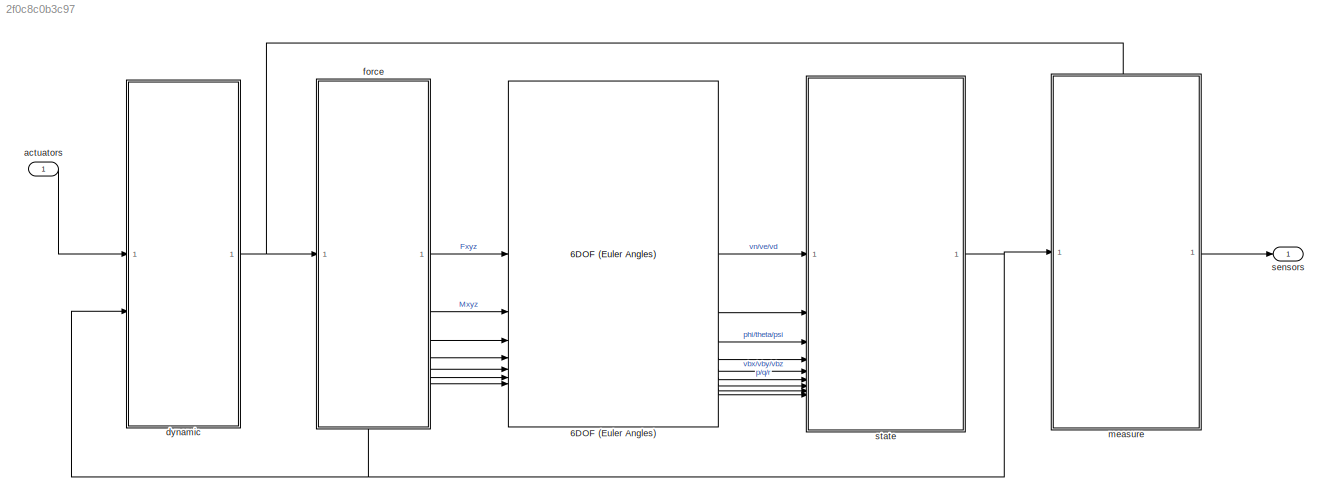
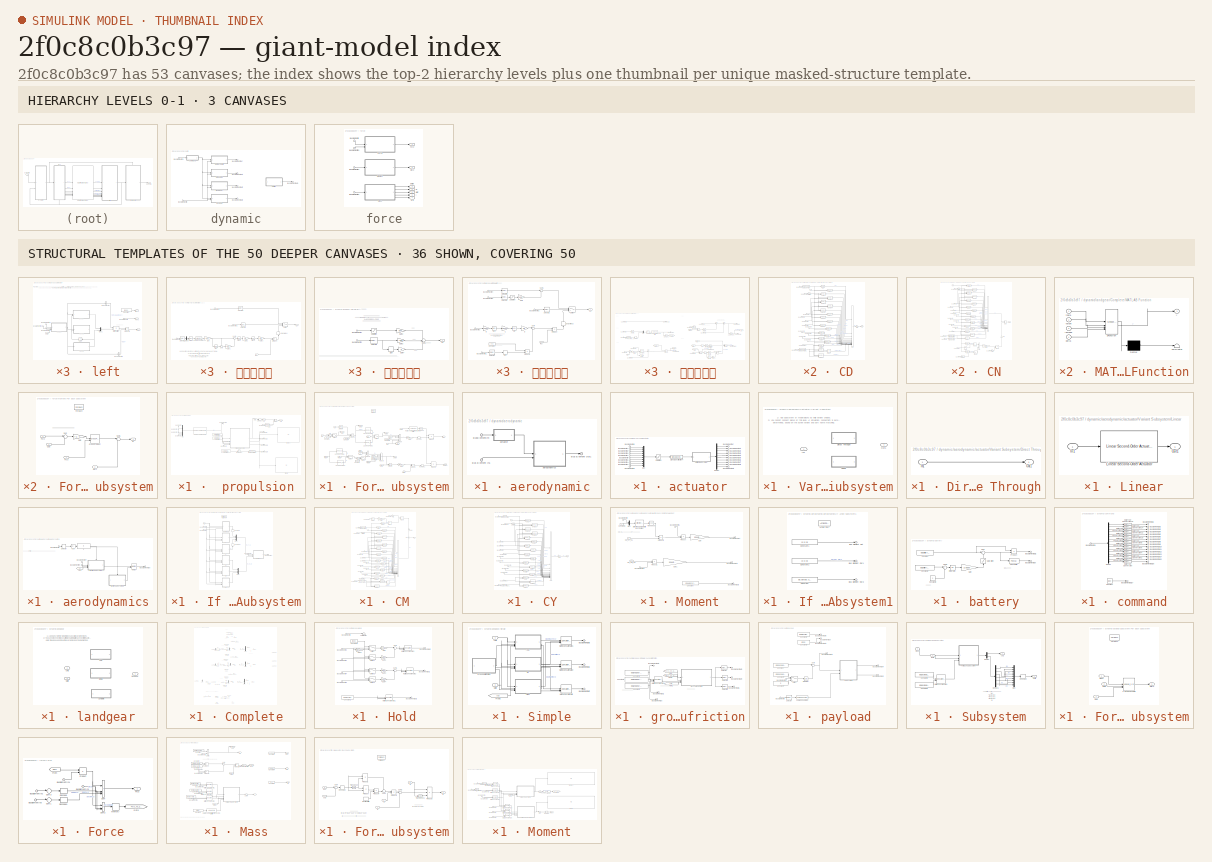
[diagram: thumbnail index - top-2 hierarchy levels (3 canvases) + 36 structural-template representatives of the remaining 50 canvases]
MODEL slx_2f0c8c0b3c97
KIND model
CONFIG AbsTol = auto
CONFIG EnableMultiTasking = off
CONFIG FixedStep = 5/1000
CONFIG MaxStep = auto
CONFIG MinStep = auto
CONFIG RelTol = 1e-3
CONFIG SampleTimeConstraint = Unconstrained
CONFIG SolverName = FixedStepAuto
CONFIG StartTime = 0
CONFIG StopTime = 20
BLOCK [Reference] 6DOF (Euler Angles)  REF=shared6dof/6DOF (Euler Angles)
  LibrarySourceBlock = aerolib6dof2/6DOF (Euler Angles)
  SourceBlock = shared6dof/6DOF (Euler Angles)
  SourceType = 6DOF EoM (Body Axis)
BLOCK [Inport] actuators
  OutDataTypeStr = Bus: actuator_outputs_s
BLOCK [SubSystem] dynamic
BLOCK [SubSystem] dynamic/ propulsion
BLOCK [Inport] dynamic/ propulsion/Bus Element In
BLOCK [Inport] dynamic/ propulsion/Bus Element In2
BLOCK [Inport] dynamic/ propulsion/Bus Element In3
BLOCK [Inport] dynamic/ propulsion/Bus Element In4
BLOCK [Outport] dynamic/ propulsion/Bus Element Out
BLOCK [Outport] dynamic/ propulsion/Bus Element Out1
BLOCK [Outport] dynamic/ propulsion/Bus Element Out2
BLOCK [Outport] dynamic/ propulsion/Bus Element Out3
BLOCK [Outport] dynamic/ propulsion/Bus Element Out4
BLOCK [Inport] dynamic/ propulsion/BusElementIn
  Port = 2
BLOCK [Inport] dynamic/ propulsion/BusElementIn1
  Port = 2
BLOCK [Inport] dynamic/ propulsion/BusElementIn2
  Port = 2
BLOCK [Constant] dynamic/ propulsion/Constant1
  Value = db.motor.setup_position
BLOCK [Constant] dynamic/ propulsion/Constant2
  Value = db.motor.setup_angle
BLOCK [Constant] dynamic/ propulsion/Constant3
  Value = db.motor.setup_rotation
BLOCK [Display] dynamic/ propulsion/Display
  Decimation = 1
BLOCK [Display] dynamic/ propulsion/Display1
  Decimation = 1
BLOCK [DotProduct] dynamic/ propulsion/Dot Product
  OutDataTypeStr = Inherit: Inherit via internal rule
BLOCK [SubSystem] dynamic/ propulsion/For Each Subsystem
  TreatAsAtomicUnit = on
BLOCK [Lookup_n-D] dynamic/ propulsion/For Each Subsystem/1-D Lookup Table2
  BeginIndexSearchUsingPreviousIndexResult = on
  BreakpointsForDimension1 = db.motor.lambda
  ExtrapMethod = Clip
  IndexSearchMethod = Linear search
  InputPortMap = u0
  InternalRulePriority = Speed
  NumberOfTableDimensions = 1
  RndMeth = Simplest
  Table = db.motor.Ct
BLOCK [Lookup_n-D] dynamic/ propulsion/For Each Subsystem/1-D Lookup Table3
  BeginIndexSearchUsingPreviousIndexResult = on
  BreakpointsForDimension1 = db.motor.lambda_rev
  ExtrapMethod = Clip
  IndexSearchMethod = Linear search
  InputPortMap = u0
  InternalRulePriority = Speed
  NumberOfTableDimensions = 1
  RndMeth = Simplest
  Table = db.motor.Ct_rev
BLOCK [Lookup_n-D] dynamic/ propulsion/For Each Subsystem/1-D Lookup Table4
  BeginIndexSearchUsingPreviousIndexResult = on
  BreakpointsForDimension1 = db.motor.lambda_rev
  ExtrapMethod = Clip
  IndexSearchMethod = Linear search
  InputPortMap = u0
  InternalRulePriority = Speed
  NumberOfTableDimensions = 1
  RndMeth = Simplest
  Table = db.motor.eta_rev
BLOCK [Lookup_n-D] dynamic/ propulsion/For Each Subsystem/1-D Lookup Table5
  BeginIndexSearchUsingPreviousIndexResult = on
  BreakpointsForDimension1 = db.motor.lambda
  ExtrapMethod = Clip
  IndexSearchMethod = Linear search
  InputPortMap = u0
  InternalRulePriority = Speed
  NumberOfTableDimensions = 1
  RndMeth = Simplest
  Table = db.motor.eta
BLOCK [Abs] dynamic/ propulsion/For Each Subsystem/Abs
  SaturateOnIntegerOverflow = off
BLOCK [Abs] dynamic/ propulsion/For Each Subsystem/Abs1
  SaturateOnIntegerOverflow = off
BLOCK [Constant] dynamic/ propulsion/For Each Subsystem/Constant
  Value = db.motor.D
BLOCK [Constant] dynamic/ propulsion/For Each Subsystem/Constant2
  Value = db.motor.D^4
BLOCK [Constant] dynamic/ propulsion/For Each Subsystem/Constant3
  Value = db.motor.D^5
BLOCK [Constant] dynamic/ propulsion/For Each Subsystem/Constant4
  Value = eps
BLOCK [Constant] dynamic/ propulsion/For Each Subsystem/Constant5
  Value = eps
BLOCK [ForEach] dynamic/ propulsion/For Each Subsystem/For Each
  DisableCoverage = on
BLOCK [From] dynamic/ propulsion/For Each Subsystem/From
  GotoTag = rpm
BLOCK [From] dynamic/ propulsion/For Each Subsystem/From1
  GotoTag = rpm
BLOCK [From] dynamic/ propulsion/For Each Subsystem/From2
  GotoTag = lambda
BLOCK [From] dynamic/ propulsion/For Each Subsystem/From3
  GotoTag = Ct
BLOCK [From] dynamic/ propulsion/For Each Subsystem/From4
  GotoTag = lambda
BLOCK [From] dynamic/ propulsion/For Each Subsystem/From5
  GotoTag = rho
BLOCK [From] dynamic/ propulsion/For Each Subsystem/From6
  GotoTag = rpm
BLOCK [From] dynamic/ propulsion/For Each Subsystem/From7
  GotoTag = rpm
BLOCK [From] dynamic/ propulsion/For Each Subsystem/From8
  GotoTag = rpm
BLOCK [Gain] dynamic/ propulsion/For Each Subsystem/Gain1
  Gain = [1 0 0]
BLOCK [Gain] dynamic/ propulsion/For Each Subsystem/Gain2
  Gain = [-1 0 0]
BLOCK [Goto] dynamic/ propulsion/For Each Subsystem/Goto
  GotoTag = rpm
BLOCK [Goto] dynamic/ propulsion/For Each Subsystem/Goto1
  GotoTag = Ct
BLOCK [Goto] dynamic/ propulsion/For Each Subsystem/Goto2
  GotoTag = lambda
BLOCK [Goto] dynamic/ propulsion/For Each Subsystem/Goto3
  GotoTag = rho
BLOCK [Product] dynamic/ propulsion/For Each Subsystem/Product1
  Multiplication = Matrix(*)
BLOCK [Product] dynamic/ propulsion/For Each Subsystem/Product2
  Inputs = *//
BLOCK [Product] dynamic/ propulsion/For Each Subsystem/Product3
BLOCK [Product] dynamic/ propulsion/For Each Subsystem/Product4
  Inputs = 5
BLOCK [Product] dynamic/ propulsion/For Each Subsystem/Product5
  Inputs = **/
BLOCK [Product] dynamic/ propulsion/For Each Subsystem/Product6
  Inputs = 6
BLOCK [Product] dynamic/ propulsion/For Each Subsystem/Product7
  Inputs = */
BLOCK [Product] dynamic/ propulsion/For Each Subsystem/Product8
  Multiplication = Matrix(*)
BLOCK [Reshape] dynamic/ propulsion/For Each Subsystem/Reshape
  OutputDimensionality = Column vector (2-D)
BLOCK [Reshape] dynamic/ propulsion/For Each Subsystem/Reshape1
  OutputDimensionality = Column vector (2-D)
BLOCK [Angle2Dcm] dynamic/ propulsion/For Each Subsystem/Rotation Angles to Direction Cosine Matrix
  AttributesFormatString = Rotation Order: %<rotationOrder>
BLOCK [Selector] dynamic/ propulsion/For Each Subsystem/Selector
  IndexOptions = Index vector (dialog)
  Indices = 1
  InputPortWidth = 3
  OutputSizes = 1
BLOCK [Switch] dynamic/ propulsion/For Each Subsystem/Switch
  Criteria = u2 > Threshold
  InputSameDT = off
  SaturateOnIntegerOverflow = off
BLOCK [Switch] dynamic/ propulsion/For Each Subsystem/Switch1
  Criteria = u2 > Threshold
  InputSameDT = off
  SaturateOnIntegerOverflow = off
BLOCK [Switch] dynamic/ propulsion/For Each Subsystem/Switch2
  Criteria = u2 > Threshold
  InputSameDT = off
  SaturateOnIntegerOverflow = off
  Threshold = eps
BLOCK [Switch] dynamic/ propulsion/For Each Subsystem/Switch3
  Criteria = u2 > Threshold
  InputSameDT = off
  SaturateOnIntegerOverflow = off
  Threshold = eps
BLOCK [Math] dynamic/ propulsion/For Each Subsystem/Transpose
  Operator = transpose
BLOCK [Inport] dynamic/ propulsion/For Each Subsystem/Va
  Port = 4
  Unit = m/s
BLOCK [Inport] dynamic/ propulsion/For Each Subsystem/angle
  Partition = on
  PartitionDimension = 1
  PartitionOffset = 0
  PartitionWidth = 1
  Port = 2
  Unit = rad
BLOCK [Outport] dynamic/ propulsion/For Each Subsystem/moment
  ConcatenationDimension = 2
  Port = 2
  Unit = N*m
BLOCK [Outport] dynamic/ propulsion/For Each Subsystem/power
  ConcatenationDimension = 1
  Port = 3
  Unit = W
BLOCK [Inport] dynamic/ propulsion/For Each Subsystem/rho
  Port = 5
BLOCK [Inport] dynamic/ propulsion/For Each Subsystem/rotation
  Partition = on
  PartitionDimension = 1
  PartitionOffset = 0
  PartitionWidth = 1
  Port = 3
BLOCK [Inport] dynamic/ propulsion/For Each Subsystem/rpm
  Partition = on
  PartitionDimension = 1
  PartitionOffset = 0
  PartitionWidth = 1
  Unit = rpm
BLOCK [Outport] dynamic/ propulsion/For Each Subsystem/thrust
  ConcatenationDimension = 2
  Unit = N
BLOCK [Gain] dynamic/ propulsion/Gain2
  Gain = db.aerody.Sref
BLOCK [Goto] dynamic/ propulsion/Goto
  GotoTag = TC
  TagVisibility = global
BLOCK [Reference] dynamic/ propulsion/Linear Second-Order Actuator  REF=aerolibactuator/Linear Second-Order Actuator
  Commented = through
  SourceBlock = aerolibactuator/Linear Second-Order Actuator
  SourceType = LinearSecondOrderActuator
BLOCK [Mux] dynamic/ propulsion/Mux
  DisplayOption = bar
BLOCK [Product] dynamic/ propulsion/Product
  Inputs = */
BLOCK [SignalSpecification] dynamic/ propulsion/Signal Specification
  Unit = m
BLOCK [Sqrt] dynamic/ propulsion/Sqrt
BLOCK [Sum] dynamic/ propulsion/Sum3
  CollapseDim = 2
  CollapseMode = Specified dimension
  Inputs = 1
BLOCK [Math] dynamic/ propulsion/Transpose3
  Operator = transpose
BLOCK [Inport] dynamic/Bus Element In
  Port = 2
BLOCK [Inport] dynamic/Bus Element In1
BLOCK [Outport] dynamic/Bus Element Out
BLOCK [Outport] dynamic/Bus Element Out1
BLOCK [Outport] dynamic/Bus Element Out2
BLOCK [Outport] dynamic/Bus Element Out3
BLOCK [Outport] dynamic/Bus Element Out4
BLOCK [SubSystem] dynamic/aerodynamic
BLOCK [Inport] dynamic/aerodynamic/Bus Element In1
  Port = 2
BLOCK [Outport] dynamic/aerodynamic/Bus Element Out1
BLOCK [Inport] dynamic/aerodynamic/BusElementIn4
BLOCK [SubSystem] dynamic/aerodynamic/actuator
BLOCK [Outport] dynamic/aerodynamic/actuator/Bus Element Out
BLOCK [Outport] dynamic/aerodynamic/actuator/Bus Element Out1
BLOCK [Outport] dynamic/aerodynamic/actuator/Bus Element Out2
BLOCK [Outport] dynamic/aerodynamic/actuator/Bus Element Out3
BLOCK [Outport] dynamic/aerodynamic/actuator/Bus Element Out4
BLOCK [Outport] dynamic/aerodynamic/actuator/Bus Element Out5
BLOCK [Outport] dynamic/aerodynamic/actuator/Bus Element Out6
BLOCK [Outport] dynamic/aerodynamic/actuator/Bus Element Out7
BLOCK [Outport] dynamic/aerodynamic/actuator/Bus Element Out8
BLOCK [Outport] dynamic/aerodynamic/actuator/Bus Element Out9
BLOCK [Inport] dynamic/aerodynamic/actuator/BusElementIn
BLOCK [Inport] dynamic/aerodynamic/actuator/BusElementIn1
BLOCK [Inport] dynamic/aerodynamic/actuator/BusElementIn2
BLOCK [Inport] dynamic/aerodynamic/actuator/BusElementIn3
BLOCK [Inport] dynamic/aerodynamic/actuator/BusElementIn4
BLOCK [Inport] dynamic/aerodynamic/actuator/BusElementIn5
BLOCK [Inport] dynamic/aerodynamic/actuator/BusElementIn6
BLOCK [Inport] dynamic/aerodynamic/actuator/BusElementIn7
BLOCK [Inport] dynamic/aerodynamic/actuator/BusElementIn8
BLOCK [Inport] dynamic/aerodynamic/actuator/BusElementIn9
BLOCK [Demux] dynamic/aerodynamic/actuator/Demux
  Outputs = 10
BLOCK [Mux] dynamic/aerodynamic/actuator/Mux
  DisplayOption = bar
  Inputs = 10
BLOCK [Saturate] dynamic/aerodynamic/actuator/Saturation
  LowerLimit = [0,0,0,0,-23,-23,-23,-23,-23,-23]
  UpperLimit = [30,30,30,30,15,15,17,17,17,23]
BLOCK [SignalSpecification] dynamic/aerodynamic/actuator/Signal Specification4
  Unit = deg
BLOCK [SubSystem] dynamic/aerodynamic/actuator/Variant Subsystem
  Variant = on
BLOCK [SubSystem] dynamic/aerodynamic/actuator/Variant Subsystem/Direct Through
  VariantControl = true
BLOCK [Inport] dynamic/aerodynamic/actuator/Variant Subsystem/Direct Through/In1
BLOCK [Outport] dynamic/aerodynamic/actuator/Variant Subsystem/Direct Through/Out1
BLOCK [Inport] dynamic/aerodynamic/actuator/Variant Subsystem/In1
BLOCK [SubSystem] dynamic/aerodynamic/actuator/Variant Subsystem/Linear
  VariantControl = false
BLOCK [Inport] dynamic/aerodynamic/actuator/Variant Subsystem/Linear/In1
BLOCK [Reference] dynamic/aerodynamic/actuator/Variant Subsystem/Linear/Linear Second-Order Actuator  REF=aerolibactuator/Linear Second-Order Actuator
  SourceBlock = aerolibactuator/Linear Second-Order Actuator
  SourceType = LinearSecondOrderActuator
BLOCK [Outport] dynamic/aerodynamic/actuator/Variant Subsystem/Linear/Out1
BLOCK [Outport] dynamic/aerodynamic/actuator/Variant Subsystem/Out1
BLOCK [SubSystem] dynamic/aerodynamic/aerodynamics
BLOCK [Abs] dynamic/aerodynamic/aerodynamics/Abs
  SaturateOnIntegerOverflow = off
BLOCK [Outport] dynamic/aerodynamic/aerodynamics/Bus Element Out
BLOCK [Inport] dynamic/aerodynamic/aerodynamics/BusElementIn
  Port = 2
BLOCK [Inport] dynamic/aerodynamic/aerodynamics/BusElementIn7
BLOCK [Inport] dynamic/aerodynamic/aerodynamics/BusElementIn9
  Port = 2
BLOCK [From] dynamic/aerodynamic/aerodynamics/From
  GotoTag = TC
  TagVisibility = global
BLOCK [If] dynamic/aerodynamic/aerodynamics/If
  IfExpression = u1 > 3
BLOCK [SubSystem] dynamic/aerodynamic/aerodynamics/If Action Subsystem
  TreatAsAtomicUnit = on
BLOCK [ActionPort] dynamic/aerodynamic/aerodynamics/If Action Subsystem/Action Port
  ActionPortLabel = if(u1 > 3)
BLOCK [Outport] dynamic/aerodynamic/aerodynamics/If Action Subsystem/Bus Element Out
BLOCK [Inport] dynamic/aerodynamic/aerodynamics/If Action Subsystem/BusElementIn1
  Port = 2
BLOCK [Inport] dynamic/aerodynamic/aerodynamics/If Action Subsystem/BusElementIn7
BLOCK [Inport] dynamic/aerodynamic/aerodynamics/If Action Subsystem/BusElementIn9
  Port = 2
BLOCK [SubSystem] dynamic/aerodynamic/aerodynamics/If Action Subsystem/CD
BLOCK [Reference] dynamic/aerodynamic/aerodynamics/If Action Subsystem/CD/Angle Conversion  REF=aerolibconvert2/Angle Conversion
  SourceBlock = aerolibconvert2/Angle Conversion
  SourceType = Angle Conversion
BLOCK [Reference] dynamic/aerodynamic/aerodynamics/If Action Subsystem/CD/Angle Conversion1  REF=aerolibconvert2/Angle Conversion
  SourceBlock = aerolibconvert2/Angle Conversion
  SourceType = Angle Conversion
BLOCK [Inport] dynamic/aerodynamic/aerodynamics/If Action Subsystem/CD/BusElementIn
  Port = 3
BLOCK [Inport] dynamic/aerodynamic/aerodynamics/If Action Subsystem/CD/BusElementIn1
  Port = 2
BLOCK [Inport] dynamic/aerodynamic/aerodynamics/If Action Subsystem/CD/BusElementIn10
  Port = 2
BLOCK [Inport] dynamic/aerodynamic/aerodynamics/If Action Subsystem/CD/BusElementIn12
  Port = 3
BLOCK [Inport] dynamic/aerodynamic/aerodynamics/If Action Subsystem/CD/BusElementIn13
  Port = 3
BLOCK [Inport] dynamic/aerodynamic/aerodynamics/If Action Subsystem/CD/BusElementIn2
  Port = 2
BLOCK [Inport] dynamic/aerodynamic/aerodynamics/If Action Subsystem/CD/BusElementIn3
  Port = 2
BLOCK [Inport] dynamic/aerodynamic/aerodynamics/If Action Subsystem/CD/BusElementIn4
  Port = 2
BLOCK [Inport] dynamic/aerodynamic/aerodynamics/If Action Subsystem/CD/BusElementIn5
  Port = 2
BLOCK [Inport] dynamic/aerodynamic/aerodynamics/If Action Subsystem/CD/BusElementIn6
  Port = 2
BLOCK [Inport] dynamic/aerodynamic/aerodynamics/If Action Subsystem/CD/BusElementIn7
  Port = 2
BLOCK [Inport] dynamic/aerodynamic/aerodynamics/If Action Subsystem/CD/BusElementIn8
  Port = 2
BLOCK [Inport] dynamic/aerodynamic/aerodynamics/If Action Subsystem/CD/BusElementIn9
  Port = 2
BLOCK [Outport] dynamic/aerodynamic/aerodynamics/If Action Subsystem/CD/CD
BLOCK [Lookup_n-D] dynamic/aerodynamic/aerodynamics/If Action Subsystem/CD/CDB
  BeginIndexSearchUsingPreviousIndexResult = on
  BreakpointsForDimension1 = db.aerody.VALPHA
  BreakpointsForDimension1FirstPoint = 10
  BreakpointsForDimension1Spacing = 12
  BreakpointsForDimension2 = aerody.basic.cx.beta
  BreakpointsForDimension2FirstPoint = 10
  BreakpointsForDimension2Spacing = 12
  DiagnosticForOutOfRangeInput = Warning
  ExtrapMethod = Clip
  IndexSearchMethod = Linear search
  InputPortMap = u0
  InternalRulePriority = Speed
  LookupTableObject = ''
  NumberOfTableDimensions = 1
  RndMeth = Simplest
  Table = db.aerody.CDB
BLOCK [Lookup_n-D] dynamic/aerodynamic/aerodynamics/If Action Subsystem/CD/CDDAL
  BeginIndexSearchUsingPreviousIndexResult = on
  BreakpointsForDimension1 = db.aerody.VDA
  BreakpointsForDimension1FirstPoint = 10
  BreakpointsForDimension1Spacing = 12
  BreakpointsForDimension2 = db.aerody.VALPHA
  BreakpointsForDimension2FirstPoint = 10
  BreakpointsForDimension2Spacing = 12
  DiagnosticForOutOfRangeInput = Warning
  ExtrapMethod = Clip
  IndexSearchMethod = Linear search
  InputPortMap = u0,u1
  InternalRulePriority = Speed
  LookupTableObject = ''
  RndMeth = Simplest
  Table = db.aerody.CDDAL
BLOCK [Lookup_n-D] dynamic/aerodynamic/aerodynamics/If Action Subsystem/CD/CDDAR
  BeginIndexSearchUsingPreviousIndexResult = on
  BreakpointsForDimension1 = db.aerody.VDA
  BreakpointsForDimension1FirstPoint = 10
  BreakpointsForDimension1Spacing = 12
  BreakpointsForDimension2 = db.aerody.VALPHA
  BreakpointsForDimension2FirstPoint = 10
  BreakpointsForDimension2Spacing = 12
  DiagnosticForOutOfRangeInput = Warning
  ExtrapMethod = Clip
  IndexSearchMethod = Linear search
  InputPortMap = u0,u1
  InternalRulePriority = Speed
  LookupTableObject = ''
  RndMeth = Simplest
  Table = db.aerody.CDDAR
BLOCK [Lookup_n-D] dynamic/aerodynamic/aerodynamics/If Action Subsystem/CD/CDDEL
  BeginIndexSearchUsingPreviousIndexResult = on
  BreakpointsForDimension1 = db.aerody.VDE
  BreakpointsForDimension1FirstPoint = 10
  BreakpointsForDimension1Spacing = 12
  BreakpointsForDimension2 = db.aerody.VALPHA
  BreakpointsForDimension2FirstPoint = 10
  BreakpointsForDimension2Spacing = 12
  DiagnosticForOutOfRangeInput = Warning
  ExtrapMethod = Clip
  IndexSearchMethod = Linear search
  InputPortMap = u0,u1
  InternalRulePriority = Speed
  LookupTableObject = ''
  RndMeth = Simplest
  Table = db.aerody.CDDEL
BLOCK [Lookup_n-D] dynamic/aerodynamic/aerodynamics/If Action Subsystem/CD/CDDEM
  BeginIndexSearchUsingPreviousIndexResult = on
  BreakpointsForDimension1 = db.aerody.VDE
  BreakpointsForDimension1FirstPoint = 10
  BreakpointsForDimension1Spacing = 12
  BreakpointsForDimension2 = db.aerody.VALPHA
  BreakpointsForDimension2FirstPoint = 10
  BreakpointsForDimension2Spacing = 12
  DiagnosticForOutOfRangeInput = Warning
  ExtrapMethod = Clip
  IndexSearchMethod = Linear search
  InputPortMap = u0,u1
  InternalRulePriority = Speed
  LookupTableObject = ''
  RndMeth = Simplest
  Table = db.aerody.CDDEM
BLOCK [Lookup_n-D] dynamic/aerodynamic/aerodynamics/If Action Subsystem/CD/CDDER
  BeginIndexSearchUsingPreviousIndexResult = on
  BreakpointsForDimension1 = db.aerody.VDE
  BreakpointsForDimension1FirstPoint = 10
  BreakpointsForDimension1Spacing = 12
  BreakpointsForDimension2 = db.aerody.VALPHA
  BreakpointsForDimension2FirstPoint = 10
  BreakpointsForDimension2Spacing = 12
  DiagnosticForOutOfRangeInput = Warning
  ExtrapMethod = Clip
  IndexSearchMethod = Linear search
  InputPortMap = u0,u1
  InternalRulePriority = Speed
  LookupTableObject = ''
  RndMeth = Simplest
  Table = db.aerody.CDDER
BLOCK [Lookup_n-D] dynamic/aerodynamic/aerodynamics/If Action Subsystem/CD/CDDFLI
  BeginIndexSearchUsingPreviousIndexResult = on
  BreakpointsForDimension1 = db.aerody.VDF
  BreakpointsForDimension1FirstPoint = 10
  BreakpointsForDimension1Spacing = 12
  BreakpointsForDimension2 = db.aerody.VALPHA
  BreakpointsForDimension2FirstPoint = 10
  BreakpointsForDimension2Spacing = 12
  DiagnosticForOutOfRangeInput = Warning
  ExtrapMethod = Clip
  IndexSearchMethod = Linear search
  InputPortMap = u0,u1
  InternalRulePriority = Speed
  LookupTableObject = ''
  RndMeth = Simplest
  Table = db.aerody.CDDFLI
BLOCK [Lookup_n-D] dynamic/aerodynamic/aerodynamics/If Action Subsystem/CD/CDDFLO
  BeginIndexSearchUsingPreviousIndexResult = on
  BreakpointsForDimension1 = db.aerody.VDF
  BreakpointsForDimension1FirstPoint = 10
  BreakpointsForDimension1Spacing = 12
  BreakpointsForDimension2 = db.aerody.VALPHA
  BreakpointsForDimension2FirstPoint = 10
  BreakpointsForDimension2Spacing = 12
  DiagnosticForOutOfRangeInput = Warning
  ExtrapMethod = Clip
  IndexSearchMethod = Linear search
  InputPortMap = u0,u1
  InternalRulePriority = Speed
  LookupTableObject = ''
  RndMeth = Simplest
  Table = db.aerody.CDDFLO
BLOCK [Lookup_n-D] dynamic/aerodynamic/aerodynamics/If Action Subsystem/CD/CDDFRI
  BeginIndexSearchUsingPreviousIndexResult = on
  BreakpointsForDimension1 = db.aerody.VDF
  BreakpointsForDimension1FirstPoint = 10
  BreakpointsForDimension1Spacing = 12
  BreakpointsForDimension2 = db.aerody.VALPHA
  BreakpointsForDimension2FirstPoint = 10
  BreakpointsForDimension2Spacing = 12
  DiagnosticForOutOfRangeInput = Warning
  ExtrapMethod = Clip
  IndexSearchMethod = Linear search
  InputPortMap = u0,u1
  InternalRulePriority = Speed
  LookupTableObject = ''
  RndMeth = Simplest
  Table = db.aerody.CDDFRI
BLOCK [Lookup_n-D] dynamic/aerodynamic/aerodynamics/If Action Subsystem/CD/CDDFRO
  BeginIndexSearchUsingPreviousIndexResult = on
  BreakpointsForDimension1 = db.aerody.VDF
  BreakpointsForDimension1FirstPoint = 10
  BreakpointsForDimension1Spacing = 12
  BreakpointsForDimension2 = db.aerody.VALPHA
  BreakpointsForDimension2FirstPoint = 10
  BreakpointsForDimension2Spacing = 12
  DiagnosticForOutOfRangeInput = Warning
  ExtrapMethod = Clip
  IndexSearchMethod = Linear search
  InputPortMap = u0,u1
  InternalRulePriority = Speed
  LookupTableObject = ''
  RndMeth = Simplest
  Table = db.aerody.CDDFRO
BLOCK [Lookup_n-D] dynamic/aerodynamic/aerodynamics/If Action Subsystem/CD/CDDR
  BeginIndexSearchUsingPreviousIndexResult = on
  BreakpointsForDimension1 = db.aerody.VDR
  BreakpointsForDimension1FirstPoint = 10
  BreakpointsForDimension1Spacing = 12
  BreakpointsForDimension2 = db.aerody.VALPHA
  BreakpointsForDimension2FirstPoint = 10
  BreakpointsForDimension2Spacing = 12
  DiagnosticForOutOfRangeInput = Warning
  ExtrapMethod = Clip
  IndexSearchMethod = Linear search
  InputPortMap = u0,u1
  InternalRulePriority = Speed
  LookupTableObject = ''
  RndMeth = Simplest
  Table = db.aerody.CDDR
BLOCK [Lookup_n-D] dynamic/aerodynamic/aerodynamics/If Action Subsystem/CD/CDDRBETA
  BeginIndexSearchUsingPreviousIndexResult = on
  BreakpointsForDimension1 = db.aerody.VDR
  BreakpointsForDimension1FirstPoint = 10
  BreakpointsForDimension1Spacing = 12
  BreakpointsForDimension2 = db.aerody.VALPHA
  BreakpointsForDimension2FirstPoint = 10
  BreakpointsForDimension2Spacing = 12
  BreakpointsForDimension3 = db.aerody.VBETA
  DiagnosticForOutOfRangeInput = Warning
  ExtrapMethod = Clip
  IndexSearchMethod = Linear search
  InputPortMap = u0,u1,u2
  InternalRulePriority = Speed
  LookupTableObject = ''
  NumberOfTableDimensions = 3
  RndMeth = Simplest
  Table = db.aerody.CDDRBETA
BLOCK [Lookup_n-D] dynamic/aerodynamic/aerodynamics/If Action Subsystem/CD/CDH
  BeginIndexSearchUsingPreviousIndexResult = on
  BreakpointsForDimension1 = db.aerody.VH
  BreakpointsForDimension1FirstPoint = 10
  BreakpointsForDimension1Spacing = 12
  BreakpointsForDimension2 = db.aerody.VALPHA
  BreakpointsForDimension2FirstPoint = 10
  BreakpointsForDimension2Spacing = 12
  DiagnosticForOutOfRangeInput = Warning
  ExtrapMethod = Clip
  IndexSearchMethod = Linear search
  InputPortMap = u0,u1
  InternalRulePriority = Speed
  LookupTableObject = ''
  RndMeth = Simplest
  Table = db.aerody.CDH
BLOCK [Lookup_n-D] dynamic/aerodynamic/aerodynamics/If Action Subsystem/CD/CDHDFLI
  BeginIndexSearchUsingPreviousIndexResult = on
  BreakpointsForDimension1 = db.aerody.VH
  BreakpointsForDimension1FirstPoint = 10
  BreakpointsForDimension1Spacing = 12
  BreakpointsForDimension2 = db.aerody.VALPHA
  BreakpointsForDimension2FirstPoint = 10
  BreakpointsForDimension2Spacing = 12
  BreakpointsForDimension3 = db.aerody.VDF
  DiagnosticForOutOfRangeInput = Warning
  ExtrapMethod = Clip
  IndexSearchMethod = Linear search
  InputPortMap = u0,u1,u2
  InternalRulePriority = Speed
  LookupTableObject = ''
  NumberOfTableDimensions = 3
  RndMeth = Simplest
  Table = db.aerody.CDHDFLI
BLOCK [Lookup_n-D] dynamic/aerodynamic/aerodynamics/If Action Subsystem/CD/CDHDFLO
  BeginIndexSearchUsingPreviousIndexResult = on
  BreakpointsForDimension1 = db.aerody.VH
  BreakpointsForDimension1FirstPoint = 10
  BreakpointsForDimension1Spacing = 12
  BreakpointsForDimension2 = db.aerody.VALPHA
  BreakpointsForDimension2FirstPoint = 10
  BreakpointsForDimension2Spacing = 12
  BreakpointsForDimension3 = db.aerody.VDF
  DiagnosticForOutOfRangeInput = Warning
  ExtrapMethod = Clip
  IndexSearchMethod = Linear search
  InputPortMap = u0,u1,u2
  InternalRulePriority = Speed
  LookupTableObject = ''
  NumberOfTableDimensions = 3
  RndMeth = Simplest
  Table = db.aerody.CDHDFLO
BLOCK [Lookup_n-D] dynamic/aerodynamic/aerodynamics/If Action Subsystem/CD/CDHDFRI
  BeginIndexSearchUsingPreviousIndexResult = on
  BreakpointsForDimension1 = db.aerody.VH
  BreakpointsForDimension1FirstPoint = 10
  BreakpointsForDimension1Spacing = 12
  BreakpointsForDimension2 = db.aerody.VALPHA
  BreakpointsForDimension2FirstPoint = 10
  BreakpointsForDimension2Spacing = 12
  BreakpointsForDimension3 = db.aerody.VDF
  DiagnosticForOutOfRangeInput = Warning
  ExtrapMethod = Clip
  IndexSearchMethod = Linear search
  InputPortMap = u0,u1,u2
  InternalRulePriority = Speed
  LookupTableObject = ''
  NumberOfTableDimensions = 3
  RndMeth = Simplest
  Table = db.aerody.CDHDFRI
BLOCK [Lookup_n-D] dynamic/aerodynamic/aerodynamics/If Action Subsystem/CD/CDHDFRO
  BeginIndexSearchUsingPreviousIndexResult = on
  BreakpointsForDimension1 = db.aerody.VH
  BreakpointsForDimension1FirstPoint = 10
  BreakpointsForDimension1Spacing = 12
  BreakpointsForDimension2 = db.aerody.VALPHA
  BreakpointsForDimension2FirstPoint = 10
  BreakpointsForDimension2Spacing = 12
  BreakpointsForDimension3 = db.aerody.VDF
  DiagnosticForOutOfRangeInput = Warning
  ExtrapMethod = Clip
  IndexSearchMethod = Linear search
  InputPortMap = u0,u1,u2
  InternalRulePriority = Speed
  LookupTableObject = ''
  NumberOfTableDimensions = 3
  RndMeth = Simplest
  Table = db.aerody.CDHDFRO
BLOCK [Lookup_n-D] dynamic/aerodynamic/aerodynamics/If Action Subsystem/CD/CDSS
  BeginIndexSearchUsingPreviousIndexResult = on
  BreakpointsForDimension1 = db.aerody.VTC
  BreakpointsForDimension1FirstPoint = 10
  BreakpointsForDimension1Spacing = 12
  BreakpointsForDimension2 = db.aerody.VALPHA
  BreakpointsForDimension2FirstPoint = 10
  BreakpointsForDimension2Spacing = 12
  DiagnosticForOutOfRangeInput = Warning
  ExtrapMethod = Clip
  IndexSearchMethod = Linear search
  InputPortMap = u0,u1
  InternalRulePriority = Speed
  LookupTableObject = ''
  RndMeth = Simplest
  Table = db.aerody.CDSS
BLOCK [Lookup_n-D] dynamic/aerodynamic/aerodynamics/If Action Subsystem/CD/DCDBETA
  BeginIndexSearchUsingPreviousIndexResult = on
  BreakpointsForDimension1 = db.aerody.VBETA
  BreakpointsForDimension1FirstPoint = 10
  BreakpointsForDimension1Spacing = 12
  BreakpointsForDimension2 = db.aerody.VALPHA
  BreakpointsForDimension2FirstPoint = 10
  BreakpointsForDimension2Spacing = 12
  DiagnosticForOutOfRangeInput = Warning
  ExtrapMethod = Clip
  IndexSearchMethod = Linear search
  InputPortMap = u0,u1
  InternalRulePriority = Speed
  LookupTableObject = ''
  RndMeth = Simplest
  Table = db.aerody.DCDBETA
BLOCK [Gain] dynamic/aerodynamic/aerodynamics/If Action Subsystem/CD/Gain
BLOCK [Product] dynamic/aerodynamic/aerodynamics/If Action Subsystem/CD/Product
BLOCK [Saturate] dynamic/aerodynamic/aerodynamics/If Action Subsystem/CD/Saturation
  LowerLimit = 0
  UpperLimit = 5.8
BLOCK [Sum] dynamic/aerodynamic/aerodynamics/If Action Subsystem/CD/Sum
  IconShape = rectangular
  Inputs = 19
BLOCK [Inport] dynamic/aerodynamic/aerodynamics/If Action Subsystem/CD/TC
BLOCK [SubSystem] dynamic/aerodynamic/aerodynamics/If Action Subsystem/CL
BLOCK [Reference] dynamic/aerodynamic/aerodynamics/If Action Subsystem/CL/Angle Conversion1  REF=aerolibconvert2/Angle Conversion
  SourceBlock = aerolibconvert2/Angle Conversion
  SourceType = Angle Conversion
BLOCK [Reference] dynamic/aerodynamic/aerodynamics/If Action Subsystem/CL/Angle Conversion2  REF=aerolibconvert2/Angle Conversion
  SourceBlock = aerolibconvert2/Angle Conversion
  SourceType = Angle Conversion
BLOCK [Inport] dynamic/aerodynamic/aerodynamics/If Action Subsystem/CL/BusElementIn
  Port = 3
BLOCK [Inport] dynamic/aerodynamic/aerodynamics/If Action Subsystem/CL/BusElementIn1
  Port = 2
BLOCK [Inport] dynamic/aerodynamic/aerodynamics/If Action Subsystem/CL/BusElementIn10
  Port = 2
BLOCK [Inport] dynamic/aerodynamic/aerodynamics/If Action Subsystem/CL/BusElementIn12
  Port = 3
BLOCK [Inport] dynamic/aerodynamic/aerodynamics/If Action Subsystem/CL/BusElementIn13
  Port = 3
BLOCK [Inport] dynamic/aerodynamic/aerodynamics/If Action Subsystem/CL/BusElementIn2
  Port = 2
BLOCK [Inport] dynamic/aerodynamic/aerodynamics/If Action Subsystem/CL/BusElementIn3
  Port = 2
BLOCK [Inport] dynamic/aerodynamic/aerodynamics/If Action Subsystem/CL/BusElementIn4
  Port = 2
BLOCK [Inport] dynamic/aerodynamic/aerodynamics/If Action Subsystem/CL/BusElementIn5
  Port = 2
BLOCK [Inport] dynamic/aerodynamic/aerodynamics/If Action Subsystem/CL/BusElementIn6
  Port = 2
BLOCK [Inport] dynamic/aerodynamic/aerodynamics/If Action Subsystem/CL/BusElementIn7
  Port = 2
BLOCK [Inport] dynamic/aerodynamic/aerodynamics/If Action Subsystem/CL/BusElementIn8
  Port = 2
BLOCK [Inport] dynamic/aerodynamic/aerodynamics/If Action Subsystem/CL/BusElementIn9
  Port = 2
BLOCK [Outport] dynamic/aerodynamic/aerodynamics/If Action Subsystem/CL/CL
BLOCK [Lookup_n-D] dynamic/aerodynamic/aerodynamics/If Action Subsystem/CL/CLB
  BeginIndexSearchUsingPreviousIndexResult = on
  BreakpointsForDimension1 = db.aerody.VALPHA
  BreakpointsForDimension1FirstPoint = 10
  BreakpointsForDimension1Spacing = 12
  BreakpointsForDimension2 = aerody.basic.cx.beta
  BreakpointsForDimension2FirstPoint = 10
  BreakpointsForDimension2Spacing = 12
  DiagnosticForOutOfRangeInput = Warning
  ExtrapMethod = Clip
  IndexSearchMethod = Linear search
  InputPortMap = u0
  InternalRulePriority = Speed
  LookupTableObject = ''
  NumberOfTableDimensions = 1
  RndMeth = Simplest
  Table = db.aerody.CLB
BLOCK [Lookup_n-D] dynamic/aerodynamic/aerodynamics/If Action Subsystem/CL/CLDAL
  BeginIndexSearchUsingPreviousIndexResult = on
  BreakpointsForDimension1 = db.aerody.VDA
  BreakpointsForDimension1FirstPoint = 10
  BreakpointsForDimension1Spacing = 12
  BreakpointsForDimension2 = db.aerody.VALPHA
  BreakpointsForDimension2FirstPoint = 10
  BreakpointsForDimension2Spacing = 12
  DiagnosticForOutOfRangeInput = Warning
  ExtrapMethod = Clip
  IndexSearchMethod = Linear search
  InputPortMap = u0,u1
  InternalRulePriority = Speed
  LookupTableObject = ''
  RndMeth = Simplest
  Table = db.aerody.CLDAL
BLOCK [Lookup_n-D] dynamic/aerodynamic/aerodynamics/If Action Subsystem/CL/CLDAR
  BeginIndexSearchUsingPreviousIndexResult = on
  BreakpointsForDimension1 = db.aerody.VDA
  BreakpointsForDimension1FirstPoint = 10
  BreakpointsForDimension1Spacing = 12
  BreakpointsForDimension2 = db.aerody.VALPHA
  BreakpointsForDimension2FirstPoint = 10
  BreakpointsForDimension2Spacing = 12
  DiagnosticForOutOfRangeInput = Warning
  ExtrapMethod = Clip
  IndexSearchMethod = Linear search
  InputPortMap = u0,u1
  InternalRulePriority = Speed
  LookupTableObject = ''
  RndMeth = Simplest
  Table = db.aerody.CLDAR
BLOCK [Lookup_n-D] dynamic/aerodynamic/aerodynamics/If Action Subsystem/CL/CLDEL
  BeginIndexSearchUsingPreviousIndexResult = on
  BreakpointsForDimension1 = db.aerody.VDE
  BreakpointsForDimension1FirstPoint = 10
  BreakpointsForDimension1Spacing = 12
  BreakpointsForDimension2 = db.aerody.VALPHA
  BreakpointsForDimension2FirstPoint = 10
  BreakpointsForDimension2Spacing = 12
  DiagnosticForOutOfRangeInput = Warning
  ExtrapMethod = Clip
  IndexSearchMethod = Linear search
  InputPortMap = u0,u1
  InternalRulePriority = Speed
  LookupTableObject = ''
  RndMeth = Simplest
  Table = db.aerody.CLDEL
BLOCK [Lookup_n-D] dynamic/aerodynamic/aerodynamics/If Action Subsystem/CL/CLDEM
  BeginIndexSearchUsingPreviousIndexResult = on
  BreakpointsForDimension1 = db.aerody.VDE
  BreakpointsForDimension1FirstPoint = 10
  BreakpointsForDimension1Spacing = 12
  BreakpointsForDimension2 = db.aerody.VALPHA
  BreakpointsForDimension2FirstPoint = 10
  BreakpointsForDimension2Spacing = 12
  DiagnosticForOutOfRangeInput = Warning
  ExtrapMethod = Clip
  IndexSearchMethod = Linear search
  InputPortMap = u0,u1
  InternalRulePriority = Speed
  LookupTableObject = ''
  RndMeth = Simplest
  Table = db.aerody.CLDEM
BLOCK [Lookup_n-D] dynamic/aerodynamic/aerodynamics/If Action Subsystem/CL/CLDER
  BeginIndexSearchUsingPreviousIndexResult = on
  BreakpointsForDimension1 = db.aerody.VDE
  BreakpointsForDimension1FirstPoint = 10
  BreakpointsForDimension1Spacing = 12
  BreakpointsForDimension2 = db.aerody.VALPHA
  BreakpointsForDimension2FirstPoint = 10
  BreakpointsForDimension2Spacing = 12
  DiagnosticForOutOfRangeInput = Warning
  ExtrapMethod = Clip
  IndexSearchMethod = Linear search
  InputPortMap = u0,u1
  InternalRulePriority = Speed
  LookupTableObject = ''
  RndMeth = Simplest
  Table = db.aerody.CLDER
BLOCK [Lookup_n-D] dynamic/aerodynamic/aerodynamics/If Action Subsystem/CL/CLDFLI
  BeginIndexSearchUsingPreviousIndexResult = on
  BreakpointsForDimension1 = db.aerody.VDF
  BreakpointsForDimension1FirstPoint = 10
  BreakpointsForDimension1Spacing = 12
  BreakpointsForDimension2 = db.aerody.VALPHA
  BreakpointsForDimension2FirstPoint = 10
  BreakpointsForDimension2Spacing = 12
  DiagnosticForOutOfRangeInput = Warning
  ExtrapMethod = Clip
  IndexSearchMethod = Linear search
  InputPortMap = u0,u1
  InternalRulePriority = Speed
  LookupTableObject = ''
  RndMeth = Simplest
  Table = db.aerody.CLDFLI
BLOCK [Lookup_n-D] dynamic/aerodynamic/aerodynamics/If Action Subsystem/CL/CLDFLO
  BeginIndexSearchUsingPreviousIndexResult = on
  BreakpointsForDimension1 = db.aerody.VDF
  BreakpointsForDimension1FirstPoint = 10
  BreakpointsForDimension1Spacing = 12
  BreakpointsForDimension2 = db.aerody.VALPHA
  BreakpointsForDimension2FirstPoint = 10
  BreakpointsForDimension2Spacing = 12
  DiagnosticForOutOfRangeInput = Warning
  ExtrapMethod = Clip
  IndexSearchMethod = Linear search
  InputPortMap = u0,u1
  InternalRulePriority = Speed
  LookupTableObject = ''
  RndMeth = Simplest
  Table = db.aerody.CLDFLO
BLOCK [Lookup_n-D] dynamic/aerodynamic/aerodynamics/If Action Subsystem/CL/CLDFRI
  BeginIndexSearchUsingPreviousIndexResult = on
  BreakpointsForDimension1 = db.aerody.VDF
  BreakpointsForDimension1FirstPoint = 10
  BreakpointsForDimension1Spacing = 12
  BreakpointsForDimension2 = db.aerody.VALPHA
  BreakpointsForDimension2FirstPoint = 10
  BreakpointsForDimension2Spacing = 12
  DiagnosticForOutOfRangeInput = Warning
  ExtrapMethod = Clip
  IndexSearchMethod = Linear search
  InputPortMap = u0,u1
  InternalRulePriority = Speed
  LookupTableObject = ''
  RndMeth = Simplest
  Table = db.aerody.CLDFRI
BLOCK [Lookup_n-D] dynamic/aerodynamic/aerodynamics/If Action Subsystem/CL/CLDFRO
  BeginIndexSearchUsingPreviousIndexResult = on
  BreakpointsForDimension1 = db.aerody.VDF
  BreakpointsForDimension1FirstPoint = 10
  BreakpointsForDimension1Spacing = 12
  BreakpointsForDimension2 = db.aerody.VALPHA
  BreakpointsForDimension2FirstPoint = 10
  BreakpointsForDimension2Spacing = 12
  DiagnosticForOutOfRangeInput = Warning
  ExtrapMethod = Clip
  IndexSearchMethod = Linear search
  InputPortMap = u0,u1
  InternalRulePriority = Speed
  LookupTableObject = ''
  RndMeth = Simplest
  Table = db.aerody.CLDFRO
BLOCK [Lookup_n-D] dynamic/aerodynamic/aerodynamics/If Action Subsystem/CL/CLDR
  BeginIndexSearchUsingPreviousIndexResult = on
  BreakpointsForDimension1 = db.aerody.VDR
  BreakpointsForDimension1FirstPoint = 10
  BreakpointsForDimension1Spacing = 12
  BreakpointsForDimension2 = db.aerody.VALPHA
  BreakpointsForDimension2FirstPoint = 10
  BreakpointsForDimension2Spacing = 12
  DiagnosticForOutOfRangeInput = Warning
  ExtrapMethod = Clip
  IndexSearchMethod = Linear search
  InputPortMap = u0,u1
  InternalRulePriority = Speed
  LookupTableObject = ''
  RndMeth = Simplest
  Table = db.aerody.CLDR
BLOCK [Lookup_n-D] dynamic/aerodynamic/aerodynamics/If Action Subsystem/CL/CLDRBETA
  BeginIndexSearchUsingPreviousIndexResult = on
  BreakpointsForDimension1 = db.aerody.VDR
  BreakpointsForDimension1FirstPoint = 10
  BreakpointsForDimension1Spacing = 12
  BreakpointsForDimension2 = db.aerody.VALPHA
  BreakpointsForDimension2FirstPoint = 10
  BreakpointsForDimension2Spacing = 12
  BreakpointsForDimension3 = db.aerody.VBETA
  DiagnosticForOutOfRangeInput = Warning
  ExtrapMethod = Clip
  IndexSearchMethod = Linear search
  InputPortMap = u0,u1,u2
  InternalRulePriority = Speed
  LookupTableObject = ''
  NumberOfTableDimensions = 3
  RndMeth = Simplest
  Table = db.aerody.CLDRBETA
BLOCK [Lookup_n-D] dynamic/aerodynamic/aerodynamics/If Action Subsystem/CL/CLH
  BeginIndexSearchUsingPreviousIndexResult = on
  BreakpointsForDimension1 = db.aerody.VH
  BreakpointsForDimension1FirstPoint = 10
  BreakpointsForDimension1Spacing = 12
  BreakpointsForDimension2 = db.aerody.VALPHA
  BreakpointsForDimension2FirstPoint = 10
  BreakpointsForDimension2Spacing = 12
  DiagnosticForOutOfRangeInput = Warning
  ExtrapMethod = Clip
  IndexSearchMethod = Linear search
  InputPortMap = u0,u1
  InternalRulePriority = Speed
  LookupTableObject = ''
  RndMeth = Simplest
  Table = db.aerody.CLH
BLOCK [Lookup_n-D] dynamic/aerodynamic/aerodynamics/If Action Subsystem/CL/CLHDFLI
  BeginIndexSearchUsingPreviousIndexResult = on
  BreakpointsForDimension1 = db.aerody.VH
  BreakpointsForDimension1FirstPoint = 10
  BreakpointsForDimension1Spacing = 12
  BreakpointsForDimension2 = db.aerody.VALPHA
  BreakpointsForDimension2FirstPoint = 10
  BreakpointsForDimension2Spacing = 12
  BreakpointsForDimension3 = db.aerody.VDF
  DiagnosticForOutOfRangeInput = Warning
  ExtrapMethod = Clip
  IndexSearchMethod = Linear search
  InputPortMap = u0,u1,u2
  InternalRulePriority = Speed
  LookupTableObject = ''
  NumberOfTableDimensions = 3
  RndMeth = Simplest
  Table = db.aerody.CLHDFLI
BLOCK [Lookup_n-D] dynamic/aerodynamic/aerodynamics/If Action Subsystem/CL/CLHDFLO
  BeginIndexSearchUsingPreviousIndexResult = on
  BreakpointsForDimension1 = db.aerody.VH
  BreakpointsForDimension1FirstPoint = 10
  BreakpointsForDimension1Spacing = 12
  BreakpointsForDimension2 = db.aerody.VALPHA
  BreakpointsForDimension2FirstPoint = 10
  BreakpointsForDimension2Spacing = 12
  BreakpointsForDimension3 = db.aerody.VDF
  DiagnosticForOutOfRangeInput = Warning
  ExtrapMethod = Clip
  IndexSearchMethod = Linear search
  InputPortMap = u0,u1,u2
  InternalRulePriority = Speed
  LookupTableObject = ''
  NumberOfTableDimensions = 3
  RndMeth = Simplest
  Table = db.aerody.CLHDFLO
BLOCK [Lookup_n-D] dynamic/aerodynamic/aerodynamics/If Action Subsystem/CL/CLHDFRI
  BeginIndexSearchUsingPreviousIndexResult = on
  BreakpointsForDimension1 = db.aerody.VH
  BreakpointsForDimension1FirstPoint = 10
  BreakpointsForDimension1Spacing = 12
  BreakpointsForDimension2 = db.aerody.VALPHA
  BreakpointsForDimension2FirstPoint = 10
  BreakpointsForDimension2Spacing = 12
  BreakpointsForDimension3 = db.aerody.VDF
  DiagnosticForOutOfRangeInput = Warning
  ExtrapMethod = Clip
  IndexSearchMethod = Linear search
  InputPortMap = u0,u1,u2
  InternalRulePriority = Speed
  LookupTableObject = ''
  NumberOfTableDimensions = 3
  RndMeth = Simplest
  Table = db.aerody.CLHDFRI
BLOCK [Lookup_n-D] dynamic/aerodynamic/aerodynamics/If Action Subsystem/CL/CLHDFRO
  BeginIndexSearchUsingPreviousIndexResult = on
  BreakpointsForDimension1 = db.aerody.VH
  BreakpointsForDimension1FirstPoint = 10
  BreakpointsForDimension1Spacing = 12
  BreakpointsForDimension2 = db.aerody.VALPHA
  BreakpointsForDimension2FirstPoint = 10
  BreakpointsForDimension2Spacing = 12
  BreakpointsForDimension3 = db.aerody.VDF
  DiagnosticForOutOfRangeInput = Warning
  ExtrapMethod = Clip
  IndexSearchMethod = Linear search
  InputPortMap = u0,u1,u2
  InternalRulePriority = Speed
  LookupTableObject = ''
  NumberOfTableDimensions = 3
  RndMeth = Simplest
  Table = db.aerody.CLHDFRO
BLOCK [Lookup_n-D] dynamic/aerodynamic/aerodynamics/If Action Subsystem/CL/CLSS
  BeginIndexSearchUsingPreviousIndexResult = on
  BreakpointsForDimension1 = db.aerody.VTC
  BreakpointsForDimension1FirstPoint = 10
  BreakpointsForDimension1Spacing = 12
  BreakpointsForDimension2 = db.aerody.VALPHA
  BreakpointsForDimension2FirstPoint = 10
  BreakpointsForDimension2Spacing = 12
  DiagnosticForOutOfRangeInput = Warning
  ExtrapMethod = Clip
  IndexSearchMethod = Linear search
  InputPortMap = u0,u1
  InternalRulePriority = Speed
  LookupTableObject = ''
  RndMeth = Simplest
  Table = db.aerody.CLSS
BLOCK [Lookup_n-D] dynamic/aerodynamic/aerodynamics/If Action Subsystem/CL/DCLBETA
  BeginIndexSearchUsingPreviousIndexResult = on
  BreakpointsForDimension1 = db.aerody.VBETA
  BreakpointsForDimension1FirstPoint = 10
  BreakpointsForDimension1Spacing = 12
  BreakpointsForDimension2 = db.aerody.VALPHA
  BreakpointsForDimension2FirstPoint = 10
  BreakpointsForDimension2Spacing = 12
  DiagnosticForOutOfRangeInput = Warning
  ExtrapMethod = Clip
  IndexSearchMethod = Linear search
  InputPortMap = u0,u1
  InternalRulePriority = Speed
  LookupTableObject = ''
  RndMeth = Simplest
  Table = db.aerody.DCLBETA
BLOCK [Gain] dynamic/aerodynamic/aerodynamics/If Action Subsystem/CL/Gain
BLOCK [Product] dynamic/aerodynamic/aerodynamics/If Action Subsystem/CL/Product
BLOCK [Saturate] dynamic/aerodynamic/aerodynamics/If Action Subsystem/CL/Saturation
  LowerLimit = 0
  UpperLimit = 5.8
BLOCK [Sum] dynamic/aerodynamic/aerodynamics/If Action Subsystem/CL/Sum
  IconShape = rectangular
  Inputs = 19
BLOCK [Inport] dynamic/aerodynamic/aerodynamics/If Action Subsystem/CL/TC
BLOCK [SubSystem] dynamic/aerodynamic/aerodynamics/If Action Subsystem/CM
BLOCK [Reference] dynamic/aerodynamic/aerodynamics/If Action Subsystem/CM/Angle Conversion1  REF=aerolibconvert2/Angle Conversion
  SourceBlock = aerolibconvert2/Angle Conversion
  SourceType = Angle Conversion
BLOCK [Reference] dynamic/aerodynamic/aerodynamics/If Action Subsystem/CM/Angle Conversion2  REF=aerolibconvert2/Angle Conversion
  SourceBlock = aerolibconvert2/Angle Conversion
  SourceType = Angle Conversion
BLOCK [Inport] dynamic/aerodynamic/aerodynamics/If Action Subsystem/CM/BusElementIn
  Port = 3
BLOCK [Inport] dynamic/aerodynamic/aerodynamics/If Action Subsystem/CM/BusElementIn1
  Port = 2
BLOCK [Inport] dynamic/aerodynamic/aerodynamics/If Action Subsystem/CM/BusElementIn10
  Port = 2
BLOCK [Inport] dynamic/aerodynamic/aerodynamics/If Action Subsystem/CM/BusElementIn11
  Port = 3
BLOCK [Inport] dynamic/aerodynamic/aerodynamics/If Action Subsystem/CM/BusElementIn12
  Port = 3
BLOCK [Inport] dynamic/aerodynamic/aerodynamics/If Action Subsystem/CM/BusElementIn13
  Port = 3
BLOCK [Inport] dynamic/aerodynamic/aerodynamics/If Action Subsystem/CM/BusElementIn14
  Port = 3
BLOCK [Inport] dynamic/aerodynamic/aerodynamics/If Action Subsystem/CM/BusElementIn2
  Port = 2
BLOCK [Inport] dynamic/aerodynamic/aerodynamics/If Action Subsystem/CM/BusElementIn3
  Port = 2
BLOCK [Inport] dynamic/aerodynamic/aerodynamics/If Action Subsystem/CM/BusElementIn4
  Port = 2
BLOCK [Inport] dynamic/aerodynamic/aerodynamics/If Action Subsystem/CM/BusElementIn5
  Port = 2
BLOCK [Inport] dynamic/aerodynamic/aerodynamics/If Action Subsystem/CM/BusElementIn6
  Port = 2
BLOCK [Inport] dynamic/aerodynamic/aerodynamics/If Action Subsystem/CM/BusElementIn7
  Port = 2
BLOCK [Inport] dynamic/aerodynamic/aerodynamics/If Action Subsystem/CM/BusElementIn8
  Port = 2
BLOCK [Inport] dynamic/aerodynamic/aerodynamics/If Action Subsystem/CM/BusElementIn9
  Port = 2
BLOCK [Outport] dynamic/aerodynamic/aerodynamics/If Action Subsystem/CM/CM
BLOCK [Lookup_n-D] dynamic/aerodynamic/aerodynamics/If Action Subsystem/CM/CMB
  BeginIndexSearchUsingPreviousIndexResult = on
  BreakpointsForDimension1 = db.aerody.VALPHA
  BreakpointsForDimension1FirstPoint = 10
  BreakpointsForDimension1Spacing = 12
  BreakpointsForDimension2 = aerody.basic.cx.beta
  BreakpointsForDimension2FirstPoint = 10
  BreakpointsForDimension2Spacing = 12
  DiagnosticForOutOfRangeInput = Warning
  ExtrapMethod = Clip
  IndexSearchMethod = Linear search
  InputPortMap = u0
  InternalRulePriority = Speed
  LookupTableObject = ''
  NumberOfTableDimensions = 1
  RndMeth = Simplest
  Table = db.aerody.CMB
BLOCK [Lookup_n-D] dynamic/aerodynamic/aerodynamics/If Action Subsystem/CM/CMDAL
  BeginIndexSearchUsingPreviousIndexResult = on
  BreakpointsForDimension1 = db.aerody.VDA
  BreakpointsForDimension1FirstPoint = 10
  BreakpointsForDimension1Spacing = 12
  BreakpointsForDimension2 = db.aerody.VALPHA
  BreakpointsForDimension2FirstPoint = 10
  BreakpointsForDimension2Spacing = 12
  DiagnosticForOutOfRangeInput = Warning
  ExtrapMethod = Clip
  IndexSearchMethod = Linear search
  InputPortMap = u0,u1
  InternalRulePriority = Speed
  LookupTableObject = ''
  RndMeth = Simplest
  Table = db.aerody.CMDAL
BLOCK [Lookup_n-D] dynamic/aerodynamic/aerodynamics/If Action Subsystem/CM/CMDAR
  BeginIndexSearchUsingPreviousIndexResult = on
  BreakpointsForDimension1 = db.aerody.VDA
  BreakpointsForDimension1FirstPoint = 10
  BreakpointsForDimension1Spacing = 12
  BreakpointsForDimension2 = db.aerody.VALPHA
  BreakpointsForDimension2FirstPoint = 10
  BreakpointsForDimension2Spacing = 12
  DiagnosticForOutOfRangeInput = Warning
  ExtrapMethod = Clip
  IndexSearchMethod = Linear search
  InputPortMap = u0,u1
  InternalRulePriority = Speed
  LookupTableObject = ''
  RndMeth = Simplest
  Table = db.aerody.CMDAR
BLOCK [Lookup_n-D] dynamic/aerodynamic/aerodynamics/If Action Subsystem/CM/CMDEL
  BeginIndexSearchUsingPreviousIndexResult = on
  BreakpointsForDimension1 = db.aerody.VDE
  BreakpointsForDimension1FirstPoint = 10
  BreakpointsForDimension1Spacing = 12
  BreakpointsForDimension2 = db.aerody.VALPHA
  BreakpointsForDimension2FirstPoint = 10
  BreakpointsForDimension2Spacing = 12
  DiagnosticForOutOfRangeInput = Warning
  ExtrapMethod = Clip
  IndexSearchMethod = Linear search
  InputPortMap = u0,u1
  InternalRulePriority = Speed
  LookupTableObject = ''
  RndMeth = Simplest
  Table = db.aerody.CMDEL
BLOCK [Lookup_n-D] dynamic/aerodynamic/aerodynamics/If Action Subsystem/CM/CMDEM
  BeginIndexSearchUsingPreviousIndexResult = on
  BreakpointsForDimension1 = db.aerody.VDE
  BreakpointsForDimension1FirstPoint = 10
  BreakpointsForDimension1Spacing = 12
  BreakpointsForDimension2 = db.aerody.VALPHA
  BreakpointsForDimension2FirstPoint = 10
  BreakpointsForDimension2Spacing = 12
  DiagnosticForOutOfRangeInput = Warning
  ExtrapMethod = Clip
  IndexSearchMethod = Linear search
  InputPortMap = u0,u1
  InternalRulePriority = Speed
  LookupTableObject = ''
  RndMeth = Simplest
  Table = db.aerody.CMDEM
BLOCK [Lookup_n-D] dynamic/aerodynamic/aerodynamics/If Action Subsystem/CM/CMDER
  BeginIndexSearchUsingPreviousIndexResult = on
  BreakpointsForDimension1 = db.aerody.VDE
  BreakpointsForDimension1FirstPoint = 10
  BreakpointsForDimension1Spacing = 12
  BreakpointsForDimension2 = db.aerody.VALPHA
  BreakpointsForDimension2FirstPoint = 10
  BreakpointsForDimension2Spacing = 12
  DiagnosticForOutOfRangeInput = Warning
  ExtrapMethod = Clip
  IndexSearchMethod = Linear search
  InputPortMap = u0,u1
  InternalRulePriority = Speed
  LookupTableObject = ''
  RndMeth = Simplest
  Table = db.aerody.CMDER
BLOCK [Lookup_n-D] dynamic/aerodynamic/aerodynamics/If Action Subsystem/CM/CMDFLI
  BeginIndexSearchUsingPreviousIndexResult = on
  BreakpointsForDimension1 = db.aerody.VDF
  BreakpointsForDimension1FirstPoint = 10
  BreakpointsForDimension1Spacing = 12
  BreakpointsForDimension2 = db.aerody.VALPHA
  BreakpointsForDimension2FirstPoint = 10
  BreakpointsForDimension2Spacing = 12
  DiagnosticForOutOfRangeInput = Warning
  ExtrapMethod = Clip
  IndexSearchMethod = Linear search
  InputPortMap = u0,u1
  InternalRulePriority = Speed
  LookupTableObject = ''
  RndMeth = Simplest
  Table = db.aerody.CMDFLI
BLOCK [Lookup_n-D] dynamic/aerodynamic/aerodynamics/If Action Subsystem/CM/CMDFLO
  BeginIndexSearchUsingPreviousIndexResult = on
  BreakpointsForDimension1 = db.aerody.VDF
  BreakpointsForDimension1FirstPoint = 10
  BreakpointsForDimension1Spacing = 12
  BreakpointsForDimension2 = db.aerody.VALPHA
  BreakpointsForDimension2FirstPoint = 10
  BreakpointsForDimension2Spacing = 12
  DiagnosticForOutOfRangeInput = Warning
  ExtrapMethod = Clip
  IndexSearchMethod = Linear search
  InputPortMap = u0,u1
  InternalRulePriority = Speed
  LookupTableObject = ''
  RndMeth = Simplest
  Table = db.aerody.CMDFLO
BLOCK [Lookup_n-D] dynamic/aerodynamic/aerodynamics/If Action Subsystem/CM/CMDFRI
  BeginIndexSearchUsingPreviousIndexResult = on
  BreakpointsForDimension1 = db.aerody.VDF
  BreakpointsForDimension1FirstPoint = 10
  BreakpointsForDimension1Spacing = 12
  BreakpointsForDimension2 = db.aerody.VALPHA
  BreakpointsForDimension2FirstPoint = 10
  BreakpointsForDimension2Spacing = 12
  DiagnosticForOutOfRangeInput = Warning
  ExtrapMethod = Clip
  IndexSearchMethod = Linear search
  InputPortMap = u0,u1
  InternalRulePriority = Speed
  LookupTableObject = ''
  RndMeth = Simplest
  Table = db.aerody.CMDFRI
BLOCK [Lookup_n-D] dynamic/aerodynamic/aerodynamics/If Action Subsystem/CM/CMDFRO
  BeginIndexSearchUsingPreviousIndexResult = on
  BreakpointsForDimension1 = db.aerody.VDF
  BreakpointsForDimension1FirstPoint = 10
  BreakpointsForDimension1Spacing = 12
  BreakpointsForDimension2 = db.aerody.VALPHA
  BreakpointsForDimension2FirstPoint = 10
  BreakpointsForDimension2Spacing = 12
  DiagnosticForOutOfRangeInput = Warning
  ExtrapMethod = Clip
  IndexSearchMethod = Linear search
  InputPortMap = u0,u1
  InternalRulePriority = Speed
  LookupTableObject = ''
  RndMeth = Simplest
  Table = db.aerody.CMDFRO
BLOCK [Lookup_n-D] dynamic/aerodynamic/aerodynamics/If Action Subsystem/CM/CMDR
  BeginIndexSearchUsingPreviousIndexResult = on
  BreakpointsForDimension1 = db.aerody.VDR
  BreakpointsForDimension1FirstPoint = 10
  BreakpointsForDimension1Spacing = 12
  BreakpointsForDimension2 = db.aerody.VALPHA
  BreakpointsForDimension2FirstPoint = 10
  BreakpointsForDimension2Spacing = 12
  DiagnosticForOutOfRangeInput = Warning
  ExtrapMethod = Clip
  IndexSearchMethod = Linear search
  InputPortMap = u0,u1
  InternalRulePriority = Speed
  LookupTableObject = ''
  RndMeth = Simplest
  Table = db.aerody.CMDR
BLOCK [Lookup_n-D] dynamic/aerodynamic/aerodynamics/If Action Subsystem/CM/CMDRBETA
  BeginIndexSearchUsingPreviousIndexResult = on
  BreakpointsForDimension1 = db.aerody.VDR
  BreakpointsForDimension1FirstPoint = 10
  BreakpointsForDimension1Spacing = 12
  BreakpointsForDimension2 = db.aerody.VALPHA
  BreakpointsForDimension2FirstPoint = 10
  BreakpointsForDimension2Spacing = 12
  BreakpointsForDimension3 = db.aerody.VBETA
  DiagnosticForOutOfRangeInput = Warning
  ExtrapMethod = Clip
  IndexSearchMethod = Linear search
  InputPortMap = u0,u1,u2
  InternalRulePriority = Speed
  LookupTableObject = ''
  NumberOfTableDimensions = 3
  RndMeth = Simplest
  Table = db.aerody.CMDRBETA
BLOCK [Lookup_n-D] dynamic/aerodynamic/aerodynamics/If Action Subsystem/CM/CMH
  BeginIndexSearchUsingPreviousIndexResult = on
  BreakpointsForDimension1 = db.aerody.VH
  BreakpointsForDimension1FirstPoint = 10
  BreakpointsForDimension1Spacing = 12
  BreakpointsForDimension2 = db.aerody.VALPHA
  BreakpointsForDimension2FirstPoint = 10
  BreakpointsForDimension2Spacing = 12
  DiagnosticForOutOfRangeInput = Warning
  ExtrapMethod = Clip
  IndexSearchMethod = Linear search
  InputPortMap = u0,u1
  InternalRulePriority = Speed
  LookupTableObject = ''
  RndMeth = Simplest
  Table = db.aerody.CMH
BLOCK [Lookup_n-D] dynamic/aerodynamic/aerodynamics/If Action Subsystem/CM/CMHDFLI
  BeginIndexSearchUsingPreviousIndexResult = on
  BreakpointsForDimension1 = db.aerody.VH
  BreakpointsForDimension1FirstPoint = 10
  BreakpointsForDimension1Spacing = 12
  BreakpointsForDimension2 = db.aerody.VALPHA
  BreakpointsForDimension2FirstPoint = 10
  BreakpointsForDimension2Spacing = 12
  BreakpointsForDimension3 = db.aerody.VDF
  DiagnosticForOutOfRangeInput = Warning
  ExtrapMethod = Clip
  IndexSearchMethod = Linear search
  InputPortMap = u0,u1,u2
  InternalRulePriority = Speed
  LookupTableObject = ''
  NumberOfTableDimensions = 3
  RndMeth = Simplest
  Table = db.aerody.CMHDFLI
BLOCK [Lookup_n-D] dynamic/aerodynamic/aerodynamics/If Action Subsystem/CM/CMHDFLO
  BeginIndexSearchUsingPreviousIndexResult = on
  BreakpointsForDimension1 = db.aerody.VH
  BreakpointsForDimension1FirstPoint = 10
  BreakpointsForDimension1Spacing = 12
  BreakpointsForDimension2 = db.aerody.VALPHA
  BreakpointsForDimension2FirstPoint = 10
  BreakpointsForDimension2Spacing = 12
  BreakpointsForDimension3 = db.aerody.VDF
  DiagnosticForOutOfRangeInput = Warning
  ExtrapMethod = Clip
  IndexSearchMethod = Linear search
  InputPortMap = u0,u1,u2
  InternalRulePriority = Speed
  LookupTableObject = ''
  NumberOfTableDimensions = 3
  RndMeth = Simplest
  Table = db.aerody.CMHDFLO
BLOCK [Lookup_n-D] dynamic/aerodynamic/aerodynamics/If Action Subsystem/CM/CMHDFRI
  BeginIndexSearchUsingPreviousIndexResult = on
  BreakpointsForDimension1 = db.aerody.VH
  BreakpointsForDimension1FirstPoint = 10
  BreakpointsForDimension1Spacing = 12
  BreakpointsForDimension2 = db.aerody.VALPHA
  BreakpointsForDimension2FirstPoint = 10
  BreakpointsForDimension2Spacing = 12
  BreakpointsForDimension3 = db.aerody.VDF
  DiagnosticForOutOfRangeInput = Warning
  ExtrapMethod = Clip
  IndexSearchMethod = Linear search
  InputPortMap = u0,u1,u2
  InternalRulePriority = Speed
  LookupTableObject = ''
  NumberOfTableDimensions = 3
  RndMeth = Simplest
  Table = db.aerody.CMHDFRI
BLOCK [Lookup_n-D] dynamic/aerodynamic/aerodynamics/If Action Subsystem/CM/CMHDFRO
  BeginIndexSearchUsingPreviousIndexResult = on
  BreakpointsForDimension1 = db.aerody.VH
  BreakpointsForDimension1FirstPoint = 10
  BreakpointsForDimension1Spacing = 12
  BreakpointsForDimension2 = db.aerody.VALPHA
  BreakpointsForDimension2FirstPoint = 10
  BreakpointsForDimension2Spacing = 12
  BreakpointsForDimension3 = db.aerody.VDF
  DiagnosticForOutOfRangeInput = Warning
  ExtrapMethod = Clip
  IndexSearchMethod = Linear search
  InputPortMap = u0,u1,u2
  InternalRulePriority = Speed
  LookupTableObject = ''
  NumberOfTableDimensions = 3
  RndMeth = Simplest
  Table = db.aerody.CMHDFRO
BLOCK [Lookup_n-D] dynamic/aerodynamic/aerodynamics/If Action Subsystem/CM/CMQ
  BeginIndexSearchUsingPreviousIndexResult = on
  BreakpointsForDimension1 = db.aerody.VALPHA
  BreakpointsForDimension1FirstPoint = 10
  BreakpointsForDimension1Spacing = 12
  BreakpointsForDimension2 = aerody.basic.cx.beta
  BreakpointsForDimension2FirstPoint = 10
  BreakpointsForDimension2Spacing = 12
  DiagnosticForOutOfRangeInput = Warning
  ExtrapMethod = Clip
  IndexSearchMethod = Linear search
  InputPortMap = u0
  InternalRulePriority = Speed
  LookupTableObject = ''
  NumberOfTableDimensions = 1
  RndMeth = Simplest
  Table = db.dds.CMQ
BLOCK [Lookup_n-D] dynamic/aerodynamic/aerodynamics/If Action Subsystem/CM/CMSS
  BeginIndexSearchUsingPreviousIndexResult = on
  BreakpointsForDimension1 = db.aerody.VTC
  BreakpointsForDimension1FirstPoint = 10
  BreakpointsForDimension1Spacing = 12
  BreakpointsForDimension2 = db.aerody.VALPHA
  BreakpointsForDimension2FirstPoint = 10
  BreakpointsForDimension2Spacing = 12
  DiagnosticForOutOfRangeInput = Warning
  ExtrapMethod = Clip
  IndexSearchMethod = Linear search
  InputPortMap = u0,u1
  InternalRulePriority = Speed
  LookupTableObject = ''
  RndMeth = Simplest
  Table = db.aerody.CMSS
BLOCK [Lookup_n-D] dynamic/aerodynamic/aerodynamics/If Action Subsystem/CM/DCMBETA
  BeginIndexSearchUsingPreviousIndexResult = on
  BreakpointsForDimension1 = db.aerody.VBETA
  BreakpointsForDimension1FirstPoint = 10
  BreakpointsForDimension1Spacing = 12
  BreakpointsForDimension2 = db.aerody.VALPHA
  BreakpointsForDimension2FirstPoint = 10
  BreakpointsForDimension2Spacing = 12
  DiagnosticForOutOfRangeInput = Warning
  ExtrapMethod = Clip
  IndexSearchMethod = Linear search
  InputPortMap = u0,u1
  InternalRulePriority = Speed
  LookupTableObject = ''
  RndMeth = Simplest
  Table = db.aerody.DCMBETA
BLOCK [Gain] dynamic/aerodynamic/aerodynamics/If Action Subsystem/CM/Gain
  Gain = 2
BLOCK [Gain] dynamic/aerodynamic/aerodynamics/If Action Subsystem/CM/Gain1
  Gain = db.aerody.Cref
BLOCK [Gain] dynamic/aerodynamic/aerodynamics/If Action Subsystem/CM/Gain2
  NameLocation = left
BLOCK [Product] dynamic/aerodynamic/aerodynamics/If Action Subsystem/CM/Product
BLOCK [Product] dynamic/aerodynamic/aerodynamics/If Action Subsystem/CM/Product1
BLOCK [Product] dynamic/aerodynamic/aerodynamics/If Action Subsystem/CM/Product2
  Inputs = /*
BLOCK [Saturate] dynamic/aerodynamic/aerodynamics/If Action Subsystem/CM/Saturation
  LowerLimit = 0
  UpperLimit = 5.8
BLOCK [Selector] dynamic/aerodynamic/aerodynamics/If Action Subsystem/CM/Selector
  IndexOptions = Index vector (dialog)
  Indices = 2
  InputPortWidth = 3
  OutputSizes = 1
BLOCK [Sum] dynamic/aerodynamic/aerodynamics/If Action Subsystem/CM/Sum
  IconShape = rectangular
  Inputs = 19
BLOCK [Sum] dynamic/aerodynamic/aerodynamics/If Action Subsystem/CM/Sum1
  Inputs = +|+
BLOCK [Inport] dynamic/aerodynamic/aerodynamics/If Action Subsystem/CM/TC
BLOCK [SubSystem] dynamic/aerodynamic/aerodynamics/If Action Subsystem/CN
BLOCK [Reference] dynamic/aerodynamic/aerodynamics/If Action Subsystem/CN/Angle Conversion  REF=aerolibconvert2/Angle Conversion
  SourceBlock = aerolibconvert2/Angle Conversion
  SourceType = Angle Conversion
BLOCK [Reference] dynamic/aerodynamic/aerodynamics/If Action Subsystem/CN/Angle Conversion1  REF=aerolibconvert2/Angle Conversion
  SourceBlock = aerolibconvert2/Angle Conversion
  SourceType = Angle Conversion
BLOCK [Inport] dynamic/aerodynamic/aerodynamics/If Action Subsystem/CN/BusElementIn
  Port = 3
BLOCK [Inport] dynamic/aerodynamic/aerodynamics/If Action Subsystem/CN/BusElementIn1
  Port = 2
BLOCK [Inport] dynamic/aerodynamic/aerodynamics/If Action Subsystem/CN/BusElementIn10
  Port = 2
BLOCK [Inport] dynamic/aerodynamic/aerodynamics/If Action Subsystem/CN/BusElementIn11
  Port = 3
BLOCK [Inport] dynamic/aerodynamic/aerodynamics/If Action Subsystem/CN/BusElementIn12
  Port = 3
BLOCK [Inport] dynamic/aerodynamic/aerodynamics/If Action Subsystem/CN/BusElementIn13
  Port = 3
BLOCK [Inport] dynamic/aerodynamic/aerodynamics/If Action Subsystem/CN/BusElementIn14
  Port = 3
BLOCK [Inport] dynamic/aerodynamic/aerodynamics/If Action Subsystem/CN/BusElementIn15
  Port = 3
BLOCK [Inport] dynamic/aerodynamic/aerodynamics/If Action Subsystem/CN/BusElementIn2
  Port = 2
BLOCK [Inport] dynamic/aerodynamic/aerodynamics/If Action Subsystem/CN/BusElementIn3
  Port = 2
BLOCK [Inport] dynamic/aerodynamic/aerodynamics/If Action Subsystem/CN/BusElementIn4
  Port = 2
BLOCK [Inport] dynamic/aerodynamic/aerodynamics/If Action Subsystem/CN/BusElementIn5
  Port = 2
BLOCK [Inport] dynamic/aerodynamic/aerodynamics/If Action Subsystem/CN/BusElementIn6
  Port = 2
BLOCK [Inport] dynamic/aerodynamic/aerodynamics/If Action Subsystem/CN/BusElementIn7
  Port = 2
BLOCK [Inport] dynamic/aerodynamic/aerodynamics/If Action Subsystem/CN/BusElementIn8
  Port = 2
BLOCK [Inport] dynamic/aerodynamic/aerodynamics/If Action Subsystem/CN/BusElementIn9
  Port = 2
BLOCK [Outport] dynamic/aerodynamic/aerodynamics/If Action Subsystem/CN/CN
BLOCK [Lookup_n-D] dynamic/aerodynamic/aerodynamics/If Action Subsystem/CN/CNBETA
  BeginIndexSearchUsingPreviousIndexResult = on
  BreakpointsForDimension1 = db.aerody.VBETA
  BreakpointsForDimension1FirstPoint = 10
  BreakpointsForDimension1Spacing = 12
  BreakpointsForDimension2 = db.aerody.VALPHA
  BreakpointsForDimension2FirstPoint = 10
  BreakpointsForDimension2Spacing = 12
  DiagnosticForOutOfRangeInput = Warning
  ExtrapMethod = Clip
  IndexSearchMethod = Linear search
  InputPortMap = u0,u1
  InternalRulePriority = Speed
  LookupTableObject = ''
  RndMeth = Simplest
  Table = db.aerody.CNBETA
BLOCK [Lookup_n-D] dynamic/aerodynamic/aerodynamics/If Action Subsystem/CN/CNDAL
  BeginIndexSearchUsingPreviousIndexResult = on
  BreakpointsForDimension1 = db.aerody.VDA
  BreakpointsForDimension1FirstPoint = 10
  BreakpointsForDimension1Spacing = 12
  BreakpointsForDimension2 = db.aerody.VALPHA
  BreakpointsForDimension2FirstPoint = 10
  BreakpointsForDimension2Spacing = 12
  DiagnosticForOutOfRangeInput = Warning
  ExtrapMethod = Clip
  IndexSearchMethod = Linear search
  InputPortMap = u0,u1
  InternalRulePriority = Speed
  LookupTableObject = ''
  RndMeth = Simplest
  Table = db.aerody.CNDAL
BLOCK [Lookup_n-D] dynamic/aerodynamic/aerodynamics/If Action Subsystem/CN/CNDAR
  BeginIndexSearchUsingPreviousIndexResult = on
  BreakpointsForDimension1 = db.aerody.VDA
  BreakpointsForDimension1FirstPoint = 10
  BreakpointsForDimension1Spacing = 12
  BreakpointsForDimension2 = db.aerody.VALPHA
  BreakpointsForDimension2FirstPoint = 10
  BreakpointsForDimension2Spacing = 12
  DiagnosticForOutOfRangeInput = Warning
  ExtrapMethod = Clip
  IndexSearchMethod = Linear search
  InputPortMap = u0,u1
  InternalRulePriority = Speed
  LookupTableObject = ''
  RndMeth = Simplest
  Table = db.aerody.CNDAR
BLOCK [Lookup_n-D] dynamic/aerodynamic/aerodynamics/If Action Subsystem/CN/CNDEL
  BeginIndexSearchUsingPreviousIndexResult = on
  BreakpointsForDimension1 = db.aerody.VDE
  BreakpointsForDimension1FirstPoint = 10
  BreakpointsForDimension1Spacing = 12
  BreakpointsForDimension2 = db.aerody.VALPHA
  BreakpointsForDimension2FirstPoint = 10
  BreakpointsForDimension2Spacing = 12
  DiagnosticForOutOfRangeInput = Warning
  ExtrapMethod = Clip
  IndexSearchMethod = Linear search
  InputPortMap = u0,u1
  InternalRulePriority = Speed
  LookupTableObject = ''
  RndMeth = Simplest
  Table = db.aerody.CNDEL
BLOCK [Lookup_n-D] dynamic/aerodynamic/aerodynamics/If Action Subsystem/CN/CNDEM
  BeginIndexSearchUsingPreviousIndexResult = on
  BreakpointsForDimension1 = db.aerody.VDE
  BreakpointsForDimension1FirstPoint = 10
  BreakpointsForDimension1Spacing = 12
  BreakpointsForDimension2 = db.aerody.VALPHA
  BreakpointsForDimension2FirstPoint = 10
  BreakpointsForDimension2Spacing = 12
  DiagnosticForOutOfRangeInput = Warning
  ExtrapMethod = Clip
  IndexSearchMethod = Linear search
  InputPortMap = u0,u1
  InternalRulePriority = Speed
  LookupTableObject = ''
  RndMeth = Simplest
  Table = db.aerody.CNDEM
BLOCK [Lookup_n-D] dynamic/aerodynamic/aerodynamics/If Action Subsystem/CN/CNDER
  BeginIndexSearchUsingPreviousIndexResult = on
  BreakpointsForDimension1 = db.aerody.VDE
  BreakpointsForDimension1FirstPoint = 10
  BreakpointsForDimension1Spacing = 12
  BreakpointsForDimension2 = db.aerody.VALPHA
  BreakpointsForDimension2FirstPoint = 10
  BreakpointsForDimension2Spacing = 12
  DiagnosticForOutOfRangeInput = Warning
  ExtrapMethod = Clip
  IndexSearchMethod = Linear search
  InputPortMap = u0,u1
  InternalRulePriority = Speed
  LookupTableObject = ''
  RndMeth = Simplest
  Table = db.aerody.CNDER
BLOCK [Lookup_n-D] dynamic/aerodynamic/aerodynamics/If Action Subsystem/CN/CNDFLI
  BeginIndexSearchUsingPreviousIndexResult = on
  BreakpointsForDimension1 = db.aerody.VDF
  BreakpointsForDimension1FirstPoint = 10
  BreakpointsForDimension1Spacing = 12
  BreakpointsForDimension2 = db.aerody.VALPHA
  BreakpointsForDimension2FirstPoint = 10
  BreakpointsForDimension2Spacing = 12
  DiagnosticForOutOfRangeInput = Warning
  ExtrapMethod = Clip
  IndexSearchMethod = Linear search
  InputPortMap = u0,u1
  InternalRulePriority = Speed
  LookupTableObject = ''
  RndMeth = Simplest
  Table = db.aerody.CNDFLI
BLOCK [Lookup_n-D] dynamic/aerodynamic/aerodynamics/If Action Subsystem/CN/CNDFLO
  BeginIndexSearchUsingPreviousIndexResult = on
  BreakpointsForDimension1 = db.aerody.VDF
  BreakpointsForDimension1FirstPoint = 10
  BreakpointsForDimension1Spacing = 12
  BreakpointsForDimension2 = db.aerody.VALPHA
  BreakpointsForDimension2FirstPoint = 10
  BreakpointsForDimension2Spacing = 12
  DiagnosticForOutOfRangeInput = Warning
  ExtrapMethod = Clip
  IndexSearchMethod = Linear search
  InputPortMap = u0,u1
  InternalRulePriority = Speed
  LookupTableObject = ''
  RndMeth = Simplest
  Table = db.aerody.CNDFLO
BLOCK [Lookup_n-D] dynamic/aerodynamic/aerodynamics/If Action Subsystem/CN/CNDFRI
  BeginIndexSearchUsingPreviousIndexResult = on
  BreakpointsForDimension1 = db.aerody.VDF
  BreakpointsForDimension1FirstPoint = 10
  BreakpointsForDimension1Spacing = 12
  BreakpointsForDimension2 = db.aerody.VALPHA
  BreakpointsForDimension2FirstPoint = 10
  BreakpointsForDimension2Spacing = 12
  DiagnosticForOutOfRangeInput = Warning
  ExtrapMethod = Clip
  IndexSearchMethod = Linear search
  InputPortMap = u0,u1
  InternalRulePriority = Speed
  LookupTableObject = ''
  RndMeth = Simplest
  Table = db.aerody.CNDFRI
BLOCK [Lookup_n-D] dynamic/aerodynamic/aerodynamics/If Action Subsystem/CN/CNDFRO
  BeginIndexSearchUsingPreviousIndexResult = on
  BreakpointsForDimension1 = db.aerody.VDF
  BreakpointsForDimension1FirstPoint = 10
  BreakpointsForDimension1Spacing = 12
  BreakpointsForDimension2 = db.aerody.VALPHA
  BreakpointsForDimension2FirstPoint = 10
  BreakpointsForDimension2Spacing = 12
  DiagnosticForOutOfRangeInput = Warning
  ExtrapMethod = Clip
  IndexSearchMethod = Linear search
  InputPortMap = u0,u1
  InternalRulePriority = Speed
  LookupTableObject = ''
  RndMeth = Simplest
  Table = db.aerody.CNDFRO
BLOCK [Lookup_n-D] dynamic/aerodynamic/aerodynamics/If Action Subsystem/CN/CNDR
  BeginIndexSearchUsingPreviousIndexResult = on
  BreakpointsForDimension1 = db.aerody.VDR
  BreakpointsForDimension1FirstPoint = 10
  BreakpointsForDimension1Spacing = 12
  BreakpointsForDimension2 = db.aerody.VALPHA
  BreakpointsForDimension2FirstPoint = 10
  BreakpointsForDimension2Spacing = 12
  DiagnosticForOutOfRangeInput = Warning
  ExtrapMethod = Clip
  IndexSearchMethod = Linear search
  InputPortMap = u0,u1
  InternalRulePriority = Speed
  LookupTableObject = ''
  RndMeth = Simplest
  Table = db.aerody.CNDR
BLOCK [Lookup_n-D] dynamic/aerodynamic/aerodynamics/If Action Subsystem/CN/CNDRBETA
  BeginIndexSearchUsingPreviousIndexResult = on
  BreakpointsForDimension1 = db.aerody.VDR
  BreakpointsForDimension1FirstPoint = 10
  BreakpointsForDimension1Spacing = 12
  BreakpointsForDimension2 = db.aerody.VALPHA
  BreakpointsForDimension2FirstPoint = 10
  BreakpointsForDimension2Spacing = 12
  BreakpointsForDimension3 = db.aerody.VBETA
  DiagnosticForOutOfRangeInput = Warning
  ExtrapMethod = Clip
  IndexSearchMethod = Linear search
  InputPortMap = u0,u1,u2
  InternalRulePriority = Speed
  LookupTableObject = ''
  NumberOfTableDimensions = 3
  RndMeth = Simplest
  Table = db.aerody.CNDRBETA
BLOCK [Lookup_n-D] dynamic/aerodynamic/aerodynamics/If Action Subsystem/CN/CNHDFLI
  BeginIndexSearchUsingPreviousIndexResult = on
  BreakpointsForDimension1 = db.aerody.VH
  BreakpointsForDimension1FirstPoint = 10
  BreakpointsForDimension1Spacing = 12
  BreakpointsForDimension2 = db.aerody.VALPHA
  BreakpointsForDimension2FirstPoint = 10
  BreakpointsForDimension2Spacing = 12
  BreakpointsForDimension3 = db.aerody.VDF
  DiagnosticForOutOfRangeInput = Warning
  ExtrapMethod = Clip
  IndexSearchMethod = Linear search
  InputPortMap = u0,u1,u2
  InternalRulePriority = Speed
  LookupTableObject = ''
  NumberOfTableDimensions = 3
  RndMeth = Simplest
  Table = db.aerody.CNHDFLI
BLOCK [Lookup_n-D] dynamic/aerodynamic/aerodynamics/If Action Subsystem/CN/CNHDFLO
  BeginIndexSearchUsingPreviousIndexResult = on
  BreakpointsForDimension1 = db.aerody.VH
  BreakpointsForDimension1FirstPoint = 10
  BreakpointsForDimension1Spacing = 12
  BreakpointsForDimension2 = db.aerody.VALPHA
  BreakpointsForDimension2FirstPoint = 10
  BreakpointsForDimension2Spacing = 12
  BreakpointsForDimension3 = db.aerody.VDF
  DiagnosticForOutOfRangeInput = Warning
  ExtrapMethod = Clip
  IndexSearchMethod = Linear search
  InputPortMap = u0,u1,u2
  InternalRulePriority = Speed
  LookupTableObject = ''
  NumberOfTableDimensions = 3
  RndMeth = Simplest
  Table = db.aerody.CNHDFLO
BLOCK [Lookup_n-D] dynamic/aerodynamic/aerodynamics/If Action Subsystem/CN/CNHDFRI
  BeginIndexSearchUsingPreviousIndexResult = on
  BreakpointsForDimension1 = db.aerody.VH
  BreakpointsForDimension1FirstPoint = 10
  BreakpointsForDimension1Spacing = 12
  BreakpointsForDimension2 = db.aerody.VALPHA
  BreakpointsForDimension2FirstPoint = 10
  BreakpointsForDimension2Spacing = 12
  BreakpointsForDimension3 = db.aerody.VDF
  DiagnosticForOutOfRangeInput = Warning
  ExtrapMethod = Clip
  IndexSearchMethod = Linear search
  InputPortMap = u0,u1,u2
  InternalRulePriority = Speed
  LookupTableObject = ''
  NumberOfTableDimensions = 3
  RndMeth = Simplest
  Table = db.aerody.CNHDFRI
BLOCK [Lookup_n-D] dynamic/aerodynamic/aerodynamics/If Action Subsystem/CN/CNHDFRO
  BeginIndexSearchUsingPreviousIndexResult = on
  BreakpointsForDimension1 = db.aerody.VH
  BreakpointsForDimension1FirstPoint = 10
  BreakpointsForDimension1Spacing = 12
  BreakpointsForDimension2 = db.aerody.VALPHA
  BreakpointsForDimension2FirstPoint = 10
  BreakpointsForDimension2Spacing = 12
  BreakpointsForDimension3 = db.aerody.VDF
  DiagnosticForOutOfRangeInput = Warning
  ExtrapMethod = Clip
  IndexSearchMethod = Linear search
  InputPortMap = u0,u1,u2
  InternalRulePriority = Speed
  LookupTableObject = ''
  NumberOfTableDimensions = 3
  RndMeth = Simplest
  Table = db.aerody.CNHDFRO
BLOCK [Lookup_n-D] dynamic/aerodynamic/aerodynamics/If Action Subsystem/CN/CNP
  BeginIndexSearchUsingPreviousIndexResult = on
  BreakpointsForDimension1 = db.dds.VALPHA
  BreakpointsForDimension1FirstPoint = 10
  BreakpointsForDimension1Spacing = 12
  BreakpointsForDimension2 = db.aerody.VALPHA
  BreakpointsForDimension2FirstPoint = 10
  BreakpointsForDimension2Spacing = 12
  DiagnosticForOutOfRangeInput = Warning
  ExtrapMethod = Clip
  IndexSearchMethod = Linear search
  InputPortMap = u0
  InternalRulePriority = Speed
  LookupTableObject = ''
  NumberOfTableDimensions = 1
  RndMeth = Simplest
  Table = db.dds.CNP
BLOCK [Lookup_n-D] dynamic/aerodynamic/aerodynamics/If Action Subsystem/CN/CNR
  BeginIndexSearchUsingPreviousIndexResult = on
  BreakpointsForDimension1 = db.dds.VALPHA
  BreakpointsForDimension1FirstPoint = 10
  BreakpointsForDimension1Spacing = 12
  BreakpointsForDimension2 = db.aerody.VALPHA
  BreakpointsForDimension2FirstPoint = 10
  BreakpointsForDimension2Spacing = 12
  DiagnosticForOutOfRangeInput = Warning
  ExtrapMethod = Clip
  IndexSearchMethod = Linear search
  InputPortMap = u0
  InternalRulePriority = Speed
  LookupTableObject = ''
  NumberOfTableDimensions = 1
  RndMeth = Simplest
  Table = db.dds.CNR
BLOCK [Lookup_n-D] dynamic/aerodynamic/aerodynamics/If Action Subsystem/CN/CNSS
  BeginIndexSearchUsingPreviousIndexResult = on
  BreakpointsForDimension1 = db.aerody.VTC
  BreakpointsForDimension1FirstPoint = 10
  BreakpointsForDimension1Spacing = 12
  BreakpointsForDimension2 = db.aerody.VALPHA
  BreakpointsForDimension2FirstPoint = 10
  BreakpointsForDimension2Spacing = 12
  DiagnosticForOutOfRangeInput = Warning
  ExtrapMethod = Clip
  IndexSearchMethod = Linear search
  InputPortMap = u0,u1
  InternalRulePriority = Speed
  LookupTableObject = ''
  RndMeth = Simplest
  Table = db.aerody.CNSS
BLOCK [Gain] dynamic/aerodynamic/aerodynamics/If Action Subsystem/CN/Gain
  NameLocation = right
BLOCK [Gain] dynamic/aerodynamic/aerodynamics/If Action Subsystem/CN/Gain2
  Gain = 2
BLOCK [Gain] dynamic/aerodynamic/aerodynamics/If Action Subsystem/CN/Gain3
  Gain = db.aerody.Bref
BLOCK [Product] dynamic/aerodynamic/aerodynamics/If Action Subsystem/CN/Product1
  Inputs = */
BLOCK [Product] dynamic/aerodynamic/aerodynamics/If Action Subsystem/CN/Product3
  Inputs = **
BLOCK [Product] dynamic/aerodynamic/aerodynamics/If Action Subsystem/CN/Product4
  Inputs = **
BLOCK [Saturate] dynamic/aerodynamic/aerodynamics/If Action Subsystem/CN/Saturation
  LowerLimit = 0
  UpperLimit = 5.8
BLOCK [Selector] dynamic/aerodynamic/aerodynamics/If Action Subsystem/CN/Selector
  IndexOptions = Index vector (dialog)
  Indices = 1
  InputPortWidth = 3
  OutputSizes = 1
BLOCK [Selector] dynamic/aerodynamic/aerodynamics/If Action Subsystem/CN/Selector1
  IndexOptions = Index vector (dialog)
  Indices = 3
  InputPortWidth = 3
  OutputSizes = 1
BLOCK [Sum] dynamic/aerodynamic/aerodynamics/If Action Subsystem/CN/Sum
  IconShape = rectangular
  Inputs = 17
BLOCK [Sum] dynamic/aerodynamic/aerodynamics/If Action Subsystem/CN/Sum1
  IconShape = rectangular
  Inputs = 2
BLOCK [Sum] dynamic/aerodynamic/aerodynamics/If Action Subsystem/CN/Sum2
  IconShape = rectangular
  Inputs = |++
BLOCK [Inport] dynamic/aerodynamic/aerodynamics/If Action Subsystem/CN/TC
BLOCK [SubSystem] dynamic/aerodynamic/aerodynamics/If Action Subsystem/CR
BLOCK [Reference] dynamic/aerodynamic/aerodynamics/If Action Subsystem/CR/Angle Conversion  REF=aerolibconvert2/Angle Conversion
  SourceBlock = aerolibconvert2/Angle Conversion
  SourceType = Angle Conversion
BLOCK [Reference] dynamic/aerodynamic/aerodynamics/If Action Subsystem/CR/Angle Conversion1  REF=aerolibconvert2/Angle Conversion
  SourceBlock = aerolibconvert2/Angle Conversion
  SourceType = Angle Conversion
BLOCK [Inport] dynamic/aerodynamic/aerodynamics/If Action Subsystem/CR/BusElementIn
  Port = 3
BLOCK [Inport] dynamic/aerodynamic/aerodynamics/If Action Subsystem/CR/BusElementIn1
  Port = 2
BLOCK [Inport] dynamic/aerodynamic/aerodynamics/If Action Subsystem/CR/BusElementIn10
  Port = 2
BLOCK [Inport] dynamic/aerodynamic/aerodynamics/If Action Subsystem/CR/BusElementIn11
  Port = 3
BLOCK [Inport] dynamic/aerodynamic/aerodynamics/If Action Subsystem/CR/BusElementIn12
  Port = 3
BLOCK [Inport] dynamic/aerodynamic/aerodynamics/If Action Subsystem/CR/BusElementIn13
  Port = 3
BLOCK [Inport] dynamic/aerodynamic/aerodynamics/If Action Subsystem/CR/BusElementIn14
  Port = 3
BLOCK [Inport] dynamic/aerodynamic/aerodynamics/If Action Subsystem/CR/BusElementIn15
  Port = 3
BLOCK [Inport] dynamic/aerodynamic/aerodynamics/If Action Subsystem/CR/BusElementIn2
  Port = 2
BLOCK [Inport] dynamic/aerodynamic/aerodynamics/If Action Subsystem/CR/BusElementIn3
  Port = 2
BLOCK [Inport] dynamic/aerodynamic/aerodynamics/If Action Subsystem/CR/BusElementIn4
  Port = 2
BLOCK [Inport] dynamic/aerodynamic/aerodynamics/If Action Subsystem/CR/BusElementIn5
  Port = 2
BLOCK [Inport] dynamic/aerodynamic/aerodynamics/If Action Subsystem/CR/BusElementIn6
  Port = 2
BLOCK [Inport] dynamic/aerodynamic/aerodynamics/If Action Subsystem/CR/BusElementIn7
  Port = 2
BLOCK [Inport] dynamic/aerodynamic/aerodynamics/If Action Subsystem/CR/BusElementIn8
  Port = 2
BLOCK [Inport] dynamic/aerodynamic/aerodynamics/If Action Subsystem/CR/BusElementIn9
  Port = 2
BLOCK [Outport] dynamic/aerodynamic/aerodynamics/If Action Subsystem/CR/CR
BLOCK [Lookup_n-D] dynamic/aerodynamic/aerodynamics/If Action Subsystem/CR/CRBETA
  BeginIndexSearchUsingPreviousIndexResult = on
  BreakpointsForDimension1 = db.aerody.VBETA
  BreakpointsForDimension1FirstPoint = 10
  BreakpointsForDimension1Spacing = 12
  BreakpointsForDimension2 = db.aerody.VALPHA
  BreakpointsForDimension2FirstPoint = 10
  BreakpointsForDimension2Spacing = 12
  DiagnosticForOutOfRangeInput = Warning
  ExtrapMethod = Clip
  IndexSearchMethod = Linear search
  InputPortMap = u0,u1
  InternalRulePriority = Speed
  LookupTableObject = ''
  RndMeth = Simplest
  Table = db.aerody.CRBETA
BLOCK [Lookup_n-D] dynamic/aerodynamic/aerodynamics/If Action Subsystem/CR/CRDAL
  BeginIndexSearchUsingPreviousIndexResult = on
  BreakpointsForDimension1 = db.aerody.VDA
  BreakpointsForDimension1FirstPoint = 10
  BreakpointsForDimension1Spacing = 12
  BreakpointsForDimension2 = db.aerody.VALPHA
  BreakpointsForDimension2FirstPoint = 10
  BreakpointsForDimension2Spacing = 12
  DiagnosticForOutOfRangeInput = Warning
  ExtrapMethod = Clip
  IndexSearchMethod = Linear search
  InputPortMap = u0,u1
  InternalRulePriority = Speed
  LookupTableObject = ''
  RndMeth = Simplest
  Table = db.aerody.CRDAL
BLOCK [Lookup_n-D] dynamic/aerodynamic/aerodynamics/If Action Subsystem/CR/CRDAR
  BeginIndexSearchUsingPreviousIndexResult = on
  BreakpointsForDimension1 = db.aerody.VDA
  BreakpointsForDimension1FirstPoint = 10
  BreakpointsForDimension1Spacing = 12
  BreakpointsForDimension2 = db.aerody.VALPHA
  BreakpointsForDimension2FirstPoint = 10
  BreakpointsForDimension2Spacing = 12
  DiagnosticForOutOfRangeInput = Warning
  ExtrapMethod = Clip
  IndexSearchMethod = Linear search
  InputPortMap = u0,u1
  InternalRulePriority = Speed
  LookupTableObject = ''
  RndMeth = Simplest
  Table = db.aerody.CRDAR
BLOCK [Lookup_n-D] dynamic/aerodynamic/aerodynamics/If Action Subsystem/CR/CRDEL
  BeginIndexSearchUsingPreviousIndexResult = on
  BreakpointsForDimension1 = db.aerody.VDE
  BreakpointsForDimension1FirstPoint = 10
  BreakpointsForDimension1Spacing = 12
  BreakpointsForDimension2 = db.aerody.VALPHA
  BreakpointsForDimension2FirstPoint = 10
  BreakpointsForDimension2Spacing = 12
  DiagnosticForOutOfRangeInput = Warning
  ExtrapMethod = Clip
  IndexSearchMethod = Linear search
  InputPortMap = u0,u1
  InternalRulePriority = Speed
  LookupTableObject = ''
  RndMeth = Simplest
  Table = db.aerody.CRDEL
BLOCK [Lookup_n-D] dynamic/aerodynamic/aerodynamics/If Action Subsystem/CR/CRDEM
  BeginIndexSearchUsingPreviousIndexResult = on
  BreakpointsForDimension1 = db.aerody.VDE
  BreakpointsForDimension1FirstPoint = 10
  BreakpointsForDimension1Spacing = 12
  BreakpointsForDimension2 = db.aerody.VALPHA
  BreakpointsForDimension2FirstPoint = 10
  BreakpointsForDimension2Spacing = 12
  DiagnosticForOutOfRangeInput = Warning
  ExtrapMethod = Clip
  IndexSearchMethod = Linear search
  InputPortMap = u0,u1
  InternalRulePriority = Speed
  LookupTableObject = ''
  RndMeth = Simplest
  Table = db.aerody.CRDEM
BLOCK [Lookup_n-D] dynamic/aerodynamic/aerodynamics/If Action Subsystem/CR/CRDER
  BeginIndexSearchUsingPreviousIndexResult = on
  BreakpointsForDimension1 = db.aerody.VDE
  BreakpointsForDimension1FirstPoint = 10
  BreakpointsForDimension1Spacing = 12
  BreakpointsForDimension2 = db.aerody.VALPHA
  BreakpointsForDimension2FirstPoint = 10
  BreakpointsForDimension2Spacing = 12
  DiagnosticForOutOfRangeInput = Warning
  ExtrapMethod = Clip
  IndexSearchMethod = Linear search
  InputPortMap = u0,u1
  InternalRulePriority = Speed
  LookupTableObject = ''
  RndMeth = Simplest
  Table = db.aerody.CRDER
BLOCK [Lookup_n-D] dynamic/aerodynamic/aerodynamics/If Action Subsystem/CR/CRDFLI
  BeginIndexSearchUsingPreviousIndexResult = on
  BreakpointsForDimension1 = db.aerody.VDF
  BreakpointsForDimension1FirstPoint = 10
  BreakpointsForDimension1Spacing = 12
  BreakpointsForDimension2 = db.aerody.VALPHA
  BreakpointsForDimension2FirstPoint = 10
  BreakpointsForDimension2Spacing = 12
  DiagnosticForOutOfRangeInput = Warning
  ExtrapMethod = Clip
  IndexSearchMethod = Linear search
  InputPortMap = u0,u1
  InternalRulePriority = Speed
  LookupTableObject = ''
  RndMeth = Simplest
  Table = db.aerody.CRDFLI
BLOCK [Lookup_n-D] dynamic/aerodynamic/aerodynamics/If Action Subsystem/CR/CRDFLO
  BeginIndexSearchUsingPreviousIndexResult = on
  BreakpointsForDimension1 = db.aerody.VDF
  BreakpointsForDimension1FirstPoint = 10
  BreakpointsForDimension1Spacing = 12
  BreakpointsForDimension2 = db.aerody.VALPHA
  BreakpointsForDimension2FirstPoint = 10
  BreakpointsForDimension2Spacing = 12
  DiagnosticForOutOfRangeInput = Warning
  ExtrapMethod = Clip
  IndexSearchMethod = Linear search
  InputPortMap = u0,u1
  InternalRulePriority = Speed
  LookupTableObject = ''
  RndMeth = Simplest
  Table = db.aerody.CRDFLO
BLOCK [Lookup_n-D] dynamic/aerodynamic/aerodynamics/If Action Subsystem/CR/CRDFRI
  BeginIndexSearchUsingPreviousIndexResult = on
  BreakpointsForDimension1 = db.aerody.VDF
  BreakpointsForDimension1FirstPoint = 10
  BreakpointsForDimension1Spacing = 12
  BreakpointsForDimension2 = db.aerody.VALPHA
  BreakpointsForDimension2FirstPoint = 10
  BreakpointsForDimension2Spacing = 12
  DiagnosticForOutOfRangeInput = Warning
  ExtrapMethod = Clip
  IndexSearchMethod = Linear search
  InputPortMap = u0,u1
  InternalRulePriority = Speed
  LookupTableObject = ''
  RndMeth = Simplest
  Table = db.aerody.CRDFRI
BLOCK [Lookup_n-D] dynamic/aerodynamic/aerodynamics/If Action Subsystem/CR/CRDFRO
  BeginIndexSearchUsingPreviousIndexResult = on
  BreakpointsForDimension1 = db.aerody.VDF
  BreakpointsForDimension1FirstPoint = 10
  BreakpointsForDimension1Spacing = 12
  BreakpointsForDimension2 = db.aerody.VALPHA
  BreakpointsForDimension2FirstPoint = 10
  BreakpointsForDimension2Spacing = 12
  DiagnosticForOutOfRangeInput = Warning
  ExtrapMethod = Clip
  IndexSearchMethod = Linear search
  InputPortMap = u0,u1
  InternalRulePriority = Speed
  LookupTableObject = ''
  RndMeth = Simplest
  Table = db.aerody.CRDFRO
BLOCK [Lookup_n-D] dynamic/aerodynamic/aerodynamics/If Action Subsystem/CR/CRDR
  BeginIndexSearchUsingPreviousIndexResult = on
  BreakpointsForDimension1 = db.aerody.VDR
  BreakpointsForDimension1FirstPoint = 10
  BreakpointsForDimension1Spacing = 12
  BreakpointsForDimension2 = db.aerody.VALPHA
  BreakpointsForDimension2FirstPoint = 10
  BreakpointsForDimension2Spacing = 12
  DiagnosticForOutOfRangeInput = Warning
  ExtrapMethod = Clip
  IndexSearchMethod = Linear search
  InputPortMap = u0,u1
  InternalRulePriority = Speed
  LookupTableObject = ''
  RndMeth = Simplest
  Table = db.aerody.CRDR
BLOCK [Lookup_n-D] dynamic/aerodynamic/aerodynamics/If Action Subsystem/CR/CRDRBETA
  BeginIndexSearchUsingPreviousIndexResult = on
  BreakpointsForDimension1 = db.aerody.VDR
  BreakpointsForDimension1FirstPoint = 10
  BreakpointsForDimension1Spacing = 12
  BreakpointsForDimension2 = db.aerody.VALPHA
  BreakpointsForDimension2FirstPoint = 10
  BreakpointsForDimension2Spacing = 12
  BreakpointsForDimension3 = db.aerody.VBETA
  DiagnosticForOutOfRangeInput = Warning
  ExtrapMethod = Clip
  IndexSearchMethod = Linear search
  InputPortMap = u0,u1,u2
  InternalRulePriority = Speed
  LookupTableObject = ''
  NumberOfTableDimensions = 3
  RndMeth = Simplest
  Table = db.aerody.CRDRBETA
BLOCK [Lookup_n-D] dynamic/aerodynamic/aerodynamics/If Action Subsystem/CR/CRHDFLI
  BeginIndexSearchUsingPreviousIndexResult = on
  BreakpointsForDimension1 = db.aerody.VH
  BreakpointsForDimension1FirstPoint = 10
  BreakpointsForDimension1Spacing = 12
  BreakpointsForDimension2 = db.aerody.VALPHA
  BreakpointsForDimension2FirstPoint = 10
  BreakpointsForDimension2Spacing = 12
  BreakpointsForDimension3 = db.aerody.VDF
  DiagnosticForOutOfRangeInput = Warning
  ExtrapMethod = Clip
  IndexSearchMethod = Linear search
  InputPortMap = u0,u1,u2
  InternalRulePriority = Speed
  LookupTableObject = ''
  NumberOfTableDimensions = 3
  RndMeth = Simplest
  Table = db.aerody.CRHDFLI
BLOCK [Lookup_n-D] dynamic/aerodynamic/aerodynamics/If Action Subsystem/CR/CRHDFLO
  BeginIndexSearchUsingPreviousIndexResult = on
  BreakpointsForDimension1 = db.aerody.VH
  BreakpointsForDimension1FirstPoint = 10
  BreakpointsForDimension1Spacing = 12
  BreakpointsForDimension2 = db.aerody.VALPHA
  BreakpointsForDimension2FirstPoint = 10
  BreakpointsForDimension2Spacing = 12
  BreakpointsForDimension3 = db.aerody.VDF
  DiagnosticForOutOfRangeInput = Warning
  ExtrapMethod = Clip
  IndexSearchMethod = Linear search
  InputPortMap = u0,u1,u2
  InternalRulePriority = Speed
  LookupTableObject = ''
  NumberOfTableDimensions = 3
  RndMeth = Simplest
  Table = db.aerody.CRHDFLO
BLOCK [Lookup_n-D] dynamic/aerodynamic/aerodynamics/If Action Subsystem/CR/CRHDFRI
  BeginIndexSearchUsingPreviousIndexResult = on
  BreakpointsForDimension1 = db.aerody.VH
  BreakpointsForDimension1FirstPoint = 10
  BreakpointsForDimension1Spacing = 12
  BreakpointsForDimension2 = db.aerody.VALPHA
  BreakpointsForDimension2FirstPoint = 10
  BreakpointsForDimension2Spacing = 12
  BreakpointsForDimension3 = db.aerody.VDF
  DiagnosticForOutOfRangeInput = Warning
  ExtrapMethod = Clip
  IndexSearchMethod = Linear search
  InputPortMap = u0,u1,u2
  InternalRulePriority = Speed
  LookupTableObject = ''
  NumberOfTableDimensions = 3
  RndMeth = Simplest
  Table = db.aerody.CRHDFRI
BLOCK [Lookup_n-D] dynamic/aerodynamic/aerodynamics/If Action Subsystem/CR/CRHDFRO
  BeginIndexSearchUsingPreviousIndexResult = on
  BreakpointsForDimension1 = db.aerody.VH
  BreakpointsForDimension1FirstPoint = 10
  BreakpointsForDimension1Spacing = 12
  BreakpointsForDimension2 = db.aerody.VALPHA
  BreakpointsForDimension2FirstPoint = 10
  BreakpointsForDimension2Spacing = 12
  BreakpointsForDimension3 = db.aerody.VDF
  DiagnosticForOutOfRangeInput = Warning
  ExtrapMethod = Clip
  IndexSearchMethod = Linear search
  InputPortMap = u0,u1,u2
  InternalRulePriority = Speed
  LookupTableObject = ''
  NumberOfTableDimensions = 3
  RndMeth = Simplest
  Table = db.aerody.CRHDFRO
BLOCK [Lookup_n-D] dynamic/aerodynamic/aerodynamics/If Action Subsystem/CR/CRP
  BeginIndexSearchUsingPreviousIndexResult = on
  BreakpointsForDimension1 = db.dds.VALPHA
  BreakpointsForDimension1FirstPoint = 10
  BreakpointsForDimension1Spacing = 12
  BreakpointsForDimension2 = db.aerody.VALPHA
  BreakpointsForDimension2FirstPoint = 10
  BreakpointsForDimension2Spacing = 12
  DiagnosticForOutOfRangeInput = Warning
  ExtrapMethod = Clip
  IndexSearchMethod = Linear search
  InputPortMap = u0
  InternalRulePriority = Speed
  LookupTableObject = ''
  NumberOfTableDimensions = 1
  RndMeth = Simplest
  Table = db.dds.CRP
BLOCK [Lookup_n-D] dynamic/aerodynamic/aerodynamics/If Action Subsystem/CR/CRR
  BeginIndexSearchUsingPreviousIndexResult = on
  BreakpointsForDimension1 = db.dds.VALPHA
  BreakpointsForDimension1FirstPoint = 10
  BreakpointsForDimension1Spacing = 12
  BreakpointsForDimension2 = db.aerody.VALPHA
  BreakpointsForDimension2FirstPoint = 10
  BreakpointsForDimension2Spacing = 12
  DiagnosticForOutOfRangeInput = Warning
  ExtrapMethod = Clip
  IndexSearchMethod = Linear search
  InputPortMap = u0
  InternalRulePriority = Speed
  LookupTableObject = ''
  NumberOfTableDimensions = 1
  RndMeth = Simplest
  Table = db.dds.CRR
BLOCK [Lookup_n-D] dynamic/aerodynamic/aerodynamics/If Action Subsystem/CR/CRSS
  BeginIndexSearchUsingPreviousIndexResult = on
  BreakpointsForDimension1 = db.aerody.VTC
  BreakpointsForDimension1FirstPoint = 10
  BreakpointsForDimension1Spacing = 12
  BreakpointsForDimension2 = db.aerody.VALPHA
  BreakpointsForDimension2FirstPoint = 10
  BreakpointsForDimension2Spacing = 12
  DiagnosticForOutOfRangeInput = Warning
  ExtrapMethod = Clip
  IndexSearchMethod = Linear search
  InputPortMap = u0,u1
  InternalRulePriority = Speed
  LookupTableObject = ''
  RndMeth = Simplest
  Table = db.aerody.CRSS
BLOCK [Gain] dynamic/aerodynamic/aerodynamics/If Action Subsystem/CR/Gain
  NameLocation = right
BLOCK [Gain] dynamic/aerodynamic/aerodynamics/If Action Subsystem/CR/Gain2
  Gain = 2
BLOCK [Gain] dynamic/aerodynamic/aerodynamics/If Action Subsystem/CR/Gain3
  Gain = db.aerody.Bref
BLOCK [Product] dynamic/aerodynamic/aerodynamics/If Action Subsystem/CR/Product1
  Inputs = /*
BLOCK [Product] dynamic/aerodynamic/aerodynamics/If Action Subsystem/CR/Product3
  Inputs = **
BLOCK [Product] dynamic/aerodynamic/aerodynamics/If Action Subsystem/CR/Product4
  Inputs = **
BLOCK [Saturate] dynamic/aerodynamic/aerodynamics/If Action Subsystem/CR/Saturation
  LowerLimit = 0
  UpperLimit = 5.8
BLOCK [Selector] dynamic/aerodynamic/aerodynamics/If Action Subsystem/CR/Selector
  IndexOptions = Index vector (dialog)
  Indices = 1
  InputPortWidth = 3
  OutputSizes = 1
BLOCK [Selector] dynamic/aerodynamic/aerodynamics/If Action Subsystem/CR/Selector1
  IndexOptions = Index vector (dialog)
  Indices = 3
  InputPortWidth = 3
  OutputSizes = 1
BLOCK [Sum] dynamic/aerodynamic/aerodynamics/If Action Subsystem/CR/Sum
  IconShape = rectangular
  Inputs = 17
BLOCK [Sum] dynamic/aerodynamic/aerodynamics/If Action Subsystem/CR/Sum1
  IconShape = rectangular
  Inputs = 2
BLOCK [Sum] dynamic/aerodynamic/aerodynamics/If Action Subsystem/CR/Sum2
  Inputs = |++
BLOCK [Inport] dynamic/aerodynamic/aerodynamics/If Action Subsystem/CR/TC
BLOCK [SubSystem] dynamic/aerodynamic/aerodynamics/If Action Subsystem/CY
BLOCK [Reference] dynamic/aerodynamic/aerodynamics/If Action Subsystem/CY/Angle Conversion  REF=aerolibconvert2/Angle Conversion
  SourceBlock = aerolibconvert2/Angle Conversion
  SourceType = Angle Conversion
BLOCK [Reference] dynamic/aerodynamic/aerodynamics/If Action Subsystem/CY/Angle Conversion1  REF=aerolibconvert2/Angle Conversion
  SourceBlock = aerolibconvert2/Angle Conversion
  SourceType = Angle Conversion
BLOCK [Inport] dynamic/aerodynamic/aerodynamics/If Action Subsystem/CY/BusElementIn
  Port = 3
BLOCK [Inport] dynamic/aerodynamic/aerodynamics/If Action Subsystem/CY/BusElementIn1
  Port = 2
BLOCK [Inport] dynamic/aerodynamic/aerodynamics/If Action Subsystem/CY/BusElementIn10
  Port = 2
BLOCK [Inport] dynamic/aerodynamic/aerodynamics/If Action Subsystem/CY/BusElementIn12
  Port = 3
BLOCK [Inport] dynamic/aerodynamic/aerodynamics/If Action Subsystem/CY/BusElementIn13
  Port = 3
BLOCK [Inport] dynamic/aerodynamic/aerodynamics/If Action Subsystem/CY/BusElementIn2
  Port = 2
BLOCK [Inport] dynamic/aerodynamic/aerodynamics/If Action Subsystem/CY/BusElementIn3
  Port = 2
BLOCK [Inport] dynamic/aerodynamic/aerodynamics/If Action Subsystem/CY/BusElementIn4
  Port = 2
BLOCK [Inport] dynamic/aerodynamic/aerodynamics/If Action Subsystem/CY/BusElementIn5
  Port = 2
BLOCK [Inport] dynamic/aerodynamic/aerodynamics/If Action Subsystem/CY/BusElementIn6
  Port = 2
BLOCK [Inport] dynamic/aerodynamic/aerodynamics/If Action Subsystem/CY/BusElementIn7
  Port = 2
BLOCK [Inport] dynamic/aerodynamic/aerodynamics/If Action Subsystem/CY/BusElementIn8
  Port = 2
BLOCK [Inport] dynamic/aerodynamic/aerodynamics/If Action Subsystem/CY/BusElementIn9
  Port = 2
BLOCK [Outport] dynamic/aerodynamic/aerodynamics/If Action Subsystem/CY/CY
BLOCK [Lookup_n-D] dynamic/aerodynamic/aerodynamics/If Action Subsystem/CY/CYBETA
  BeginIndexSearchUsingPreviousIndexResult = on
  BreakpointsForDimension1 = db.aerody.VBETA
  BreakpointsForDimension1FirstPoint = 10
  BreakpointsForDimension1Spacing = 12
  BreakpointsForDimension2 = db.aerody.VALPHA
  BreakpointsForDimension2FirstPoint = 10
  BreakpointsForDimension2Spacing = 12
  DiagnosticForOutOfRangeInput = Warning
  ExtrapMethod = Clip
  IndexSearchMethod = Linear search
  InputPortMap = u0,u1
  InternalRulePriority = Speed
  LookupTableObject = ''
  RndMeth = Simplest
  Table = db.aerody.CYBETA
BLOCK [Lookup_n-D] dynamic/aerodynamic/aerodynamics/If Action Subsystem/CY/CYDAL
  BeginIndexSearchUsingPreviousIndexResult = on
  BreakpointsForDimension1 = db.aerody.VDA
  BreakpointsForDimension1FirstPoint = 10
  BreakpointsForDimension1Spacing = 12
  BreakpointsForDimension2 = db.aerody.VALPHA
  BreakpointsForDimension2FirstPoint = 10
  BreakpointsForDimension2Spacing = 12
  DiagnosticForOutOfRangeInput = Warning
  ExtrapMethod = Clip
  IndexSearchMethod = Linear search
  InputPortMap = u0,u1
  InternalRulePriority = Speed
  LookupTableObject = ''
  RndMeth = Simplest
  Table = db.aerody.CYDAL
BLOCK [Lookup_n-D] dynamic/aerodynamic/aerodynamics/If Action Subsystem/CY/CYDAR
  BeginIndexSearchUsingPreviousIndexResult = on
  BreakpointsForDimension1 = db.aerody.VDA
  BreakpointsForDimension1FirstPoint = 10
  BreakpointsForDimension1Spacing = 12
  BreakpointsForDimension2 = db.aerody.VALPHA
  BreakpointsForDimension2FirstPoint = 10
  BreakpointsForDimension2Spacing = 12
  DiagnosticForOutOfRangeInput = Warning
  ExtrapMethod = Clip
  IndexSearchMethod = Linear search
  InputPortMap = u0,u1
  InternalRulePriority = Speed
  LookupTableObject = ''
  RndMeth = Simplest
  Table = db.aerody.CYDAR
BLOCK [Lookup_n-D] dynamic/aerodynamic/aerodynamics/If Action Subsystem/CY/CYDEL
  BeginIndexSearchUsingPreviousIndexResult = on
  BreakpointsForDimension1 = db.aerody.VDE
  BreakpointsForDimension1FirstPoint = 10
  BreakpointsForDimension1Spacing = 12
  BreakpointsForDimension2 = db.aerody.VALPHA
  BreakpointsForDimension2FirstPoint = 10
  BreakpointsForDimension2Spacing = 12
  DiagnosticForOutOfRangeInput = Warning
  ExtrapMethod = Clip
  IndexSearchMethod = Linear search
  InputPortMap = u0,u1
  InternalRulePriority = Speed
  LookupTableObject = ''
  RndMeth = Simplest
  Table = db.aerody.CYDEL
BLOCK [Lookup_n-D] dynamic/aerodynamic/aerodynamics/If Action Subsystem/CY/CYDEM
  BeginIndexSearchUsingPreviousIndexResult = on
  BreakpointsForDimension1 = db.aerody.VDE
  BreakpointsForDimension1FirstPoint = 10
  BreakpointsForDimension1Spacing = 12
  BreakpointsForDimension2 = db.aerody.VALPHA
  BreakpointsForDimension2FirstPoint = 10
  BreakpointsForDimension2Spacing = 12
  DiagnosticForOutOfRangeInput = Warning
  ExtrapMethod = Clip
  IndexSearchMethod = Linear search
  InputPortMap = u0,u1
  InternalRulePriority = Speed
  LookupTableObject = ''
  RndMeth = Simplest
  Table = db.aerody.CYDEM
BLOCK [Lookup_n-D] dynamic/aerodynamic/aerodynamics/If Action Subsystem/CY/CYDER
  BeginIndexSearchUsingPreviousIndexResult = on
  BreakpointsForDimension1 = db.aerody.VDE
  BreakpointsForDimension1FirstPoint = 10
  BreakpointsForDimension1Spacing = 12
  BreakpointsForDimension2 = db.aerody.VALPHA
  BreakpointsForDimension2FirstPoint = 10
  BreakpointsForDimension2Spacing = 12
  DiagnosticForOutOfRangeInput = Warning
  ExtrapMethod = Clip
  IndexSearchMethod = Linear search
  InputPortMap = u0,u1
  InternalRulePriority = Speed
  LookupTableObject = ''
  RndMeth = Simplest
  Table = db.aerody.CYDER
BLOCK [Lookup_n-D] dynamic/aerodynamic/aerodynamics/If Action Subsystem/CY/CYDFLI
  BeginIndexSearchUsingPreviousIndexResult = on
  BreakpointsForDimension1 = db.aerody.VDF
  BreakpointsForDimension1FirstPoint = 10
  BreakpointsForDimension1Spacing = 12
  BreakpointsForDimension2 = db.aerody.VALPHA
  BreakpointsForDimension2FirstPoint = 10
  BreakpointsForDimension2Spacing = 12
  DiagnosticForOutOfRangeInput = Warning
  ExtrapMethod = Clip
  IndexSearchMethod = Linear search
  InputPortMap = u0,u1
  InternalRulePriority = Speed
  LookupTableObject = ''
  RndMeth = Simplest
  Table = db.aerody.CYDFLI
BLOCK [Lookup_n-D] dynamic/aerodynamic/aerodynamics/If Action Subsystem/CY/CYDFLO
  BeginIndexSearchUsingPreviousIndexResult = on
  BreakpointsForDimension1 = db.aerody.VDF
  BreakpointsForDimension1FirstPoint = 10
  BreakpointsForDimension1Spacing = 12
  BreakpointsForDimension2 = db.aerody.VALPHA
  BreakpointsForDimension2FirstPoint = 10
  BreakpointsForDimension2Spacing = 12
  DiagnosticForOutOfRangeInput = Warning
  ExtrapMethod = Clip
  IndexSearchMethod = Linear search
  InputPortMap = u0,u1
  InternalRulePriority = Speed
  LookupTableObject = ''
  RndMeth = Simplest
  Table = db.aerody.CYDFLO
BLOCK [Lookup_n-D] dynamic/aerodynamic/aerodynamics/If Action Subsystem/CY/CYDFRI
  BeginIndexSearchUsingPreviousIndexResult = on
  BreakpointsForDimension1 = db.aerody.VDF
  BreakpointsForDimension1FirstPoint = 10
  BreakpointsForDimension1Spacing = 12
  BreakpointsForDimension2 = db.aerody.VALPHA
  BreakpointsForDimension2FirstPoint = 10
  BreakpointsForDimension2Spacing = 12
  DiagnosticForOutOfRangeInput = Warning
  ExtrapMethod = Clip
  IndexSearchMethod = Linear search
  InputPortMap = u0,u1
  InternalRulePriority = Speed
  LookupTableObject = ''
  RndMeth = Simplest
  Table = db.aerody.CYDFRI
BLOCK [Lookup_n-D] dynamic/aerodynamic/aerodynamics/If Action Subsystem/CY/CYDFRO
  BeginIndexSearchUsingPreviousIndexResult = on
  BreakpointsForDimension1 = db.aerody.VDF
  BreakpointsForDimension1FirstPoint = 10
  BreakpointsForDimension1Spacing = 12
  BreakpointsForDimension2 = db.aerody.VALPHA
  BreakpointsForDimension2FirstPoint = 10
  BreakpointsForDimension2Spacing = 12
  DiagnosticForOutOfRangeInput = Warning
  ExtrapMethod = Clip
  IndexSearchMethod = Linear search
  InputPortMap = u0,u1
  InternalRulePriority = Speed
  LookupTableObject = ''
  RndMeth = Simplest
  Table = db.aerody.CYDFRO
BLOCK [Lookup_n-D] dynamic/aerodynamic/aerodynamics/If Action Subsystem/CY/CYDR
  BeginIndexSearchUsingPreviousIndexResult = on
  BreakpointsForDimension1 = db.aerody.VDR
  BreakpointsForDimension1FirstPoint = 10
  BreakpointsForDimension1Spacing = 12
  BreakpointsForDimension2 = db.aerody.VALPHA
  BreakpointsForDimension2FirstPoint = 10
  BreakpointsForDimension2Spacing = 12
  DiagnosticForOutOfRangeInput = Warning
  ExtrapMethod = Clip
  IndexSearchMethod = Linear search
  InputPortMap = u0,u1
  InternalRulePriority = Speed
  LookupTableObject = ''
  RndMeth = Simplest
  Table = db.aerody.CYDR
BLOCK [Lookup_n-D] dynamic/aerodynamic/aerodynamics/If Action Subsystem/CY/CYDRBETA
  BeginIndexSearchUsingPreviousIndexResult = on
  BreakpointsForDimension1 = db.aerody.VDR
  BreakpointsForDimension1FirstPoint = 10
  BreakpointsForDimension1Spacing = 12
  BreakpointsForDimension2 = db.aerody.VALPHA
  BreakpointsForDimension2FirstPoint = 10
  BreakpointsForDimension2Spacing = 12
  BreakpointsForDimension3 = db.aerody.VBETA
  DiagnosticForOutOfRangeInput = Warning
  ExtrapMethod = Clip
  IndexSearchMethod = Linear search
  InputPortMap = u0,u1,u2
  InternalRulePriority = Speed
  LookupTableObject = ''
  NumberOfTableDimensions = 3
  RndMeth = Simplest
  Table = db.aerody.CYDRBETA
BLOCK [Lookup_n-D] dynamic/aerodynamic/aerodynamics/If Action Subsystem/CY/CYHDFLI
  BeginIndexSearchUsingPreviousIndexResult = on
  BreakpointsForDimension1 = db.aerody.VH
  BreakpointsForDimension1FirstPoint = 10
  BreakpointsForDimension1Spacing = 12
  BreakpointsForDimension2 = db.aerody.VALPHA
  BreakpointsForDimension2FirstPoint = 10
  BreakpointsForDimension2Spacing = 12
  BreakpointsForDimension3 = db.aerody.VDF
  DiagnosticForOutOfRangeInput = Warning
  ExtrapMethod = Clip
  IndexSearchMethod = Linear search
  InputPortMap = u0,u1,u2
  InternalRulePriority = Speed
  LookupTableObject = ''
  NumberOfTableDimensions = 3
  RndMeth = Simplest
  Table = db.aerody.CYHDFLI
BLOCK [Lookup_n-D] dynamic/aerodynamic/aerodynamics/If Action Subsystem/CY/CYHDFLO
  BeginIndexSearchUsingPreviousIndexResult = on
  BreakpointsForDimension1 = db.aerody.VH
  BreakpointsForDimension1FirstPoint = 10
  BreakpointsForDimension1Spacing = 12
  BreakpointsForDimension2 = db.aerody.VALPHA
  BreakpointsForDimension2FirstPoint = 10
  BreakpointsForDimension2Spacing = 12
  BreakpointsForDimension3 = db.aerody.VDF
  DiagnosticForOutOfRangeInput = Warning
  ExtrapMethod = Clip
  IndexSearchMethod = Linear search
  InputPortMap = u0,u1,u2
  InternalRulePriority = Speed
  LookupTableObject = ''
  NumberOfTableDimensions = 3
  RndMeth = Simplest
  Table = db.aerody.CYHDFLO
BLOCK [Lookup_n-D] dynamic/aerodynamic/aerodynamics/If Action Subsystem/CY/CYHDFRI
  BeginIndexSearchUsingPreviousIndexResult = on
  BreakpointsForDimension1 = db.aerody.VH
  BreakpointsForDimension1FirstPoint = 10
  BreakpointsForDimension1Spacing = 12
  BreakpointsForDimension2 = db.aerody.VALPHA
  BreakpointsForDimension2FirstPoint = 10
  BreakpointsForDimension2Spacing = 12
  BreakpointsForDimension3 = db.aerody.VDF
  DiagnosticForOutOfRangeInput = Warning
  ExtrapMethod = Clip
  IndexSearchMethod = Linear search
  InputPortMap = u0,u1,u2
  InternalRulePriority = Speed
  LookupTableObject = ''
  NumberOfTableDimensions = 3
  RndMeth = Simplest
  Table = db.aerody.CYHDFRI
BLOCK [Lookup_n-D] dynamic/aerodynamic/aerodynamics/If Action Subsystem/CY/CYHDFRO
  BeginIndexSearchUsingPreviousIndexResult = on
  BreakpointsForDimension1 = db.aerody.VH
  BreakpointsForDimension1FirstPoint = 10
  BreakpointsForDimension1Spacing = 12
  BreakpointsForDimension2 = db.aerody.VALPHA
  BreakpointsForDimension2FirstPoint = 10
  BreakpointsForDimension2Spacing = 12
  BreakpointsForDimension3 = db.aerody.VDF
  DiagnosticForOutOfRangeInput = Warning
  ExtrapMethod = Clip
  IndexSearchMethod = Linear search
  InputPortMap = u0,u1,u2
  InternalRulePriority = Speed
  LookupTableObject = ''
  NumberOfTableDimensions = 3
  RndMeth = Simplest
  Table = db.aerody.CYHDFRO
BLOCK [Lookup_n-D] dynamic/aerodynamic/aerodynamics/If Action Subsystem/CY/CYSS
  BeginIndexSearchUsingPreviousIndexResult = on
  BreakpointsForDimension1 = db.aerody.VTC
  BreakpointsForDimension1FirstPoint = 10
  BreakpointsForDimension1Spacing = 12
  BreakpointsForDimension2 = db.aerody.VALPHA
  BreakpointsForDimension2FirstPoint = 10
  BreakpointsForDimension2Spacing = 12
  DiagnosticForOutOfRangeInput = Warning
  ExtrapMethod = Clip
  IndexSearchMethod = Linear search
  InputPortMap = u0,u1
  InternalRulePriority = Speed
  LookupTableObject = ''
  RndMeth = Simplest
  Table = db.aerody.CYSS
BLOCK [Gain] dynamic/aerodynamic/aerodynamics/If Action Subsystem/CY/Gain
BLOCK [Saturate] dynamic/aerodynamic/aerodynamics/If Action Subsystem/CY/Saturation
  LowerLimit = 0
  UpperLimit = 5.8
BLOCK [Sum] dynamic/aerodynamic/aerodynamics/If Action Subsystem/CY/Sum
  IconShape = rectangular
  Inputs = 17
BLOCK [Inport] dynamic/aerodynamic/aerodynamics/If Action Subsystem/CY/TC
BLOCK [SubSystem] dynamic/aerodynamic/aerodynamics/If Action Subsystem/Force//Moment
BLOCK [Outport] dynamic/aerodynamic/aerodynamics/If Action Subsystem/Force//Moment/Bus Element Out
BLOCK [Outport] dynamic/aerodynamic/aerodynamics/If Action Subsystem/Force//Moment/Bus Element Out1
BLOCK [Outport] dynamic/aerodynamic/aerodynamics/If Action Subsystem/Force//Moment/Bus Element Out3
BLOCK [Inport] dynamic/aerodynamic/aerodynamics/If Action Subsystem/Force//Moment/BusElementIn
  Port = 2
BLOCK [Inport] dynamic/aerodynamic/aerodynamics/If Action Subsystem/Force//Moment/BusElementIn1
  Port = 2
BLOCK [Inport] dynamic/aerodynamic/aerodynamics/If Action Subsystem/Force//Moment/BusElementIn4
  Port = 2
BLOCK [Inport] dynamic/aerodynamic/aerodynamics/If Action Subsystem/Force//Moment/CD_CY_CL
BLOCK [Inport] dynamic/aerodynamic/aerodynamics/If Action Subsystem/Force//Moment/CR_CM_CN
  Port = 3
BLOCK [Constant] dynamic/aerodynamic/aerodynamics/If Action Subsystem/Force//Moment/Constant
  Value = db.aerody.COP
BLOCK [Constant] dynamic/aerodynamic/aerodynamics/If Action Subsystem/Force//Moment/Constant1
  Value = 0
BLOCK [Reference] dynamic/aerodynamic/aerodynamics/If Action Subsystem/Force//Moment/Direction Cosine Matrix Body to Wind  REF=aerolibtransform2/Direction Cosine Matrix
Body to Wind
  SourceBlock = aerolibtransform2/Direction Cosine Matrix\nBody to Wind
  SourceType = DCM Body to Wind
BLOCK [Gain] dynamic/aerodynamic/aerodynamics/If Action Subsystem/Force//Moment/Gain
  Gain = db.aerody.Sref
BLOCK [Gain] dynamic/aerodynamic/aerodynamics/If Action Subsystem/Force//Moment/Gain1
  Gain = db.aerody.Lref*db.aerody.Sref
BLOCK [Mux] dynamic/aerodynamic/aerodynamics/If Action Subsystem/Force//Moment/Mux
  DisplayOption = bar
  Inputs = 2
BLOCK [Product] dynamic/aerodynamic/aerodynamics/If Action Subsystem/Force//Moment/Product
BLOCK [Product] dynamic/aerodynamic/aerodynamics/If Action Subsystem/Force//Moment/Product1
BLOCK [Product] dynamic/aerodynamic/aerodynamics/If Action Subsystem/Force//Moment/Product2
  Multiplication = Matrix(*)
BLOCK [Math] dynamic/aerodynamic/aerodynamics/If Action Subsystem/Force//Moment/Transpose
  Operator = transpose
BLOCK [Mux] dynamic/aerodynamic/aerodynamics/If Action Subsystem/Mux2
  DisplayOption = bar
  Inputs = 3
BLOCK [Mux] dynamic/aerodynamic/aerodynamics/If Action Subsystem/Mux3
  DisplayOption = bar
  Inputs = 3
BLOCK [Inport] dynamic/aerodynamic/aerodynamics/If Action Subsystem/TC
  Port = 3
BLOCK [UnaryMinus] dynamic/aerodynamic/aerodynamics/If Action Subsystem/Unary Minus
  NameLocation = left
BLOCK [UnaryMinus] dynamic/aerodynamic/aerodynamics/If Action Subsystem/Unary Minus1
  NameLocation = left
BLOCK [SubSystem] dynamic/aerodynamic/aerodynamics/If Action Subsystem1
  TreatAsAtomicUnit = on
BLOCK [ActionPort] dynamic/aerodynamic/aerodynamics/If Action Subsystem1/Action Port
  ActionPortLabel = else
BLOCK [Outport] dynamic/aerodynamic/aerodynamics/If Action Subsystem1/Bus Element Out
BLOCK [Outport] dynamic/aerodynamic/aerodynamics/If Action Subsystem1/Bus Element Out1
BLOCK [Outport] dynamic/aerodynamic/aerodynamics/If Action Subsystem1/Bus Element Out3
BLOCK [Constant] dynamic/aerodynamic/aerodynamics/If Action Subsystem1/Constant
  Value = db.aerody.COP
BLOCK [Constant] dynamic/aerodynamic/aerodynamics/If Action Subsystem1/Constant1
  Value = [0 0 0]
BLOCK [Constant] dynamic/aerodynamic/aerodynamics/If Action Subsystem1/Constant2
  Value = [0 0 0]
BLOCK [Merge] dynamic/aerodynamic/aerodynamics/Merge
BLOCK [Selector] dynamic/aerodynamic/aerodynamics/Selector
  IndexOptions = Index vector (dialog)
  Indices = 1
  InputPortWidth = 3
  OutputSizes = 1
BLOCK [SubSystem] dynamic/battery
BLOCK [Outport] dynamic/battery/Bus Element Out
BLOCK [Outport] dynamic/battery/Bus Element Out1
BLOCK [Constant] dynamic/battery/Constant
  Value = db.battery.capacity
BLOCK [Constant] dynamic/battery/Constant1
  Value = db.battery.other_power
BLOCK [Constant] dynamic/battery/Constant2
  Value = 0
BLOCK [Gain] dynamic/battery/Gain
  Gain = 1/3600/1000
BLOCK [Integrator] dynamic/battery/Integrator
BLOCK [Polyval] dynamic/battery/Polynomial
  Coefs = db.battery.discharge_curve
BLOCK [Product] dynamic/battery/Product
  Inputs = /*
BLOCK [Saturate] dynamic/battery/Saturation
  LowerLimit = 0
  NameLocation = right
  UpperLimit = db.battery.max_discharge
BLOCK [Sum] dynamic/battery/Sum
  Inputs = |+-
BLOCK [Sum] dynamic/battery/Sum1
  Inputs = |++
BLOCK [SubSystem] dynamic/command
BLOCK [Inport] dynamic/command/Bus Element In1
BLOCK [Outport] dynamic/command/Bus Element Out1
BLOCK [Outport] dynamic/command/Bus Element Out10
BLOCK [Outport] dynamic/command/Bus Element Out11
BLOCK [Outport] dynamic/command/Bus Element Out12
BLOCK [Outport] dynamic/command/Bus Element Out13
BLOCK [Outport] dynamic/command/Bus Element Out14
BLOCK [Outport] dynamic/command/Bus Element Out15
BLOCK [Outport] dynamic/command/Bus Element Out16
BLOCK [Outport] dynamic/command/Bus Element Out17
BLOCK [Outport] dynamic/command/Bus Element Out2
BLOCK [Outport] dynamic/command/Bus Element Out3
BLOCK [Outport] dynamic/command/Bus Element Out4
BLOCK [Outport] dynamic/command/Bus Element Out5
BLOCK [Outport] dynamic/command/Bus Element Out6
BLOCK [Outport] dynamic/command/Bus Element Out7
BLOCK [Outport] dynamic/command/Bus Element Out8
BLOCK [Outport] dynamic/command/Bus Element Out9
BLOCK [Constant] dynamic/command/Constant
  Value = false
BLOCK [DataTypeConversion] dynamic/command/Data Type Conversion
  RndMeth = Floor
  SaturateOnIntegerOverflow = off
BLOCK [DataTypeConversion] dynamic/command/Data Type Conversion1
  RndMeth = Floor
  SaturateOnIntegerOverflow = off
BLOCK [DataTypeConversion] dynamic/command/Data Type Conversion10
  RndMeth = Floor
  SaturateOnIntegerOverflow = off
BLOCK [DataTypeConversion] dynamic/command/Data Type Conversion11
  RndMeth = Floor
  SaturateOnIntegerOverflow = off
BLOCK [DataTypeConversion] dynamic/command/Data Type Conversion12
  RndMeth = Floor
  SaturateOnIntegerOverflow = off
BLOCK [DataTypeConversion] dynamic/command/Data Type Conversion13
  RndMeth = Floor
  SaturateOnIntegerOverflow = off
BLOCK [DataTypeConversion] dynamic/command/Data Type Conversion14
  RndMeth = Floor
  SaturateOnIntegerOverflow = off
BLOCK [DataTypeConversion] dynamic/command/Data Type Conversion15
  RndMeth = Floor
  SaturateOnIntegerOverflow = off
BLOCK [DataTypeConversion] dynamic/command/Data Type Conversion2
  RndMeth = Floor
  SaturateOnIntegerOverflow = off
BLOCK [DataTypeConversion] dynamic/command/Data Type Conversion3
  RndMeth = Floor
  SaturateOnIntegerOverflow = off
BLOCK [DataTypeConversion] dynamic/command/Data Type Conversion4
  RndMeth = Floor
  SaturateOnIntegerOverflow = off
BLOCK [DataTypeConversion] dynamic/command/Data Type Conversion5
  RndMeth = Floor
  SaturateOnIntegerOverflow = off
BLOCK [DataTypeConversion] dynamic/command/Data Type Conversion6
  RndMeth = Floor
  SaturateOnIntegerOverflow = off
BLOCK [DataTypeConversion] dynamic/command/Data Type Conversion7
  RndMeth = Floor
  SaturateOnIntegerOverflow = off
BLOCK [DataTypeConversion] dynamic/command/Data Type Conversion8
  RndMeth = Floor
  SaturateOnIntegerOverflow = off
BLOCK [DataTypeConversion] dynamic/command/Data Type Conversion9
  RndMeth = Floor
  SaturateOnIntegerOverflow = off
BLOCK [Demux] dynamic/command/Demux
  Outputs = 16
BLOCK [SubSystem] dynamic/landgear
  LabelModeActiveChoice = Simple
  Variant = on
  VariantControlMode = label
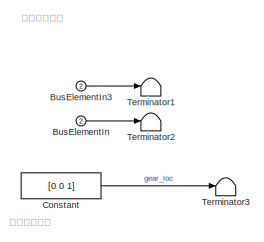
[diagram: dynamic/landgear/Complete - part 1/3, top center region]
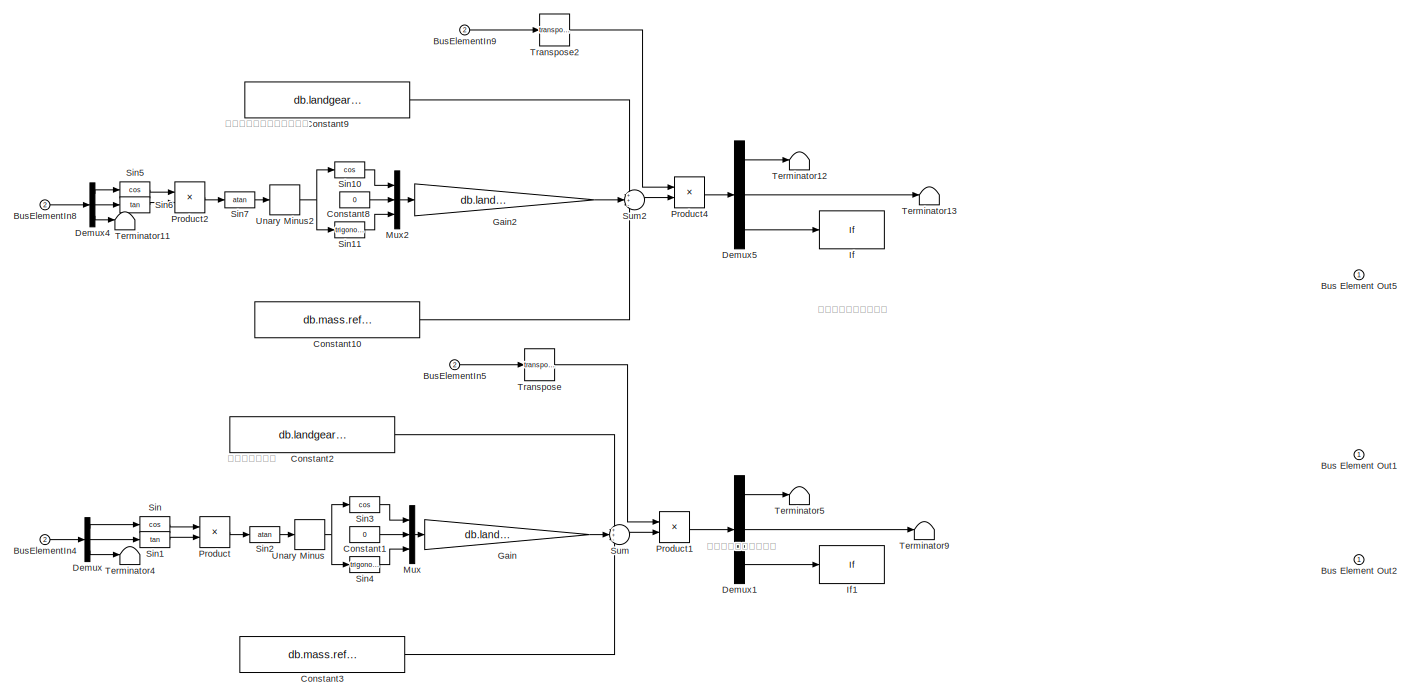
[diagram: dynamic/landgear/Complete - part 2/3, full width, middle band]
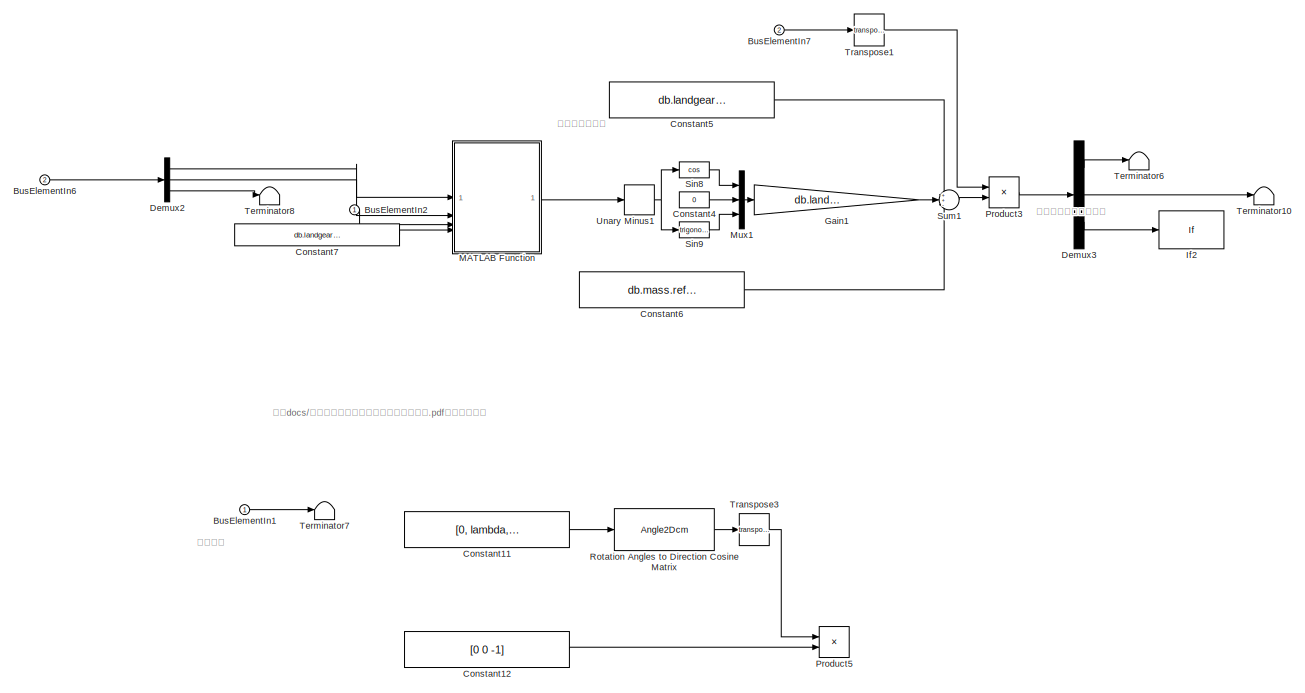
[diagram: dynamic/landgear/Complete - part 3/3, full width, bottom band]
BLOCK [SubSystem] dynamic/landgear/Complete
  VariantControl = Complete
BLOCK [Outport] dynamic/landgear/Complete/Bus Element Out1
BLOCK [Outport] dynamic/landgear/Complete/Bus Element Out2
BLOCK [Outport] dynamic/landgear/Complete/Bus Element Out5
BLOCK [Inport] dynamic/landgear/Complete/BusElementIn
  Port = 2
BLOCK [Inport] dynamic/landgear/Complete/BusElementIn1
BLOCK [Inport] dynamic/landgear/Complete/BusElementIn2
BLOCK [Inport] dynamic/landgear/Complete/BusElementIn3
  Port = 2
BLOCK [Inport] dynamic/landgear/Complete/BusElementIn4
  Port = 2
BLOCK [Inport] dynamic/landgear/Complete/BusElementIn5
  Port = 2
BLOCK [Inport] dynamic/landgear/Complete/BusElementIn6
  Port = 2
BLOCK [Inport] dynamic/landgear/Complete/BusElementIn7
  Port = 2
BLOCK [Inport] dynamic/landgear/Complete/BusElementIn8
  Port = 2
BLOCK [Inport] dynamic/landgear/Complete/BusElementIn9
  Port = 2
BLOCK [Constant] dynamic/landgear/Complete/Constant
  Value = [0 0 1]
BLOCK [Constant] dynamic/landgear/Complete/Constant1
  Value = 0
BLOCK [Constant] dynamic/landgear/Complete/Constant10
  Value = db.mass.ref_cog
BLOCK [Constant] dynamic/landgear/Complete/Constant11
  Value = [0, lambda,0]
BLOCK [Constant] dynamic/landgear/Complete/Constant12
  Value = [0 0 -1]
BLOCK [Constant] dynamic/landgear/Complete/Constant2
  Value = db.landgear.left_pos
BLOCK [Constant] dynamic/landgear/Complete/Constant3
  Value = db.mass.ref_cog
BLOCK [Constant] dynamic/landgear/Complete/Constant4
  Value = 0
BLOCK [Constant] dynamic/landgear/Complete/Constant5
  Value = db.landgear.rear_pos
BLOCK [Constant] dynamic/landgear/Complete/Constant6
  Value = db.mass.ref_cog
BLOCK [Constant] dynamic/landgear/Complete/Constant7
  Value = db.landgear.rear_forerake
BLOCK [Constant] dynamic/landgear/Complete/Constant8
  Value = 0
BLOCK [Constant] dynamic/landgear/Complete/Constant9
  Value = db.landgear.right_pos
BLOCK [Demux] dynamic/landgear/Complete/Demux
  Outputs = 3
BLOCK [Demux] dynamic/landgear/Complete/Demux1
  Outputs = [1,2,3]
BLOCK [Demux] dynamic/landgear/Complete/Demux2
  Outputs = 3
BLOCK [Demux] dynamic/landgear/Complete/Demux3
  Outputs = [1,2,3]
BLOCK [Demux] dynamic/landgear/Complete/Demux4
  Outputs = 3
BLOCK [Demux] dynamic/landgear/Complete/Demux5
  Outputs = [1,2,3]
BLOCK [Gain] dynamic/landgear/Complete/Gain
  Gain = db.landgear.left_rad
BLOCK [Gain] dynamic/landgear/Complete/Gain1
  Gain = db.landgear.rear_rad
BLOCK [Gain] dynamic/landgear/Complete/Gain2
  Gain = db.landgear.right_rad
BLOCK [If] dynamic/landgear/Complete/If
BLOCK [If] dynamic/landgear/Complete/If1
BLOCK [If] dynamic/landgear/Complete/If2
BLOCK [SubSystem] dynamic/landgear/Complete/MATLAB Function
  ErrorFcn = Stateflow.Translate.translate
  PermitHierarchicalResolution = ExplicitOnly
  SFBlockType = MATLAB Function
  TreatAsAtomicUnit = on
BLOCK [Demux] dynamic/landgear/Complete/MATLAB Function/ Demux 
  Outputs = 1
BLOCK [S-Function] dynamic/landgear/Complete/MATLAB Function/ SFunction 
  EnableBusSupport = off
  FunctionName = sf_sfun
  PortCounts = [4 2]
  SFcnIsStateOwnerBlock = off
  SFunctionDeploymentMode = off
  Tag = Stateflow S-Function 2
BLOCK [Terminator] dynamic/landgear/Complete/MATLAB Function/ Terminator 
BLOCK [Inport] dynamic/landgear/Complete/MATLAB Function/delta
  Port = 4
BLOCK [Inport] dynamic/landgear/Complete/MATLAB Function/lambda
  Port = 3
BLOCK [Inport] dynamic/landgear/Complete/MATLAB Function/theta
BLOCK [Inport] dynamic/landgear/Complete/MATLAB Function/varphi
  Port = 2
BLOCK [Outport] dynamic/landgear/Complete/MATLAB Function/y
BLOCK [Mux] dynamic/landgear/Complete/Mux
  DisplayOption = bar
  Inputs = 3
BLOCK [Mux] dynamic/landgear/Complete/Mux1
  DisplayOption = bar
  Inputs = 3
BLOCK [Mux] dynamic/landgear/Complete/Mux2
  DisplayOption = bar
  Inputs = 3
BLOCK [Product] dynamic/landgear/Complete/Product
  Inputs = */
BLOCK [Product] dynamic/landgear/Complete/Product1
  Multiplication = Matrix(*)
BLOCK [Product] dynamic/landgear/Complete/Product2
  Inputs = */
BLOCK [Product] dynamic/landgear/Complete/Product3
  Multiplication = Matrix(*)
BLOCK [Product] dynamic/landgear/Complete/Product4
  Multiplication = Matrix(*)
BLOCK [Product] dynamic/landgear/Complete/Product5
  Multiplication = Matrix(*)
BLOCK [Angle2Dcm] dynamic/landgear/Complete/Rotation Angles to Direction Cosine Matrix
  AttributesFormatString = Rotation Order: %<rotationOrder>
BLOCK [Trigonometry] dynamic/landgear/Complete/Sin
  Operator = cos
BLOCK [Trigonometry] dynamic/landgear/Complete/Sin1
  Operator = tan
BLOCK [Trigonometry] dynamic/landgear/Complete/Sin10
  Operator = cos
BLOCK [Trigonometry] dynamic/landgear/Complete/Sin11
BLOCK [Trigonometry] dynamic/landgear/Complete/Sin2
  Operator = atan
BLOCK [Trigonometry] dynamic/landgear/Complete/Sin3
  Operator = cos
BLOCK [Trigonometry] dynamic/landgear/Complete/Sin4
BLOCK [Trigonometry] dynamic/landgear/Complete/Sin5
  Operator = cos
BLOCK [Trigonometry] dynamic/landgear/Complete/Sin6
  Operator = tan
BLOCK [Trigonometry] dynamic/landgear/Complete/Sin7
  Operator = atan
BLOCK [Trigonometry] dynamic/landgear/Complete/Sin8
  Operator = cos
BLOCK [Trigonometry] dynamic/landgear/Complete/Sin9
BLOCK [Sum] dynamic/landgear/Complete/Sum
  Inputs = ++-
BLOCK [Sum] dynamic/landgear/Complete/Sum1
  Inputs = ++-
BLOCK [Sum] dynamic/landgear/Complete/Sum2
  Inputs = ++-
BLOCK [Terminator] dynamic/landgear/Complete/Terminator1
BLOCK [Terminator] dynamic/landgear/Complete/Terminator10
BLOCK [Terminator] dynamic/landgear/Complete/Terminator11
BLOCK [Terminator] dynamic/landgear/Complete/Terminator12
BLOCK [Terminator] dynamic/landgear/Complete/Terminator13
BLOCK [Terminator] dynamic/landgear/Complete/Terminator2
BLOCK [Terminator] dynamic/landgear/Complete/Terminator3
BLOCK [Terminator] dynamic/landgear/Complete/Terminator4
BLOCK [Terminator] dynamic/landgear/Complete/Terminator5
BLOCK [Terminator] dynamic/landgear/Complete/Terminator6
BLOCK [Terminator] dynamic/landgear/Complete/Terminator7
BLOCK [Terminator] dynamic/landgear/Complete/Terminator8
BLOCK [Terminator] dynamic/landgear/Complete/Terminator9
BLOCK [Math] dynamic/landgear/Complete/Transpose
  Operator = transpose
BLOCK [Math] dynamic/landgear/Complete/Transpose1
  Operator = transpose
BLOCK [Math] dynamic/landgear/Complete/Transpose2
  Operator = transpose
BLOCK [Math] dynamic/landgear/Complete/Transpose3
  Operator = transpose
BLOCK [UnaryMinus] dynamic/landgear/Complete/Unary Minus
BLOCK [UnaryMinus] dynamic/landgear/Complete/Unary Minus1
BLOCK [UnaryMinus] dynamic/landgear/Complete/Unary Minus2
BLOCK [SubSystem] dynamic/landgear/Hold
  VariantControl = Hold
BLOCK [Outport] dynamic/landgear/Hold/Bus Element Out1
BLOCK [Outport] dynamic/landgear/Hold/Bus Element Out2
BLOCK [Outport] dynamic/landgear/Hold/Bus Element Out5
BLOCK [Inport] dynamic/landgear/Hold/BusElementIn
BLOCK [Inport] dynamic/landgear/Hold/BusElementIn2
  Port = 2
BLOCK [Inport] dynamic/landgear/Hold/BusElementIn3
  Port = 2
BLOCK [Inport] dynamic/landgear/Hold/BusElementIn4
  Port = 2
BLOCK [Inport] dynamic/landgear/Hold/BusElementIn5
  Port = 2
BLOCK [Constant] dynamic/landgear/Hold/Constant1
  Value = db.mass.ref_cog
BLOCK [Constant] dynamic/landgear/Hold/Constant3
  Value = [0 0 0]
BLOCK [Gain] dynamic/landgear/Hold/Gain
  Gain = 1e5
BLOCK [Gain] dynamic/landgear/Hold/Gain1
  Gain = -1e4
BLOCK [Gain] dynamic/landgear/Hold/Gain2
  Gain = [0 0 1]
BLOCK [Gain] dynamic/landgear/Hold/Gain3
  Gain = -5e4
BLOCK [Gain] dynamic/landgear/Hold/Gain4
  Gain = -2e3
BLOCK [Concatenate] dynamic/landgear/Hold/Matrix Concatenate1
  ConcatenateDimension = 2
  Mode = Multidimensional array
  NumInputs = 3
BLOCK [Concatenate] dynamic/landgear/Hold/Matrix Concatenate2
  ConcatenateDimension = 2
  Mode = Multidimensional array
  NumInputs = 3
BLOCK [Concatenate] dynamic/landgear/Hold/Matrix Concatenate3
  ConcatenateDimension = 2
  Mode = Multidimensional array
  NumInputs = 3
BLOCK [Sum] dynamic/landgear/Hold/Sum
  Inputs = |++
BLOCK [Sum] dynamic/landgear/Hold/Sum1
  Inputs = |++
BLOCK [Switch] dynamic/landgear/Hold/Switch
  Criteria = u2 > Threshold
  InputSameDT = off
  SaturateOnIntegerOverflow = off
BLOCK [Switch] dynamic/landgear/Hold/Switch1
  Criteria = u2 > Threshold
  InputSameDT = off
  SaturateOnIntegerOverflow = off
BLOCK [Switch] dynamic/landgear/Hold/Switch2
  Criteria = u2 > Threshold
  InputSameDT = off
  SaturateOnIntegerOverflow = off
BLOCK [Switch] dynamic/landgear/Hold/Switch3
  Criteria = u2 > Threshold
  InputSameDT = off
  SaturateOnIntegerOverflow = off
BLOCK [Terminator] dynamic/landgear/Hold/Terminator
BLOCK [SubSystem] dynamic/landgear/Simple
  VariantControl = Simple
BLOCK [Outport] dynamic/landgear/Simple/Bus Element Out1
BLOCK [Outport] dynamic/landgear/Simple/Bus Element Out2
BLOCK [Outport] dynamic/landgear/Simple/Bus Element Out5
BLOCK [From] dynamic/landgear/Simple/From2
  GotoTag = cog
  TagVisibility = global
BLOCK [Concatenate] dynamic/landgear/Simple/Matrix Concatenate
  ConcatenateDimension = 2
  Mode = Multidimensional array
  NumInputs = 3
BLOCK [Concatenate] dynamic/landgear/Simple/Matrix Concatenate1
  ConcatenateDimension = 2
  Mode = Multidimensional array
  NumInputs = 3
BLOCK [Concatenate] dynamic/landgear/Simple/Matrix Concatenate2
  ConcatenateDimension = 2
  Mode = Multidimensional array
  NumInputs = 3
BLOCK [Inport] dynamic/landgear/Simple/cmd
BLOCK [SubSystem] dynamic/landgear/Simple/ground static friction
BLOCK [Outport] dynamic/landgear/Simple/ground static friction/Bus Element Out
  Port = 3
BLOCK [Outport] dynamic/landgear/Simple/ground static friction/Bus Element Out1
  Port = 2
BLOCK [Outport] dynamic/landgear/Simple/ground static friction/Bus Element Out2
BLOCK [Outport] dynamic/landgear/Simple/ground static friction/Bus Element Out3
BLOCK [Outport] dynamic/landgear/Simple/ground static friction/Bus Element Out4
  Port = 2
BLOCK [Outport] dynamic/landgear/Simple/ground static friction/Bus Element Out5
  Port = 3
BLOCK [Constant] dynamic/landgear/Simple/ground static friction/Constant1
  Value = db.landgear.rear_pos
BLOCK [Constant] dynamic/landgear/Simple/ground static friction/Constant2
  Value = db.landgear.right_pos
BLOCK [Constant] dynamic/landgear/Simple/ground static friction/Constant3
  Value = db.landgear.left_pos
BLOCK [From] dynamic/landgear/Simple/ground static friction/From
  GotoTag = Fxyz_no_ground
  TagVisibility = global
BLOCK [From] dynamic/landgear/Simple/ground static friction/From1
  GotoTag = Mxyz_no_ground
  TagVisibility = global
BLOCK [From] dynamic/landgear/Simple/ground static friction/From2
  GotoTag = cog
  TagVisibility = global
BLOCK [SubSystem] dynamic/landgear/Simple/ground static friction/MATLAB Function
  ErrorFcn = Stateflow.Translate.translate
  PermitHierarchicalResolution = ExplicitOnly
  SFBlockType = MATLAB Function
  TreatAsAtomicUnit = on
BLOCK [Demux] dynamic/landgear/Simple/ground static friction/MATLAB Function/ Demux 
  Outputs = 1
BLOCK [S-Function] dynamic/landgear/Simple/ground static friction/MATLAB Function/ SFunction 
  EnableBusSupport = on
  FunctionName = sf_sfun
  PortCounts = [4 2]
  SFcnIsStateOwnerBlock = off
  SFunctionDeploymentMode = off
  Tag = Stateflow S-Function 1
BLOCK [Terminator] dynamic/landgear/Simple/ground static friction/MATLAB Function/ Terminator 
BLOCK [Inport] dynamic/landgear/Simple/ground static friction/MATLAB Function/COG
  Port = 4
BLOCK [Outport] dynamic/landgear/Simple/ground static friction/MATLAB Function/Fstatic
BLOCK [Inport] dynamic/landgear/Simple/ground static friction/MATLAB Function/Fxyz
BLOCK [Inport] dynamic/landgear/Simple/ground static friction/MATLAB Function/Mxyz
  Port = 2
BLOCK [Inport] dynamic/landgear/Simple/ground static friction/MATLAB Function/POS
  Port = 3
BLOCK [Concatenate] dynamic/landgear/Simple/ground static friction/Matrix Concatenate3
  ConcatenateDimension = 2
  Mode = Multidimensional array
  NumInputs = 3
BLOCK [Selector] dynamic/landgear/Simple/ground static friction/Selector
  IndexOptions = Select all,Index vector (dialog)
  Indices = [1 3],1
  InputPortWidth = 3
  NumberOfDimensions = 2
  OutputSizes = 1,1
BLOCK [Selector] dynamic/landgear/Simple/ground static friction/Selector1
  IndexOptions = Select all,Index vector (dialog)
  Indices = [1 3],2
  InputPortWidth = 3
  NumberOfDimensions = 2
  OutputSizes = 1,1
BLOCK [Selector] dynamic/landgear/Simple/ground static friction/Selector2
  IndexOptions = Select all,Index vector (dialog)
  Indices = [1 3],3
  InputPortWidth = 3
  NumberOfDimensions = 2
  OutputSizes = 1,1
BLOCK [SubSystem] dynamic/landgear/Simple/left
  RTWSystemCode = Reusable function
BLOCK [Abs] dynamic/landgear/Simple/left/Abs
  SaturateOnIntegerOverflow = off
BLOCK [Inport] dynamic/landgear/Simple/left/Bus Element In4
  Port = 3
BLOCK [BusSelector] dynamic/landgear/Simple/left/Bus Selector
  OutputSignals = dcm_gear2body
BLOCK [BusSelector] dynamic/landgear/Simple/left/Bus Selector1
  OutputSignals = wow
BLOCK [Inport] dynamic/landgear/Simple/left/BusElementIn
  Port = 3
BLOCK [Inport] dynamic/landgear/Simple/left/BusElementIn3
  Port = 2
BLOCK [Inport] dynamic/landgear/Simple/left/BusElementIn4
BLOCK [Constant] dynamic/landgear/Simple/left/Constant
  Value = [0 0 0]
BLOCK [Outport] dynamic/landgear/Simple/left/Fxyz
BLOCK [Product] dynamic/landgear/Simple/left/Matrix Multiply
  Multiplication = Matrix(*)
BLOCK [Mux] dynamic/landgear/Simple/left/Mux1
  DisplayOption = bar
  Inputs = 3
BLOCK [Outport] dynamic/landgear/Simple/left/Mxyz
  Port = 2
BLOCK [Product] dynamic/landgear/Simple/left/Product3
BLOCK [Outport] dynamic/landgear/Simple/left/Pxyz
  Port = 3
BLOCK [Inport] dynamic/landgear/Simple/left/cog
  Port = 4
BLOCK [SubSystem] dynamic/landgear/Simple/left/侧向摩擦力
BLOCK [Reference] dynamic/landgear/Simple/left/侧向摩擦力/Angle Conversion  REF=aerolibconvert2/Angle Conversion
  SourceBlock = aerolibconvert2/Angle Conversion
  SourceType = Angle Conversion
BLOCK [Trigonometry] dynamic/landgear/Simple/left/侧向摩擦力/Atan
  Operator = atan
BLOCK [Trigonometry] dynamic/landgear/Simple/left/侧向摩擦力/Atan1
  Operator = atan
BLOCK [Trigonometry] dynamic/landgear/Simple/left/侧向摩擦力/Atan2
  Operator = atan2
BLOCK [Trigonometry] dynamic/landgear/Simple/left/侧向摩擦力/Atan3
BLOCK [Inport] dynamic/landgear/Simple/left/侧向摩擦力/Bus Element In1
BLOCK [Inport] dynamic/landgear/Simple/left/侧向摩擦力/Bus Element In2
BLOCK [Inport] dynamic/landgear/Simple/left/侧向摩擦力/Bus Element In3
BLOCK [Demux] dynamic/landgear/Simple/left/侧向摩擦力/Demux
  Outputs = 2
BLOCK [Outport] dynamic/landgear/Simple/left/侧向摩擦力/Fy
BLOCK [Gain] dynamic/landgear/Simple/left/侧向摩擦力/Gain
  Gain = 0.06
BLOCK [Gain] dynamic/landgear/Simple/left/侧向摩擦力/Gain1
  Gain = 1.03
BLOCK [Gain] dynamic/landgear/Simple/left/侧向摩擦力/Gain2
  Gain = 2.8
BLOCK [Gain] dynamic/landgear/Simple/left/侧向摩擦力/Gain3
  Gain = 0.8
BLOCK [Product] dynamic/landgear/Simple/left/侧向摩擦力/Product
BLOCK [Selector] dynamic/landgear/Simple/left/侧向摩擦力/Selector1
  IndexOptions = Index vector (dialog)
  Indices = [2, 1]
  InputPortWidth = 3
  OutputSizes = 1
BLOCK [Selector] dynamic/landgear/Simple/left/侧向摩擦力/Selector2
  IndexOptions = Index vector (dialog)
  Indices = 2
  InputPortWidth = 2
  OutputSizes = 1
BLOCK [Selector] dynamic/landgear/Simple/left/侧向摩擦力/Selector3
  IndexOptions = Index vector (dialog)
  Indices = 2
  InputPortWidth = 3
  OutputSizes = 1
BLOCK [Sum] dynamic/landgear/Simple/left/侧向摩擦力/Sum
  Inputs = +-|
BLOCK [Sum] dynamic/landgear/Simple/left/侧向摩擦力/Sum1
  Inputs = |+-
BLOCK [Switch] dynamic/landgear/Simple/left/侧向摩擦力/Switch
  Criteria = u2 > Threshold
  InputSameDT = off
  SaturateOnIntegerOverflow = off
  Threshold = 0.5
BLOCK [UnaryMinus] dynamic/landgear/Simple/left/侧向摩擦力/Unary Minus
  NameLocation = right
BLOCK [Inport] dynamic/landgear/Simple/left/侧向摩擦力/|Fz|
  Port = 2
BLOCK [SubSystem] dynamic/landgear/Simple/left/地面支反力
BLOCK [Inport] dynamic/landgear/Simple/left/地面支反力/Bus Element In1
BLOCK [Inport] dynamic/landgear/Simple/left/地面支反力/Bus Element In2
BLOCK [Outport] dynamic/landgear/Simple/left/地面支反力/Fz
BLOCK [Gain] dynamic/landgear/Simple/left/地面支反力/Gain2
  Gain = 5e4
  NameLocation = right
BLOCK [Gain] dynamic/landgear/Simple/left/地面支反力/Gain3
  Gain = -2e3
BLOCK [Gain] dynamic/landgear/Simple/left/地面支反力/Gain7
  Gain = 0
BLOCK [Saturate] dynamic/landgear/Simple/left/地面支反力/Saturation
  LowerLimit = -1
  UpperLimit = 0
BLOCK [Selector] dynamic/landgear/Simple/left/地面支反力/Selector3
  IndexOptions = Index vector (dialog)
  Indices = 3
  InputPortWidth = 3
  OutputSizes = 1
BLOCK [Signum] dynamic/landgear/Simple/left/地面支反力/Sign
BLOCK [Sum] dynamic/landgear/Simple/left/地面支反力/Sum3
  Inputs = 3
BLOCK [SubSystem] dynamic/landgear/Simple/left/纵向摩擦力
BLOCK [Gain] dynamic/landgear/Simple/left/纵向摩擦力/B
  Gain = 14.032
BLOCK [Inport] dynamic/landgear/Simple/left/纵向摩擦力/BusElementIn1
BLOCK [Inport] dynamic/landgear/Simple/left/纵向摩擦力/BusElementIn2
BLOCK [Inport] dynamic/landgear/Simple/left/纵向摩擦力/BusElementIn3
BLOCK [Inport] dynamic/landgear/Simple/left/纵向摩擦力/BusElementIn4
BLOCK [Inport] dynamic/landgear/Simple/left/纵向摩擦力/BusElementIn5
BLOCK [Gain] dynamic/landgear/Simple/left/纵向摩擦力/C
  Gain = 1.5344
BLOCK [Constant] dynamic/landgear/Simple/left/纵向摩擦力/Constant
  Value = 0.02
BLOCK [Gain] dynamic/landgear/Simple/left/纵向摩擦力/D
  Gain = 0.8
BLOCK [Outport] dynamic/landgear/Simple/left/纵向摩擦力/Fx
BLOCK [Gain] dynamic/landgear/Simple/left/纵向摩擦力/Gain
  Gain = -100
BLOCK [Product] dynamic/landgear/Simple/left/纵向摩擦力/Product
BLOCK [Product] dynamic/landgear/Simple/left/纵向摩擦力/Product1
BLOCK [Saturate] dynamic/landgear/Simple/left/纵向摩擦力/Saturation
  LowerLimit = -1
  UpperLimit = 1
BLOCK [Selector] dynamic/landgear/Simple/left/纵向摩擦力/Selector
  IndexOptions = Index vector (dialog)
  Indices = 1
  InputPortWidth = 3
  OutputSizes = 1
BLOCK [Selector] dynamic/landgear/Simple/left/纵向摩擦力/Selector1
  IndexOptions = Index vector (dialog)
  Indices = 1
  InputPortWidth = 2
  OutputSizes = 1
BLOCK [Selector] dynamic/landgear/Simple/left/纵向摩擦力/Selector2
  IndexOptions = Index vector (dialog)
  Indices = 1
  InputPortWidth = 3
  OutputSizes = 1
BLOCK [Selector] dynamic/landgear/Simple/left/纵向摩擦力/Selector5
  IndexOptions = Index vector (dialog)
  Indices = 1
  InputPortWidth = 3
  OutputSizes = 1
BLOCK [Signum] dynamic/landgear/Simple/left/纵向摩擦力/Sign
BLOCK [Trigonometry] dynamic/landgear/Simple/left/纵向摩擦力/Sin
BLOCK [Trigonometry] dynamic/landgear/Simple/left/纵向摩擦力/Sin1
  Operator = atan
BLOCK [Sum] dynamic/landgear/Simple/left/纵向摩擦力/Sum
  Inputs = |++
BLOCK [Sum] dynamic/landgear/Simple/left/纵向摩擦力/Sum1
  Inputs = |++
BLOCK [Switch] dynamic/landgear/Simple/left/纵向摩擦力/Switch
  Criteria = u2 > Threshold
  InputSameDT = off
  SaturateOnIntegerOverflow = off
  Threshold = 0.5
BLOCK [UnaryMinus] dynamic/landgear/Simple/left/纵向摩擦力/Unary Minus
  NameLocation = right
BLOCK [Inport] dynamic/landgear/Simple/left/纵向摩擦力/|Fz|
  Port = 2
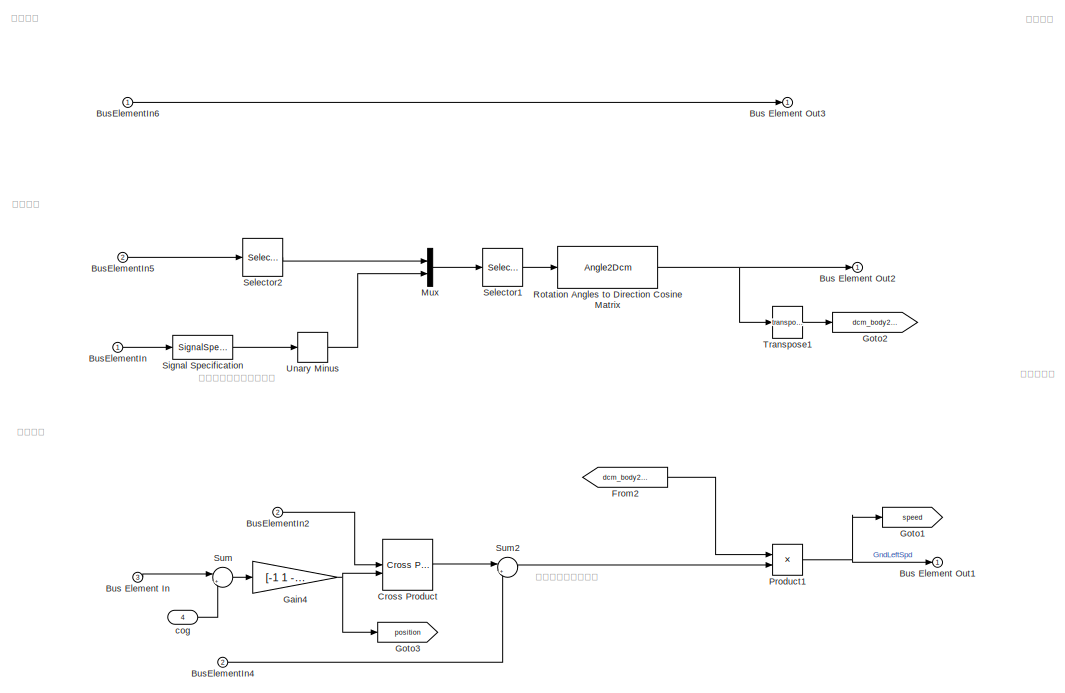
[diagram: dynamic/landgear/Simple/left/计算压缩量 - part 1/2, left side, full height]
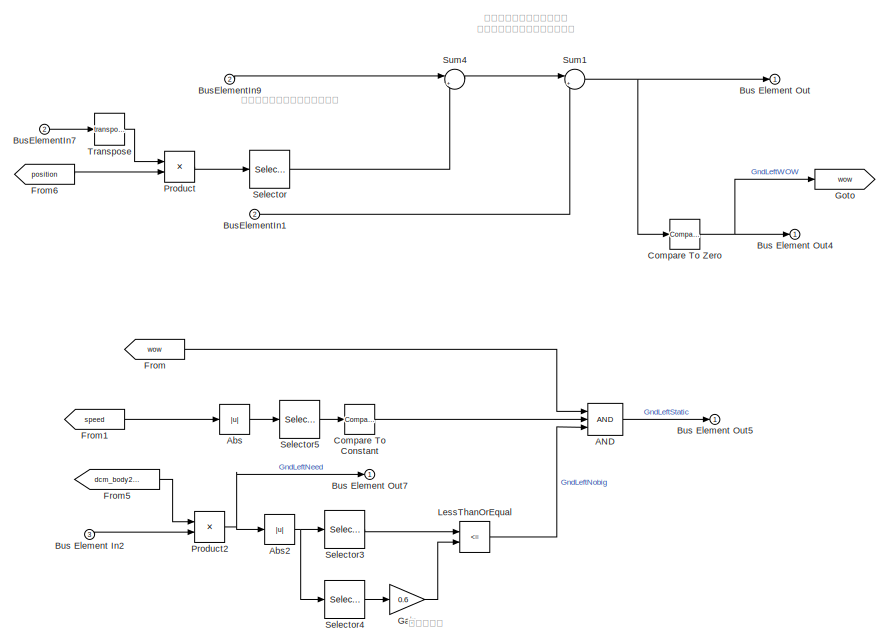
[diagram: dynamic/landgear/Simple/left/计算压缩量 - part 2/2, right side, full height]
BLOCK [SubSystem] dynamic/landgear/Simple/left/计算压缩量
BLOCK [Logic] dynamic/landgear/Simple/left/计算压缩量/AND
  AllPortsSameDT = off
  IconShape = distinctive
  Inputs = 3
  OutDataTypeStr = boolean
BLOCK [Abs] dynamic/landgear/Simple/left/计算压缩量/Abs
  SaturateOnIntegerOverflow = off
BLOCK [Abs] dynamic/landgear/Simple/left/计算压缩量/Abs2
  SaturateOnIntegerOverflow = off
BLOCK [Inport] dynamic/landgear/Simple/left/计算压缩量/Bus Element In
  Port = 3
BLOCK [Inport] dynamic/landgear/Simple/left/计算压缩量/Bus Element In2
  Port = 3
BLOCK [Outport] dynamic/landgear/Simple/left/计算压缩量/Bus Element Out
BLOCK [Outport] dynamic/landgear/Simple/left/计算压缩量/Bus Element Out1
BLOCK [Outport] dynamic/landgear/Simple/left/计算压缩量/Bus Element Out2
BLOCK [Outport] dynamic/landgear/Simple/left/计算压缩量/Bus Element Out3
BLOCK [Outport] dynamic/landgear/Simple/left/计算压缩量/Bus Element Out4
BLOCK [Outport] dynamic/landgear/Simple/left/计算压缩量/Bus Element Out5
BLOCK [Outport] dynamic/landgear/Simple/left/计算压缩量/Bus Element Out7
BLOCK [Inport] dynamic/landgear/Simple/left/计算压缩量/BusElementIn
BLOCK [Inport] dynamic/landgear/Simple/left/计算压缩量/BusElementIn1
  Port = 2
BLOCK [Inport] dynamic/landgear/Simple/left/计算压缩量/BusElementIn2
  Port = 2
BLOCK [Inport] dynamic/landgear/Simple/left/计算压缩量/BusElementIn4
  Port = 2
BLOCK [Inport] dynamic/landgear/Simple/left/计算压缩量/BusElementIn5
  Port = 2
BLOCK [Inport] dynamic/landgear/Simple/left/计算压缩量/BusElementIn6
BLOCK [Inport] dynamic/landgear/Simple/left/计算压缩量/BusElementIn7
  Port = 2
BLOCK [Inport] dynamic/landgear/Simple/left/计算压缩量/BusElementIn9
  Port = 2
BLOCK [Reference] dynamic/landgear/Simple/left/计算压缩量/Compare To Constant  REF=simulink/Logic and Bit
Operations/Compare
To Constant
  SourceBlock = simulink/Logic and Bit\nOperations/Compare\nTo Constant
  SourceType = Compare To Constant
BLOCK [Reference] dynamic/landgear/Simple/left/计算压缩量/Compare To Zero  REF=simulink/Logic and Bit
Operations/Compare
To Zero
  SourceBlock = simulink/Logic and Bit\nOperations/Compare\nTo Zero
  SourceType = Compare To Zero
BLOCK [Reference] dynamic/landgear/Simple/left/计算压缩量/Cross Product  REF=matrix_library/Cross Product
  SourceBlock = matrix_library/Cross Product
  SourceType = CrossProduct
BLOCK [From] dynamic/landgear/Simple/left/计算压缩量/From
  GotoTag = wow
BLOCK [From] dynamic/landgear/Simple/left/计算压缩量/From1
  GotoTag = speed
BLOCK [From] dynamic/landgear/Simple/left/计算压缩量/From2
  GotoTag = dcm_body2gear
BLOCK [From] dynamic/landgear/Simple/left/计算压缩量/From5
  GotoTag = dcm_body2gear
BLOCK [From] dynamic/landgear/Simple/left/计算压缩量/From6
  GotoTag = position
BLOCK [Gain] dynamic/landgear/Simple/left/计算压缩量/Gain
  Gain = 0.6
BLOCK [Gain] dynamic/landgear/Simple/left/计算压缩量/Gain4
  Gain = [-1 1 -1]
BLOCK [Goto] dynamic/landgear/Simple/left/计算压缩量/Goto
  GotoTag = wow
BLOCK [Goto] dynamic/landgear/Simple/left/计算压缩量/Goto1
  GotoTag = speed
BLOCK [Goto] dynamic/landgear/Simple/left/计算压缩量/Goto2
  GotoTag = dcm_body2gear
BLOCK [Goto] dynamic/landgear/Simple/left/计算压缩量/Goto3
  GotoTag = position
BLOCK [RelationalOperator] dynamic/landgear/Simple/left/计算压缩量/LessThanOrEqual
  InputSameDT = off
  Operator = <=
  OutDataTypeStr = boolean
  RndMeth = Simplest
BLOCK [Mux] dynamic/landgear/Simple/left/计算压缩量/Mux
  DisplayOption = bar
  Inputs = 2
BLOCK [Product] dynamic/landgear/Simple/left/计算压缩量/Product
  Multiplication = Matrix(*)
BLOCK [Product] dynamic/landgear/Simple/left/计算压缩量/Product1
  Multiplication = Matrix(*)
BLOCK [Product] dynamic/landgear/Simple/left/计算压缩量/Product2
  Multiplication = Matrix(*)
BLOCK [Angle2Dcm] dynamic/landgear/Simple/left/计算压缩量/Rotation Angles to Direction Cosine Matrix
  AttributesFormatString = Rotation Order: %<rotationOrder>
BLOCK [Selector] dynamic/landgear/Simple/left/计算压缩量/Selector
  IndexOptions = Index vector (dialog)
  Indices = 3
  InputPortWidth = 3
  OutputSizes = 1
BLOCK [Selector] dynamic/landgear/Simple/left/计算压缩量/Selector1
  IndexOptions = Index vector (dialog)
  Indices = [3 2 1]
  InputPortWidth = 3
  OutputSizes = 1
BLOCK [Selector] dynamic/landgear/Simple/left/计算压缩量/Selector2
  IndexOptions = Index vector (dialog)
  Indices = [1 2]
  InputPortWidth = 3
  OutputSizes = 1
BLOCK [Selector] dynamic/landgear/Simple/left/计算压缩量/Selector3
  IndexOptions = Index vector (dialog)
  Indices = [1 2]
  InputPortWidth = 3
  OutputSizes = 1
BLOCK [Selector] dynamic/landgear/Simple/left/计算压缩量/Selector4
  IndexOptions = Index vector (dialog)
  Indices = 3
  InputPortWidth = 3
  OutputSizes = 1
BLOCK [Selector] dynamic/landgear/Simple/left/计算压缩量/Selector5
  IndexOptions = Index vector (dialog)
  Indices = [1 2]
  InputPortWidth = 3
  OutputSizes = 1
BLOCK [SignalSpecification] dynamic/landgear/Simple/left/计算压缩量/Signal Specification
  Unit = rad
BLOCK [Sum] dynamic/landgear/Simple/left/计算压缩量/Sum
  Inputs = |+-
BLOCK [Sum] dynamic/landgear/Simple/left/计算压缩量/Sum1
  Inputs = |+-
BLOCK [Sum] dynamic/landgear/Simple/left/计算压缩量/Sum2
  Inputs = |++
BLOCK [Sum] dynamic/landgear/Simple/left/计算压缩量/Sum4
  Inputs = |+-
BLOCK [Math] dynamic/landgear/Simple/left/计算压缩量/Transpose
  Operator = transpose
BLOCK [Math] dynamic/landgear/Simple/left/计算压缩量/Transpose1
  NameLocation = top
  Operator = transpose
BLOCK [UnaryMinus] dynamic/landgear/Simple/left/计算压缩量/Unary Minus
BLOCK [Inport] dynamic/landgear/Simple/left/计算压缩量/cog
  Port = 4
BLOCK [SubSystem] dynamic/landgear/Simple/rear
  RTWSystemCode = Reusable function
BLOCK [Abs] dynamic/landgear/Simple/rear/Abs
  SaturateOnIntegerOverflow = off
BLOCK [Inport] dynamic/landgear/Simple/rear/Bus Element In4
  Port = 3
BLOCK [BusSelector] dynamic/landgear/Simple/rear/Bus Selector
  OutputSignals = dcm_gear2body
BLOCK [BusSelector] dynamic/landgear/Simple/rear/Bus Selector1
  OutputSignals = wow
BLOCK [Inport] dynamic/landgear/Simple/rear/BusElementIn
  Port = 3
BLOCK [Inport] dynamic/landgear/Simple/rear/BusElementIn3
  Port = 2
BLOCK [Inport] dynamic/landgear/Simple/rear/BusElementIn4
BLOCK [Constant] dynamic/landgear/Simple/rear/Constant
  Value = [0 0 0]
BLOCK [Outport] dynamic/landgear/Simple/rear/Fxyz
BLOCK [Product] dynamic/landgear/Simple/rear/Matrix Multiply
  Multiplication = Matrix(*)
BLOCK [Mux] dynamic/landgear/Simple/rear/Mux1
  DisplayOption = bar
  Inputs = 3
BLOCK [Outport] dynamic/landgear/Simple/rear/Mxyz
  Port = 2
BLOCK [Product] dynamic/landgear/Simple/rear/Product3
BLOCK [Outport] dynamic/landgear/Simple/rear/Pxyz
  Port = 3
BLOCK [Inport] dynamic/landgear/Simple/rear/cog
  Port = 4
BLOCK [SubSystem] dynamic/landgear/Simple/rear/侧向摩擦力
BLOCK [Reference] dynamic/landgear/Simple/rear/侧向摩擦力/Angle Conversion  REF=aerolibconvert2/Angle Conversion
  SourceBlock = aerolibconvert2/Angle Conversion
  SourceType = Angle Conversion
BLOCK [Trigonometry] dynamic/landgear/Simple/rear/侧向摩擦力/Atan
  Operator = atan
BLOCK [Trigonometry] dynamic/landgear/Simple/rear/侧向摩擦力/Atan1
  Operator = atan
BLOCK [Trigonometry] dynamic/landgear/Simple/rear/侧向摩擦力/Atan2
  Operator = atan2
BLOCK [Trigonometry] dynamic/landgear/Simple/rear/侧向摩擦力/Atan3
BLOCK [Inport] dynamic/landgear/Simple/rear/侧向摩擦力/Bus Element In1
BLOCK [Inport] dynamic/landgear/Simple/rear/侧向摩擦力/Bus Element In2
BLOCK [Inport] dynamic/landgear/Simple/rear/侧向摩擦力/Bus Element In3
BLOCK [Demux] dynamic/landgear/Simple/rear/侧向摩擦力/Demux
  Outputs = 2
BLOCK [Outport] dynamic/landgear/Simple/rear/侧向摩擦力/Fy
BLOCK [Gain] dynamic/landgear/Simple/rear/侧向摩擦力/Gain
  Gain = 0.06
BLOCK [Gain] dynamic/landgear/Simple/rear/侧向摩擦力/Gain1
  Gain = 1.03
BLOCK [Gain] dynamic/landgear/Simple/rear/侧向摩擦力/Gain2
  Gain = 2.8
BLOCK [Gain] dynamic/landgear/Simple/rear/侧向摩擦力/Gain3
  Gain = 0.8
BLOCK [Product] dynamic/landgear/Simple/rear/侧向摩擦力/Product
BLOCK [Selector] dynamic/landgear/Simple/rear/侧向摩擦力/Selector1
  IndexOptions = Index vector (dialog)
  Indices = [2, 1]
  InputPortWidth = 3
  OutputSizes = 1
BLOCK [Selector] dynamic/landgear/Simple/rear/侧向摩擦力/Selector2
  IndexOptions = Index vector (dialog)
  Indices = 2
  InputPortWidth = 2
  OutputSizes = 1
BLOCK [Selector] dynamic/landgear/Simple/rear/侧向摩擦力/Selector3
  IndexOptions = Index vector (dialog)
  Indices = 2
  InputPortWidth = 3
  OutputSizes = 1
BLOCK [Sum] dynamic/landgear/Simple/rear/侧向摩擦力/Sum
  Inputs = +-|
BLOCK [Sum] dynamic/landgear/Simple/rear/侧向摩擦力/Sum1
  Inputs = |+-
BLOCK [Switch] dynamic/landgear/Simple/rear/侧向摩擦力/Switch
  Criteria = u2 > Threshold
  InputSameDT = off
  SaturateOnIntegerOverflow = off
  Threshold = 0.5
BLOCK [UnaryMinus] dynamic/landgear/Simple/rear/侧向摩擦力/Unary Minus
  NameLocation = right
BLOCK [Inport] dynamic/landgear/Simple/rear/侧向摩擦力/|Fz|
  Port = 2
BLOCK [SubSystem] dynamic/landgear/Simple/rear/地面支反力
BLOCK [Inport] dynamic/landgear/Simple/rear/地面支反力/Bus Element In1
BLOCK [Inport] dynamic/landgear/Simple/rear/地面支反力/Bus Element In2
BLOCK [Outport] dynamic/landgear/Simple/rear/地面支反力/Fz
BLOCK [Gain] dynamic/landgear/Simple/rear/地面支反力/Gain2
  Gain = 4e4
  NameLocation = right
BLOCK [Gain] dynamic/landgear/Simple/rear/地面支反力/Gain3
  Gain = -1e3
BLOCK [Gain] dynamic/landgear/Simple/rear/地面支反力/Gain7
  Gain = 0
BLOCK [Saturate] dynamic/landgear/Simple/rear/地面支反力/Saturation
  LowerLimit = -1
  UpperLimit = 0
BLOCK [Selector] dynamic/landgear/Simple/rear/地面支反力/Selector3
  IndexOptions = Index vector (dialog)
  Indices = 3
  InputPortWidth = 3
  OutputSizes = 1
BLOCK [Signum] dynamic/landgear/Simple/rear/地面支反力/Sign
BLOCK [Sum] dynamic/landgear/Simple/rear/地面支反力/Sum3
  Inputs = 3
BLOCK [SubSystem] dynamic/landgear/Simple/rear/纵向摩擦力
BLOCK [Gain] dynamic/landgear/Simple/rear/纵向摩擦力/B
  Gain = 14.032
BLOCK [Inport] dynamic/landgear/Simple/rear/纵向摩擦力/BusElementIn1
BLOCK [Inport] dynamic/landgear/Simple/rear/纵向摩擦力/BusElementIn2
BLOCK [Inport] dynamic/landgear/Simple/rear/纵向摩擦力/BusElementIn3
BLOCK [Inport] dynamic/landgear/Simple/rear/纵向摩擦力/BusElementIn4
BLOCK [Inport] dynamic/landgear/Simple/rear/纵向摩擦力/BusElementIn5
BLOCK [Gain] dynamic/landgear/Simple/rear/纵向摩擦力/C
  Gain = 1.5344
BLOCK [Constant] dynamic/landgear/Simple/rear/纵向摩擦力/Constant
  Value = 0.02
BLOCK [Gain] dynamic/landgear/Simple/rear/纵向摩擦力/D
  Gain = 0.8
BLOCK [Outport] dynamic/landgear/Simple/rear/纵向摩擦力/Fx
BLOCK [Gain] dynamic/landgear/Simple/rear/纵向摩擦力/Gain
  Gain = -100
BLOCK [Product] dynamic/landgear/Simple/rear/纵向摩擦力/Product
BLOCK [Product] dynamic/landgear/Simple/rear/纵向摩擦力/Product1
BLOCK [Saturate] dynamic/landgear/Simple/rear/纵向摩擦力/Saturation
  LowerLimit = -1
  UpperLimit = 1
BLOCK [Selector] dynamic/landgear/Simple/rear/纵向摩擦力/Selector
  IndexOptions = Index vector (dialog)
  Indices = 1
  InputPortWidth = 3
  OutputSizes = 1
BLOCK [Selector] dynamic/landgear/Simple/rear/纵向摩擦力/Selector1
  IndexOptions = Index vector (dialog)
  Indices = 1
  InputPortWidth = 2
  OutputSizes = 1
BLOCK [Selector] dynamic/landgear/Simple/rear/纵向摩擦力/Selector2
  IndexOptions = Index vector (dialog)
  Indices = 1
  InputPortWidth = 3
  OutputSizes = 1
BLOCK [Selector] dynamic/landgear/Simple/rear/纵向摩擦力/Selector5
  IndexOptions = Index vector (dialog)
  Indices = 1
  InputPortWidth = 3
  OutputSizes = 1
BLOCK [Signum] dynamic/landgear/Simple/rear/纵向摩擦力/Sign
BLOCK [Trigonometry] dynamic/landgear/Simple/rear/纵向摩擦力/Sin
BLOCK [Trigonometry] dynamic/landgear/Simple/rear/纵向摩擦力/Sin1
  Operator = atan
BLOCK [Sum] dynamic/landgear/Simple/rear/纵向摩擦力/Sum
  Inputs = |++
BLOCK [Sum] dynamic/landgear/Simple/rear/纵向摩擦力/Sum1
  Inputs = |++
BLOCK [Switch] dynamic/landgear/Simple/rear/纵向摩擦力/Switch
  Criteria = u2 > Threshold
  InputSameDT = off
  SaturateOnIntegerOverflow = off
  Threshold = 0.5
BLOCK [UnaryMinus] dynamic/landgear/Simple/rear/纵向摩擦力/Unary Minus
  NameLocation = right
BLOCK [Inport] dynamic/landgear/Simple/rear/纵向摩擦力/|Fz|
  Port = 2
BLOCK [SubSystem] dynamic/landgear/Simple/rear/计算压缩量
BLOCK [Logic] dynamic/landgear/Simple/rear/计算压缩量/AND
  AllPortsSameDT = off
  IconShape = distinctive
  Inputs = 3
  OutDataTypeStr = boolean
BLOCK [Abs] dynamic/landgear/Simple/rear/计算压缩量/Abs
  SaturateOnIntegerOverflow = off
BLOCK [Abs] dynamic/landgear/Simple/rear/计算压缩量/Abs2
  SaturateOnIntegerOverflow = off
BLOCK [Inport] dynamic/landgear/Simple/rear/计算压缩量/Bus Element In
  Port = 3
BLOCK [Inport] dynamic/landgear/Simple/rear/计算压缩量/Bus Element In2
  Port = 3
BLOCK [Outport] dynamic/landgear/Simple/rear/计算压缩量/Bus Element Out
BLOCK [Outport] dynamic/landgear/Simple/rear/计算压缩量/Bus Element Out1
BLOCK [Outport] dynamic/landgear/Simple/rear/计算压缩量/Bus Element Out2
BLOCK [Outport] dynamic/landgear/Simple/rear/计算压缩量/Bus Element Out3
BLOCK [Outport] dynamic/landgear/Simple/rear/计算压缩量/Bus Element Out4
BLOCK [Outport] dynamic/landgear/Simple/rear/计算压缩量/Bus Element Out5
BLOCK [Outport] dynamic/landgear/Simple/rear/计算压缩量/Bus Element Out7
BLOCK [Inport] dynamic/landgear/Simple/rear/计算压缩量/BusElementIn
BLOCK [Inport] dynamic/landgear/Simple/rear/计算压缩量/BusElementIn1
  Port = 2
BLOCK [Inport] dynamic/landgear/Simple/rear/计算压缩量/BusElementIn2
  Port = 2
BLOCK [Inport] dynamic/landgear/Simple/rear/计算压缩量/BusElementIn4
  Port = 2
BLOCK [Inport] dynamic/landgear/Simple/rear/计算压缩量/BusElementIn5
  Port = 2
BLOCK [Inport] dynamic/landgear/Simple/rear/计算压缩量/BusElementIn6
BLOCK [Inport] dynamic/landgear/Simple/rear/计算压缩量/BusElementIn7
  Port = 2
BLOCK [Inport] dynamic/landgear/Simple/rear/计算压缩量/BusElementIn9
  Port = 2
BLOCK [Reference] dynamic/landgear/Simple/rear/计算压缩量/Compare To Constant  REF=simulink/Logic and Bit
Operations/Compare
To Constant
  SourceBlock = simulink/Logic and Bit\nOperations/Compare\nTo Constant
  SourceType = Compare To Constant
BLOCK [Reference] dynamic/landgear/Simple/rear/计算压缩量/Compare To Zero  REF=simulink/Logic and Bit
Operations/Compare
To Zero
  SourceBlock = simulink/Logic and Bit\nOperations/Compare\nTo Zero
  SourceType = Compare To Zero
BLOCK [Reference] dynamic/landgear/Simple/rear/计算压缩量/Cross Product  REF=matrix_library/Cross Product
  SourceBlock = matrix_library/Cross Product
  SourceType = CrossProduct
BLOCK [From] dynamic/landgear/Simple/rear/计算压缩量/From
  GotoTag = wow
BLOCK [From] dynamic/landgear/Simple/rear/计算压缩量/From1
  GotoTag = speed
BLOCK [From] dynamic/landgear/Simple/rear/计算压缩量/From2
  GotoTag = dcm_body2gear
BLOCK [From] dynamic/landgear/Simple/rear/计算压缩量/From5
  GotoTag = dcm_body2gear
BLOCK [From] dynamic/landgear/Simple/rear/计算压缩量/From6
  GotoTag = position
BLOCK [Gain] dynamic/landgear/Simple/rear/计算压缩量/Gain
  Gain = 0.6
BLOCK [Gain] dynamic/landgear/Simple/rear/计算压缩量/Gain4
  Gain = [-1 1 -1]
BLOCK [Goto] dynamic/landgear/Simple/rear/计算压缩量/Goto
  GotoTag = wow
BLOCK [Goto] dynamic/landgear/Simple/rear/计算压缩量/Goto1
  GotoTag = speed
BLOCK [Goto] dynamic/landgear/Simple/rear/计算压缩量/Goto2
  GotoTag = dcm_body2gear
BLOCK [Goto] dynamic/landgear/Simple/rear/计算压缩量/Goto3
  GotoTag = position
BLOCK [RelationalOperator] dynamic/landgear/Simple/rear/计算压缩量/LessThanOrEqual
  InputSameDT = off
  Operator = <=
  OutDataTypeStr = boolean
  RndMeth = Simplest
BLOCK [Mux] dynamic/landgear/Simple/rear/计算压缩量/Mux
  DisplayOption = bar
  Inputs = 2
BLOCK [Product] dynamic/landgear/Simple/rear/计算压缩量/Product
  Multiplication = Matrix(*)
BLOCK [Product] dynamic/landgear/Simple/rear/计算压缩量/Product1
  Multiplication = Matrix(*)
BLOCK [Product] dynamic/landgear/Simple/rear/计算压缩量/Product2
  Multiplication = Matrix(*)
BLOCK [Angle2Dcm] dynamic/landgear/Simple/rear/计算压缩量/Rotation Angles to Direction Cosine Matrix
  AttributesFormatString = Rotation Order: %<rotationOrder>
BLOCK [Selector] dynamic/landgear/Simple/rear/计算压缩量/Selector
  IndexOptions = Index vector (dialog)
  Indices = 3
  InputPortWidth = 3
  OutputSizes = 1
BLOCK [Selector] dynamic/landgear/Simple/rear/计算压缩量/Selector1
  IndexOptions = Index vector (dialog)
  Indices = [3 2 1]
  InputPortWidth = 3
  OutputSizes = 1
BLOCK [Selector] dynamic/landgear/Simple/rear/计算压缩量/Selector2
  IndexOptions = Index vector (dialog)
  Indices = [1 2]
  InputPortWidth = 3
  OutputSizes = 1
BLOCK [Selector] dynamic/landgear/Simple/rear/计算压缩量/Selector3
  IndexOptions = Index vector (dialog)
  Indices = [1 2]
  InputPortWidth = 3
  OutputSizes = 1
BLOCK [Selector] dynamic/landgear/Simple/rear/计算压缩量/Selector4
  IndexOptions = Index vector (dialog)
  Indices = 3
  InputPortWidth = 3
  OutputSizes = 1
BLOCK [Selector] dynamic/landgear/Simple/rear/计算压缩量/Selector5
  IndexOptions = Index vector (dialog)
  Indices = [1 2]
  InputPortWidth = 3
  OutputSizes = 1
BLOCK [SignalSpecification] dynamic/landgear/Simple/rear/计算压缩量/Signal Specification
  Unit = rad
BLOCK [Sum] dynamic/landgear/Simple/rear/计算压缩量/Sum
  Inputs = |+-
BLOCK [Sum] dynamic/landgear/Simple/rear/计算压缩量/Sum1
  Inputs = |+-
BLOCK [Sum] dynamic/landgear/Simple/rear/计算压缩量/Sum2
  Inputs = |++
BLOCK [Sum] dynamic/landgear/Simple/rear/计算压缩量/Sum4
  Inputs = |+-
BLOCK [Math] dynamic/landgear/Simple/rear/计算压缩量/Transpose
  Operator = transpose
BLOCK [Math] dynamic/landgear/Simple/rear/计算压缩量/Transpose1
  NameLocation = top
  Operator = transpose
BLOCK [UnaryMinus] dynamic/landgear/Simple/rear/计算压缩量/Unary Minus
BLOCK [Inport] dynamic/landgear/Simple/rear/计算压缩量/cog
  Port = 4
BLOCK [SubSystem] dynamic/landgear/Simple/right
  RTWSystemCode = Reusable function
BLOCK [Abs] dynamic/landgear/Simple/right/Abs
  SaturateOnIntegerOverflow = off
BLOCK [Inport] dynamic/landgear/Simple/right/Bus Element In4
  Port = 3
BLOCK [BusSelector] dynamic/landgear/Simple/right/Bus Selector
  OutputSignals = dcm_gear2body
BLOCK [BusSelector] dynamic/landgear/Simple/right/Bus Selector1
  OutputSignals = wow
BLOCK [Inport] dynamic/landgear/Simple/right/BusElementIn
  Port = 3
BLOCK [Inport] dynamic/landgear/Simple/right/BusElementIn3
  Port = 2
BLOCK [Inport] dynamic/landgear/Simple/right/BusElementIn4
BLOCK [Constant] dynamic/landgear/Simple/right/Constant
  Value = [0 0 0]
BLOCK [Outport] dynamic/landgear/Simple/right/Fxyz
BLOCK [Product] dynamic/landgear/Simple/right/Matrix Multiply
  Multiplication = Matrix(*)
BLOCK [Mux] dynamic/landgear/Simple/right/Mux1
  DisplayOption = bar
  Inputs = 3
BLOCK [Outport] dynamic/landgear/Simple/right/Mxyz
  Port = 2
BLOCK [Product] dynamic/landgear/Simple/right/Product3
BLOCK [Outport] dynamic/landgear/Simple/right/Pxyz
  Port = 3
BLOCK [Inport] dynamic/landgear/Simple/right/cog
  Port = 4
BLOCK [SubSystem] dynamic/landgear/Simple/right/侧向摩擦力
BLOCK [Reference] dynamic/landgear/Simple/right/侧向摩擦力/Angle Conversion  REF=aerolibconvert2/Angle Conversion
  SourceBlock = aerolibconvert2/Angle Conversion
  SourceType = Angle Conversion
BLOCK [Trigonometry] dynamic/landgear/Simple/right/侧向摩擦力/Atan
  Operator = atan
BLOCK [Trigonometry] dynamic/landgear/Simple/right/侧向摩擦力/Atan1
  Operator = atan
BLOCK [Trigonometry] dynamic/landgear/Simple/right/侧向摩擦力/Atan2
  Operator = atan2
BLOCK [Trigonometry] dynamic/landgear/Simple/right/侧向摩擦力/Atan3
BLOCK [Inport] dynamic/landgear/Simple/right/侧向摩擦力/Bus Element In1
BLOCK [Inport] dynamic/landgear/Simple/right/侧向摩擦力/Bus Element In2
BLOCK [Inport] dynamic/landgear/Simple/right/侧向摩擦力/Bus Element In3
BLOCK [Demux] dynamic/landgear/Simple/right/侧向摩擦力/Demux
  Outputs = 2
BLOCK [Outport] dynamic/landgear/Simple/right/侧向摩擦力/Fy
BLOCK [Gain] dynamic/landgear/Simple/right/侧向摩擦力/Gain
  Gain = 0.06
BLOCK [Gain] dynamic/landgear/Simple/right/侧向摩擦力/Gain1
  Gain = 1.03
BLOCK [Gain] dynamic/landgear/Simple/right/侧向摩擦力/Gain2
  Gain = 2.8
BLOCK [Gain] dynamic/landgear/Simple/right/侧向摩擦力/Gain3
  Gain = 0.8
BLOCK [Product] dynamic/landgear/Simple/right/侧向摩擦力/Product
BLOCK [Selector] dynamic/landgear/Simple/right/侧向摩擦力/Selector1
  IndexOptions = Index vector (dialog)
  Indices = [2, 1]
  InputPortWidth = 3
  OutputSizes = 1
BLOCK [Selector] dynamic/landgear/Simple/right/侧向摩擦力/Selector2
  IndexOptions = Index vector (dialog)
  Indices = 2
  InputPortWidth = 2
  OutputSizes = 1
BLOCK [Selector] dynamic/landgear/Simple/right/侧向摩擦力/Selector3
  IndexOptions = Index vector (dialog)
  Indices = 2
  InputPortWidth = 3
  OutputSizes = 1
BLOCK [Sum] dynamic/landgear/Simple/right/侧向摩擦力/Sum
  Inputs = +-|
BLOCK [Sum] dynamic/landgear/Simple/right/侧向摩擦力/Sum1
  Inputs = |+-
BLOCK [Switch] dynamic/landgear/Simple/right/侧向摩擦力/Switch
  Criteria = u2 > Threshold
  InputSameDT = off
  SaturateOnIntegerOverflow = off
  Threshold = 0.5
BLOCK [UnaryMinus] dynamic/landgear/Simple/right/侧向摩擦力/Unary Minus
  NameLocation = right
BLOCK [Inport] dynamic/landgear/Simple/right/侧向摩擦力/|Fz|
  Port = 2
BLOCK [SubSystem] dynamic/landgear/Simple/right/地面支反力
BLOCK [Inport] dynamic/landgear/Simple/right/地面支反力/Bus Element In1
BLOCK [Inport] dynamic/landgear/Simple/right/地面支反力/Bus Element In2
BLOCK [Outport] dynamic/landgear/Simple/right/地面支反力/Fz
BLOCK [Gain] dynamic/landgear/Simple/right/地面支反力/Gain2
  Gain = 5e4
  NameLocation = right
BLOCK [Gain] dynamic/landgear/Simple/right/地面支反力/Gain3
  Gain = -2e3
BLOCK [Gain] dynamic/landgear/Simple/right/地面支反力/Gain7
  Gain = 0
BLOCK [Saturate] dynamic/landgear/Simple/right/地面支反力/Saturation
  LowerLimit = -1
  UpperLimit = 0
BLOCK [Selector] dynamic/landgear/Simple/right/地面支反力/Selector3
  IndexOptions = Index vector (dialog)
  Indices = 3
  InputPortWidth = 3
  OutputSizes = 1
BLOCK [Signum] dynamic/landgear/Simple/right/地面支反力/Sign
BLOCK [Sum] dynamic/landgear/Simple/right/地面支反力/Sum3
  Inputs = 3
BLOCK [SubSystem] dynamic/landgear/Simple/right/纵向摩擦力
BLOCK [Gain] dynamic/landgear/Simple/right/纵向摩擦力/B
  Gain = 14.032
BLOCK [Inport] dynamic/landgear/Simple/right/纵向摩擦力/BusElementIn1
BLOCK [Inport] dynamic/landgear/Simple/right/纵向摩擦力/BusElementIn2
BLOCK [Inport] dynamic/landgear/Simple/right/纵向摩擦力/BusElementIn3
BLOCK [Inport] dynamic/landgear/Simple/right/纵向摩擦力/BusElementIn4
BLOCK [Inport] dynamic/landgear/Simple/right/纵向摩擦力/BusElementIn5
BLOCK [Gain] dynamic/landgear/Simple/right/纵向摩擦力/C
  Gain = 1.5344
BLOCK [Constant] dynamic/landgear/Simple/right/纵向摩擦力/Constant
  Value = 0.02
BLOCK [Gain] dynamic/landgear/Simple/right/纵向摩擦力/D
  Gain = 0.8
BLOCK [Outport] dynamic/landgear/Simple/right/纵向摩擦力/Fx
BLOCK [Gain] dynamic/landgear/Simple/right/纵向摩擦力/Gain
  Gain = -100
BLOCK [Product] dynamic/landgear/Simple/right/纵向摩擦力/Product
BLOCK [Product] dynamic/landgear/Simple/right/纵向摩擦力/Product1
BLOCK [Saturate] dynamic/landgear/Simple/right/纵向摩擦力/Saturation
  LowerLimit = -1
  UpperLimit = 1
BLOCK [Selector] dynamic/landgear/Simple/right/纵向摩擦力/Selector
  IndexOptions = Index vector (dialog)
  Indices = 1
  InputPortWidth = 3
  OutputSizes = 1
BLOCK [Selector] dynamic/landgear/Simple/right/纵向摩擦力/Selector1
  IndexOptions = Index vector (dialog)
  Indices = 1
  InputPortWidth = 2
  OutputSizes = 1
BLOCK [Selector] dynamic/landgear/Simple/right/纵向摩擦力/Selector2
  IndexOptions = Index vector (dialog)
  Indices = 1
  InputPortWidth = 3
  OutputSizes = 1
BLOCK [Selector] dynamic/landgear/Simple/right/纵向摩擦力/Selector5
  IndexOptions = Index vector (dialog)
  Indices = 1
  InputPortWidth = 3
  OutputSizes = 1
BLOCK [Signum] dynamic/landgear/Simple/right/纵向摩擦力/Sign
BLOCK [Trigonometry] dynamic/landgear/Simple/right/纵向摩擦力/Sin
BLOCK [Trigonometry] dynamic/landgear/Simple/right/纵向摩擦力/Sin1
  Operator = atan
BLOCK [Sum] dynamic/landgear/Simple/right/纵向摩擦力/Sum
  Inputs = |++
BLOCK [Sum] dynamic/landgear/Simple/right/纵向摩擦力/Sum1
  Inputs = |++
BLOCK [Switch] dynamic/landgear/Simple/right/纵向摩擦力/Switch
  Criteria = u2 > Threshold
  InputSameDT = off
  SaturateOnIntegerOverflow = off
  Threshold = 0.5
BLOCK [UnaryMinus] dynamic/landgear/Simple/right/纵向摩擦力/Unary Minus
  NameLocation = right
BLOCK [Inport] dynamic/landgear/Simple/right/纵向摩擦力/|Fz|
  Port = 2
BLOCK [SubSystem] dynamic/landgear/Simple/right/计算压缩量
BLOCK [Logic] dynamic/landgear/Simple/right/计算压缩量/AND
  AllPortsSameDT = off
  IconShape = distinctive
  Inputs = 3
  OutDataTypeStr = boolean
BLOCK [Abs] dynamic/landgear/Simple/right/计算压缩量/Abs
  SaturateOnIntegerOverflow = off
BLOCK [Abs] dynamic/landgear/Simple/right/计算压缩量/Abs2
  SaturateOnIntegerOverflow = off
BLOCK [Inport] dynamic/landgear/Simple/right/计算压缩量/Bus Element In
  Port = 3
BLOCK [Inport] dynamic/landgear/Simple/right/计算压缩量/Bus Element In2
  Port = 3
BLOCK [Outport] dynamic/landgear/Simple/right/计算压缩量/Bus Element Out
BLOCK [Outport] dynamic/landgear/Simple/right/计算压缩量/Bus Element Out1
BLOCK [Outport] dynamic/landgear/Simple/right/计算压缩量/Bus Element Out2
BLOCK [Outport] dynamic/landgear/Simple/right/计算压缩量/Bus Element Out3
BLOCK [Outport] dynamic/landgear/Simple/right/计算压缩量/Bus Element Out4
BLOCK [Outport] dynamic/landgear/Simple/right/计算压缩量/Bus Element Out5
BLOCK [Outport] dynamic/landgear/Simple/right/计算压缩量/Bus Element Out7
BLOCK [Inport] dynamic/landgear/Simple/right/计算压缩量/BusElementIn
BLOCK [Inport] dynamic/landgear/Simple/right/计算压缩量/BusElementIn1
  Port = 2
BLOCK [Inport] dynamic/landgear/Simple/right/计算压缩量/BusElementIn2
  Port = 2
BLOCK [Inport] dynamic/landgear/Simple/right/计算压缩量/BusElementIn4
  Port = 2
BLOCK [Inport] dynamic/landgear/Simple/right/计算压缩量/BusElementIn5
  Port = 2
BLOCK [Inport] dynamic/landgear/Simple/right/计算压缩量/BusElementIn6
BLOCK [Inport] dynamic/landgear/Simple/right/计算压缩量/BusElementIn7
  Port = 2
BLOCK [Inport] dynamic/landgear/Simple/right/计算压缩量/BusElementIn9
  Port = 2
BLOCK [Reference] dynamic/landgear/Simple/right/计算压缩量/Compare To Constant  REF=simulink/Logic and Bit
Operations/Compare
To Constant
  SourceBlock = simulink/Logic and Bit\nOperations/Compare\nTo Constant
  SourceType = Compare To Constant
BLOCK [Reference] dynamic/landgear/Simple/right/计算压缩量/Compare To Zero  REF=simulink/Logic and Bit
Operations/Compare
To Zero
  SourceBlock = simulink/Logic and Bit\nOperations/Compare\nTo Zero
  SourceType = Compare To Zero
BLOCK [Reference] dynamic/landgear/Simple/right/计算压缩量/Cross Product  REF=matrix_library/Cross Product
  SourceBlock = matrix_library/Cross Product
  SourceType = CrossProduct
BLOCK [From] dynamic/landgear/Simple/right/计算压缩量/From
  GotoTag = wow
BLOCK [From] dynamic/landgear/Simple/right/计算压缩量/From1
  GotoTag = speed
BLOCK [From] dynamic/landgear/Simple/right/计算压缩量/From2
  GotoTag = dcm_body2gear
BLOCK [From] dynamic/landgear/Simple/right/计算压缩量/From5
  GotoTag = dcm_body2gear
BLOCK [From] dynamic/landgear/Simple/right/计算压缩量/From6
  GotoTag = position
BLOCK [Gain] dynamic/landgear/Simple/right/计算压缩量/Gain
  Gain = 0.6
BLOCK [Gain] dynamic/landgear/Simple/right/计算压缩量/Gain4
  Gain = [-1 1 -1]
BLOCK [Goto] dynamic/landgear/Simple/right/计算压缩量/Goto
  GotoTag = wow
BLOCK [Goto] dynamic/landgear/Simple/right/计算压缩量/Goto1
  GotoTag = speed
BLOCK [Goto] dynamic/landgear/Simple/right/计算压缩量/Goto2
  GotoTag = dcm_body2gear
BLOCK [Goto] dynamic/landgear/Simple/right/计算压缩量/Goto3
  GotoTag = position
BLOCK [RelationalOperator] dynamic/landgear/Simple/right/计算压缩量/LessThanOrEqual
  InputSameDT = off
  Operator = <=
  OutDataTypeStr = boolean
  RndMeth = Simplest
BLOCK [Mux] dynamic/landgear/Simple/right/计算压缩量/Mux
  DisplayOption = bar
  Inputs = 2
BLOCK [Product] dynamic/landgear/Simple/right/计算压缩量/Product
  Multiplication = Matrix(*)
BLOCK [Product] dynamic/landgear/Simple/right/计算压缩量/Product1
  Multiplication = Matrix(*)
BLOCK [Product] dynamic/landgear/Simple/right/计算压缩量/Product2
  Multiplication = Matrix(*)
BLOCK [Angle2Dcm] dynamic/landgear/Simple/right/计算压缩量/Rotation Angles to Direction Cosine Matrix
  AttributesFormatString = Rotation Order: %<rotationOrder>
BLOCK [Selector] dynamic/landgear/Simple/right/计算压缩量/Selector
  IndexOptions = Index vector (dialog)
  Indices = 3
  InputPortWidth = 3
  OutputSizes = 1
BLOCK [Selector] dynamic/landgear/Simple/right/计算压缩量/Selector1
  IndexOptions = Index vector (dialog)
  Indices = [3 2 1]
  InputPortWidth = 3
  OutputSizes = 1
BLOCK [Selector] dynamic/landgear/Simple/right/计算压缩量/Selector2
  IndexOptions = Index vector (dialog)
  Indices = [1 2]
  InputPortWidth = 3
  OutputSizes = 1
BLOCK [Selector] dynamic/landgear/Simple/right/计算压缩量/Selector3
  IndexOptions = Index vector (dialog)
  Indices = [1 2]
  InputPortWidth = 3
  OutputSizes = 1
BLOCK [Selector] dynamic/landgear/Simple/right/计算压缩量/Selector4
  IndexOptions = Index vector (dialog)
  Indices = 3
  InputPortWidth = 3
  OutputSizes = 1
BLOCK [Selector] dynamic/landgear/Simple/right/计算压缩量/Selector5
  IndexOptions = Index vector (dialog)
  Indices = [1 2]
  InputPortWidth = 3
  OutputSizes = 1
BLOCK [SignalSpecification] dynamic/landgear/Simple/right/计算压缩量/Signal Specification
  Unit = rad
BLOCK [Sum] dynamic/landgear/Simple/right/计算压缩量/Sum
  Inputs = |+-
BLOCK [Sum] dynamic/landgear/Simple/right/计算压缩量/Sum1
  Inputs = |+-
BLOCK [Sum] dynamic/landgear/Simple/right/计算压缩量/Sum2
  Inputs = |++
BLOCK [Sum] dynamic/landgear/Simple/right/计算压缩量/Sum4
  Inputs = |+-
BLOCK [Math] dynamic/landgear/Simple/right/计算压缩量/Transpose
  Operator = transpose
BLOCK [Math] dynamic/landgear/Simple/right/计算压缩量/Transpose1
  NameLocation = top
  Operator = transpose
BLOCK [UnaryMinus] dynamic/landgear/Simple/right/计算压缩量/Unary Minus
BLOCK [Inport] dynamic/landgear/Simple/right/计算压缩量/cog
  Port = 4
BLOCK [Inport] dynamic/landgear/Simple/state
  Port = 2
BLOCK [Inport] dynamic/landgear/cmd
BLOCK [Outport] dynamic/landgear/landgear
BLOCK [Inport] dynamic/landgear/state
  Port = 2
BLOCK [SubSystem] dynamic/payload
BLOCK [Reference] dynamic/payload/Angle Conversion  REF=aerolibconvert2/Angle Conversion
  SourceBlock = aerolibconvert2/Angle Conversion
  SourceType = Angle Conversion
BLOCK [Outport] dynamic/payload/Bus Element Out
BLOCK [Outport] dynamic/payload/Bus Element Out1
BLOCK [Outport] dynamic/payload/Bus Element Out2
BLOCK [Outport] dynamic/payload/Bus Element Out3
BLOCK [Outport] dynamic/payload/Bus Element Out4
BLOCK [Outport] dynamic/payload/Bus Element Out5
BLOCK [Inport] dynamic/payload/BusElementIn
  Port = 2
BLOCK [Inport] dynamic/payload/BusElementIn2
BLOCK [Constant] dynamic/payload/Constant
  Value = db.payload.init_mass
BLOCK [Constant] dynamic/payload/Constant2
  Commented = on
  Value = db.mass.ref_cog
BLOCK [Constant] dynamic/payload/Constant3
  Commented = on
  Value = [0 0 0]
BLOCK [Constant] dynamic/payload/Constant4
  Value = db.payload.spray_speed
BLOCK [Constant] dynamic/payload/Constant7
  Value = 0
BLOCK [Integrator] dynamic/payload/Integrator
  LimitOutput = on
  LowerSaturationLimit = 0
  UpperSaturationLimit = db.payload.init_mass
BLOCK [Selector] dynamic/payload/Selector
  IndexOptions = Index vector (dialog)
  Indices = 2
  InputPortWidth = 3
  OutputSizes = 1
BLOCK [SubSystem] dynamic/payload/Subsystem
BLOCK [Constant] dynamic/payload/Subsystem/Constant8
  Value = db.payload.cog
BLOCK [Constant] dynamic/payload/Subsystem/Constant9
  Value = db.payload.inertia
BLOCK [Demux] dynamic/payload/Subsystem/Demux
  Outputs = [3 6]
BLOCK [Demux] dynamic/payload/Subsystem/Demux1
  Outputs = 6
BLOCK [SubSystem] dynamic/payload/Subsystem/For Each Subsystem
  TreatAsAtomicUnit = on
BLOCK [Lookup_n-D] dynamic/payload/Subsystem/For Each Subsystem/2-D Lookup Table
  BeginIndexSearchUsingPreviousIndexResult = on
  BreakpointsForDimension1 = db.payload.mass
  BreakpointsForDimension2 = db.payload.theta
  DiagnosticForOutOfRangeInput = Warning
  ExtrapMethod = Clip
  IndexSearchMethod = Linear search
  InputPortMap = u0,u1,p221
  InternalRulePriority = Speed
  RndMeth = Simplest
  TableSource = Input port
BLOCK [ForEach] dynamic/payload/Subsystem/For Each Subsystem/For Each
  DisableCoverage = on
BLOCK [Outport] dynamic/payload/Subsystem/For Each Subsystem/interp
  ConcatenationDimension = 1
BLOCK [Inport] dynamic/payload/Subsystem/For Each Subsystem/mass
BLOCK [Inport] dynamic/payload/Subsystem/For Each Subsystem/table
  Partition = on
  PartitionDimension = 3
  PartitionOffset = 0
  PartitionWidth = 1
  Port = 3
BLOCK [Inport] dynamic/payload/Subsystem/For Each Subsystem/theta
  Port = 2
BLOCK [Concatenate] dynamic/payload/Subsystem/Matrix Concatenate1
  ConcatenateDimension = 3
  Mode = Multidimensional array
BLOCK [Mux] dynamic/payload/Subsystem/Mux
  DisplayOption = bar
  Inputs = 9
BLOCK [Reshape] dynamic/payload/Subsystem/Reshape
  OutputDimensionality = Customize
  OutputDimensions = [3 3]
BLOCK [Outport] dynamic/payload/Subsystem/cog
BLOCK [Outport] dynamic/payload/Subsystem/inertia
  Port = 2
BLOCK [Inport] dynamic/payload/Subsystem/mass
BLOCK [Inport] dynamic/payload/Subsystem/theta
  Port = 2
BLOCK [Sum] dynamic/payload/Sum
  Inputs = |+-
BLOCK [Switch] dynamic/payload/Switch
  Criteria = u2 > Threshold
  InputSameDT = off
  SaturateOnIntegerOverflow = off
BLOCK [SubSystem] force
  PortSchema = {"entries":[{"content":{"sides":[{"content":{"connectorIds":["In1"]},"type":"ConnectorPlacement.EquallySpacedRectSide","uuid":"0db1562e-dce2-4925-bed5-09f9d5b35c44"},{"content":{"connectorIds":["Out1","Out2","Out3","Out4","Out5","Out6","Out7"],"side":"RIGHT"},"type":"ConnectorPlacement.EquallySpacedRectSide","uuid":"7a0bc065-1050-4432-a746-8dc7f5e520af"},{"content":{"side":"TOP"},"type":"Connector...<+413ch>
BLOCK [Inport] force/BusElementIn
BLOCK [Inport] force/BusElementIn1
BLOCK [Inport] force/BusElementIn2
BLOCK [Inport] force/BusElementIn3
  Port = 2
BLOCK [SubSystem] force/Force
BLOCK [Inport] force/Force/BusElementIn1
BLOCK [Inport] force/Force/BusElementIn2
BLOCK [Inport] force/Force/BusElementIn3
BLOCK [Inport] force/Force/BusElementIn4
  Port = 2
BLOCK [From] force/Force/From
  GotoTag = mass
  TagVisibility = global
BLOCK [Outport] force/Force/Fxyz
BLOCK [Goto] force/Force/Goto
  GotoTag = Fxyz_no_ground
  TagVisibility = global
BLOCK [Memory] force/Force/Memory
  Commented = through
BLOCK [Product] force/Force/Product
BLOCK [Reshape] force/Force/Reshape
BLOCK [Reshape] force/Force/Reshape1
BLOCK [Sum] force/Force/Sum
  IconShape = rectangular
  Inputs = 4
BLOCK [Sum] force/Force/Sum1
  CollapseDim = 2
  CollapseMode = Specified dimension
  Inputs = 1
BLOCK [Sum] force/Force/Sum2
  IconShape = rectangular
  Inputs = 3
BLOCK [Sum] force/Force/Sum3
  CollapseDim = 2
  CollapseMode = Specified dimension
  Inputs = 1
BLOCK [Outport] force/Fxyz
BLOCK [Outport] force/I
  NameLocation = right
  Port = 6
BLOCK [SubSystem] force/Mass
BLOCK [Inport] force/Mass/BusElementIn1
BLOCK [Inport] force/Mass/BusElementIn2
BLOCK [Inport] force/Mass/BusElementIn3
BLOCK [Inport] force/Mass/BusElementIn4
BLOCK [Inport] force/Mass/BusElementIn5
BLOCK [Inport] force/Mass/BusElementIn6
BLOCK [Constant] force/Mass/Constant
  Value = db.mass.empty_weight
BLOCK [Constant] force/Mass/Constant1
  Value = db.mass.empty_inertia
BLOCK [Constant] force/Mass/Constant2
  Value = db.mass.empty_weight
BLOCK [Constant] force/Mass/Constant3
  Value = db.mass.empty_cog
BLOCK [Constant] force/Mass/Constant4
  Value = 0
BLOCK [Constant] force/Mass/Constant5
  Value = zeros(3,3)
BLOCK [Constant] force/Mass/Constant6
  Value = [0 0 0]
BLOCK [Constant] force/Mass/Constant7
  Value = [0,pi,0]
BLOCK [Constant] force/Mass/Constant8
  Value = db.mass.empty_weight
BLOCK [Constant] force/Mass/Constant9
  Value = db.mass.empty_cog
BLOCK [SubSystem] force/Mass/For Each Subsystem
  TreatAsAtomicUnit = on
BLOCK [ForEach] force/Mass/For Each Subsystem/For Each
  DisableCoverage = on
BLOCK [Inport] force/Mass/For Each Subsystem/Ia
  Partition = on
  PartitionDimension = 3
  PartitionOffset = 0
  PartitionWidth = 1
BLOCK [Outport] force/Mass/For Each Subsystem/Ib
  ConcatenationDimension = 3
BLOCK [IdentityMatrix] force/Mass/For Each Subsystem/IdentityMatrix
  OutDataTypeStr = Inherit: Inherit via back propagation
  OutputDimensions = 3
BLOCK [Product] force/Mass/For Each Subsystem/Product
  Multiplication = Matrix(*)
BLOCK [Product] force/Mass/For Each Subsystem/Product1
  Multiplication = Matrix(*)
BLOCK [Product] force/Mass/For Each Subsystem/Product2
BLOCK [Product] force/Mass/For Each Subsystem/Product3
  Inputs = 3
  Multiplication = Matrix(*)
BLOCK [Product] force/Mass/For Each Subsystem/Product4
BLOCK [Inport] force/Mass/For Each Subsystem/R
  Port = 5
BLOCK [Reshape] force/Mass/For Each Subsystem/Reshape
BLOCK [Sum] force/Mass/For Each Subsystem/Sum
  Inputs = |+-
BLOCK [Sum] force/Mass/For Each Subsystem/Sum1
  Inputs = -+|
BLOCK [Sum] force/Mass/For Each Subsystem/Sum2
  Inputs = |++
BLOCK [Math] force/Mass/For Each Subsystem/Transpose
  Operator = transpose
BLOCK [Math] force/Mass/For Each Subsystem/Transpose1
  Operator = transpose
BLOCK [Inport] force/Mass/For Each Subsystem/cog
  Port = 4
BLOCK [Inport] force/Mass/For Each Subsystem/m
  Partition = on
  PartitionDimension = 3
  PartitionOffset = 0
  PartitionWidth = 1
  Port = 2
BLOCK [Inport] force/Mass/For Each Subsystem/pos
  Partition = on
  PartitionDimension = 3
  PartitionOffset = 0
  PartitionWidth = 1
  Port = 3
BLOCK [From] force/Mass/From
  GotoTag = mass
  TagVisibility = global
BLOCK [From] force/Mass/From1
  GotoTag = cog
  TagVisibility = global
BLOCK [Goto] force/Mass/Goto
  GotoTag = mass
  TagVisibility = global
BLOCK [Goto] force/Mass/Goto1
  GotoTag = cog
  TagVisibility = global
BLOCK [Outport] force/Mass/I
  Port = 4
BLOCK [Outport] force/Mass/M
  Port = 2
BLOCK [Concatenate] force/Mass/Matrix Concatenate1
  ConcatenateDimension = 3
  Mode = Multidimensional array
BLOCK [Concatenate] force/Mass/Matrix Concatenate2
  ConcatenateDimension = 3
  Mode = Multidimensional array
BLOCK [Concatenate] force/Mass/Matrix Concatenate3
  ConcatenateDimension = 3
  Mode = Multidimensional array
BLOCK [Product] force/Mass/Product
BLOCK [Product] force/Mass/Product1
BLOCK [Product] force/Mass/Product2
  Inputs = */
BLOCK [Angle2Dcm] force/Mass/Rotation Angles to Direction Cosine Matrix
  AttributesFormatString = Rotation Order: %<rotationOrder>
BLOCK [SignalSpecification] force/Mass/Signal Specification
  Unit = m
BLOCK [Sum] force/Mass/Sum
  Inputs = |++
BLOCK [Sum] force/Mass/Sum2
  IconShape = rectangular
  Inputs = 2
BLOCK [Sum] force/Mass/Sum4
  CollapseDim = 3
  CollapseMode = Specified dimension
  Inputs = 1
BLOCK [Outport] force/Mass/Vre
  Port = 5
BLOCK [Outport] force/Mass/dI//dt
  Port = 3
BLOCK [Outport] force/Mass/dM//dt
BLOCK [SubSystem] force/Moment
BLOCK [Inport] force/Moment/BusElementIn
BLOCK [Inport] force/Moment/BusElementIn1
BLOCK [Inport] force/Moment/BusElementIn2
BLOCK [Inport] force/Moment/BusElementIn3
BLOCK [Inport] force/Moment/BusElementIn4
BLOCK [Inport] force/Moment/BusElementIn5
BLOCK [Inport] force/Moment/BusElementIn6
BLOCK [Inport] force/Moment/BusElementIn7
BLOCK [Inport] force/Moment/BusElementIn8
BLOCK [Display] force/Moment/Display
  Decimation = 1
BLOCK [Display] force/Moment/Display1
  Decimation = 1
BLOCK [SubSystem] force/Moment/For Each Subsystem
  TreatAsAtomicUnit = on
BLOCK [Inport] force/Moment/For Each Subsystem/COG
  Port = 4
BLOCK [Reference] force/Moment/For Each Subsystem/Cross Product  REF=matrix_library/Cross Product
  LibrarySourceBlock = simulink/Matrix\nOperations/Cross Product
  SourceBlock = matrix_library/Cross Product
  SourceType = CrossProduct
BLOCK [ForEach] force/Moment/For Each Subsystem/For Each
  DisableCoverage = on
BLOCK [Inport] force/Moment/For Each Subsystem/Fxyz
  Partition = on
  PartitionDimension = 2
  PartitionOffset = 0
  PartitionWidth = 1
BLOCK [Gain] force/Moment/For Each Subsystem/Gain
  Gain = [-1; 1; -1]
BLOCK [Outport] force/Moment/For Each Subsystem/M
  ConcatenationDimension = 2
BLOCK [Inport] force/Moment/For Each Subsystem/Mxyz
  Partition = on
  PartitionDimension = 2
  PartitionOffset = 0
  PartitionWidth = 1
  Port = 2
BLOCK [Inport] force/Moment/For Each Subsystem/Pxyz
  Partition = on
  PartitionDimension = 2
  PartitionOffset = 0
  PartitionWidth = 1
  Port = 3
BLOCK [Sum] force/Moment/For Each Subsystem/Sum
  Inputs = |+-
BLOCK [Sum] force/Moment/For Each Subsystem/Sum1
  Inputs = |++
BLOCK [SubSystem] force/Moment/For Each Subsystem1
  TreatAsAtomicUnit = on
BLOCK [Inport] force/Moment/For Each Subsystem1/COG
  Port = 4
BLOCK [Reference] force/Moment/For Each Subsystem1/Cross Product  REF=matrix_library/Cross Product
  SourceBlock = matrix_library/Cross Product
  SourceType = CrossProduct
BLOCK [ForEach] force/Moment/For Each Subsystem1/For Each
  DisableCoverage = on
BLOCK [Inport] force/Moment/For Each Subsystem1/Fxyz
  Partition = on
  PartitionDimension = 2
  PartitionOffset = 0
  PartitionWidth = 1
BLOCK [Gain] force/Moment/For Each Subsystem1/Gain
  Gain = [-1; 1; -1]
BLOCK [Outport] force/Moment/For Each Subsystem1/M
  ConcatenationDimension = 2
BLOCK [Inport] force/Moment/For Each Subsystem1/Mxyz
  Partition = on
  PartitionDimension = 2
  PartitionOffset = 0
  PartitionWidth = 1
  Port = 2
BLOCK [Inport] force/Moment/For Each Subsystem1/Pxyz
  Partition = on
  PartitionDimension = 2
  PartitionOffset = 0
  PartitionWidth = 1
  Port = 3
BLOCK [Sum] force/Moment/For Each Subsystem1/Sum
  Inputs = |+-
BLOCK [Sum] force/Moment/For Each Subsystem1/Sum1
  Inputs = |++
BLOCK [From] force/Moment/From1
  GotoTag = cog
  TagVisibility = global
BLOCK [Goto] force/Moment/Goto
  GotoTag = Mxyz_no_ground
  TagVisibility = global
BLOCK [Concatenate] force/Moment/Matrix Concatenate
  ConcatenateDimension = 2
  Mode = Multidimensional array
BLOCK [Concatenate] force/Moment/Matrix Concatenate1
  ConcatenateDimension = 2
  Mode = Multidimensional array
BLOCK [Concatenate] force/Moment/Matrix Concatenate2
  ConcatenateDimension = 2
  Mode = Multidimensional array
BLOCK [Concatenate] force/Moment/Matrix Concatenate3
  ConcatenateDimension = 2
  Mode = Multidimensional array
BLOCK [Concatenate] force/Moment/Matrix Concatenate4
  ConcatenateDimension = 2
  Mode = Multidimensional array
BLOCK [Concatenate] force/Moment/Matrix Concatenate5
  ConcatenateDimension = 2
  Mode = Multidimensional array
BLOCK [Memory] force/Moment/Memory
  Commented = through
BLOCK [Outport] force/Moment/Mxyz
BLOCK [Reshape] force/Moment/Reshape
BLOCK [Reshape] force/Moment/Reshape1
BLOCK [SignalSpecification] force/Moment/Signal Specification
  Dimensions = 3
BLOCK [SignalSpecification] force/Moment/Signal Specification1
  Dimensions = 3
BLOCK [Sum] force/Moment/Sum
  CollapseDim = 2
  CollapseMode = Specified dimension
  Inputs = 1
BLOCK [Sum] force/Moment/Sum1
  CollapseDim = 2
  CollapseMode = Specified dimension
  Inputs = 1
BLOCK [Outport] force/Mxyz
  Port = 2
BLOCK [Outport] force/Vre
  NameLocation = right
  Port = 7
BLOCK [Outport] force/dI//dt
  NameLocation = right
  Port = 5
BLOCK [Outport] force/dm//dt
  NameLocation = right
  Port = 3
BLOCK [Outport] force/m
  NameLocation = right
  Port = 4
BLOCK [SubSystem] measure
  PortSchema = {"entries":[{"content":{"sides":[{"content":{"connectorIds":["In1"]},"type":"ConnectorPlacement.EquallySpacedRectSide","uuid":"2aab4ced-4e9b-468f-a65b-188f78e0a938"},{"content":{"connectorIds":["Out1"],"side":"RIGHT"},"type":"ConnectorPlacement.EquallySpacedRectSide","uuid":"584354fc-f574-4b95-9f8d-a092ecf8eb84"},{"content":{"connectorIds":["In2"],"side":"TOP"},"type":"ConnectorPlacement.EquallySp...<+245ch>
  ReferencedSubsystem = subref_sensor_measure
BLOCK [Outport] sensors
  OutDataTypeStr = Bus: sensor_together_s
BLOCK [SubSystem] state
  ReferencedSubsystem = subref_aircraft_state
ANNOTATION dynamic/aerodynamic/actuator/Variant Subsystem: 1) Add Subsystem or Model blocks as valid variant choices. 2) You cannot connect blocks at this level. At simulation, connectivity is automatically determined, based on the active variant and port name matching.
ANNOTATION dynamic/aerodynamic/aerodynamics: 当前向空速小于3m/s的时候，此时迎角侧滑角都不准确，因此禁用空气动力
ANNOTATION dynamic/aerodynamic/aerodynamics/If Action Subsystem/Force//Moment: CD和CL转到机体坐标系，CY就在机体坐标系
ANNOTATION dynamic/battery: 50A放电曲线
ANNOTATION dynamic/battery: 电机的功耗
ANNOTATION dynamic/landgear: 1) Add Subsystem or Model blocks as valid variant choices. 2) You cannot connect blocks at this level. At simulation, connectivity is automatically determined, based on the active variant and port name matching.
ANNOTATION dynamic/landgear/Complete: 刹车指令
ANNOTATION dynamic/landgear/Complete: 参考docs/飞机起落架动力学建模及地面运动仿真.pdf文件进行建模
ANNOTATION dynamic/landgear/Complete: 后轮转向指令
ANNOTATION dynamic/landgear/Complete: 计算起落架最低点坐标
ANNOTATION dynamic/landgear/Complete: 起落架的位置
ANNOTATION dynamic/landgear/Complete: 起落架轮轴在机体系下坐标
ANNOTATION dynamic/landgear/Complete: 起落架轮轴坐标
ANNOTATION dynamic/landgear/Simple/ground static friction: 机轮安装位置（构型系）
ANNOTATION dynamic/landgear/Simple/ground static friction: 计算地面静摩擦力
ANNOTATION dynamic/landgear/Simple/ground static friction: 重心位置（构型系）
ANNOTATION dynamic/landgear/Simple/left: Pacejka魔术公式是用于轮胎力学特性拟合的经验公式，它由荷兰Delft工业大学H.B. Pacejka与Bakker于1987年提出的半经验轮胎力学模型。 该模型通过三角函数组合公式y = D sin{C arctan[Bx - E(Bx - arctan(Bx))]}，对轮胎试验数据进行回归分析，统一表达纵向力、侧向力、回正力矩等六分力学特性。作为汽车动力学仿真的核心工具，魔术公式被广泛应用于轮胎制造商的数据标准化处理，并在ADAMS、SWIFT等软件中实现操纵稳定性分析。其优势在于突破传统理论模型精度限制，但存在参数与垂直载荷关系需实验获取的局限性。
ANNOTATION dynamic/landgear/Simple/left: 转到机体坐标系
ANNOTATION dynamic/landgear/Simple/left/侧向摩擦力: % Compute the sideforce coefficients using Pacejka's Magic Formula. % % y(x) = D sin {C arctan [Bx - E(Bx - arctan Bx)]} % % Where: B = Stiffness Factor (0.06, here) % C = Shape Factor (2.8, here) % D = Peak Factor (0.8, here) % E = Curvature Factor (1.03, here)
ANNOTATION dynamic/landgear/Simple/left/地面支反力: 起落架缓冲器所提供的缓冲力是起落架提供给飞机支反力的主要组成部分，主要由随压缩行程变化的弹簧力、随压缩速率变化的阻尼力以及缓冲器内部有相对运动而产生的滑动摩擦力组成。
ANNOTATION dynamic/landgear/Simple/left/地面支反力: 弹簧力
ANNOTATION dynamic/landgear/Simple/left/地面支反力: 弹簧力刚度系数可以大概如下估算： 无人机重力8000N，一共3个轮胎，假设平衡时轮胎压缩1cm，那么 K = 8000/3/0.01 ≈ 2.5e5 弹簧系数一定不要打了，否则很容易发散
ANNOTATION dynamic/landgear/Simple/left/地面支反力: 摩擦力
ANNOTATION dynamic/landgear/Simple/left/地面支反力: 轮胎支反力
ANNOTATION dynamic/landgear/Simple/left/地面支反力: 阻尼力
ANNOTATION dynamic/landgear/Simple/left/纵向摩擦力: 刹车摩擦系数，采用轮胎的魔术公式 μ = D sin(C*atan(Bλ)) 其中λ是滑移率
ANNOTATION dynamic/landgear/Simple/left/纵向摩擦力: 滚动摩擦系数
ANNOTATION dynamic/landgear/Simple/left/计算压缩量: 是否静摩擦
ANNOTATION dynamic/landgear/Simple/left/计算压缩量: 机轮刹车
ANNOTATION dynamic/landgear/Simple/left/计算压缩量: 机轮压缩
ANNOTATION dynamic/landgear/Simple/left/计算压缩量: 机轮转向角（右偏为正）
ANNOTATION dynamic/landgear/Simple/left/计算压缩量: 机轮转弯
ANNOTATION dynamic/landgear/Simple/left/计算压缩量: 机轮速度
ANNOTATION dynamic/landgear/Simple/left/计算压缩量: 轮胎垂直压缩量（地轴系） 负表示压缩，正数表示没有压缩
ANNOTATION dynamic/landgear/Simple/left/计算压缩量: 轮轴到重心垂直距离（地轴系）
ANNOTATION dynamic/landgear/Simple/left/计算压缩量: 轮轴速度（地轴系）
ANNOTATION dynamic/landgear/Simple/left/计算压缩量: 静摩擦系数
ANNOTATION dynamic/landgear/Simple/rear: Pacejka魔术公式是用于轮胎力学特性拟合的经验公式，它由荷兰Delft工业大学H.B. Pacejka与Bakker于1987年提出的半经验轮胎力学模型。 该模型通过三角函数组合公式y = D sin{C arctan[Bx - E(Bx - arctan(Bx))]}，对轮胎试验数据进行回归分析，统一表达纵向力、侧向力、回正力矩等六分力学特性。作为汽车动力学仿真的核心工具，魔术公式被广泛应用于轮胎制造商的数据标准化处理，并在ADAMS、SWIFT等软件中实现操纵稳定性分析。其优势在于突破传统理论模型精度限制，但存在参数与垂直载荷关系需实验获取的局限性。
ANNOTATION dynamic/landgear/Simple/rear: 转到机体坐标系
ANNOTATION dynamic/landgear/Simple/rear/侧向摩擦力: % Compute the sideforce coefficients using Pacejka's Magic Formula. % % y(x) = D sin {C arctan [Bx - E(Bx - arctan Bx)]} % % Where: B = Stiffness Factor (0.06, here) % C = Shape Factor (2.8, here) % D = Peak Factor (0.8, here) % E = Curvature Factor (1.03, here)
ANNOTATION dynamic/landgear/Simple/rear/地面支反力: 起落架缓冲器所提供的缓冲力是起落架提供给飞机支反力的主要组成部分，主要由随压缩行程变化的弹簧力、随压缩速率变化的阻尼力以及缓冲器内部有相对运动而产生的滑动摩擦力组成。
ANNOTATION dynamic/landgear/Simple/rear/地面支反力: 弹簧力
ANNOTATION dynamic/landgear/Simple/rear/地面支反力: 弹簧力刚度系数可以大概如下估算： 无人机重力8000N，一共3个轮胎，假设平衡时轮胎压缩1cm，那么 K = 8000/3/0.01 ≈ 2.5e5 弹簧系数一定不要打了，否则很容易发散
ANNOTATION dynamic/landgear/Simple/rear/地面支反力: 摩擦力
ANNOTATION dynamic/landgear/Simple/rear/地面支反力: 轮胎支反力
ANNOTATION dynamic/landgear/Simple/rear/地面支反力: 阻尼力
ANNOTATION dynamic/landgear/Simple/rear/纵向摩擦力: 刹车摩擦系数，采用轮胎的魔术公式 μ = D sin(C*atan(Bλ)) 其中λ是滑移率
ANNOTATION dynamic/landgear/Simple/rear/纵向摩擦力: 滚动摩擦系数
ANNOTATION dynamic/landgear/Simple/rear/计算压缩量: 是否静摩擦
ANNOTATION dynamic/landgear/Simple/rear/计算压缩量: 机轮刹车
ANNOTATION dynamic/landgear/Simple/rear/计算压缩量: 机轮压缩
ANNOTATION dynamic/landgear/Simple/rear/计算压缩量: 机轮转向角（右偏为正）
ANNOTATION dynamic/landgear/Simple/rear/计算压缩量: 机轮转弯
ANNOTATION dynamic/landgear/Simple/rear/计算压缩量: 机轮速度
ANNOTATION dynamic/landgear/Simple/rear/计算压缩量: 轮胎垂直压缩量（地轴系） 负表示压缩，正数表示没有压缩
ANNOTATION dynamic/landgear/Simple/rear/计算压缩量: 轮轴到重心垂直距离（地轴系）
ANNOTATION dynamic/landgear/Simple/rear/计算压缩量: 轮轴速度（地轴系）
ANNOTATION dynamic/landgear/Simple/rear/计算压缩量: 静摩擦系数
ANNOTATION dynamic/landgear/Simple/right: Pacejka魔术公式是用于轮胎力学特性拟合的经验公式，它由荷兰Delft工业大学H.B. Pacejka与Bakker于1987年提出的半经验轮胎力学模型。 该模型通过三角函数组合公式y = D sin{C arctan[Bx - E(Bx - arctan(Bx))]}，对轮胎试验数据进行回归分析，统一表达纵向力、侧向力、回正力矩等六分力学特性。作为汽车动力学仿真的核心工具，魔术公式被广泛应用于轮胎制造商的数据标准化处理，并在ADAMS、SWIFT等软件中实现操纵稳定性分析。其优势在于突破传统理论模型精度限制，但存在参数与垂直载荷关系需实验获取的局限性。
ANNOTATION dynamic/landgear/Simple/right: 转到机体坐标系
ANNOTATION dynamic/landgear/Simple/right/侧向摩擦力: % Compute the sideforce coefficients using Pacejka's Magic Formula. % % y(x) = D sin {C arctan [Bx - E(Bx - arctan Bx)]} % % Where: B = Stiffness Factor (0.06, here) % C = Shape Factor (2.8, here) % D = Peak Factor (0.8, here) % E = Curvature Factor (1.03, here)
ANNOTATION dynamic/landgear/Simple/right/地面支反力: 起落架缓冲器所提供的缓冲力是起落架提供给飞机支反力的主要组成部分，主要由随压缩行程变化的弹簧力、随压缩速率变化的阻尼力以及缓冲器内部有相对运动而产生的滑动摩擦力组成。
ANNOTATION dynamic/landgear/Simple/right/地面支反力: 弹簧力
ANNOTATION dynamic/landgear/Simple/right/地面支反力: 弹簧力刚度系数可以大概如下估算： 无人机重力8000N，一共3个轮胎，假设平衡时轮胎压缩1cm，那么 K = 8000/3/0.01 ≈ 2.5e5 弹簧系数一定不要打了，否则很容易发散
ANNOTATION dynamic/landgear/Simple/right/地面支反力: 摩擦力
ANNOTATION dynamic/landgear/Simple/right/地面支反力: 轮胎支反力
ANNOTATION dynamic/landgear/Simple/right/地面支反力: 阻尼力
ANNOTATION dynamic/landgear/Simple/right/纵向摩擦力: 刹车摩擦系数，采用轮胎的魔术公式 μ = D sin(C*atan(Bλ)) 其中λ是滑移率
ANNOTATION dynamic/landgear/Simple/right/纵向摩擦力: 滚动摩擦系数
ANNOTATION dynamic/landgear/Simple/right/计算压缩量: 是否静摩擦
ANNOTATION dynamic/landgear/Simple/right/计算压缩量: 机轮刹车
ANNOTATION dynamic/landgear/Simple/right/计算压缩量: 机轮压缩
ANNOTATION dynamic/landgear/Simple/right/计算压缩量: 机轮转向角（右偏为正）
ANNOTATION dynamic/landgear/Simple/right/计算压缩量: 机轮转弯
ANNOTATION dynamic/landgear/Simple/right/计算压缩量: 机轮速度
ANNOTATION dynamic/landgear/Simple/right/计算压缩量: 轮胎垂直压缩量（地轴系） 负表示压缩，正数表示没有压缩
ANNOTATION dynamic/landgear/Simple/right/计算压缩量: 轮轴到重心垂直距离（地轴系）
ANNOTATION dynamic/landgear/Simple/right/计算压缩量: 轮轴速度（地轴系）
ANNOTATION dynamic/landgear/Simple/right/计算压缩量: 静摩擦系数
ANNOTATION dynamic/payload/Subsystem: 注意catia计算的Ixy等已经添加了负号 % I = [ % Ixx, -Ixy, -Ixz % -Iyx, Iyy, -Iyz % -Izx, -Izy, Izz % ]
ANNOTATION force/Mass: 注意，数据库中质量惯矩，是以各自的重心为原点，后右上坐标系下计算的
ANNOTATION force/Mass: 注意：所有cog都定义在构型坐标系
ANNOTATION force/Mass/For Each Subsystem: 惯性张量平移公式 Ib = Ia + m*(pab'*pab*eye(3) - pab*pab'); Ia是以重心为原点的惯性张量，Ib是移动后的惯性张量
ANNOTATION force/Mass/For Each Subsystem: 惯性张量旋转公式 Ib = Rab * Ia * Rab'
ANNOTATION force/Moment/For Each Subsystem: 从构型坐标系（后右上）转机体坐标系（前右下）
ANNOTATION force/Moment/For Each Subsystem1: 从构型坐标系（后右上）转机体坐标系（前右下）
LINE 6DOF (Euler Angles):1 -> state:1
LINE 6DOF (Euler Angles):2 -> state:2
LINE 6DOF (Euler Angles):3 -> state:3
LINE 6DOF (Euler Angles):4 -> state:4
LINE 6DOF (Euler Angles):5 -> state:5
LINE 6DOF (Euler Angles):6 -> state:6
LINE 6DOF (Euler Angles):7 -> state:7
LINE 6DOF (Euler Angles):8 -> state:8
LINE 6DOF (Euler Angles):9 -> state:9
LINE actuators:1 -> dynamic:1
LINE dynamic/ propulsion/Bus Element In2:1 -> dynamic/ propulsion/Mux:2
LINE dynamic/ propulsion/Bus Element In3:1 -> dynamic/ propulsion/Mux:3
LINE dynamic/ propulsion/Bus Element In4:1 -> dynamic/ propulsion/Mux:4
LINE dynamic/ propulsion/Bus Element In:1 -> dynamic/ propulsion/Mux:1
LINE dynamic/ propulsion/BusElementIn1:1 -> dynamic/ propulsion/For Each Subsystem:4
LINE dynamic/ propulsion/BusElementIn2:1 -> dynamic/ propulsion/Gain2:1
LINE dynamic/ propulsion/BusElementIn:1 -> dynamic/ propulsion/For Each Subsystem:5
LINE dynamic/ propulsion/Constant1:1 -> dynamic/ propulsion/Transpose3:1
LINE dynamic/ propulsion/Constant2:1 -> dynamic/ propulsion/For Each Subsystem:2
LINE dynamic/ propulsion/Constant3:1 -> dynamic/ propulsion/For Each Subsystem:3
LINE dynamic/ propulsion/Dot Product:1 -> dynamic/ propulsion/Sqrt:1
LINE dynamic/ propulsion/For Each Subsystem/1-D Lookup Table2:1 -> dynamic/ propulsion/For Each Subsystem/Switch:1
LINE dynamic/ propulsion/For Each Subsystem/1-D Lookup Table3:1 -> dynamic/ propulsion/For Each Subsystem/Switch:3
LINE dynamic/ propulsion/For Each Subsystem/1-D Lookup Table4:1 -> dynamic/ propulsion/For Each Subsystem/Switch1:3
LINE dynamic/ propulsion/For Each Subsystem/1-D Lookup Table5:1 -> dynamic/ propulsion/For Each Subsystem/Switch1:1
LINE dynamic/ propulsion/For Each Subsystem/Abs1:1 -> dynamic/ propulsion/For Each Subsystem/Switch3:2
LINE dynamic/ propulsion/For Each Subsystem/Abs:1 -> dynamic/ propulsion/For Each Subsystem/Switch2:2
LINE dynamic/ propulsion/For Each Subsystem/Constant2:1 -> dynamic/ propulsion/For Each Subsystem/Product4:4
LINE dynamic/ propulsion/For Each Subsystem/Constant3:1 -> dynamic/ propulsion/For Each Subsystem/Product6:5
LINE dynamic/ propulsion/For Each Subsystem/Constant4:1 -> dynamic/ propulsion/For Each Subsystem/Switch2:3
LINE dynamic/ propulsion/For Each Subsystem/Constant5:1 -> dynamic/ propulsion/For Each Subsystem/Switch3:3
LINE dynamic/ propulsion/For Each Subsystem/Constant:1 -> dynamic/ propulsion/For Each Subsystem/Product2:3
NET dynamic/ propulsion/For Each Subsystem/From1:1 -> dynamic/ propulsion/For Each Subsystem/Product4:2, dynamic/ propulsion/For Each Subsystem/Product4:3
LINE dynamic/ propulsion/For Each Subsystem/From2:1 -> dynamic/ propulsion/For Each Subsystem/Product5:1
LINE dynamic/ propulsion/For Each Subsystem/From3:1 -> dynamic/ propulsion/For Each Subsystem/Product5:2
NET dynamic/ propulsion/For Each Subsystem/From4:1 -> dynamic/ propulsion/For Each Subsystem/1-D Lookup Table4:1, dynamic/ propulsion/For Each Subsystem/1-D Lookup Table5:1
LINE dynamic/ propulsion/For Each Subsystem/From5:1 -> dynamic/ propulsion/For Each Subsystem/Product6:6
LINE dynamic/ propulsion/For Each Subsystem/From6:1 -> dynamic/ propulsion/For Each Subsystem/Product7:2
LINE dynamic/ propulsion/For Each Subsystem/From7:1 -> dynamic/ propulsion/For Each Subsystem/Switch:2
LINE dynamic/ propulsion/For Each Subsystem/From8:1 -> dynamic/ propulsion/For Each Subsystem/Switch1:2
NET dynamic/ propulsion/For Each Subsystem/From:1 -> dynamic/ propulsion/For Each Subsystem/Product6:2, dynamic/ propulsion/For Each Subsystem/Product6:3, dynamic/ propulsion/For Each Subsystem/Product6:4
LINE dynamic/ propulsion/For Each Subsystem/Gain1:1 -> dynamic/ propulsion/For Each Subsystem/Reshape:1
LINE dynamic/ propulsion/For Each Subsystem/Gain2:1 -> dynamic/ propulsion/For Each Subsystem/Product3:1
LINE dynamic/ propulsion/For Each Subsystem/Product1:1 -> dynamic/ propulsion/For Each Subsystem/thrust:1
NET dynamic/ propulsion/For Each Subsystem/Product2:1 -> dynamic/ propulsion/For Each Subsystem/1-D Lookup Table2:1, dynamic/ propulsion/For Each Subsystem/1-D Lookup Table3:1, dynamic/ propulsion/For Each Subsystem/Goto2:1
LINE dynamic/ propulsion/For Each Subsystem/Product3:1 -> dynamic/ propulsion/For Each Subsystem/Reshape1:1
LINE dynamic/ propulsion/For Each Subsystem/Product4:1 -> dynamic/ propulsion/For Each Subsystem/Gain1:1
LINE dynamic/ propulsion/For Each Subsystem/Product5:1 -> dynamic/ propulsion/For Each Subsystem/Product6:1
NET dynamic/ propulsion/For Each Subsystem/Product6:1 -> dynamic/ propulsion/For Each Subsystem/Product7:1, dynamic/ propulsion/For Each Subsystem/power:1
LINE dynamic/ propulsion/For Each Subsystem/Product7:1 -> dynamic/ propulsion/For Each Subsystem/Gain2:1
LINE dynamic/ propulsion/For Each Subsystem/Product8:1 -> dynamic/ propulsion/For Each Subsystem/moment:1
LINE dynamic/ propulsion/For Each Subsystem/Reshape1:1 -> dynamic/ propulsion/For Each Subsystem/Product8:2
LINE dynamic/ propulsion/For Each Subsystem/Reshape:1 -> dynamic/ propulsion/For Each Subsystem/Product1:2
LINE dynamic/ propulsion/For Each Subsystem/Rotation Angles to Direction Cosine Matrix:1 -> dynamic/ propulsion/For Each Subsystem/Transpose:1
LINE dynamic/ propulsion/For Each Subsystem/Selector:1 -> dynamic/ propulsion/For Each Subsystem/Product2:1
NET dynamic/ propulsion/For Each Subsystem/Switch1:1 -> dynamic/ propulsion/For Each Subsystem/Abs1:1, dynamic/ propulsion/For Each Subsystem/Switch3:1
NET dynamic/ propulsion/For Each Subsystem/Switch2:1 -> dynamic/ propulsion/For Each Subsystem/Goto:1, dynamic/ propulsion/For Each Subsystem/Product2:2
LINE dynamic/ propulsion/For Each Subsystem/Switch3:1 -> dynamic/ propulsion/For Each Subsystem/Product5:3
NET dynamic/ propulsion/For Each Subsystem/Switch:1 -> dynamic/ propulsion/For Each Subsystem/Goto1:1, dynamic/ propulsion/For Each Subsystem/Product4:1
NET dynamic/ propulsion/For Each Subsystem/Transpose:1 -> dynamic/ propulsion/For Each Subsystem/Product1:1, dynamic/ propulsion/For Each Subsystem/Product8:1
LINE dynamic/ propulsion/For Each Subsystem/Va:1 -> dynamic/ propulsion/For Each Subsystem/Selector:1
LINE dynamic/ propulsion/For Each Subsystem/angle:1 -> dynamic/ propulsion/For Each Subsystem/Rotation Angles to Direction Cosine Matrix:1
NET dynamic/ propulsion/For Each Subsystem/rho:1 -> dynamic/ propulsion/For Each Subsystem/Goto3:1, dynamic/ propulsion/For Each Subsystem/Product4:5
LINE dynamic/ propulsion/For Each Subsystem/rotation:1 -> dynamic/ propulsion/For Each Subsystem/Product3:2
NET dynamic/ propulsion/For Each Subsystem/rpm:1 -> dynamic/ propulsion/For Each Subsystem/Abs:1, dynamic/ propulsion/For Each Subsystem/Switch2:1
NET dynamic/ propulsion/For Each Subsystem:1 -> dynamic/ propulsion/Bus Element Out:1, dynamic/ propulsion/Display1:1, dynamic/ propulsion/Sum3:1
NET dynamic/ propulsion/For Each Subsystem:2 -> dynamic/ propulsion/Bus Element Out1:1, dynamic/ propulsion/Display:1
LINE dynamic/ propulsion/For Each Subsystem:3 -> dynamic/ propulsion/Bus Element Out3:1
LINE dynamic/ propulsion/Gain2:1 -> dynamic/ propulsion/Product:2
NET dynamic/ propulsion/Linear Second-Order Actuator:1 -> dynamic/ propulsion/Bus Element Out2:1, dynamic/ propulsion/For Each Subsystem:1
LINE dynamic/ propulsion/Mux:1 -> dynamic/ propulsion/Linear Second-Order Actuator:1
LINE dynamic/ propulsion/Product:1 -> dynamic/ propulsion/Goto:1
LINE dynamic/ propulsion/Signal Specification:1 -> dynamic/ propulsion/Bus Element Out4:1
LINE dynamic/ propulsion/Sqrt:1 -> dynamic/ propulsion/Product:1
NET dynamic/ propulsion/Sum3:1 -> dynamic/ propulsion/Dot Product:1, dynamic/ propulsion/Dot Product:2
LINE dynamic/ propulsion/Transpose3:1 -> dynamic/ propulsion/Signal Specification:1
LINE dynamic/ propulsion:1 -> dynamic/Bus Element Out1:1
LINE dynamic/Bus Element In1:1 -> dynamic/command:1
NET dynamic/Bus Element In:1 -> dynamic/ propulsion:2, dynamic/aerodynamic:2, dynamic/landgear:2, dynamic/payload:2
LINE dynamic/aerodynamic/Bus Element In1:1 -> dynamic/aerodynamic/aerodynamics:2
LINE dynamic/aerodynamic/BusElementIn4:1 -> dynamic/aerodynamic/actuator:1
LINE dynamic/aerodynamic/actuator/BusElementIn1:1 -> dynamic/aerodynamic/actuator/Mux:5
LINE dynamic/aerodynamic/actuator/BusElementIn2:1 -> dynamic/aerodynamic/actuator/Mux:9
LINE dynamic/aerodynamic/actuator/BusElementIn3:1 -> dynamic/aerodynamic/actuator/Mux:10
LINE dynamic/aerodynamic/actuator/BusElementIn4:1 -> dynamic/aerodynamic/actuator/Mux:8
LINE dynamic/aerodynamic/actuator/BusElementIn5:1 -> dynamic/aerodynamic/actuator/Mux:7
LINE dynamic/aerodynamic/actuator/BusElementIn6:1 -> dynamic/aerodynamic/actuator/Mux:1
LINE dynamic/aerodynamic/actuator/BusElementIn7:1 -> dynamic/aerodynamic/actuator/Mux:2
LINE dynamic/aerodynamic/actuator/BusElementIn8:1 -> dynamic/aerodynamic/actuator/Mux:3
LINE dynamic/aerodynamic/actuator/BusElementIn9:1 -> dynamic/aerodynamic/actuator/Mux:4
LINE dynamic/aerodynamic/actuator/BusElementIn:1 -> dynamic/aerodynamic/actuator/Mux:6
LINE dynamic/aerodynamic/actuator/Demux:1 -> dynamic/aerodynamic/actuator/Bus Element Out:1
LINE dynamic/aerodynamic/actuator/Demux:10 -> dynamic/aerodynamic/actuator/Bus Element Out9:1
LINE dynamic/aerodynamic/actuator/Demux:2 -> dynamic/aerodynamic/actuator/Bus Element Out1:1
LINE dynamic/aerodynamic/actuator/Demux:3 -> dynamic/aerodynamic/actuator/Bus Element Out2:1
LINE dynamic/aerodynamic/actuator/Demux:4 -> dynamic/aerodynamic/actuator/Bus Element Out3:1
LINE dynamic/aerodynamic/actuator/Demux:5 -> dynamic/aerodynamic/actuator/Bus Element Out4:1
LINE dynamic/aerodynamic/actuator/Demux:6 -> dynamic/aerodynamic/actuator/Bus Element Out5:1
LINE dynamic/aerodynamic/actuator/Demux:7 -> dynamic/aerodynamic/actuator/Bus Element Out6:1
LINE dynamic/aerodynamic/actuator/Demux:8 -> dynamic/aerodynamic/actuator/Bus Element Out7:1
LINE dynamic/aerodynamic/actuator/Demux:9 -> dynamic/aerodynamic/actuator/Bus Element Out8:1
LINE dynamic/aerodynamic/actuator/Mux:1 -> dynamic/aerodynamic/actuator/Saturation:1
LINE dynamic/aerodynamic/actuator/Saturation:1 -> dynamic/aerodynamic/actuator/Signal Specification4:1
LINE dynamic/aerodynamic/actuator/Signal Specification4:1 -> dynamic/aerodynamic/actuator/Variant Subsystem:1
LINE dynamic/aerodynamic/actuator/Variant Subsystem/Direct Through/In1:1 -> dynamic/aerodynamic/actuator/Variant Subsystem/Direct Through/Out1:1
LINE dynamic/aerodynamic/actuator/Variant Subsystem/Linear/In1:1 -> dynamic/aerodynamic/actuator/Variant Subsystem/Linear/Linear Second-Order Actuator:1
LINE dynamic/aerodynamic/actuator/Variant Subsystem/Linear/Linear Second-Order Actuator:1 -> dynamic/aerodynamic/actuator/Variant Subsystem/Linear/Out1:1
LINE dynamic/aerodynamic/actuator/Variant Subsystem:1 -> dynamic/aerodynamic/actuator/Demux:1
LINE dynamic/aerodynamic/actuator:1 -> dynamic/aerodynamic/aerodynamics:1
LINE dynamic/aerodynamic/aerodynamics/Abs:1 -> dynamic/aerodynamic/aerodynamics/If:1
LINE dynamic/aerodynamic/aerodynamics/BusElementIn7:1 -> dynamic/aerodynamic/aerodynamics/If Action Subsystem:1
LINE dynamic/aerodynamic/aerodynamics/BusElementIn9:1 -> dynamic/aerodynamic/aerodynamics/If Action Subsystem:2
LINE dynamic/aerodynamic/aerodynamics/BusElementIn:1 -> dynamic/aerodynamic/aerodynamics/Selector:1
LINE dynamic/aerodynamic/aerodynamics/From:1 -> dynamic/aerodynamic/aerodynamics/If Action Subsystem:3
LINE dynamic/aerodynamic/aerodynamics/If Action Subsystem/BusElementIn1:1 -> dynamic/aerodynamic/aerodynamics/If Action Subsystem/Force//Moment:2
NET dynamic/aerodynamic/aerodynamics/If Action Subsystem/BusElementIn7:1 -> dynamic/aerodynamic/aerodynamics/If Action Subsystem/CD:2, dynamic/aerodynamic/aerodynamics/If Action Subsystem/CL:2, dynamic/aerodynamic/aerodynamics/If Action Subsystem/CM:2, dynamic/aerodynamic/aerodynamics/If Action Subsystem/CN:2, dynamic/aerodynamic/aerodynamics/If Action Subsystem/CR:2, dynamic/aerodynamic/aerodynamics/If Action Subsystem/CY:2
NET dynamic/aerodynamic/aerodynamics/If Action Subsystem/BusElementIn9:1 -> dynamic/aerodynamic/aerodynamics/If Action Subsystem/CD:3, dynamic/aerodynamic/aerodynamics/If Action Subsystem/CL:3, dynamic/aerodynamic/aerodynamics/If Action Subsystem/CM:3, dynamic/aerodynamic/aerodynamics/If Action Subsystem/CN:3, dynamic/aerodynamic/aerodynamics/If Action Subsystem/CR:3, dynamic/aerodynamic/aerodynamics/If Action Subsystem/CY:3
NET dynamic/aerodynamic/aerodynamics/If Action Subsystem/CD/Angle Conversion1:1 -> dynamic/aerodynamic/aerodynamics/If Action Subsystem/CD/CDDRBETA:3, dynamic/aerodynamic/aerodynamics/If Action Subsystem/CD/DCDBETA:1, dynamic/aerodynamic/aerodynamics/If Action Subsystem/CD/Product:2
NET dynamic/aerodynamic/aerodynamics/If Action Subsystem/CD/Angle Conversion:1 -> dynamic/aerodynamic/aerodynamics/If Action Subsystem/CD/CDB:1, dynamic/aerodynamic/aerodynamics/If Action Subsystem/CD/CDDAL:2, dynamic/aerodynamic/aerodynamics/If Action Subsystem/CD/CDDAR:2, dynamic/aerodynamic/aerodynamics/If Action Subsystem/CD/CDDEL:2, dynamic/aerodynamic/aerodynamics/If Action Subsystem/CD/CDDEM:2, dynamic/aerodynamic/aerodynamics/If Action Subsystem/CD/CDDER:2, dynamic/aerodynamic/aerodynamics/If Action Subsystem/CD/CDDFLI:2, dynamic/aerodynamic/aerodynamics/If Action Subsystem/CD/CDDFLO:2, dynamic/aerodynamic/aerodynamics/If Action Subsystem/CD/CDDFRI:2, dynamic/aerodynamic/aerodynamics/If Action Subsystem/CD/CDDFRO:2, dynamic/aerodynamic/aerodynamics/If Action Subsystem/CD/CDDR:2, dynamic/aerodynamic/aerodynamics/If Action Subsystem/CD/CDDRBETA:2, dynamic/aerodynamic/aerodynamics/If Action Subsystem/CD/CDH:2, dynamic/aerodynamic/aerodynamics/If Action Subsystem/CD/CDHDFLI:2, dynamic/aerodynamic/aerodynamics/If Action Subsystem/CD/CDHDFLO:2, dynamic/aerodynamic/aerodynamics/If Action Subsystem/CD/CDHDFRI:2, dynamic/aerodynamic/aerodynamics/If Action Subsystem/CD/CDHDFRO:2, dynamic/aerodynamic/aerodynamics/If Action Subsystem/CD/CDSS:2, dynamic/aerodynamic/aerodynamics/If Action Subsystem/CD/DCDBETA:2
NET dynamic/aerodynamic/aerodynamics/If Action Subsystem/CD/BusElementIn10:1 -> dynamic/aerodynamic/aerodynamics/If Action Subsystem/CD/CDDR:1, dynamic/aerodynamic/aerodynamics/If Action Subsystem/CD/CDDRBETA:1
LINE dynamic/aerodynamic/aerodynamics/If Action Subsystem/CD/BusElementIn12:1 -> dynamic/aerodynamic/aerodynamics/If Action Subsystem/CD/Angle Conversion1:1
LINE dynamic/aerodynamic/aerodynamics/If Action Subsystem/CD/BusElementIn13:1 -> dynamic/aerodynamic/aerodynamics/If Action Subsystem/CD/Saturation:1
NET dynamic/aerodynamic/aerodynamics/If Action Subsystem/CD/BusElementIn1:1 -> dynamic/aerodynamic/aerodynamics/If Action Subsystem/CD/CDDFLO:1, dynamic/aerodynamic/aerodynamics/If Action Subsystem/CD/CDHDFLO:3
NET dynamic/aerodynamic/aerodynamics/If Action Subsystem/CD/BusElementIn2:1 -> dynamic/aerodynamic/aerodynamics/If Action Subsystem/CD/CDDFRI:1, dynamic/aerodynamic/aerodynamics/If Action Subsystem/CD/CDHDFRI:3
NET dynamic/aerodynamic/aerodynamics/If Action Subsystem/CD/BusElementIn3:1 -> dynamic/aerodynamic/aerodynamics/If Action Subsystem/CD/CDDFRO:1, dynamic/aerodynamic/aerodynamics/If Action Subsystem/CD/CDHDFRO:3
LINE dynamic/aerodynamic/aerodynamics/If Action Subsystem/CD/BusElementIn4:1 -> dynamic/aerodynamic/aerodynamics/If Action Subsystem/CD/CDDAL:1
LINE dynamic/aerodynamic/aerodynamics/If Action Subsystem/CD/BusElementIn5:1 -> dynamic/aerodynamic/aerodynamics/If Action Subsystem/CD/CDDAR:1
LINE dynamic/aerodynamic/aerodynamics/If Action Subsystem/CD/BusElementIn6:1 -> dynamic/aerodynamic/aerodynamics/If Action Subsystem/CD/CDDEL:1
NET dynamic/aerodynamic/aerodynamics/If Action Subsystem/CD/BusElementIn7:1 -> dynamic/aerodynamic/aerodynamics/If Action Subsystem/CD/CDDFLI:1, dynamic/aerodynamic/aerodynamics/If Action Subsystem/CD/CDHDFLI:3
LINE dynamic/aerodynamic/aerodynamics/If Action Subsystem/CD/BusElementIn8:1 -> dynamic/aerodynamic/aerodynamics/If Action Subsystem/CD/CDDEM:1
LINE dynamic/aerodynamic/aerodynamics/If Action Subsystem/CD/BusElementIn9:1 -> dynamic/aerodynamic/aerodynamics/If Action Subsystem/CD/CDDER:1
LINE dynamic/aerodynamic/aerodynamics/If Action Subsystem/CD/BusElementIn:1 -> dynamic/aerodynamic/aerodynamics/If Action Subsystem/CD/Angle Conversion:1
LINE dynamic/aerodynamic/aerodynamics/If Action Subsystem/CD/CDB:1 -> dynamic/aerodynamic/aerodynamics/If Action Subsystem/CD/Sum:1
LINE dynamic/aerodynamic/aerodynamics/If Action Subsystem/CD/CDDAL:1 -> dynamic/aerodynamic/aerodynamics/If Action Subsystem/CD/Sum:12
LINE dynamic/aerodynamic/aerodynamics/If Action Subsystem/CD/CDDAR:1 -> dynamic/aerodynamic/aerodynamics/If Action Subsystem/CD/Sum:13
LINE dynamic/aerodynamic/aerodynamics/If Action Subsystem/CD/CDDEL:1 -> dynamic/aerodynamic/aerodynamics/If Action Subsystem/CD/Sum:14
LINE dynamic/aerodynamic/aerodynamics/If Action Subsystem/CD/CDDEM:1 -> dynamic/aerodynamic/aerodynamics/If Action Subsystem/CD/Sum:15
LINE dynamic/aerodynamic/aerodynamics/If Action Subsystem/CD/CDDER:1 -> dynamic/aerodynamic/aerodynamics/If Action Subsystem/CD/Sum:16
LINE dynamic/aerodynamic/aerodynamics/If Action Subsystem/CD/CDDFLI:1 -> dynamic/aerodynamic/aerodynamics/If Action Subsystem/CD/Sum:8
LINE dynamic/aerodynamic/aerodynamics/If Action Subsystem/CD/CDDFLO:1 -> dynamic/aerodynamic/aerodynamics/If Action Subsystem/CD/Sum:9
LINE dynamic/aerodynamic/aerodynamics/If Action Subsystem/CD/CDDFRI:1 -> dynamic/aerodynamic/aerodynamics/If Action Subsystem/CD/Sum:10
LINE dynamic/aerodynamic/aerodynamics/If Action Subsystem/CD/CDDFRO:1 -> dynamic/aerodynamic/aerodynamics/If Action Subsystem/CD/Sum:11
LINE dynamic/aerodynamic/aerodynamics/If Action Subsystem/CD/CDDR:1 -> dynamic/aerodynamic/aerodynamics/If Action Subsystem/CD/Sum:17
LINE dynamic/aerodynamic/aerodynamics/If Action Subsystem/CD/CDDRBETA:1 -> dynamic/aerodynamic/aerodynamics/If Action Subsystem/CD/Sum:19
LINE dynamic/aerodynamic/aerodynamics/If Action Subsystem/CD/CDH:1 -> dynamic/aerodynamic/aerodynamics/If Action Subsystem/CD/Sum:3
LINE dynamic/aerodynamic/aerodynamics/If Action Subsystem/CD/CDHDFLI:1 -> dynamic/aerodynamic/aerodynamics/If Action Subsystem/CD/Sum:4
LINE dynamic/aerodynamic/aerodynamics/If Action Subsystem/CD/CDHDFLO:1 -> dynamic/aerodynamic/aerodynamics/If Action Subsystem/CD/Sum:5
LINE dynamic/aerodynamic/aerodynamics/If Action Subsystem/CD/CDHDFRI:1 -> dynamic/aerodynamic/aerodynamics/If Action Subsystem/CD/Sum:6
LINE dynamic/aerodynamic/aerodynamics/If Action Subsystem/CD/CDHDFRO:1 -> dynamic/aerodynamic/aerodynamics/If Action Subsystem/CD/Sum:7
LINE dynamic/aerodynamic/aerodynamics/If Action Subsystem/CD/CDSS:1 -> dynamic/aerodynamic/aerodynamics/If Action Subsystem/CD/Sum:2
LINE dynamic/aerodynamic/aerodynamics/If Action Subsystem/CD/DCDBETA:1 -> dynamic/aerodynamic/aerodynamics/If Action Subsystem/CD/Product:1
LINE dynamic/aerodynamic/aerodynamics/If Action Subsystem/CD/Gain:1 -> dynamic/aerodynamic/aerodynamics/If Action Subsystem/CD/CD:1
LINE dynamic/aerodynamic/aerodynamics/If Action Subsystem/CD/Product:1 -> dynamic/aerodynamic/aerodynamics/If Action Subsystem/CD/Sum:18
NET dynamic/aerodynamic/aerodynamics/If Action Subsystem/CD/Saturation:1 -> dynamic/aerodynamic/aerodynamics/If Action Subsystem/CD/CDH:1, dynamic/aerodynamic/aerodynamics/If Action Subsystem/CD/CDHDFLI:1, dynamic/aerodynamic/aerodynamics/If Action Subsystem/CD/CDHDFLO:1, dynamic/aerodynamic/aerodynamics/If Action Subsystem/CD/CDHDFRI:1, dynamic/aerodynamic/aerodynamics/If Action Subsystem/CD/CDHDFRO:1
LINE dynamic/aerodynamic/aerodynamics/If Action Subsystem/CD/Sum:1 -> dynamic/aerodynamic/aerodynamics/If Action Subsystem/CD/Gain:1
LINE dynamic/aerodynamic/aerodynamics/If Action Subsystem/CD/TC:1 -> dynamic/aerodynamic/aerodynamics/If Action Subsystem/CD/CDSS:1
LINE dynamic/aerodynamic/aerodynamics/If Action Subsystem/CD:1 -> dynamic/aerodynamic/aerodynamics/If Action Subsystem/Unary Minus:1
NET dynamic/aerodynamic/aerodynamics/If Action Subsystem/CL/Angle Conversion1:1 -> dynamic/aerodynamic/aerodynamics/If Action Subsystem/CL/CLB:1, dynamic/aerodynamic/aerodynamics/If Action Subsystem/CL/CLDAL:2, dynamic/aerodynamic/aerodynamics/If Action Subsystem/CL/CLDAR:2, dynamic/aerodynamic/aerodynamics/If Action Subsystem/CL/CLDEL:2, dynamic/aerodynamic/aerodynamics/If Action Subsystem/CL/CLDEM:2, dynamic/aerodynamic/aerodynamics/If Action Subsystem/CL/CLDER:2, dynamic/aerodynamic/aerodynamics/If Action Subsystem/CL/CLDFLI:2, dynamic/aerodynamic/aerodynamics/If Action Subsystem/CL/CLDFLO:2, dynamic/aerodynamic/aerodynamics/If Action Subsystem/CL/CLDFRI:2, dynamic/aerodynamic/aerodynamics/If Action Subsystem/CL/CLDFRO:2, dynamic/aerodynamic/aerodynamics/If Action Subsystem/CL/CLDR:2, dynamic/aerodynamic/aerodynamics/If Action Subsystem/CL/CLDRBETA:2, dynamic/aerodynamic/aerodynamics/If Action Subsystem/CL/CLH:2, dynamic/aerodynamic/aerodynamics/If Action Subsystem/CL/CLHDFLI:2, dynamic/aerodynamic/aerodynamics/If Action Subsystem/CL/CLHDFLO:2, dynamic/aerodynamic/aerodynamics/If Action Subsystem/CL/CLHDFRI:2, dynamic/aerodynamic/aerodynamics/If Action Subsystem/CL/CLHDFRO:2, dynamic/aerodynamic/aerodynamics/If Action Subsystem/CL/CLSS:2, dynamic/aerodynamic/aerodynamics/If Action Subsystem/CL/DCLBETA:2
NET dynamic/aerodynamic/aerodynamics/If Action Subsystem/CL/Angle Conversion2:1 -> dynamic/aerodynamic/aerodynamics/If Action Subsystem/CL/CLDRBETA:3, dynamic/aerodynamic/aerodynamics/If Action Subsystem/CL/DCLBETA:1, dynamic/aerodynamic/aerodynamics/If Action Subsystem/CL/Product:2
NET dynamic/aerodynamic/aerodynamics/If Action Subsystem/CL/BusElementIn10:1 -> dynamic/aerodynamic/aerodynamics/If Action Subsystem/CL/CLDR:1, dynamic/aerodynamic/aerodynamics/If Action Subsystem/CL/CLDRBETA:1
LINE dynamic/aerodynamic/aerodynamics/If Action Subsystem/CL/BusElementIn12:1 -> dynamic/aerodynamic/aerodynamics/If Action Subsystem/CL/Angle Conversion2:1
LINE dynamic/aerodynamic/aerodynamics/If Action Subsystem/CL/BusElementIn13:1 -> dynamic/aerodynamic/aerodynamics/If Action Subsystem/CL/Saturation:1
NET dynamic/aerodynamic/aerodynamics/If Action Subsystem/CL/BusElementIn1:1 -> dynamic/aerodynamic/aerodynamics/If Action Subsystem/CL/CLDFLO:1, dynamic/aerodynamic/aerodynamics/If Action Subsystem/CL/CLHDFLO:3
NET dynamic/aerodynamic/aerodynamics/If Action Subsystem/CL/BusElementIn2:1 -> dynamic/aerodynamic/aerodynamics/If Action Subsystem/CL/CLDFRI:1, dynamic/aerodynamic/aerodynamics/If Action Subsystem/CL/CLHDFRI:3
NET dynamic/aerodynamic/aerodynamics/If Action Subsystem/CL/BusElementIn3:1 -> dynamic/aerodynamic/aerodynamics/If Action Subsystem/CL/CLDFRO:1, dynamic/aerodynamic/aerodynamics/If Action Subsystem/CL/CLHDFRO:3
LINE dynamic/aerodynamic/aerodynamics/If Action Subsystem/CL/BusElementIn4:1 -> dynamic/aerodynamic/aerodynamics/If Action Subsystem/CL/CLDAL:1
LINE dynamic/aerodynamic/aerodynamics/If Action Subsystem/CL/BusElementIn5:1 -> dynamic/aerodynamic/aerodynamics/If Action Subsystem/CL/CLDAR:1
LINE dynamic/aerodynamic/aerodynamics/If Action Subsystem/CL/BusElementIn6:1 -> dynamic/aerodynamic/aerodynamics/If Action Subsystem/CL/CLDEL:1
NET dynamic/aerodynamic/aerodynamics/If Action Subsystem/CL/BusElementIn7:1 -> dynamic/aerodynamic/aerodynamics/If Action Subsystem/CL/CLDFLI:1, dynamic/aerodynamic/aerodynamics/If Action Subsystem/CL/CLHDFLI:3
LINE dynamic/aerodynamic/aerodynamics/If Action Subsystem/CL/BusElementIn8:1 -> dynamic/aerodynamic/aerodynamics/If Action Subsystem/CL/CLDEM:1
LINE dynamic/aerodynamic/aerodynamics/If Action Subsystem/CL/BusElementIn9:1 -> dynamic/aerodynamic/aerodynamics/If Action Subsystem/CL/CLDER:1
LINE dynamic/aerodynamic/aerodynamics/If Action Subsystem/CL/BusElementIn:1 -> dynamic/aerodynamic/aerodynamics/If Action Subsystem/CL/Angle Conversion1:1
LINE dynamic/aerodynamic/aerodynamics/If Action Subsystem/CL/CLB:1 -> dynamic/aerodynamic/aerodynamics/If Action Subsystem/CL/Sum:1
LINE dynamic/aerodynamic/aerodynamics/If Action Subsystem/CL/CLDAL:1 -> dynamic/aerodynamic/aerodynamics/If Action Subsystem/CL/Sum:12
LINE dynamic/aerodynamic/aerodynamics/If Action Subsystem/CL/CLDAR:1 -> dynamic/aerodynamic/aerodynamics/If Action Subsystem/CL/Sum:13
LINE dynamic/aerodynamic/aerodynamics/If Action Subsystem/CL/CLDEL:1 -> dynamic/aerodynamic/aerodynamics/If Action Subsystem/CL/Sum:14
LINE dynamic/aerodynamic/aerodynamics/If Action Subsystem/CL/CLDEM:1 -> dynamic/aerodynamic/aerodynamics/If Action Subsystem/CL/Sum:15
LINE dynamic/aerodynamic/aerodynamics/If Action Subsystem/CL/CLDER:1 -> dynamic/aerodynamic/aerodynamics/If Action Subsystem/CL/Sum:16
LINE dynamic/aerodynamic/aerodynamics/If Action Subsystem/CL/CLDFLI:1 -> dynamic/aerodynamic/aerodynamics/If Action Subsystem/CL/Sum:8
LINE dynamic/aerodynamic/aerodynamics/If Action Subsystem/CL/CLDFLO:1 -> dynamic/aerodynamic/aerodynamics/If Action Subsystem/CL/Sum:9
LINE dynamic/aerodynamic/aerodynamics/If Action Subsystem/CL/CLDFRI:1 -> dynamic/aerodynamic/aerodynamics/If Action Subsystem/CL/Sum:10
LINE dynamic/aerodynamic/aerodynamics/If Action Subsystem/CL/CLDFRO:1 -> dynamic/aerodynamic/aerodynamics/If Action Subsystem/CL/Sum:11
LINE dynamic/aerodynamic/aerodynamics/If Action Subsystem/CL/CLDR:1 -> dynamic/aerodynamic/aerodynamics/If Action Subsystem/CL/Sum:17
LINE dynamic/aerodynamic/aerodynamics/If Action Subsystem/CL/CLDRBETA:1 -> dynamic/aerodynamic/aerodynamics/If Action Subsystem/CL/Sum:19
LINE dynamic/aerodynamic/aerodynamics/If Action Subsystem/CL/CLH:1 -> dynamic/aerodynamic/aerodynamics/If Action Subsystem/CL/Sum:3
LINE dynamic/aerodynamic/aerodynamics/If Action Subsystem/CL/CLHDFLI:1 -> dynamic/aerodynamic/aerodynamics/If Action Subsystem/CL/Sum:4
LINE dynamic/aerodynamic/aerodynamics/If Action Subsystem/CL/CLHDFLO:1 -> dynamic/aerodynamic/aerodynamics/If Action Subsystem/CL/Sum:5
LINE dynamic/aerodynamic/aerodynamics/If Action Subsystem/CL/CLHDFRI:1 -> dynamic/aerodynamic/aerodynamics/If Action Subsystem/CL/Sum:6
LINE dynamic/aerodynamic/aerodynamics/If Action Subsystem/CL/CLHDFRO:1 -> dynamic/aerodynamic/aerodynamics/If Action Subsystem/CL/Sum:7
LINE dynamic/aerodynamic/aerodynamics/If Action Subsystem/CL/CLSS:1 -> dynamic/aerodynamic/aerodynamics/If Action Subsystem/CL/Sum:2
LINE dynamic/aerodynamic/aerodynamics/If Action Subsystem/CL/DCLBETA:1 -> dynamic/aerodynamic/aerodynamics/If Action Subsystem/CL/Product:1
LINE dynamic/aerodynamic/aerodynamics/If Action Subsystem/CL/Gain:1 -> dynamic/aerodynamic/aerodynamics/If Action Subsystem/CL/CL:1
LINE dynamic/aerodynamic/aerodynamics/If Action Subsystem/CL/Product:1 -> dynamic/aerodynamic/aerodynamics/If Action Subsystem/CL/Sum:18
NET dynamic/aerodynamic/aerodynamics/If Action Subsystem/CL/Saturation:1 -> dynamic/aerodynamic/aerodynamics/If Action Subsystem/CL/CLH:1, dynamic/aerodynamic/aerodynamics/If Action Subsystem/CL/CLHDFLI:1, dynamic/aerodynamic/aerodynamics/If Action Subsystem/CL/CLHDFLO:1, dynamic/aerodynamic/aerodynamics/If Action Subsystem/CL/CLHDFRI:1, dynamic/aerodynamic/aerodynamics/If Action Subsystem/CL/CLHDFRO:1
LINE dynamic/aerodynamic/aerodynamics/If Action Subsystem/CL/Sum:1 -> dynamic/aerodynamic/aerodynamics/If Action Subsystem/CL/Gain:1
LINE dynamic/aerodynamic/aerodynamics/If Action Subsystem/CL/TC:1 -> dynamic/aerodynamic/aerodynamics/If Action Subsystem/CL/CLSS:1
LINE dynamic/aerodynamic/aerodynamics/If Action Subsystem/CL:1 -> dynamic/aerodynamic/aerodynamics/If Action Subsystem/Unary Minus1:1
NET dynamic/aerodynamic/aerodynamics/If Action Subsystem/CM/Angle Conversion1:1 -> dynamic/aerodynamic/aerodynamics/If Action Subsystem/CM/CMDRBETA:3, dynamic/aerodynamic/aerodynamics/If Action Subsystem/CM/DCMBETA:1, dynamic/aerodynamic/aerodynamics/If Action Subsystem/CM/Product:2
NET dynamic/aerodynamic/aerodynamics/If Action Subsystem/CM/Angle Conversion2:1 -> dynamic/aerodynamic/aerodynamics/If Action Subsystem/CM/CMB:1, dynamic/aerodynamic/aerodynamics/If Action Subsystem/CM/CMDAL:2, dynamic/aerodynamic/aerodynamics/If Action Subsystem/CM/CMDAR:2, dynamic/aerodynamic/aerodynamics/If Action Subsystem/CM/CMDEL:2, dynamic/aerodynamic/aerodynamics/If Action Subsystem/CM/CMDEM:2, dynamic/aerodynamic/aerodynamics/If Action Subsystem/CM/CMDER:2, dynamic/aerodynamic/aerodynamics/If Action Subsystem/CM/CMDFLI:2, dynamic/aerodynamic/aerodynamics/If Action Subsystem/CM/CMDFLO:2, dynamic/aerodynamic/aerodynamics/If Action Subsystem/CM/CMDFRI:2, dynamic/aerodynamic/aerodynamics/If Action Subsystem/CM/CMDFRO:2, dynamic/aerodynamic/aerodynamics/If Action Subsystem/CM/CMDR:2, dynamic/aerodynamic/aerodynamics/If Action Subsystem/CM/CMDRBETA:2, dynamic/aerodynamic/aerodynamics/If Action Subsystem/CM/CMH:2, dynamic/aerodynamic/aerodynamics/If Action Subsystem/CM/CMHDFLI:2, dynamic/aerodynamic/aerodynamics/If Action Subsystem/CM/CMHDFLO:2, dynamic/aerodynamic/aerodynamics/If Action Subsystem/CM/CMHDFRI:2, dynamic/aerodynamic/aerodynamics/If Action Subsystem/CM/CMHDFRO:2, dynamic/aerodynamic/aerodynamics/If Action Subsystem/CM/CMQ:1, dynamic/aerodynamic/aerodynamics/If Action Subsystem/CM/CMSS:2, dynamic/aerodynamic/aerodynamics/If Action Subsystem/CM/DCMBETA:2
NET dynamic/aerodynamic/aerodynamics/If Action Subsystem/CM/BusElementIn10:1 -> dynamic/aerodynamic/aerodynamics/If Action Subsystem/CM/CMDR:1, dynamic/aerodynamic/aerodynamics/If Action Subsystem/CM/CMDRBETA:1
LINE dynamic/aerodynamic/aerodynamics/If Action Subsystem/CM/BusElementIn11:1 -> dynamic/aerodynamic/aerodynamics/If Action Subsystem/CM/Selector:1
LINE dynamic/aerodynamic/aerodynamics/If Action Subsystem/CM/BusElementIn12:1 -> dynamic/aerodynamic/aerodynamics/If Action Subsystem/CM/Angle Conversion1:1
LINE dynamic/aerodynamic/aerodynamics/If Action Subsystem/CM/BusElementIn13:1 -> dynamic/aerodynamic/aerodynamics/If Action Subsystem/CM/Saturation:1
LINE dynamic/aerodynamic/aerodynamics/If Action Subsystem/CM/BusElementIn14:1 -> dynamic/aerodynamic/aerodynamics/If Action Subsystem/CM/Gain:1
NET dynamic/aerodynamic/aerodynamics/If Action Subsystem/CM/BusElementIn1:1 -> dynamic/aerodynamic/aerodynamics/If Action Subsystem/CM/CMDFLO:1, dynamic/aerodynamic/aerodynamics/If Action Subsystem/CM/CMHDFLO:3
NET dynamic/aerodynamic/aerodynamics/If Action Subsystem/CM/BusElementIn2:1 -> dynamic/aerodynamic/aerodynamics/If Action Subsystem/CM/CMDFRI:1, dynamic/aerodynamic/aerodynamics/If Action Subsystem/CM/CMHDFRI:3
NET dynamic/aerodynamic/aerodynamics/If Action Subsystem/CM/BusElementIn3:1 -> dynamic/aerodynamic/aerodynamics/If Action Subsystem/CM/CMDFRO:1, dynamic/aerodynamic/aerodynamics/If Action Subsystem/CM/CMHDFRO:3
LINE dynamic/aerodynamic/aerodynamics/If Action Subsystem/CM/BusElementIn4:1 -> dynamic/aerodynamic/aerodynamics/If Action Subsystem/CM/CMDAL:1
LINE dynamic/aerodynamic/aerodynamics/If Action Subsystem/CM/BusElementIn5:1 -> dynamic/aerodynamic/aerodynamics/If Action Subsystem/CM/CMDAR:1
LINE dynamic/aerodynamic/aerodynamics/If Action Subsystem/CM/BusElementIn6:1 -> dynamic/aerodynamic/aerodynamics/If Action Subsystem/CM/CMDEL:1
NET dynamic/aerodynamic/aerodynamics/If Action Subsystem/CM/BusElementIn7:1 -> dynamic/aerodynamic/aerodynamics/If Action Subsystem/CM/CMDFLI:1, dynamic/aerodynamic/aerodynamics/If Action Subsystem/CM/CMHDFLI:3
LINE dynamic/aerodynamic/aerodynamics/If Action Subsystem/CM/BusElementIn8:1 -> dynamic/aerodynamic/aerodynamics/If Action Subsystem/CM/CMDEM:1
LINE dynamic/aerodynamic/aerodynamics/If Action Subsystem/CM/BusElementIn9:1 -> dynamic/aerodynamic/aerodynamics/If Action Subsystem/CM/CMDER:1
LINE dynamic/aerodynamic/aerodynamics/If Action Subsystem/CM/BusElementIn:1 -> dynamic/aerodynamic/aerodynamics/If Action Subsystem/CM/Angle Conversion2:1
LINE dynamic/aerodynamic/aerodynamics/If Action Subsystem/CM/CMB:1 -> dynamic/aerodynamic/aerodynamics/If Action Subsystem/CM/Sum:1
LINE dynamic/aerodynamic/aerodynamics/If Action Subsystem/CM/CMDAL:1 -> dynamic/aerodynamic/aerodynamics/If Action Subsystem/CM/Sum:12
LINE dynamic/aerodynamic/aerodynamics/If Action Subsystem/CM/CMDAR:1 -> dynamic/aerodynamic/aerodynamics/If Action Subsystem/CM/Sum:13
LINE dynamic/aerodynamic/aerodynamics/If Action Subsystem/CM/CMDEL:1 -> dynamic/aerodynamic/aerodynamics/If Action Subsystem/CM/Sum:14
LINE dynamic/aerodynamic/aerodynamics/If Action Subsystem/CM/CMDEM:1 -> dynamic/aerodynamic/aerodynamics/If Action Subsystem/CM/Sum:15
LINE dynamic/aerodynamic/aerodynamics/If Action Subsystem/CM/CMDER:1 -> dynamic/aerodynamic/aerodynamics/If Action Subsystem/CM/Sum:16
LINE dynamic/aerodynamic/aerodynamics/If Action Subsystem/CM/CMDFLI:1 -> dynamic/aerodynamic/aerodynamics/If Action Subsystem/CM/Sum:8
LINE dynamic/aerodynamic/aerodynamics/If Action Subsystem/CM/CMDFLO:1 -> dynamic/aerodynamic/aerodynamics/If Action Subsystem/CM/Sum:9
LINE dynamic/aerodynamic/aerodynamics/If Action Subsystem/CM/CMDFRI:1 -> dynamic/aerodynamic/aerodynamics/If Action Subsystem/CM/Sum:10
LINE dynamic/aerodynamic/aerodynamics/If Action Subsystem/CM/CMDFRO:1 -> dynamic/aerodynamic/aerodynamics/If Action Subsystem/CM/Sum:11
LINE dynamic/aerodynamic/aerodynamics/If Action Subsystem/CM/CMDR:1 -> dynamic/aerodynamic/aerodynamics/If Action Subsystem/CM/Sum:17
LINE dynamic/aerodynamic/aerodynamics/If Action Subsystem/CM/CMDRBETA:1 -> dynamic/aerodynamic/aerodynamics/If Action Subsystem/CM/Sum:19
LINE dynamic/aerodynamic/aerodynamics/If Action Subsystem/CM/CMH:1 -> dynamic/aerodynamic/aerodynamics/If Action Subsystem/CM/Sum:3
LINE dynamic/aerodynamic/aerodynamics/If Action Subsystem/CM/CMHDFLI:1 -> dynamic/aerodynamic/aerodynamics/If Action Subsystem/CM/Sum:4
LINE dynamic/aerodynamic/aerodynamics/If Action Subsystem/CM/CMHDFLO:1 -> dynamic/aerodynamic/aerodynamics/If Action Subsystem/CM/Sum:5
LINE dynamic/aerodynamic/aerodynamics/If Action Subsystem/CM/CMHDFRI:1 -> dynamic/aerodynamic/aerodynamics/If Action Subsystem/CM/Sum:6
LINE dynamic/aerodynamic/aerodynamics/If Action Subsystem/CM/CMHDFRO:1 -> dynamic/aerodynamic/aerodynamics/If Action Subsystem/CM/Sum:7
LINE dynamic/aerodynamic/aerodynamics/If Action Subsystem/CM/CMQ:1 -> dynamic/aerodynamic/aerodynamics/If Action Subsystem/CM/Product1:2
LINE dynamic/aerodynamic/aerodynamics/If Action Subsystem/CM/CMSS:1 -> dynamic/aerodynamic/aerodynamics/If Action Subsystem/CM/Sum:2
LINE dynamic/aerodynamic/aerodynamics/If Action Subsystem/CM/DCMBETA:1 -> dynamic/aerodynamic/aerodynamics/If Action Subsystem/CM/Product:1
LINE dynamic/aerodynamic/aerodynamics/If Action Subsystem/CM/Gain1:1 -> dynamic/aerodynamic/aerodynamics/If Action Subsystem/CM/Product1:1
LINE dynamic/aerodynamic/aerodynamics/If Action Subsystem/CM/Gain2:1 -> dynamic/aerodynamic/aerodynamics/If Action Subsystem/CM/Sum1:1
LINE dynamic/aerodynamic/aerodynamics/If Action Subsystem/CM/Gain:1 -> dynamic/aerodynamic/aerodynamics/If Action Subsystem/CM/Product2:1
LINE dynamic/aerodynamic/aerodynamics/If Action Subsystem/CM/Product1:1 -> dynamic/aerodynamic/aerodynamics/If Action Subsystem/CM/Product2:2
LINE dynamic/aerodynamic/aerodynamics/If Action Subsystem/CM/Product2:1 -> dynamic/aerodynamic/aerodynamics/If Action Subsystem/CM/Gain2:1
LINE dynamic/aerodynamic/aerodynamics/If Action Subsystem/CM/Product:1 -> dynamic/aerodynamic/aerodynamics/If Action Subsystem/CM/Sum:18
NET dynamic/aerodynamic/aerodynamics/If Action Subsystem/CM/Saturation:1 -> dynamic/aerodynamic/aerodynamics/If Action Subsystem/CM/CMH:1, dynamic/aerodynamic/aerodynamics/If Action Subsystem/CM/CMHDFLI:1, dynamic/aerodynamic/aerodynamics/If Action Subsystem/CM/CMHDFLO:1, dynamic/aerodynamic/aerodynamics/If Action Subsystem/CM/CMHDFRI:1, dynamic/aerodynamic/aerodynamics/If Action Subsystem/CM/CMHDFRO:1
LINE dynamic/aerodynamic/aerodynamics/If Action Subsystem/CM/Selector:1 -> dynamic/aerodynamic/aerodynamics/If Action Subsystem/CM/Gain1:1
LINE dynamic/aerodynamic/aerodynamics/If Action Subsystem/CM/Sum1:1 -> dynamic/aerodynamic/aerodynamics/If Action Subsystem/CM/CM:1
LINE dynamic/aerodynamic/aerodynamics/If Action Subsystem/CM/Sum:1 -> dynamic/aerodynamic/aerodynamics/If Action Subsystem/CM/Sum1:2
LINE dynamic/aerodynamic/aerodynamics/If Action Subsystem/CM/TC:1 -> dynamic/aerodynamic/aerodynamics/If Action Subsystem/CM/CMSS:1
LINE dynamic/aerodynamic/aerodynamics/If Action Subsystem/CM:1 -> dynamic/aerodynamic/aerodynamics/If Action Subsystem/Mux2:2
NET dynamic/aerodynamic/aerodynamics/If Action Subsystem/CN/Angle Conversion1:1 -> dynamic/aerodynamic/aerodynamics/If Action Subsystem/CN/CNBETA:1, dynamic/aerodynamic/aerodynamics/If Action Subsystem/CN/CNDRBETA:3
NET dynamic/aerodynamic/aerodynamics/If Action Subsystem/CN/Angle Conversion:1 -> dynamic/aerodynamic/aerodynamics/If Action Subsystem/CN/CNBETA:2, dynamic/aerodynamic/aerodynamics/If Action Subsystem/CN/CNDAL:2, dynamic/aerodynamic/aerodynamics/If Action Subsystem/CN/CNDAR:2, dynamic/aerodynamic/aerodynamics/If Action Subsystem/CN/CNDEL:2, dynamic/aerodynamic/aerodynamics/If Action Subsystem/CN/CNDEM:2, dynamic/aerodynamic/aerodynamics/If Action Subsystem/CN/CNDER:2, dynamic/aerodynamic/aerodynamics/If Action Subsystem/CN/CNDFLI:2, dynamic/aerodynamic/aerodynamics/If Action Subsystem/CN/CNDFLO:2, dynamic/aerodynamic/aerodynamics/If Action Subsystem/CN/CNDFRI:2, dynamic/aerodynamic/aerodynamics/If Action Subsystem/CN/CNDFRO:2, dynamic/aerodynamic/aerodynamics/If Action Subsystem/CN/CNDR:2, dynamic/aerodynamic/aerodynamics/If Action Subsystem/CN/CNDRBETA:2, dynamic/aerodynamic/aerodynamics/If Action Subsystem/CN/CNHDFLI:2, dynamic/aerodynamic/aerodynamics/If Action Subsystem/CN/CNHDFLO:2, dynamic/aerodynamic/aerodynamics/If Action Subsystem/CN/CNHDFRI:2, dynamic/aerodynamic/aerodynamics/If Action Subsystem/CN/CNHDFRO:2, dynamic/aerodynamic/aerodynamics/If Action Subsystem/CN/CNP:1, dynamic/aerodynamic/aerodynamics/If Action Subsystem/CN/CNR:1, dynamic/aerodynamic/aerodynamics/If Action Subsystem/CN/CNSS:2
NET dynamic/aerodynamic/aerodynamics/If Action Subsystem/CN/BusElementIn10:1 -> dynamic/aerodynamic/aerodynamics/If Action Subsystem/CN/CNDR:1, dynamic/aerodynamic/aerodynamics/If Action Subsystem/CN/CNDRBETA:1
LINE dynamic/aerodynamic/aerodynamics/If Action Subsystem/CN/BusElementIn11:1 -> dynamic/aerodynamic/aerodynamics/If Action Subsystem/CN/Gain2:1
LINE dynamic/aerodynamic/aerodynamics/If Action Subsystem/CN/BusElementIn12:1 -> dynamic/aerodynamic/aerodynamics/If Action Subsystem/CN/Angle Conversion1:1
LINE dynamic/aerodynamic/aerodynamics/If Action Subsystem/CN/BusElementIn13:1 -> dynamic/aerodynamic/aerodynamics/If Action Subsystem/CN/Saturation:1
LINE dynamic/aerodynamic/aerodynamics/If Action Subsystem/CN/BusElementIn14:1 -> dynamic/aerodynamic/aerodynamics/If Action Subsystem/CN/Selector:1
LINE dynamic/aerodynamic/aerodynamics/If Action Subsystem/CN/BusElementIn15:1 -> dynamic/aerodynamic/aerodynamics/If Action Subsystem/CN/Selector1:1
NET dynamic/aerodynamic/aerodynamics/If Action Subsystem/CN/BusElementIn1:1 -> dynamic/aerodynamic/aerodynamics/If Action Subsystem/CN/CNDFLO:1, dynamic/aerodynamic/aerodynamics/If Action Subsystem/CN/CNHDFLO:3
NET dynamic/aerodynamic/aerodynamics/If Action Subsystem/CN/BusElementIn2:1 -> dynamic/aerodynamic/aerodynamics/If Action Subsystem/CN/CNDFRI:1, dynamic/aerodynamic/aerodynamics/If Action Subsystem/CN/CNHDFRI:3
NET dynamic/aerodynamic/aerodynamics/If Action Subsystem/CN/BusElementIn3:1 -> dynamic/aerodynamic/aerodynamics/If Action Subsystem/CN/CNDFRO:1, dynamic/aerodynamic/aerodynamics/If Action Subsystem/CN/CNHDFRO:3
LINE dynamic/aerodynamic/aerodynamics/If Action Subsystem/CN/BusElementIn4:1 -> dynamic/aerodynamic/aerodynamics/If Action Subsystem/CN/CNDAL:1
LINE dynamic/aerodynamic/aerodynamics/If Action Subsystem/CN/BusElementIn5:1 -> dynamic/aerodynamic/aerodynamics/If Action Subsystem/CN/CNDAR:1
LINE dynamic/aerodynamic/aerodynamics/If Action Subsystem/CN/BusElementIn6:1 -> dynamic/aerodynamic/aerodynamics/If Action Subsystem/CN/CNDEL:1
NET dynamic/aerodynamic/aerodynamics/If Action Subsystem/CN/BusElementIn7:1 -> dynamic/aerodynamic/aerodynamics/If Action Subsystem/CN/CNDFLI:1, dynamic/aerodynamic/aerodynamics/If Action Subsystem/CN/CNHDFLI:3
LINE dynamic/aerodynamic/aerodynamics/If Action Subsystem/CN/BusElementIn8:1 -> dynamic/aerodynamic/aerodynamics/If Action Subsystem/CN/CNDEM:1
LINE dynamic/aerodynamic/aerodynamics/If Action Subsystem/CN/BusElementIn9:1 -> dynamic/aerodynamic/aerodynamics/If Action Subsystem/CN/CNDER:1
LINE dynamic/aerodynamic/aerodynamics/If Action Subsystem/CN/BusElementIn:1 -> dynamic/aerodynamic/aerodynamics/If Action Subsystem/CN/Angle Conversion:1
LINE dynamic/aerodynamic/aerodynamics/If Action Subsystem/CN/CNBETA:1 -> dynamic/aerodynamic/aerodynamics/If Action Subsystem/CN/Sum:17
LINE dynamic/aerodynamic/aerodynamics/If Action Subsystem/CN/CNDAL:1 -> dynamic/aerodynamic/aerodynamics/If Action Subsystem/CN/Sum:10
LINE dynamic/aerodynamic/aerodynamics/If Action Subsystem/CN/CNDAR:1 -> dynamic/aerodynamic/aerodynamics/If Action Subsystem/CN/Sum:11
LINE dynamic/aerodynamic/aerodynamics/If Action Subsystem/CN/CNDEL:1 -> dynamic/aerodynamic/aerodynamics/If Action Subsystem/CN/Sum:12
LINE dynamic/aerodynamic/aerodynamics/If Action Subsystem/CN/CNDEM:1 -> dynamic/aerodynamic/aerodynamics/If Action Subsystem/CN/Sum:13
LINE dynamic/aerodynamic/aerodynamics/If Action Subsystem/CN/CNDER:1 -> dynamic/aerodynamic/aerodynamics/If Action Subsystem/CN/Sum:14
LINE dynamic/aerodynamic/aerodynamics/If Action Subsystem/CN/CNDFLI:1 -> dynamic/aerodynamic/aerodynamics/If Action Subsystem/CN/Sum:6
LINE dynamic/aerodynamic/aerodynamics/If Action Subsystem/CN/CNDFLO:1 -> dynamic/aerodynamic/aerodynamics/If Action Subsystem/CN/Sum:7
LINE dynamic/aerodynamic/aerodynamics/If Action Subsystem/CN/CNDFRI:1 -> dynamic/aerodynamic/aerodynamics/If Action Subsystem/CN/Sum:8
LINE dynamic/aerodynamic/aerodynamics/If Action Subsystem/CN/CNDFRO:1 -> dynamic/aerodynamic/aerodynamics/If Action Subsystem/CN/Sum:9
LINE dynamic/aerodynamic/aerodynamics/If Action Subsystem/CN/CNDR:1 -> dynamic/aerodynamic/aerodynamics/If Action Subsystem/CN/Sum:15
LINE dynamic/aerodynamic/aerodynamics/If Action Subsystem/CN/CNDRBETA:1 -> dynamic/aerodynamic/aerodynamics/If Action Subsystem/CN/Sum:16
LINE dynamic/aerodynamic/aerodynamics/If Action Subsystem/CN/CNHDFLI:1 -> dynamic/aerodynamic/aerodynamics/If Action Subsystem/CN/Sum:2
LINE dynamic/aerodynamic/aerodynamics/If Action Subsystem/CN/CNHDFLO:1 -> dynamic/aerodynamic/aerodynamics/If Action Subsystem/CN/Sum:3
LINE dynamic/aerodynamic/aerodynamics/If Action Subsystem/CN/CNHDFRI:1 -> dynamic/aerodynamic/aerodynamics/If Action Subsystem/CN/Sum:4
LINE dynamic/aerodynamic/aerodynamics/If Action Subsystem/CN/CNHDFRO:1 -> dynamic/aerodynamic/aerodynamics/If Action Subsystem/CN/Sum:5
LINE dynamic/aerodynamic/aerodynamics/If Action Subsystem/CN/CNP:1 -> dynamic/aerodynamic/aerodynamics/If Action Subsystem/CN/Product3:1
LINE dynamic/aerodynamic/aerodynamics/If Action Subsystem/CN/CNR:1 -> dynamic/aerodynamic/aerodynamics/If Action Subsystem/CN/Product4:1
LINE dynamic/aerodynamic/aerodynamics/If Action Subsystem/CN/CNSS:1 -> dynamic/aerodynamic/aerodynamics/If Action Subsystem/CN/Sum:1
LINE dynamic/aerodynamic/aerodynamics/If Action Subsystem/CN/Gain2:1 -> dynamic/aerodynamic/aerodynamics/If Action Subsystem/CN/Product1:2
LINE dynamic/aerodynamic/aerodynamics/If Action Subsystem/CN/Gain3:1 -> dynamic/aerodynamic/aerodynamics/If Action Subsystem/CN/Product1:1
LINE dynamic/aerodynamic/aerodynamics/If Action Subsystem/CN/Gain:1 -> dynamic/aerodynamic/aerodynamics/If Action Subsystem/CN/Sum2:2
LINE dynamic/aerodynamic/aerodynamics/If Action Subsystem/CN/Product1:1 -> dynamic/aerodynamic/aerodynamics/If Action Subsystem/CN/Gain:1
LINE dynamic/aerodynamic/aerodynamics/If Action Subsystem/CN/Product3:1 -> dynamic/aerodynamic/aerodynamics/If Action Subsystem/CN/Sum1:1
LINE dynamic/aerodynamic/aerodynamics/If Action Subsystem/CN/Product4:1 -> dynamic/aerodynamic/aerodynamics/If Action Subsystem/CN/Sum1:2
NET dynamic/aerodynamic/aerodynamics/If Action Subsystem/CN/Saturation:1 -> dynamic/aerodynamic/aerodynamics/If Action Subsystem/CN/CNHDFLI:1, dynamic/aerodynamic/aerodynamics/If Action Subsystem/CN/CNHDFLO:1, dynamic/aerodynamic/aerodynamics/If Action Subsystem/CN/CNHDFRI:1, dynamic/aerodynamic/aerodynamics/If Action Subsystem/CN/CNHDFRO:1
LINE dynamic/aerodynamic/aerodynamics/If Action Subsystem/CN/Selector1:1 -> dynamic/aerodynamic/aerodynamics/If Action Subsystem/CN/Product4:2
LINE dynamic/aerodynamic/aerodynamics/If Action Subsystem/CN/Selector:1 -> dynamic/aerodynamic/aerodynamics/If Action Subsystem/CN/Product3:2
LINE dynamic/aerodynamic/aerodynamics/If Action Subsystem/CN/Sum1:1 -> dynamic/aerodynamic/aerodynamics/If Action Subsystem/CN/Gain3:1
LINE dynamic/aerodynamic/aerodynamics/If Action Subsystem/CN/Sum2:1 -> dynamic/aerodynamic/aerodynamics/If Action Subsystem/CN/CN:1
LINE dynamic/aerodynamic/aerodynamics/If Action Subsystem/CN/Sum:1 -> dynamic/aerodynamic/aerodynamics/If Action Subsystem/CN/Sum2:1
LINE dynamic/aerodynamic/aerodynamics/If Action Subsystem/CN/TC:1 -> dynamic/aerodynamic/aerodynamics/If Action Subsystem/CN/CNSS:1
LINE dynamic/aerodynamic/aerodynamics/If Action Subsystem/CN:1 -> dynamic/aerodynamic/aerodynamics/If Action Subsystem/Mux2:3
NET dynamic/aerodynamic/aerodynamics/If Action Subsystem/CR/Angle Conversion1:1 -> dynamic/aerodynamic/aerodynamics/If Action Subsystem/CR/CRBETA:2, dynamic/aerodynamic/aerodynamics/If Action Subsystem/CR/CRDAL:2, dynamic/aerodynamic/aerodynamics/If Action Subsystem/CR/CRDAR:2, dynamic/aerodynamic/aerodynamics/If Action Subsystem/CR/CRDEL:2, dynamic/aerodynamic/aerodynamics/If Action Subsystem/CR/CRDEM:2, dynamic/aerodynamic/aerodynamics/If Action Subsystem/CR/CRDER:2, dynamic/aerodynamic/aerodynamics/If Action Subsystem/CR/CRDFLI:2, dynamic/aerodynamic/aerodynamics/If Action Subsystem/CR/CRDFLO:2, dynamic/aerodynamic/aerodynamics/If Action Subsystem/CR/CRDFRI:2, dynamic/aerodynamic/aerodynamics/If Action Subsystem/CR/CRDFRO:2, dynamic/aerodynamic/aerodynamics/If Action Subsystem/CR/CRDR:2, dynamic/aerodynamic/aerodynamics/If Action Subsystem/CR/CRDRBETA:2, dynamic/aerodynamic/aerodynamics/If Action Subsystem/CR/CRHDFLI:2, dynamic/aerodynamic/aerodynamics/If Action Subsystem/CR/CRHDFLO:2, dynamic/aerodynamic/aerodynamics/If Action Subsystem/CR/CRHDFRI:2, dynamic/aerodynamic/aerodynamics/If Action Subsystem/CR/CRHDFRO:2, dynamic/aerodynamic/aerodynamics/If Action Subsystem/CR/CRP:1, dynamic/aerodynamic/aerodynamics/If Action Subsystem/CR/CRR:1, dynamic/aerodynamic/aerodynamics/If Action Subsystem/CR/CRSS:2
NET dynamic/aerodynamic/aerodynamics/If Action Subsystem/CR/Angle Conversion:1 -> dynamic/aerodynamic/aerodynamics/If Action Subsystem/CR/CRBETA:1, dynamic/aerodynamic/aerodynamics/If Action Subsystem/CR/CRDRBETA:3
NET dynamic/aerodynamic/aerodynamics/If Action Subsystem/CR/BusElementIn10:1 -> dynamic/aerodynamic/aerodynamics/If Action Subsystem/CR/CRDR:1, dynamic/aerodynamic/aerodynamics/If Action Subsystem/CR/CRDRBETA:1
LINE dynamic/aerodynamic/aerodynamics/If Action Subsystem/CR/BusElementIn11:1 -> dynamic/aerodynamic/aerodynamics/If Action Subsystem/CR/Gain2:1
LINE dynamic/aerodynamic/aerodynamics/If Action Subsystem/CR/BusElementIn12:1 -> dynamic/aerodynamic/aerodynamics/If Action Subsystem/CR/Angle Conversion:1
LINE dynamic/aerodynamic/aerodynamics/If Action Subsystem/CR/BusElementIn13:1 -> dynamic/aerodynamic/aerodynamics/If Action Subsystem/CR/Saturation:1
LINE dynamic/aerodynamic/aerodynamics/If Action Subsystem/CR/BusElementIn14:1 -> dynamic/aerodynamic/aerodynamics/If Action Subsystem/CR/Selector:1
LINE dynamic/aerodynamic/aerodynamics/If Action Subsystem/CR/BusElementIn15:1 -> dynamic/aerodynamic/aerodynamics/If Action Subsystem/CR/Selector1:1
NET dynamic/aerodynamic/aerodynamics/If Action Subsystem/CR/BusElementIn1:1 -> dynamic/aerodynamic/aerodynamics/If Action Subsystem/CR/CRDFLO:1, dynamic/aerodynamic/aerodynamics/If Action Subsystem/CR/CRHDFLO:3
NET dynamic/aerodynamic/aerodynamics/If Action Subsystem/CR/BusElementIn2:1 -> dynamic/aerodynamic/aerodynamics/If Action Subsystem/CR/CRDFRI:1, dynamic/aerodynamic/aerodynamics/If Action Subsystem/CR/CRHDFRI:3
NET dynamic/aerodynamic/aerodynamics/If Action Subsystem/CR/BusElementIn3:1 -> dynamic/aerodynamic/aerodynamics/If Action Subsystem/CR/CRDFRO:1, dynamic/aerodynamic/aerodynamics/If Action Subsystem/CR/CRHDFRO:3
LINE dynamic/aerodynamic/aerodynamics/If Action Subsystem/CR/BusElementIn4:1 -> dynamic/aerodynamic/aerodynamics/If Action Subsystem/CR/CRDAL:1
LINE dynamic/aerodynamic/aerodynamics/If Action Subsystem/CR/BusElementIn5:1 -> dynamic/aerodynamic/aerodynamics/If Action Subsystem/CR/CRDAR:1
LINE dynamic/aerodynamic/aerodynamics/If Action Subsystem/CR/BusElementIn6:1 -> dynamic/aerodynamic/aerodynamics/If Action Subsystem/CR/CRDEL:1
NET dynamic/aerodynamic/aerodynamics/If Action Subsystem/CR/BusElementIn7:1 -> dynamic/aerodynamic/aerodynamics/If Action Subsystem/CR/CRDFLI:1, dynamic/aerodynamic/aerodynamics/If Action Subsystem/CR/CRHDFLI:3
LINE dynamic/aerodynamic/aerodynamics/If Action Subsystem/CR/BusElementIn8:1 -> dynamic/aerodynamic/aerodynamics/If Action Subsystem/CR/CRDEM:1
LINE dynamic/aerodynamic/aerodynamics/If Action Subsystem/CR/BusElementIn9:1 -> dynamic/aerodynamic/aerodynamics/If Action Subsystem/CR/CRDER:1
LINE dynamic/aerodynamic/aerodynamics/If Action Subsystem/CR/BusElementIn:1 -> dynamic/aerodynamic/aerodynamics/If Action Subsystem/CR/Angle Conversion1:1
LINE dynamic/aerodynamic/aerodynamics/If Action Subsystem/CR/CRBETA:1 -> dynamic/aerodynamic/aerodynamics/If Action Subsystem/CR/Sum:17
LINE dynamic/aerodynamic/aerodynamics/If Action Subsystem/CR/CRDAL:1 -> dynamic/aerodynamic/aerodynamics/If Action Subsystem/CR/Sum:10
LINE dynamic/aerodynamic/aerodynamics/If Action Subsystem/CR/CRDAR:1 -> dynamic/aerodynamic/aerodynamics/If Action Subsystem/CR/Sum:11
LINE dynamic/aerodynamic/aerodynamics/If Action Subsystem/CR/CRDEL:1 -> dynamic/aerodynamic/aerodynamics/If Action Subsystem/CR/Sum:12
LINE dynamic/aerodynamic/aerodynamics/If Action Subsystem/CR/CRDEM:1 -> dynamic/aerodynamic/aerodynamics/If Action Subsystem/CR/Sum:13
LINE dynamic/aerodynamic/aerodynamics/If Action Subsystem/CR/CRDER:1 -> dynamic/aerodynamic/aerodynamics/If Action Subsystem/CR/Sum:14
LINE dynamic/aerodynamic/aerodynamics/If Action Subsystem/CR/CRDFLI:1 -> dynamic/aerodynamic/aerodynamics/If Action Subsystem/CR/Sum:6
LINE dynamic/aerodynamic/aerodynamics/If Action Subsystem/CR/CRDFLO:1 -> dynamic/aerodynamic/aerodynamics/If Action Subsystem/CR/Sum:7
LINE dynamic/aerodynamic/aerodynamics/If Action Subsystem/CR/CRDFRI:1 -> dynamic/aerodynamic/aerodynamics/If Action Subsystem/CR/Sum:8
LINE dynamic/aerodynamic/aerodynamics/If Action Subsystem/CR/CRDFRO:1 -> dynamic/aerodynamic/aerodynamics/If Action Subsystem/CR/Sum:9
LINE dynamic/aerodynamic/aerodynamics/If Action Subsystem/CR/CRDR:1 -> dynamic/aerodynamic/aerodynamics/If Action Subsystem/CR/Sum:15
LINE dynamic/aerodynamic/aerodynamics/If Action Subsystem/CR/CRDRBETA:1 -> dynamic/aerodynamic/aerodynamics/If Action Subsystem/CR/Sum:16
LINE dynamic/aerodynamic/aerodynamics/If Action Subsystem/CR/CRHDFLI:1 -> dynamic/aerodynamic/aerodynamics/If Action Subsystem/CR/Sum:2
LINE dynamic/aerodynamic/aerodynamics/If Action Subsystem/CR/CRHDFLO:1 -> dynamic/aerodynamic/aerodynamics/If Action Subsystem/CR/Sum:3
LINE dynamic/aerodynamic/aerodynamics/If Action Subsystem/CR/CRHDFRI:1 -> dynamic/aerodynamic/aerodynamics/If Action Subsystem/CR/Sum:4
LINE dynamic/aerodynamic/aerodynamics/If Action Subsystem/CR/CRHDFRO:1 -> dynamic/aerodynamic/aerodynamics/If Action Subsystem/CR/Sum:5
LINE dynamic/aerodynamic/aerodynamics/If Action Subsystem/CR/CRP:1 -> dynamic/aerodynamic/aerodynamics/If Action Subsystem/CR/Product3:1
LINE dynamic/aerodynamic/aerodynamics/If Action Subsystem/CR/CRR:1 -> dynamic/aerodynamic/aerodynamics/If Action Subsystem/CR/Product4:1
LINE dynamic/aerodynamic/aerodynamics/If Action Subsystem/CR/CRSS:1 -> dynamic/aerodynamic/aerodynamics/If Action Subsystem/CR/Sum:1
LINE dynamic/aerodynamic/aerodynamics/If Action Subsystem/CR/Gain2:1 -> dynamic/aerodynamic/aerodynamics/If Action Subsystem/CR/Product1:1
LINE dynamic/aerodynamic/aerodynamics/If Action Subsystem/CR/Gain3:1 -> dynamic/aerodynamic/aerodynamics/If Action Subsystem/CR/Product1:2
LINE dynamic/aerodynamic/aerodynamics/If Action Subsystem/CR/Gain:1 -> dynamic/aerodynamic/aerodynamics/If Action Subsystem/CR/Sum2:2
LINE dynamic/aerodynamic/aerodynamics/If Action Subsystem/CR/Product1:1 -> dynamic/aerodynamic/aerodynamics/If Action Subsystem/CR/Gain:1
LINE dynamic/aerodynamic/aerodynamics/If Action Subsystem/CR/Product3:1 -> dynamic/aerodynamic/aerodynamics/If Action Subsystem/CR/Sum1:1
LINE dynamic/aerodynamic/aerodynamics/If Action Subsystem/CR/Product4:1 -> dynamic/aerodynamic/aerodynamics/If Action Subsystem/CR/Sum1:2
NET dynamic/aerodynamic/aerodynamics/If Action Subsystem/CR/Saturation:1 -> dynamic/aerodynamic/aerodynamics/If Action Subsystem/CR/CRHDFLI:1, dynamic/aerodynamic/aerodynamics/If Action Subsystem/CR/CRHDFLO:1, dynamic/aerodynamic/aerodynamics/If Action Subsystem/CR/CRHDFRI:1, dynamic/aerodynamic/aerodynamics/If Action Subsystem/CR/CRHDFRO:1
LINE dynamic/aerodynamic/aerodynamics/If Action Subsystem/CR/Selector1:1 -> dynamic/aerodynamic/aerodynamics/If Action Subsystem/CR/Product4:2
LINE dynamic/aerodynamic/aerodynamics/If Action Subsystem/CR/Selector:1 -> dynamic/aerodynamic/aerodynamics/If Action Subsystem/CR/Product3:2
LINE dynamic/aerodynamic/aerodynamics/If Action Subsystem/CR/Sum1:1 -> dynamic/aerodynamic/aerodynamics/If Action Subsystem/CR/Gain3:1
LINE dynamic/aerodynamic/aerodynamics/If Action Subsystem/CR/Sum2:1 -> dynamic/aerodynamic/aerodynamics/If Action Subsystem/CR/CR:1
LINE dynamic/aerodynamic/aerodynamics/If Action Subsystem/CR/Sum:1 -> dynamic/aerodynamic/aerodynamics/If Action Subsystem/CR/Sum2:1
LINE dynamic/aerodynamic/aerodynamics/If Action Subsystem/CR/TC:1 -> dynamic/aerodynamic/aerodynamics/If Action Subsystem/CR/CRSS:1
LINE dynamic/aerodynamic/aerodynamics/If Action Subsystem/CR:1 -> dynamic/aerodynamic/aerodynamics/If Action Subsystem/Mux2:1
NET dynamic/aerodynamic/aerodynamics/If Action Subsystem/CY/Angle Conversion1:1 -> dynamic/aerodynamic/aerodynamics/If Action Subsystem/CY/CYBETA:1, dynamic/aerodynamic/aerodynamics/If Action Subsystem/CY/CYDRBETA:3
NET dynamic/aerodynamic/aerodynamics/If Action Subsystem/CY/Angle Conversion:1 -> dynamic/aerodynamic/aerodynamics/If Action Subsystem/CY/CYBETA:2, dynamic/aerodynamic/aerodynamics/If Action Subsystem/CY/CYDAL:2, dynamic/aerodynamic/aerodynamics/If Action Subsystem/CY/CYDAR:2, dynamic/aerodynamic/aerodynamics/If Action Subsystem/CY/CYDEL:2, dynamic/aerodynamic/aerodynamics/If Action Subsystem/CY/CYDEM:2, dynamic/aerodynamic/aerodynamics/If Action Subsystem/CY/CYDER:2, dynamic/aerodynamic/aerodynamics/If Action Subsystem/CY/CYDFLI:2, dynamic/aerodynamic/aerodynamics/If Action Subsystem/CY/CYDFLO:2, dynamic/aerodynamic/aerodynamics/If Action Subsystem/CY/CYDFRI:2, dynamic/aerodynamic/aerodynamics/If Action Subsystem/CY/CYDFRO:2, dynamic/aerodynamic/aerodynamics/If Action Subsystem/CY/CYDR:2, dynamic/aerodynamic/aerodynamics/If Action Subsystem/CY/CYDRBETA:2, dynamic/aerodynamic/aerodynamics/If Action Subsystem/CY/CYHDFLI:2, dynamic/aerodynamic/aerodynamics/If Action Subsystem/CY/CYHDFLO:2, dynamic/aerodynamic/aerodynamics/If Action Subsystem/CY/CYHDFRI:2, dynamic/aerodynamic/aerodynamics/If Action Subsystem/CY/CYHDFRO:2, dynamic/aerodynamic/aerodynamics/If Action Subsystem/CY/CYSS:2
NET dynamic/aerodynamic/aerodynamics/If Action Subsystem/CY/BusElementIn10:1 -> dynamic/aerodynamic/aerodynamics/If Action Subsystem/CY/CYDR:1, dynamic/aerodynamic/aerodynamics/If Action Subsystem/CY/CYDRBETA:1
LINE dynamic/aerodynamic/aerodynamics/If Action Subsystem/CY/BusElementIn12:1 -> dynamic/aerodynamic/aerodynamics/If Action Subsystem/CY/Angle Conversion1:1
LINE dynamic/aerodynamic/aerodynamics/If Action Subsystem/CY/BusElementIn13:1 -> dynamic/aerodynamic/aerodynamics/If Action Subsystem/CY/Saturation:1
NET dynamic/aerodynamic/aerodynamics/If Action Subsystem/CY/BusElementIn1:1 -> dynamic/aerodynamic/aerodynamics/If Action Subsystem/CY/CYDFLO:1, dynamic/aerodynamic/aerodynamics/If Action Subsystem/CY/CYHDFLO:3
NET dynamic/aerodynamic/aerodynamics/If Action Subsystem/CY/BusElementIn2:1 -> dynamic/aerodynamic/aerodynamics/If Action Subsystem/CY/CYDFRI:1, dynamic/aerodynamic/aerodynamics/If Action Subsystem/CY/CYHDFRI:3
NET dynamic/aerodynamic/aerodynamics/If Action Subsystem/CY/BusElementIn3:1 -> dynamic/aerodynamic/aerodynamics/If Action Subsystem/CY/CYDFRO:1, dynamic/aerodynamic/aerodynamics/If Action Subsystem/CY/CYHDFRO:3
LINE dynamic/aerodynamic/aerodynamics/If Action Subsystem/CY/BusElementIn4:1 -> dynamic/aerodynamic/aerodynamics/If Action Subsystem/CY/CYDAL:1
LINE dynamic/aerodynamic/aerodynamics/If Action Subsystem/CY/BusElementIn5:1 -> dynamic/aerodynamic/aerodynamics/If Action Subsystem/CY/CYDAR:1
LINE dynamic/aerodynamic/aerodynamics/If Action Subsystem/CY/BusElementIn6:1 -> dynamic/aerodynamic/aerodynamics/If Action Subsystem/CY/CYDEL:1
NET dynamic/aerodynamic/aerodynamics/If Action Subsystem/CY/BusElementIn7:1 -> dynamic/aerodynamic/aerodynamics/If Action Subsystem/CY/CYDFLI:1, dynamic/aerodynamic/aerodynamics/If Action Subsystem/CY/CYHDFLI:3
LINE dynamic/aerodynamic/aerodynamics/If Action Subsystem/CY/BusElementIn8:1 -> dynamic/aerodynamic/aerodynamics/If Action Subsystem/CY/CYDEM:1
LINE dynamic/aerodynamic/aerodynamics/If Action Subsystem/CY/BusElementIn9:1 -> dynamic/aerodynamic/aerodynamics/If Action Subsystem/CY/CYDER:1
LINE dynamic/aerodynamic/aerodynamics/If Action Subsystem/CY/BusElementIn:1 -> dynamic/aerodynamic/aerodynamics/If Action Subsystem/CY/Angle Conversion:1
LINE dynamic/aerodynamic/aerodynamics/If Action Subsystem/CY/CYBETA:1 -> dynamic/aerodynamic/aerodynamics/If Action Subsystem/CY/Sum:17
LINE dynamic/aerodynamic/aerodynamics/If Action Subsystem/CY/CYDAL:1 -> dynamic/aerodynamic/aerodynamics/If Action Subsystem/CY/Sum:10
LINE dynamic/aerodynamic/aerodynamics/If Action Subsystem/CY/CYDAR:1 -> dynamic/aerodynamic/aerodynamics/If Action Subsystem/CY/Sum:11
LINE dynamic/aerodynamic/aerodynamics/If Action Subsystem/CY/CYDEL:1 -> dynamic/aerodynamic/aerodynamics/If Action Subsystem/CY/Sum:12
LINE dynamic/aerodynamic/aerodynamics/If Action Subsystem/CY/CYDEM:1 -> dynamic/aerodynamic/aerodynamics/If Action Subsystem/CY/Sum:13
LINE dynamic/aerodynamic/aerodynamics/If Action Subsystem/CY/CYDER:1 -> dynamic/aerodynamic/aerodynamics/If Action Subsystem/CY/Sum:14
LINE dynamic/aerodynamic/aerodynamics/If Action Subsystem/CY/CYDFLI:1 -> dynamic/aerodynamic/aerodynamics/If Action Subsystem/CY/Sum:6
LINE dynamic/aerodynamic/aerodynamics/If Action Subsystem/CY/CYDFLO:1 -> dynamic/aerodynamic/aerodynamics/If Action Subsystem/CY/Sum:7
LINE dynamic/aerodynamic/aerodynamics/If Action Subsystem/CY/CYDFRI:1 -> dynamic/aerodynamic/aerodynamics/If Action Subsystem/CY/Sum:8
LINE dynamic/aerodynamic/aerodynamics/If Action Subsystem/CY/CYDFRO:1 -> dynamic/aerodynamic/aerodynamics/If Action Subsystem/CY/Sum:9
LINE dynamic/aerodynamic/aerodynamics/If Action Subsystem/CY/CYDR:1 -> dynamic/aerodynamic/aerodynamics/If Action Subsystem/CY/Sum:15
LINE dynamic/aerodynamic/aerodynamics/If Action Subsystem/CY/CYDRBETA:1 -> dynamic/aerodynamic/aerodynamics/If Action Subsystem/CY/Sum:16
LINE dynamic/aerodynamic/aerodynamics/If Action Subsystem/CY/CYHDFLI:1 -> dynamic/aerodynamic/aerodynamics/If Action Subsystem/CY/Sum:2
LINE dynamic/aerodynamic/aerodynamics/If Action Subsystem/CY/CYHDFLO:1 -> dynamic/aerodynamic/aerodynamics/If Action Subsystem/CY/Sum:3
LINE dynamic/aerodynamic/aerodynamics/If Action Subsystem/CY/CYHDFRI:1 -> dynamic/aerodynamic/aerodynamics/If Action Subsystem/CY/Sum:4
LINE dynamic/aerodynamic/aerodynamics/If Action Subsystem/CY/CYHDFRO:1 -> dynamic/aerodynamic/aerodynamics/If Action Subsystem/CY/Sum:5
LINE dynamic/aerodynamic/aerodynamics/If Action Subsystem/CY/CYSS:1 -> dynamic/aerodynamic/aerodynamics/If Action Subsystem/CY/Sum:1
LINE dynamic/aerodynamic/aerodynamics/If Action Subsystem/CY/Gain:1 -> dynamic/aerodynamic/aerodynamics/If Action Subsystem/CY/CY:1
NET dynamic/aerodynamic/aerodynamics/If Action Subsystem/CY/Saturation:1 -> dynamic/aerodynamic/aerodynamics/If Action Subsystem/CY/CYHDFLI:1, dynamic/aerodynamic/aerodynamics/If Action Subsystem/CY/CYHDFLO:1, dynamic/aerodynamic/aerodynamics/If Action Subsystem/CY/CYHDFRI:1, dynamic/aerodynamic/aerodynamics/If Action Subsystem/CY/CYHDFRO:1
LINE dynamic/aerodynamic/aerodynamics/If Action Subsystem/CY/Sum:1 -> dynamic/aerodynamic/aerodynamics/If Action Subsystem/CY/Gain:1
LINE dynamic/aerodynamic/aerodynamics/If Action Subsystem/CY/TC:1 -> dynamic/aerodynamic/aerodynamics/If Action Subsystem/CY/CYSS:1
LINE dynamic/aerodynamic/aerodynamics/If Action Subsystem/CY:1 -> dynamic/aerodynamic/aerodynamics/If Action Subsystem/Mux3:2
LINE dynamic/aerodynamic/aerodynamics/If Action Subsystem/Force//Moment/BusElementIn1:1 -> dynamic/aerodynamic/aerodynamics/If Action Subsystem/Force//Moment/Product:1
LINE dynamic/aerodynamic/aerodynamics/If Action Subsystem/Force//Moment/BusElementIn4:1 -> dynamic/aerodynamic/aerodynamics/If Action Subsystem/Force//Moment/Product1:2
LINE dynamic/aerodynamic/aerodynamics/If Action Subsystem/Force//Moment/BusElementIn:1 -> dynamic/aerodynamic/aerodynamics/If Action Subsystem/Force//Moment/Mux:1
LINE dynamic/aerodynamic/aerodynamics/If Action Subsystem/Force//Moment/CD_CY_CL:1 -> dynamic/aerodynamic/aerodynamics/If Action Subsystem/Force//Moment/Product2:2
LINE dynamic/aerodynamic/aerodynamics/If Action Subsystem/Force//Moment/CR_CM_CN:1 -> dynamic/aerodynamic/aerodynamics/If Action Subsystem/Force//Moment/Product1:1
LINE dynamic/aerodynamic/aerodynamics/If Action Subsystem/Force//Moment/Constant1:1 -> dynamic/aerodynamic/aerodynamics/If Action Subsystem/Force//Moment/Mux:2
LINE dynamic/aerodynamic/aerodynamics/If Action Subsystem/Force//Moment/Constant:1 -> dynamic/aerodynamic/aerodynamics/If Action Subsystem/Force//Moment/Bus Element Out3:1
LINE dynamic/aerodynamic/aerodynamics/If Action Subsystem/Force//Moment/Direction Cosine Matrix Body to Wind:1 -> dynamic/aerodynamic/aerodynamics/If Action Subsystem/Force//Moment/Transpose:1
LINE dynamic/aerodynamic/aerodynamics/If Action Subsystem/Force//Moment/Gain1:1 -> dynamic/aerodynamic/aerodynamics/If Action Subsystem/Force//Moment/Bus Element Out1:1
LINE dynamic/aerodynamic/aerodynamics/If Action Subsystem/Force//Moment/Gain:1 -> dynamic/aerodynamic/aerodynamics/If Action Subsystem/Force//Moment/Bus Element Out:1
LINE dynamic/aerodynamic/aerodynamics/If Action Subsystem/Force//Moment/Mux:1 -> dynamic/aerodynamic/aerodynamics/If Action Subsystem/Force//Moment/Direction Cosine Matrix Body to Wind:1
LINE dynamic/aerodynamic/aerodynamics/If Action Subsystem/Force//Moment/Product1:1 -> dynamic/aerodynamic/aerodynamics/If Action Subsystem/Force//Moment/Gain1:1
LINE dynamic/aerodynamic/aerodynamics/If Action Subsystem/Force//Moment/Product2:1 -> dynamic/aerodynamic/aerodynamics/If Action Subsystem/Force//Moment/Product:2
LINE dynamic/aerodynamic/aerodynamics/If Action Subsystem/Force//Moment/Product:1 -> dynamic/aerodynamic/aerodynamics/If Action Subsystem/Force//Moment/Gain:1
LINE dynamic/aerodynamic/aerodynamics/If Action Subsystem/Force//Moment/Transpose:1 -> dynamic/aerodynamic/aerodynamics/If Action Subsystem/Force//Moment/Product2:1
LINE dynamic/aerodynamic/aerodynamics/If Action Subsystem/Force//Moment:1 -> dynamic/aerodynamic/aerodynamics/If Action Subsystem/Bus Element Out:1
LINE dynamic/aerodynamic/aerodynamics/If Action Subsystem/Mux2:1 -> dynamic/aerodynamic/aerodynamics/If Action Subsystem/Force//Moment:3
LINE dynamic/aerodynamic/aerodynamics/If Action Subsystem/Mux3:1 -> dynamic/aerodynamic/aerodynamics/If Action Subsystem/Force//Moment:1
NET dynamic/aerodynamic/aerodynamics/If Action Subsystem/TC:1 -> dynamic/aerodynamic/aerodynamics/If Action Subsystem/CD:1, dynamic/aerodynamic/aerodynamics/If Action Subsystem/CL:1, dynamic/aerodynamic/aerodynamics/If Action Subsystem/CM:1, dynamic/aerodynamic/aerodynamics/If Action Subsystem/CN:1, dynamic/aerodynamic/aerodynamics/If Action Subsystem/CR:1, dynamic/aerodynamic/aerodynamics/If Action Subsystem/CY:1
LINE dynamic/aerodynamic/aerodynamics/If Action Subsystem/Unary Minus1:1 -> dynamic/aerodynamic/aerodynamics/If Action Subsystem/Mux3:3
LINE dynamic/aerodynamic/aerodynamics/If Action Subsystem/Unary Minus:1 -> dynamic/aerodynamic/aerodynamics/If Action Subsystem/Mux3:1
LINE dynamic/aerodynamic/aerodynamics/If Action Subsystem1/Constant1:1 -> dynamic/aerodynamic/aerodynamics/If Action Subsystem1/Bus Element Out:1
LINE dynamic/aerodynamic/aerodynamics/If Action Subsystem1/Constant2:1 -> dynamic/aerodynamic/aerodynamics/If Action Subsystem1/Bus Element Out1:1
LINE dynamic/aerodynamic/aerodynamics/If Action Subsystem1/Constant:1 -> dynamic/aerodynamic/aerodynamics/If Action Subsystem1/Bus Element Out3:1
LINE dynamic/aerodynamic/aerodynamics/If Action Subsystem1:1 -> dynamic/aerodynamic/aerodynamics/Merge:2
LINE dynamic/aerodynamic/aerodynamics/If Action Subsystem:1 -> dynamic/aerodynamic/aerodynamics/Merge:1
LINE dynamic/aerodynamic/aerodynamics/If:1 -> dynamic/aerodynamic/aerodynamics/If Action Subsystem:ifaction
LINE dynamic/aerodynamic/aerodynamics/If:2 -> dynamic/aerodynamic/aerodynamics/If Action Subsystem1:ifaction
LINE dynamic/aerodynamic/aerodynamics/Merge:1 -> dynamic/aerodynamic/aerodynamics/Bus Element Out:1
LINE dynamic/aerodynamic/aerodynamics/Selector:1 -> dynamic/aerodynamic/aerodynamics/Abs:1
LINE dynamic/aerodynamic/aerodynamics:1 -> dynamic/aerodynamic/Bus Element Out1:1
LINE dynamic/aerodynamic:1 -> dynamic/Bus Element Out:1
LINE dynamic/battery/Constant1:1 -> dynamic/battery/Sum1:1
LINE dynamic/battery/Constant2:1 -> dynamic/battery/Sum1:2
NET dynamic/battery/Constant:1 -> dynamic/battery/Product:1, dynamic/battery/Sum:1
LINE dynamic/battery/Gain:1 -> dynamic/battery/Saturation:1
LINE dynamic/battery/Integrator:1 -> dynamic/battery/Gain:1
LINE dynamic/battery/Polynomial:1 -> dynamic/battery/Bus Element Out:1
LINE dynamic/battery/Product:1 -> dynamic/battery/Bus Element Out1:1
LINE dynamic/battery/Saturation:1 -> dynamic/battery/Sum:2
LINE dynamic/battery/Sum1:1 -> dynamic/battery/Integrator:1
NET dynamic/battery/Sum:1 -> dynamic/battery/Polynomial:1, dynamic/battery/Product:2
LINE dynamic/battery:1 -> dynamic/Bus Element Out4:1
LINE dynamic/command/Bus Element In1:1 -> dynamic/command/Demux:1
LINE dynamic/command/Constant:1 -> dynamic/command/Bus Element Out17:1
LINE dynamic/command/Data Type Conversion10:1 -> dynamic/command/Bus Element Out6:1
LINE dynamic/command/Data Type Conversion11:1 -> dynamic/command/Bus Element Out5:1
LINE dynamic/command/Data Type Conversion12:1 -> dynamic/command/Bus Element Out4:1
LINE dynamic/command/Data Type Conversion13:1 -> dynamic/command/Bus Element Out3:1
LINE dynamic/command/Data Type Conversion14:1 -> dynamic/command/Bus Element Out2:1
LINE dynamic/command/Data Type Conversion15:1 -> dynamic/command/Bus Element Out1:1
LINE dynamic/command/Data Type Conversion1:1 -> dynamic/command/Bus Element Out15:1
LINE dynamic/command/Data Type Conversion2:1 -> dynamic/command/Bus Element Out14:1
LINE dynamic/command/Data Type Conversion3:1 -> dynamic/command/Bus Element Out13:1
LINE dynamic/command/Data Type Conversion4:1 -> dynamic/command/Bus Element Out12:1
LINE dynamic/command/Data Type Conversion5:1 -> dynamic/command/Bus Element Out11:1
LINE dynamic/command/Data Type Conversion6:1 -> dynamic/command/Bus Element Out10:1
LINE dynamic/command/Data Type Conversion7:1 -> dynamic/command/Bus Element Out9:1
LINE dynamic/command/Data Type Conversion8:1 -> dynamic/command/Bus Element Out8:1
LINE dynamic/command/Data Type Conversion9:1 -> dynamic/command/Bus Element Out7:1
LINE dynamic/command/Data Type Conversion:1 -> dynamic/command/Bus Element Out16:1
LINE dynamic/command/Demux:1 -> dynamic/command/Data Type Conversion15:1
LINE dynamic/command/Demux:10 -> dynamic/command/Data Type Conversion6:1
LINE dynamic/command/Demux:11 -> dynamic/command/Data Type Conversion5:1
LINE dynamic/command/Demux:12 -> dynamic/command/Data Type Conversion4:1
LINE dynamic/command/Demux:13 -> dynamic/command/Data Type Conversion3:1
LINE dynamic/command/Demux:14 -> dynamic/command/Data Type Conversion2:1
LINE dynamic/command/Demux:15 -> dynamic/command/Data Type Conversion1:1
LINE dynamic/command/Demux:16 -> dynamic/command/Data Type Conversion:1
LINE dynamic/command/Demux:2 -> dynamic/command/Data Type Conversion14:1
LINE dynamic/command/Demux:3 -> dynamic/command/Data Type Conversion13:1
LINE dynamic/command/Demux:4 -> dynamic/command/Data Type Conversion12:1
LINE dynamic/command/Demux:5 -> dynamic/command/Data Type Conversion11:1
LINE dynamic/command/Demux:6 -> dynamic/command/Data Type Conversion10:1
LINE dynamic/command/Demux:7 -> dynamic/command/Data Type Conversion9:1
LINE dynamic/command/Demux:8 -> dynamic/command/Data Type Conversion8:1
LINE dynamic/command/Demux:9 -> dynamic/command/Data Type Conversion7:1
NET dynamic/command:1 -> dynamic/ propulsion:1, dynamic/aerodynamic:1, dynamic/landgear:1, dynamic/payload:1
LINE dynamic/landgear/Complete/BusElementIn1:1 -> dynamic/landgear/Complete/Terminator7:1
LINE dynamic/landgear/Complete/BusElementIn2:1 -> dynamic/landgear/Complete/MATLAB Function:3
LINE dynamic/landgear/Complete/BusElementIn3:1 -> dynamic/landgear/Complete/Terminator1:1
LINE dynamic/landgear/Complete/BusElementIn4:1 -> dynamic/landgear/Complete/Demux:1
LINE dynamic/landgear/Complete/BusElementIn5:1 -> dynamic/landgear/Complete/Transpose:1
LINE dynamic/landgear/Complete/BusElementIn6:1 -> dynamic/landgear/Complete/Demux2:1
LINE dynamic/landgear/Complete/BusElementIn7:1 -> dynamic/landgear/Complete/Transpose1:1
LINE dynamic/landgear/Complete/BusElementIn8:1 -> dynamic/landgear/Complete/Demux4:1
LINE dynamic/landgear/Complete/BusElementIn9:1 -> dynamic/landgear/Complete/Transpose2:1
LINE dynamic/landgear/Complete/BusElementIn:1 -> dynamic/landgear/Complete/Terminator2:1
LINE dynamic/landgear/Complete/Constant10:1 -> dynamic/landgear/Complete/Sum2:3
LINE dynamic/landgear/Complete/Constant11:1 -> dynamic/landgear/Complete/Rotation Angles to Direction Cosine Matrix:1
LINE dynamic/landgear/Complete/Constant12:1 -> dynamic/landgear/Complete/Product5:2
LINE dynamic/landgear/Complete/Constant1:1 -> dynamic/landgear/Complete/Mux:2
LINE dynamic/landgear/Complete/Constant2:1 -> dynamic/landgear/Complete/Sum:1
LINE dynamic/landgear/Complete/Constant3:1 -> dynamic/landgear/Complete/Sum:3
LINE dynamic/landgear/Complete/Constant4:1 -> dynamic/landgear/Complete/Mux1:2
LINE dynamic/landgear/Complete/Constant5:1 -> dynamic/landgear/Complete/Sum1:1
LINE dynamic/landgear/Complete/Constant6:1 -> dynamic/landgear/Complete/Sum1:3
LINE dynamic/landgear/Complete/Constant7:1 -> dynamic/landgear/Complete/MATLAB Function:4
LINE dynamic/landgear/Complete/Constant8:1 -> dynamic/landgear/Complete/Mux2:2
LINE dynamic/landgear/Complete/Constant9:1 -> dynamic/landgear/Complete/Sum2:1
LINE dynamic/landgear/Complete/Constant:1 -> dynamic/landgear/Complete/Terminator3:1
LINE dynamic/landgear/Complete/Demux1:1 -> dynamic/landgear/Complete/Terminator5:1
LINE dynamic/landgear/Complete/Demux1:2 -> dynamic/landgear/Complete/Terminator9:1
LINE dynamic/landgear/Complete/Demux1:3 -> dynamic/landgear/Complete/If1:1
LINE dynamic/landgear/Complete/Demux2:1 -> dynamic/landgear/Complete/MATLAB Function:1
LINE dynamic/landgear/Complete/Demux2:2 -> dynamic/landgear/Complete/MATLAB Function:2
LINE dynamic/landgear/Complete/Demux2:3 -> dynamic/landgear/Complete/Terminator8:1
LINE dynamic/landgear/Complete/Demux3:1 -> dynamic/landgear/Complete/Terminator6:1
LINE dynamic/landgear/Complete/Demux3:2 -> dynamic/landgear/Complete/Terminator10:1
LINE dynamic/landgear/Complete/Demux3:3 -> dynamic/landgear/Complete/If2:1
LINE dynamic/landgear/Complete/Demux4:1 -> dynamic/landgear/Complete/Sin5:1
LINE dynamic/landgear/Complete/Demux4:2 -> dynamic/landgear/Complete/Sin6:1
LINE dynamic/landgear/Complete/Demux4:3 -> dynamic/landgear/Complete/Terminator11:1
LINE dynamic/landgear/Complete/Demux5:1 -> dynamic/landgear/Complete/Terminator12:1
LINE dynamic/landgear/Complete/Demux5:2 -> dynamic/landgear/Complete/Terminator13:1
LINE dynamic/landgear/Complete/Demux5:3 -> dynamic/landgear/Complete/If:1
LINE dynamic/landgear/Complete/Demux:1 -> dynamic/landgear/Complete/Sin:1
LINE dynamic/landgear/Complete/Demux:2 -> dynamic/landgear/Complete/Sin1:1
LINE dynamic/landgear/Complete/Demux:3 -> dynamic/landgear/Complete/Terminator4:1
LINE dynamic/landgear/Complete/Gain1:1 -> dynamic/landgear/Complete/Sum1:2
LINE dynamic/landgear/Complete/Gain2:1 -> dynamic/landgear/Complete/Sum2:2
LINE dynamic/landgear/Complete/Gain:1 -> dynamic/landgear/Complete/Sum:2
LINE dynamic/landgear/Complete/MATLAB Function:1 -> dynamic/landgear/Complete/Unary Minus1:1
LINE dynamic/landgear/Complete/Mux1:1 -> dynamic/landgear/Complete/Gain1:1
LINE dynamic/landgear/Complete/Mux2:1 -> dynamic/landgear/Complete/Gain2:1
LINE dynamic/landgear/Complete/Mux:1 -> dynamic/landgear/Complete/Gain:1
LINE dynamic/landgear/Complete/Product1:1 -> dynamic/landgear/Complete/Demux1:1
LINE dynamic/landgear/Complete/Product2:1 -> dynamic/landgear/Complete/Sin7:1
LINE dynamic/landgear/Complete/Product3:1 -> dynamic/landgear/Complete/Demux3:1
LINE dynamic/landgear/Complete/Product4:1 -> dynamic/landgear/Complete/Demux5:1
LINE dynamic/landgear/Complete/Product:1 -> dynamic/landgear/Complete/Sin2:1
LINE dynamic/landgear/Complete/Rotation Angles to Direction Cosine Matrix:1 -> dynamic/landgear/Complete/Transpose3:1
LINE dynamic/landgear/Complete/Sin10:1 -> dynamic/landgear/Complete/Mux2:1
LINE dynamic/landgear/Complete/Sin11:1 -> dynamic/landgear/Complete/Mux2:3
LINE dynamic/landgear/Complete/Sin1:1 -> dynamic/landgear/Complete/Product:2
LINE dynamic/landgear/Complete/Sin2:1 -> dynamic/landgear/Complete/Unary Minus:1
LINE dynamic/landgear/Complete/Sin3:1 -> dynamic/landgear/Complete/Mux:1
LINE dynamic/landgear/Complete/Sin4:1 -> dynamic/landgear/Complete/Mux:3
LINE dynamic/landgear/Complete/Sin5:1 -> dynamic/landgear/Complete/Product2:1
LINE dynamic/landgear/Complete/Sin6:1 -> dynamic/landgear/Complete/Product2:2
LINE dynamic/landgear/Complete/Sin7:1 -> dynamic/landgear/Complete/Unary Minus2:1
LINE dynamic/landgear/Complete/Sin8:1 -> dynamic/landgear/Complete/Mux1:1
LINE dynamic/landgear/Complete/Sin9:1 -> dynamic/landgear/Complete/Mux1:3
LINE dynamic/landgear/Complete/Sin:1 -> dynamic/landgear/Complete/Product:1
LINE dynamic/landgear/Complete/Sum1:1 -> dynamic/landgear/Complete/Product3:2
LINE dynamic/landgear/Complete/Sum2:1 -> dynamic/landgear/Complete/Product4:2
LINE dynamic/landgear/Complete/Sum:1 -> dynamic/landgear/Complete/Product1:2
LINE dynamic/landgear/Complete/Transpose1:1 -> dynamic/landgear/Complete/Product3:1
LINE dynamic/landgear/Complete/Transpose2:1 -> dynamic/landgear/Complete/Product4:1
LINE dynamic/landgear/Complete/Transpose3:1 -> dynamic/landgear/Complete/Product5:1
LINE dynamic/landgear/Complete/Transpose:1 -> dynamic/landgear/Complete/Product1:1
NET dynamic/landgear/Complete/Unary Minus1:1 -> dynamic/landgear/Complete/Sin8:1, dynamic/landgear/Complete/Sin9:1
NET dynamic/landgear/Complete/Unary Minus2:1 -> dynamic/landgear/Complete/Sin10:1, dynamic/landgear/Complete/Sin11:1
NET dynamic/landgear/Complete/Unary Minus:1 -> dynamic/landgear/Complete/Sin3:1, dynamic/landgear/Complete/Sin4:1
LINE dynamic/landgear/Hold/BusElementIn2:1 -> dynamic/landgear/Hold/Switch1:3
NET dynamic/landgear/Hold/BusElementIn3:1 -> dynamic/landgear/Hold/Gain2:1, dynamic/landgear/Hold/Switch1:2, dynamic/landgear/Hold/Switch2:2, dynamic/landgear/Hold/Switch3:2, dynamic/landgear/Hold/Switch:2
LINE dynamic/landgear/Hold/BusElementIn4:1 -> dynamic/landgear/Hold/Switch2:3
LINE dynamic/landgear/Hold/BusElementIn5:1 -> dynamic/landgear/Hold/Switch3:3
LINE dynamic/landgear/Hold/BusElementIn:1 -> dynamic/landgear/Hold/Terminator:1
NET dynamic/landgear/Hold/Constant1:1 -> dynamic/landgear/Hold/Matrix Concatenate1:1, dynamic/landgear/Hold/Matrix Concatenate1:2, dynamic/landgear/Hold/Matrix Concatenate1:3
NET dynamic/landgear/Hold/Constant3:1 -> dynamic/landgear/Hold/Switch1:1, dynamic/landgear/Hold/Switch2:1, dynamic/landgear/Hold/Switch3:1, dynamic/landgear/Hold/Switch:1
LINE dynamic/landgear/Hold/Gain1:1 -> dynamic/landgear/Hold/Sum:2
LINE dynamic/landgear/Hold/Gain2:1 -> dynamic/landgear/Hold/Switch:3
LINE dynamic/landgear/Hold/Gain3:1 -> dynamic/landgear/Hold/Sum1:1
LINE dynamic/landgear/Hold/Gain4:1 -> dynamic/landgear/Hold/Sum1:2
LINE dynamic/landgear/Hold/Gain:1 -> dynamic/landgear/Hold/Sum:1
LINE dynamic/landgear/Hold/Matrix Concatenate1:1 -> dynamic/landgear/Hold/Bus Element Out2:1
LINE dynamic/landgear/Hold/Matrix Concatenate2:1 -> dynamic/landgear/Hold/Bus Element Out1:1
LINE dynamic/landgear/Hold/Matrix Concatenate3:1 -> dynamic/landgear/Hold/Bus Element Out5:1
NET dynamic/landgear/Hold/Sum1:1 -> dynamic/landgear/Hold/Matrix Concatenate2:1, dynamic/landgear/Hold/Matrix Concatenate2:2, dynamic/landgear/Hold/Matrix Concatenate2:3
NET dynamic/landgear/Hold/Sum:1 -> dynamic/landgear/Hold/Matrix Concatenate3:1, dynamic/landgear/Hold/Matrix Concatenate3:2, dynamic/landgear/Hold/Matrix Concatenate3:3
LINE dynamic/landgear/Hold/Switch1:1 -> dynamic/landgear/Hold/Gain1:1
LINE dynamic/landgear/Hold/Switch2:1 -> dynamic/landgear/Hold/Gain3:1
LINE dynamic/landgear/Hold/Switch3:1 -> dynamic/landgear/Hold/Gain4:1
LINE dynamic/landgear/Hold/Switch:1 -> dynamic/landgear/Hold/Gain:1
NET dynamic/landgear/Simple/From2:1 -> dynamic/landgear/Simple/left:4, dynamic/landgear/Simple/rear:4, dynamic/landgear/Simple/right:4
LINE dynamic/landgear/Simple/Matrix Concatenate1:1 -> dynamic/landgear/Simple/Bus Element Out5:1
LINE dynamic/landgear/Simple/Matrix Concatenate2:1 -> dynamic/landgear/Simple/Bus Element Out1:1
LINE dynamic/landgear/Simple/Matrix Concatenate:1 -> dynamic/landgear/Simple/Bus Element Out2:1
NET dynamic/landgear/Simple/cmd:1 -> dynamic/landgear/Simple/left:1, dynamic/landgear/Simple/rear:1, dynamic/landgear/Simple/right:1
NET dynamic/landgear/Simple/ground static friction/Constant1:1 -> dynamic/landgear/Simple/ground static friction/Bus Element Out2:1, dynamic/landgear/Simple/ground static friction/Matrix Concatenate3:1
NET dynamic/landgear/Simple/ground static friction/Constant2:1 -> dynamic/landgear/Simple/ground static friction/Bus Element Out:1, dynamic/landgear/Simple/ground static friction/Matrix Concatenate3:3
NET dynamic/landgear/Simple/ground static friction/Constant3:1 -> dynamic/landgear/Simple/ground static friction/Bus Element Out1:1, dynamic/landgear/Simple/ground static friction/Matrix Concatenate3:2
LINE dynamic/landgear/Simple/ground static friction/From1:1 -> dynamic/landgear/Simple/ground static friction/MATLAB Function:2
LINE dynamic/landgear/Simple/ground static friction/From2:1 -> dynamic/landgear/Simple/ground static friction/MATLAB Function:4
LINE dynamic/landgear/Simple/ground static friction/From:1 -> dynamic/landgear/Simple/ground static friction/MATLAB Function:1
NET dynamic/landgear/Simple/ground static friction/MATLAB Function:1 -> dynamic/landgear/Simple/ground static friction/Selector1:1, dynamic/landgear/Simple/ground static friction/Selector2:1, dynamic/landgear/Simple/ground static friction/Selector:1
LINE dynamic/landgear/Simple/ground static friction/Matrix Concatenate3:1 -> dynamic/landgear/Simple/ground static friction/MATLAB Function:3
LINE dynamic/landgear/Simple/ground static friction/Selector1:1 -> dynamic/landgear/Simple/ground static friction/Bus Element Out4:1
LINE dynamic/landgear/Simple/ground static friction/Selector2:1 -> dynamic/landgear/Simple/ground static friction/Bus Element Out5:1
LINE dynamic/landgear/Simple/ground static friction/Selector:1 -> dynamic/landgear/Simple/ground static friction/Bus Element Out3:1
LINE dynamic/landgear/Simple/ground static friction:1 -> dynamic/landgear/Simple/rear:3
LINE dynamic/landgear/Simple/ground static friction:2 -> dynamic/landgear/Simple/left:3
LINE dynamic/landgear/Simple/ground static friction:3 -> dynamic/landgear/Simple/right:3
NET dynamic/landgear/Simple/left/Abs:1 -> dynamic/landgear/Simple/left/侧向摩擦力:2, dynamic/landgear/Simple/left/纵向摩擦力:2
LINE dynamic/landgear/Simple/left/Bus Element In4:1 -> dynamic/landgear/Simple/left/计算压缩量:3
LINE dynamic/landgear/Simple/left/Bus Selector1:1 -> dynamic/landgear/Simple/left/Product3:2
LINE dynamic/landgear/Simple/left/Bus Selector:1 -> dynamic/landgear/Simple/left/Matrix Multiply:1
LINE dynamic/landgear/Simple/left/BusElementIn3:1 -> dynamic/landgear/Simple/left/计算压缩量:2
LINE dynamic/landgear/Simple/left/BusElementIn4:1 -> dynamic/landgear/Simple/left/计算压缩量:1
LINE dynamic/landgear/Simple/left/BusElementIn:1 -> dynamic/landgear/Simple/left/Pxyz:1
LINE dynamic/landgear/Simple/left/Constant:1 -> dynamic/landgear/Simple/left/Mxyz:1
LINE dynamic/landgear/Simple/left/Matrix Multiply:1 -> dynamic/landgear/Simple/left/Product3:1
LINE dynamic/landgear/Simple/left/Mux1:1 -> dynamic/landgear/Simple/left/Matrix Multiply:2
LINE dynamic/landgear/Simple/left/Product3:1 -> dynamic/landgear/Simple/left/Fxyz:1
LINE dynamic/landgear/Simple/left/cog:1 -> dynamic/landgear/Simple/left/计算压缩量:4
LINE dynamic/landgear/Simple/left/侧向摩擦力/Angle Conversion:1 -> dynamic/landgear/Simple/left/侧向摩擦力/Gain:1
LINE dynamic/landgear/Simple/left/侧向摩擦力/Atan1:1 -> dynamic/landgear/Simple/left/侧向摩擦力/Gain2:1
LINE dynamic/landgear/Simple/left/侧向摩擦力/Atan2:1 -> dynamic/landgear/Simple/left/侧向摩擦力/Angle Conversion:1
LINE dynamic/landgear/Simple/left/侧向摩擦力/Atan3:1 -> dynamic/landgear/Simple/left/侧向摩擦力/Gain3:1
LINE dynamic/landgear/Simple/left/侧向摩擦力/Atan:1 -> dynamic/landgear/Simple/left/侧向摩擦力/Sum:2
LINE dynamic/landgear/Simple/left/侧向摩擦力/Bus Element In1:1 -> dynamic/landgear/Simple/left/侧向摩擦力/Selector3:1
LINE dynamic/landgear/Simple/left/侧向摩擦力/Bus Element In2:1 -> dynamic/landgear/Simple/left/侧向摩擦力/Selector2:1
LINE dynamic/landgear/Simple/left/侧向摩擦力/Bus Element In3:1 -> dynamic/landgear/Simple/left/侧向摩擦力/Selector1:1
LINE dynamic/landgear/Simple/left/侧向摩擦力/Demux:1 -> dynamic/landgear/Simple/left/侧向摩擦力/Atan2:1
LINE dynamic/landgear/Simple/left/侧向摩擦力/Demux:2 -> dynamic/landgear/Simple/left/侧向摩擦力/Atan2:2
LINE dynamic/landgear/Simple/left/侧向摩擦力/Gain1:1 -> dynamic/landgear/Simple/left/侧向摩擦力/Sum1:2
LINE dynamic/landgear/Simple/left/侧向摩擦力/Gain2:1 -> dynamic/landgear/Simple/left/侧向摩擦力/Atan3:1
LINE dynamic/landgear/Simple/left/侧向摩擦力/Gain3:1 -> dynamic/landgear/Simple/left/侧向摩擦力/Product:1
NET dynamic/landgear/Simple/left/侧向摩擦力/Gain:1 -> dynamic/landgear/Simple/left/侧向摩擦力/Atan:1, dynamic/landgear/Simple/left/侧向摩擦力/Sum1:1, dynamic/landgear/Simple/left/侧向摩擦力/Sum:1
LINE dynamic/landgear/Simple/left/侧向摩擦力/Product:1 -> dynamic/landgear/Simple/left/侧向摩擦力/Unary Minus:1
LINE dynamic/landgear/Simple/left/侧向摩擦力/Selector1:1 -> dynamic/landgear/Simple/left/侧向摩擦力/Demux:1
LINE dynamic/landgear/Simple/left/侧向摩擦力/Selector2:1 -> dynamic/landgear/Simple/left/侧向摩擦力/Switch:2
LINE dynamic/landgear/Simple/left/侧向摩擦力/Selector3:1 -> dynamic/landgear/Simple/left/侧向摩擦力/Switch:1
LINE dynamic/landgear/Simple/left/侧向摩擦力/Sum1:1 -> dynamic/landgear/Simple/left/侧向摩擦力/Atan1:1
LINE dynamic/landgear/Simple/left/侧向摩擦力/Sum:1 -> dynamic/landgear/Simple/left/侧向摩擦力/Gain1:1
LINE dynamic/landgear/Simple/left/侧向摩擦力/Switch:1 -> dynamic/landgear/Simple/left/侧向摩擦力/Fy:1
LINE dynamic/landgear/Simple/left/侧向摩擦力/Unary Minus:1 -> dynamic/landgear/Simple/left/侧向摩擦力/Switch:3
LINE dynamic/landgear/Simple/left/侧向摩擦力/|Fz|:1 -> dynamic/landgear/Simple/left/侧向摩擦力/Product:2
LINE dynamic/landgear/Simple/left/地面支反力/Bus Element In1:1 -> dynamic/landgear/Simple/left/地面支反力/Saturation:1
LINE dynamic/landgear/Simple/left/地面支反力/Bus Element In2:1 -> dynamic/landgear/Simple/left/地面支反力/Selector3:1
LINE dynamic/landgear/Simple/left/地面支反力/Gain2:1 -> dynamic/landgear/Simple/left/地面支反力/Sum3:1
LINE dynamic/landgear/Simple/left/地面支反力/Gain3:1 -> dynamic/landgear/Simple/left/地面支反力/Sum3:2
LINE dynamic/landgear/Simple/left/地面支反力/Gain7:1 -> dynamic/landgear/Simple/left/地面支反力/Sum3:3
LINE dynamic/landgear/Simple/left/地面支反力/Saturation:1 -> dynamic/landgear/Simple/left/地面支反力/Gain2:1
NET dynamic/landgear/Simple/left/地面支反力/Selector3:1 -> dynamic/landgear/Simple/left/地面支反力/Gain3:1, dynamic/landgear/Simple/left/地面支反力/Sign:1
LINE dynamic/landgear/Simple/left/地面支反力/Sign:1 -> dynamic/landgear/Simple/left/地面支反力/Gain7:1
LINE dynamic/landgear/Simple/left/地面支反力/Sum3:1 -> dynamic/landgear/Simple/left/地面支反力/Fz:1
NET dynamic/landgear/Simple/left/地面支反力:1 -> dynamic/landgear/Simple/left/Abs:1, dynamic/landgear/Simple/left/Mux1:3
LINE dynamic/landgear/Simple/left/纵向摩擦力/B:1 -> dynamic/landgear/Simple/left/纵向摩擦力/Sin1:1
LINE dynamic/landgear/Simple/left/纵向摩擦力/BusElementIn1:1 -> dynamic/landgear/Simple/left/纵向摩擦力/Selector:1
LINE dynamic/landgear/Simple/left/纵向摩擦力/BusElementIn2:1 -> dynamic/landgear/Simple/left/纵向摩擦力/Selector1:1
LINE dynamic/landgear/Simple/left/纵向摩擦力/BusElementIn3:1 -> dynamic/landgear/Simple/left/纵向摩擦力/B:1
LINE dynamic/landgear/Simple/left/纵向摩擦力/BusElementIn4:1 -> dynamic/landgear/Simple/left/纵向摩擦力/Selector5:1
LINE dynamic/landgear/Simple/left/纵向摩擦力/BusElementIn5:1 -> dynamic/landgear/Simple/left/纵向摩擦力/Selector2:1
LINE dynamic/landgear/Simple/left/纵向摩擦力/C:1 -> dynamic/landgear/Simple/left/纵向摩擦力/Sin:1
LINE dynamic/landgear/Simple/left/纵向摩擦力/Constant:1 -> dynamic/landgear/Simple/left/纵向摩擦力/Product1:1
LINE dynamic/landgear/Simple/left/纵向摩擦力/D:1 -> dynamic/landgear/Simple/left/纵向摩擦力/Sum:1
LINE dynamic/landgear/Simple/left/纵向摩擦力/Gain:1 -> dynamic/landgear/Simple/left/纵向摩擦力/Sum1:2
LINE dynamic/landgear/Simple/left/纵向摩擦力/Product1:1 -> dynamic/landgear/Simple/left/纵向摩擦力/Sum:2
LINE dynamic/landgear/Simple/left/纵向摩擦力/Product:1 -> dynamic/landgear/Simple/left/纵向摩擦力/Unary Minus:1
LINE dynamic/landgear/Simple/left/纵向摩擦力/Saturation:1 -> dynamic/landgear/Simple/left/纵向摩擦力/Gain:1
LINE dynamic/landgear/Simple/left/纵向摩擦力/Selector1:1 -> dynamic/landgear/Simple/left/纵向摩擦力/Switch:2
LINE dynamic/landgear/Simple/left/纵向摩擦力/Selector2:1 -> dynamic/landgear/Simple/left/纵向摩擦力/Saturation:1
LINE dynamic/landgear/Simple/left/纵向摩擦力/Selector5:1 -> dynamic/landgear/Simple/left/纵向摩擦力/Sum1:1
LINE dynamic/landgear/Simple/left/纵向摩擦力/Selector:1 -> dynamic/landgear/Simple/left/纵向摩擦力/Sign:1
LINE dynamic/landgear/Simple/left/纵向摩擦力/Sign:1 -> dynamic/landgear/Simple/left/纵向摩擦力/Product1:2
LINE dynamic/landgear/Simple/left/纵向摩擦力/Sin1:1 -> dynamic/landgear/Simple/left/纵向摩擦力/C:1
LINE dynamic/landgear/Simple/left/纵向摩擦力/Sin:1 -> dynamic/landgear/Simple/left/纵向摩擦力/D:1
LINE dynamic/landgear/Simple/left/纵向摩擦力/Sum1:1 -> dynamic/landgear/Simple/left/纵向摩擦力/Switch:1
LINE dynamic/landgear/Simple/left/纵向摩擦力/Sum:1 -> dynamic/landgear/Simple/left/纵向摩擦力/Product:1
LINE dynamic/landgear/Simple/left/纵向摩擦力/Switch:1 -> dynamic/landgear/Simple/left/纵向摩擦力/Fx:1
LINE dynamic/landgear/Simple/left/纵向摩擦力/Unary Minus:1 -> dynamic/landgear/Simple/left/纵向摩擦力/Switch:3
LINE dynamic/landgear/Simple/left/纵向摩擦力/|Fz|:1 -> dynamic/landgear/Simple/left/纵向摩擦力/Product:2
LINE dynamic/landgear/Simple/left/纵向摩擦力:1 -> dynamic/landgear/Simple/left/Mux1:1
LINE dynamic/landgear/Simple/left/计算压缩量/AND:1 -> dynamic/landgear/Simple/left/计算压缩量/Bus Element Out5:1
NET dynamic/landgear/Simple/left/计算压缩量/Abs2:1 -> dynamic/landgear/Simple/left/计算压缩量/Selector3:1, dynamic/landgear/Simple/left/计算压缩量/Selector4:1
LINE dynamic/landgear/Simple/left/计算压缩量/Abs:1 -> dynamic/landgear/Simple/left/计算压缩量/Selector5:1
LINE dynamic/landgear/Simple/left/计算压缩量/Bus Element In2:1 -> dynamic/landgear/Simple/left/计算压缩量/Product2:2
LINE dynamic/landgear/Simple/left/计算压缩量/Bus Element In:1 -> dynamic/landgear/Simple/left/计算压缩量/Sum:1
LINE dynamic/landgear/Simple/left/计算压缩量/BusElementIn1:1 -> dynamic/landgear/Simple/left/计算压缩量/Sum1:2
LINE dynamic/landgear/Simple/left/计算压缩量/BusElementIn2:1 -> dynamic/landgear/Simple/left/计算压缩量/Cross Product:1
LINE dynamic/landgear/Simple/left/计算压缩量/BusElementIn4:1 -> dynamic/landgear/Simple/left/计算压缩量/Sum2:2
LINE dynamic/landgear/Simple/left/计算压缩量/BusElementIn5:1 -> dynamic/landgear/Simple/left/计算压缩量/Selector2:1
LINE dynamic/landgear/Simple/left/计算压缩量/BusElementIn6:1 -> dynamic/landgear/Simple/left/计算压缩量/Bus Element Out3:1
LINE dynamic/landgear/Simple/left/计算压缩量/BusElementIn7:1 -> dynamic/landgear/Simple/left/计算压缩量/Transpose:1
LINE dynamic/landgear/Simple/left/计算压缩量/BusElementIn9:1 -> dynamic/landgear/Simple/left/计算压缩量/Sum4:1
LINE dynamic/landgear/Simple/left/计算压缩量/BusElementIn:1 -> dynamic/landgear/Simple/left/计算压缩量/Signal Specification:1
LINE dynamic/landgear/Simple/left/计算压缩量/Compare To Constant:1 -> dynamic/landgear/Simple/left/计算压缩量/AND:2
NET dynamic/landgear/Simple/left/计算压缩量/Compare To Zero:1 -> dynamic/landgear/Simple/left/计算压缩量/Bus Element Out4:1, dynamic/landgear/Simple/left/计算压缩量/Goto:1
LINE dynamic/landgear/Simple/left/计算压缩量/Cross Product:1 -> dynamic/landgear/Simple/left/计算压缩量/Sum2:1
LINE dynamic/landgear/Simple/left/计算压缩量/From1:1 -> dynamic/landgear/Simple/left/计算压缩量/Abs:1
LINE dynamic/landgear/Simple/left/计算压缩量/From2:1 -> dynamic/landgear/Simple/left/计算压缩量/Product1:1
LINE dynamic/landgear/Simple/left/计算压缩量/From5:1 -> dynamic/landgear/Simple/left/计算压缩量/Product2:1
LINE dynamic/landgear/Simple/left/计算压缩量/From6:1 -> dynamic/landgear/Simple/left/计算压缩量/Product:2
LINE dynamic/landgear/Simple/left/计算压缩量/From:1 -> dynamic/landgear/Simple/left/计算压缩量/AND:1
NET dynamic/landgear/Simple/left/计算压缩量/Gain4:1 -> dynamic/landgear/Simple/left/计算压缩量/Cross Product:2, dynamic/landgear/Simple/left/计算压缩量/Goto3:1
LINE dynamic/landgear/Simple/left/计算压缩量/Gain:1 -> dynamic/landgear/Simple/left/计算压缩量/LessThanOrEqual:2
LINE dynamic/landgear/Simple/left/计算压缩量/LessThanOrEqual:1 -> dynamic/landgear/Simple/left/计算压缩量/AND:3
LINE dynamic/landgear/Simple/left/计算压缩量/Mux:1 -> dynamic/landgear/Simple/left/计算压缩量/Selector1:1
NET dynamic/landgear/Simple/left/计算压缩量/Product1:1 -> dynamic/landgear/Simple/left/计算压缩量/Bus Element Out1:1, dynamic/landgear/Simple/left/计算压缩量/Goto1:1
NET dynamic/landgear/Simple/left/计算压缩量/Product2:1 -> dynamic/landgear/Simple/left/计算压缩量/Abs2:1, dynamic/landgear/Simple/left/计算压缩量/Bus Element Out7:1
LINE dynamic/landgear/Simple/left/计算压缩量/Product:1 -> dynamic/landgear/Simple/left/计算压缩量/Selector:1
NET dynamic/landgear/Simple/left/计算压缩量/Rotation Angles to Direction Cosine Matrix:1 -> dynamic/landgear/Simple/left/计算压缩量/Bus Element Out2:1, dynamic/landgear/Simple/left/计算压缩量/Transpose1:1
LINE dynamic/landgear/Simple/left/计算压缩量/Selector1:1 -> dynamic/landgear/Simple/left/计算压缩量/Rotation Angles to Direction Cosine Matrix:1
LINE dynamic/landgear/Simple/left/计算压缩量/Selector2:1 -> dynamic/landgear/Simple/left/计算压缩量/Mux:1
LINE dynamic/landgear/Simple/left/计算压缩量/Selector3:1 -> dynamic/landgear/Simple/left/计算压缩量/LessThanOrEqual:1
LINE dynamic/landgear/Simple/left/计算压缩量/Selector4:1 -> dynamic/landgear/Simple/left/计算压缩量/Gain:1
LINE dynamic/landgear/Simple/left/计算压缩量/Selector5:1 -> dynamic/landgear/Simple/left/计算压缩量/Compare To Constant:1
LINE dynamic/landgear/Simple/left/计算压缩量/Selector:1 -> dynamic/landgear/Simple/left/计算压缩量/Sum4:2
LINE dynamic/landgear/Simple/left/计算压缩量/Signal Specification:1 -> dynamic/landgear/Simple/left/计算压缩量/Unary Minus:1
NET dynamic/landgear/Simple/left/计算压缩量/Sum1:1 -> dynamic/landgear/Simple/left/计算压缩量/Bus Element Out:1, dynamic/landgear/Simple/left/计算压缩量/Compare To Zero:1
LINE dynamic/landgear/Simple/left/计算压缩量/Sum2:1 -> dynamic/landgear/Simple/left/计算压缩量/Product1:2
LINE dynamic/landgear/Simple/left/计算压缩量/Sum4:1 -> dynamic/landgear/Simple/left/计算压缩量/Sum1:1
LINE dynamic/landgear/Simple/left/计算压缩量/Sum:1 -> dynamic/landgear/Simple/left/计算压缩量/Gain4:1
LINE dynamic/landgear/Simple/left/计算压缩量/Transpose1:1 -> dynamic/landgear/Simple/left/计算压缩量/Goto2:1
LINE dynamic/landgear/Simple/left/计算压缩量/Transpose:1 -> dynamic/landgear/Simple/left/计算压缩量/Product:1
LINE dynamic/landgear/Simple/left/计算压缩量/Unary Minus:1 -> dynamic/landgear/Simple/left/计算压缩量/Mux:2
LINE dynamic/landgear/Simple/left/计算压缩量/cog:1 -> dynamic/landgear/Simple/left/计算压缩量/Sum:2
NET dynamic/landgear/Simple/left/计算压缩量:1 -> dynamic/landgear/Simple/left/Bus Selector1:1, dynamic/landgear/Simple/left/Bus Selector:1, dynamic/landgear/Simple/left/侧向摩擦力:1, dynamic/landgear/Simple/left/地面支反力:1, dynamic/landgear/Simple/left/纵向摩擦力:1
LINE dynamic/landgear/Simple/left:1 -> dynamic/landgear/Simple/Matrix Concatenate1:2
LINE dynamic/landgear/Simple/left:2 -> dynamic/landgear/Simple/Matrix Concatenate2:2
LINE dynamic/landgear/Simple/left:3 -> dynamic/landgear/Simple/Matrix Concatenate:2
NET dynamic/landgear/Simple/rear/Abs:1 -> dynamic/landgear/Simple/rear/侧向摩擦力:2, dynamic/landgear/Simple/rear/纵向摩擦力:2
LINE dynamic/landgear/Simple/rear/Bus Element In4:1 -> dynamic/landgear/Simple/rear/计算压缩量:3
LINE dynamic/landgear/Simple/rear/Bus Selector1:1 -> dynamic/landgear/Simple/rear/Product3:2
LINE dynamic/landgear/Simple/rear/Bus Selector:1 -> dynamic/landgear/Simple/rear/Matrix Multiply:1
LINE dynamic/landgear/Simple/rear/BusElementIn3:1 -> dynamic/landgear/Simple/rear/计算压缩量:2
LINE dynamic/landgear/Simple/rear/BusElementIn4:1 -> dynamic/landgear/Simple/rear/计算压缩量:1
LINE dynamic/landgear/Simple/rear/BusElementIn:1 -> dynamic/landgear/Simple/rear/Pxyz:1
LINE dynamic/landgear/Simple/rear/Constant:1 -> dynamic/landgear/Simple/rear/Mxyz:1
LINE dynamic/landgear/Simple/rear/Matrix Multiply:1 -> dynamic/landgear/Simple/rear/Product3:1
LINE dynamic/landgear/Simple/rear/Mux1:1 -> dynamic/landgear/Simple/rear/Matrix Multiply:2
LINE dynamic/landgear/Simple/rear/Product3:1 -> dynamic/landgear/Simple/rear/Fxyz:1
LINE dynamic/landgear/Simple/rear/cog:1 -> dynamic/landgear/Simple/rear/计算压缩量:4
LINE dynamic/landgear/Simple/rear/侧向摩擦力/Angle Conversion:1 -> dynamic/landgear/Simple/rear/侧向摩擦力/Gain:1
LINE dynamic/landgear/Simple/rear/侧向摩擦力/Atan1:1 -> dynamic/landgear/Simple/rear/侧向摩擦力/Gain2:1
LINE dynamic/landgear/Simple/rear/侧向摩擦力/Atan2:1 -> dynamic/landgear/Simple/rear/侧向摩擦力/Angle Conversion:1
LINE dynamic/landgear/Simple/rear/侧向摩擦力/Atan3:1 -> dynamic/landgear/Simple/rear/侧向摩擦力/Gain3:1
LINE dynamic/landgear/Simple/rear/侧向摩擦力/Atan:1 -> dynamic/landgear/Simple/rear/侧向摩擦力/Sum:2
LINE dynamic/landgear/Simple/rear/侧向摩擦力/Bus Element In1:1 -> dynamic/landgear/Simple/rear/侧向摩擦力/Selector3:1
LINE dynamic/landgear/Simple/rear/侧向摩擦力/Bus Element In2:1 -> dynamic/landgear/Simple/rear/侧向摩擦力/Selector2:1
LINE dynamic/landgear/Simple/rear/侧向摩擦力/Bus Element In3:1 -> dynamic/landgear/Simple/rear/侧向摩擦力/Selector1:1
LINE dynamic/landgear/Simple/rear/侧向摩擦力/Demux:1 -> dynamic/landgear/Simple/rear/侧向摩擦力/Atan2:1
LINE dynamic/landgear/Simple/rear/侧向摩擦力/Demux:2 -> dynamic/landgear/Simple/rear/侧向摩擦力/Atan2:2
LINE dynamic/landgear/Simple/rear/侧向摩擦力/Gain1:1 -> dynamic/landgear/Simple/rear/侧向摩擦力/Sum1:2
LINE dynamic/landgear/Simple/rear/侧向摩擦力/Gain2:1 -> dynamic/landgear/Simple/rear/侧向摩擦力/Atan3:1
LINE dynamic/landgear/Simple/rear/侧向摩擦力/Gain3:1 -> dynamic/landgear/Simple/rear/侧向摩擦力/Product:1
NET dynamic/landgear/Simple/rear/侧向摩擦力/Gain:1 -> dynamic/landgear/Simple/rear/侧向摩擦力/Atan:1, dynamic/landgear/Simple/rear/侧向摩擦力/Sum1:1, dynamic/landgear/Simple/rear/侧向摩擦力/Sum:1
LINE dynamic/landgear/Simple/rear/侧向摩擦力/Product:1 -> dynamic/landgear/Simple/rear/侧向摩擦力/Unary Minus:1
LINE dynamic/landgear/Simple/rear/侧向摩擦力/Selector1:1 -> dynamic/landgear/Simple/rear/侧向摩擦力/Demux:1
LINE dynamic/landgear/Simple/rear/侧向摩擦力/Selector2:1 -> dynamic/landgear/Simple/rear/侧向摩擦力/Switch:2
LINE dynamic/landgear/Simple/rear/侧向摩擦力/Selector3:1 -> dynamic/landgear/Simple/rear/侧向摩擦力/Switch:1
LINE dynamic/landgear/Simple/rear/侧向摩擦力/Sum1:1 -> dynamic/landgear/Simple/rear/侧向摩擦力/Atan1:1
LINE dynamic/landgear/Simple/rear/侧向摩擦力/Sum:1 -> dynamic/landgear/Simple/rear/侧向摩擦力/Gain1:1
LINE dynamic/landgear/Simple/rear/侧向摩擦力/Switch:1 -> dynamic/landgear/Simple/rear/侧向摩擦力/Fy:1
LINE dynamic/landgear/Simple/rear/侧向摩擦力/Unary Minus:1 -> dynamic/landgear/Simple/rear/侧向摩擦力/Switch:3
LINE dynamic/landgear/Simple/rear/侧向摩擦力/|Fz|:1 -> dynamic/landgear/Simple/rear/侧向摩擦力/Product:2
LINE dynamic/landgear/Simple/rear/地面支反力/Bus Element In1:1 -> dynamic/landgear/Simple/rear/地面支反力/Saturation:1
LINE dynamic/landgear/Simple/rear/地面支反力/Bus Element In2:1 -> dynamic/landgear/Simple/rear/地面支反力/Selector3:1
LINE dynamic/landgear/Simple/rear/地面支反力/Gain2:1 -> dynamic/landgear/Simple/rear/地面支反力/Sum3:1
LINE dynamic/landgear/Simple/rear/地面支反力/Gain3:1 -> dynamic/landgear/Simple/rear/地面支反力/Sum3:2
LINE dynamic/landgear/Simple/rear/地面支反力/Gain7:1 -> dynamic/landgear/Simple/rear/地面支反力/Sum3:3
LINE dynamic/landgear/Simple/rear/地面支反力/Saturation:1 -> dynamic/landgear/Simple/rear/地面支反力/Gain2:1
NET dynamic/landgear/Simple/rear/地面支反力/Selector3:1 -> dynamic/landgear/Simple/rear/地面支反力/Gain3:1, dynamic/landgear/Simple/rear/地面支反力/Sign:1
LINE dynamic/landgear/Simple/rear/地面支反力/Sign:1 -> dynamic/landgear/Simple/rear/地面支反力/Gain7:1
LINE dynamic/landgear/Simple/rear/地面支反力/Sum3:1 -> dynamic/landgear/Simple/rear/地面支反力/Fz:1
NET dynamic/landgear/Simple/rear/地面支反力:1 -> dynamic/landgear/Simple/rear/Abs:1, dynamic/landgear/Simple/rear/Mux1:3
LINE dynamic/landgear/Simple/rear/纵向摩擦力/B:1 -> dynamic/landgear/Simple/rear/纵向摩擦力/Sin1:1
LINE dynamic/landgear/Simple/rear/纵向摩擦力/BusElementIn1:1 -> dynamic/landgear/Simple/rear/纵向摩擦力/Selector:1
LINE dynamic/landgear/Simple/rear/纵向摩擦力/BusElementIn2:1 -> dynamic/landgear/Simple/rear/纵向摩擦力/Selector1:1
LINE dynamic/landgear/Simple/rear/纵向摩擦力/BusElementIn3:1 -> dynamic/landgear/Simple/rear/纵向摩擦力/B:1
LINE dynamic/landgear/Simple/rear/纵向摩擦力/BusElementIn4:1 -> dynamic/landgear/Simple/rear/纵向摩擦力/Selector5:1
LINE dynamic/landgear/Simple/rear/纵向摩擦力/BusElementIn5:1 -> dynamic/landgear/Simple/rear/纵向摩擦力/Selector2:1
LINE dynamic/landgear/Simple/rear/纵向摩擦力/C:1 -> dynamic/landgear/Simple/rear/纵向摩擦力/Sin:1
LINE dynamic/landgear/Simple/rear/纵向摩擦力/Constant:1 -> dynamic/landgear/Simple/rear/纵向摩擦力/Product1:1
LINE dynamic/landgear/Simple/rear/纵向摩擦力/D:1 -> dynamic/landgear/Simple/rear/纵向摩擦力/Sum:1
LINE dynamic/landgear/Simple/rear/纵向摩擦力/Gain:1 -> dynamic/landgear/Simple/rear/纵向摩擦力/Sum1:2
LINE dynamic/landgear/Simple/rear/纵向摩擦力/Product1:1 -> dynamic/landgear/Simple/rear/纵向摩擦力/Sum:2
LINE dynamic/landgear/Simple/rear/纵向摩擦力/Product:1 -> dynamic/landgear/Simple/rear/纵向摩擦力/Unary Minus:1
LINE dynamic/landgear/Simple/rear/纵向摩擦力/Saturation:1 -> dynamic/landgear/Simple/rear/纵向摩擦力/Gain:1
LINE dynamic/landgear/Simple/rear/纵向摩擦力/Selector1:1 -> dynamic/landgear/Simple/rear/纵向摩擦力/Switch:2
LINE dynamic/landgear/Simple/rear/纵向摩擦力/Selector2:1 -> dynamic/landgear/Simple/rear/纵向摩擦力/Saturation:1
LINE dynamic/landgear/Simple/rear/纵向摩擦力/Selector5:1 -> dynamic/landgear/Simple/rear/纵向摩擦力/Sum1:1
LINE dynamic/landgear/Simple/rear/纵向摩擦力/Selector:1 -> dynamic/landgear/Simple/rear/纵向摩擦力/Sign:1
LINE dynamic/landgear/Simple/rear/纵向摩擦力/Sign:1 -> dynamic/landgear/Simple/rear/纵向摩擦力/Product1:2
LINE dynamic/landgear/Simple/rear/纵向摩擦力/Sin1:1 -> dynamic/landgear/Simple/rear/纵向摩擦力/C:1
LINE dynamic/landgear/Simple/rear/纵向摩擦力/Sin:1 -> dynamic/landgear/Simple/rear/纵向摩擦力/D:1
LINE dynamic/landgear/Simple/rear/纵向摩擦力/Sum1:1 -> dynamic/landgear/Simple/rear/纵向摩擦力/Switch:1
LINE dynamic/landgear/Simple/rear/纵向摩擦力/Sum:1 -> dynamic/landgear/Simple/rear/纵向摩擦力/Product:1
LINE dynamic/landgear/Simple/rear/纵向摩擦力/Switch:1 -> dynamic/landgear/Simple/rear/纵向摩擦力/Fx:1
LINE dynamic/landgear/Simple/rear/纵向摩擦力/Unary Minus:1 -> dynamic/landgear/Simple/rear/纵向摩擦力/Switch:3
LINE dynamic/landgear/Simple/rear/纵向摩擦力/|Fz|:1 -> dynamic/landgear/Simple/rear/纵向摩擦力/Product:2
LINE dynamic/landgear/Simple/rear/纵向摩擦力:1 -> dynamic/landgear/Simple/rear/Mux1:1
LINE dynamic/landgear/Simple/rear/计算压缩量/AND:1 -> dynamic/landgear/Simple/rear/计算压缩量/Bus Element Out5:1
NET dynamic/landgear/Simple/rear/计算压缩量/Abs2:1 -> dynamic/landgear/Simple/rear/计算压缩量/Selector3:1, dynamic/landgear/Simple/rear/计算压缩量/Selector4:1
LINE dynamic/landgear/Simple/rear/计算压缩量/Abs:1 -> dynamic/landgear/Simple/rear/计算压缩量/Selector5:1
LINE dynamic/landgear/Simple/rear/计算压缩量/Bus Element In2:1 -> dynamic/landgear/Simple/rear/计算压缩量/Product2:2
LINE dynamic/landgear/Simple/rear/计算压缩量/Bus Element In:1 -> dynamic/landgear/Simple/rear/计算压缩量/Sum:1
LINE dynamic/landgear/Simple/rear/计算压缩量/BusElementIn1:1 -> dynamic/landgear/Simple/rear/计算压缩量/Sum1:2
LINE dynamic/landgear/Simple/rear/计算压缩量/BusElementIn2:1 -> dynamic/landgear/Simple/rear/计算压缩量/Cross Product:1
LINE dynamic/landgear/Simple/rear/计算压缩量/BusElementIn4:1 -> dynamic/landgear/Simple/rear/计算压缩量/Sum2:2
LINE dynamic/landgear/Simple/rear/计算压缩量/BusElementIn5:1 -> dynamic/landgear/Simple/rear/计算压缩量/Selector2:1
LINE dynamic/landgear/Simple/rear/计算压缩量/BusElementIn6:1 -> dynamic/landgear/Simple/rear/计算压缩量/Bus Element Out3:1
LINE dynamic/landgear/Simple/rear/计算压缩量/BusElementIn7:1 -> dynamic/landgear/Simple/rear/计算压缩量/Transpose:1
LINE dynamic/landgear/Simple/rear/计算压缩量/BusElementIn9:1 -> dynamic/landgear/Simple/rear/计算压缩量/Sum4:1
LINE dynamic/landgear/Simple/rear/计算压缩量/BusElementIn:1 -> dynamic/landgear/Simple/rear/计算压缩量/Signal Specification:1
LINE dynamic/landgear/Simple/rear/计算压缩量/Compare To Constant:1 -> dynamic/landgear/Simple/rear/计算压缩量/AND:2
NET dynamic/landgear/Simple/rear/计算压缩量/Compare To Zero:1 -> dynamic/landgear/Simple/rear/计算压缩量/Bus Element Out4:1, dynamic/landgear/Simple/rear/计算压缩量/Goto:1
LINE dynamic/landgear/Simple/rear/计算压缩量/Cross Product:1 -> dynamic/landgear/Simple/rear/计算压缩量/Sum2:1
LINE dynamic/landgear/Simple/rear/计算压缩量/From1:1 -> dynamic/landgear/Simple/rear/计算压缩量/Abs:1
LINE dynamic/landgear/Simple/rear/计算压缩量/From2:1 -> dynamic/landgear/Simple/rear/计算压缩量/Product1:1
LINE dynamic/landgear/Simple/rear/计算压缩量/From5:1 -> dynamic/landgear/Simple/rear/计算压缩量/Product2:1
LINE dynamic/landgear/Simple/rear/计算压缩量/From6:1 -> dynamic/landgear/Simple/rear/计算压缩量/Product:2
LINE dynamic/landgear/Simple/rear/计算压缩量/From:1 -> dynamic/landgear/Simple/rear/计算压缩量/AND:1
NET dynamic/landgear/Simple/rear/计算压缩量/Gain4:1 -> dynamic/landgear/Simple/rear/计算压缩量/Cross Product:2, dynamic/landgear/Simple/rear/计算压缩量/Goto3:1
LINE dynamic/landgear/Simple/rear/计算压缩量/Gain:1 -> dynamic/landgear/Simple/rear/计算压缩量/LessThanOrEqual:2
LINE dynamic/landgear/Simple/rear/计算压缩量/LessThanOrEqual:1 -> dynamic/landgear/Simple/rear/计算压缩量/AND:3
LINE dynamic/landgear/Simple/rear/计算压缩量/Mux:1 -> dynamic/landgear/Simple/rear/计算压缩量/Selector1:1
NET dynamic/landgear/Simple/rear/计算压缩量/Product1:1 -> dynamic/landgear/Simple/rear/计算压缩量/Bus Element Out1:1, dynamic/landgear/Simple/rear/计算压缩量/Goto1:1
NET dynamic/landgear/Simple/rear/计算压缩量/Product2:1 -> dynamic/landgear/Simple/rear/计算压缩量/Abs2:1, dynamic/landgear/Simple/rear/计算压缩量/Bus Element Out7:1
LINE dynamic/landgear/Simple/rear/计算压缩量/Product:1 -> dynamic/landgear/Simple/rear/计算压缩量/Selector:1
NET dynamic/landgear/Simple/rear/计算压缩量/Rotation Angles to Direction Cosine Matrix:1 -> dynamic/landgear/Simple/rear/计算压缩量/Bus Element Out2:1, dynamic/landgear/Simple/rear/计算压缩量/Transpose1:1
LINE dynamic/landgear/Simple/rear/计算压缩量/Selector1:1 -> dynamic/landgear/Simple/rear/计算压缩量/Rotation Angles to Direction Cosine Matrix:1
LINE dynamic/landgear/Simple/rear/计算压缩量/Selector2:1 -> dynamic/landgear/Simple/rear/计算压缩量/Mux:1
LINE dynamic/landgear/Simple/rear/计算压缩量/Selector3:1 -> dynamic/landgear/Simple/rear/计算压缩量/LessThanOrEqual:1
LINE dynamic/landgear/Simple/rear/计算压缩量/Selector4:1 -> dynamic/landgear/Simple/rear/计算压缩量/Gain:1
LINE dynamic/landgear/Simple/rear/计算压缩量/Selector5:1 -> dynamic/landgear/Simple/rear/计算压缩量/Compare To Constant:1
LINE dynamic/landgear/Simple/rear/计算压缩量/Selector:1 -> dynamic/landgear/Simple/rear/计算压缩量/Sum4:2
LINE dynamic/landgear/Simple/rear/计算压缩量/Signal Specification:1 -> dynamic/landgear/Simple/rear/计算压缩量/Unary Minus:1
NET dynamic/landgear/Simple/rear/计算压缩量/Sum1:1 -> dynamic/landgear/Simple/rear/计算压缩量/Bus Element Out:1, dynamic/landgear/Simple/rear/计算压缩量/Compare To Zero:1
LINE dynamic/landgear/Simple/rear/计算压缩量/Sum2:1 -> dynamic/landgear/Simple/rear/计算压缩量/Product1:2
LINE dynamic/landgear/Simple/rear/计算压缩量/Sum4:1 -> dynamic/landgear/Simple/rear/计算压缩量/Sum1:1
LINE dynamic/landgear/Simple/rear/计算压缩量/Sum:1 -> dynamic/landgear/Simple/rear/计算压缩量/Gain4:1
LINE dynamic/landgear/Simple/rear/计算压缩量/Transpose1:1 -> dynamic/landgear/Simple/rear/计算压缩量/Goto2:1
LINE dynamic/landgear/Simple/rear/计算压缩量/Transpose:1 -> dynamic/landgear/Simple/rear/计算压缩量/Product:1
LINE dynamic/landgear/Simple/rear/计算压缩量/Unary Minus:1 -> dynamic/landgear/Simple/rear/计算压缩量/Mux:2
LINE dynamic/landgear/Simple/rear/计算压缩量/cog:1 -> dynamic/landgear/Simple/rear/计算压缩量/Sum:2
NET dynamic/landgear/Simple/rear/计算压缩量:1 -> dynamic/landgear/Simple/rear/Bus Selector1:1, dynamic/landgear/Simple/rear/Bus Selector:1, dynamic/landgear/Simple/rear/侧向摩擦力:1, dynamic/landgear/Simple/rear/地面支反力:1, dynamic/landgear/Simple/rear/纵向摩擦力:1
LINE dynamic/landgear/Simple/rear:1 -> dynamic/landgear/Simple/Matrix Concatenate1:1
LINE dynamic/landgear/Simple/rear:2 -> dynamic/landgear/Simple/Matrix Concatenate2:1
LINE dynamic/landgear/Simple/rear:3 -> dynamic/landgear/Simple/Matrix Concatenate:1
NET dynamic/landgear/Simple/right/Abs:1 -> dynamic/landgear/Simple/right/侧向摩擦力:2, dynamic/landgear/Simple/right/纵向摩擦力:2
LINE dynamic/landgear/Simple/right/Bus Element In4:1 -> dynamic/landgear/Simple/right/计算压缩量:3
LINE dynamic/landgear/Simple/right/Bus Selector1:1 -> dynamic/landgear/Simple/right/Product3:2
LINE dynamic/landgear/Simple/right/Bus Selector:1 -> dynamic/landgear/Simple/right/Matrix Multiply:1
LINE dynamic/landgear/Simple/right/BusElementIn3:1 -> dynamic/landgear/Simple/right/计算压缩量:2
LINE dynamic/landgear/Simple/right/BusElementIn4:1 -> dynamic/landgear/Simple/right/计算压缩量:1
LINE dynamic/landgear/Simple/right/BusElementIn:1 -> dynamic/landgear/Simple/right/Pxyz:1
LINE dynamic/landgear/Simple/right/Constant:1 -> dynamic/landgear/Simple/right/Mxyz:1
LINE dynamic/landgear/Simple/right/Matrix Multiply:1 -> dynamic/landgear/Simple/right/Product3:1
LINE dynamic/landgear/Simple/right/Mux1:1 -> dynamic/landgear/Simple/right/Matrix Multiply:2
LINE dynamic/landgear/Simple/right/Product3:1 -> dynamic/landgear/Simple/right/Fxyz:1
LINE dynamic/landgear/Simple/right/cog:1 -> dynamic/landgear/Simple/right/计算压缩量:4
LINE dynamic/landgear/Simple/right/侧向摩擦力/Angle Conversion:1 -> dynamic/landgear/Simple/right/侧向摩擦力/Gain:1
LINE dynamic/landgear/Simple/right/侧向摩擦力/Atan1:1 -> dynamic/landgear/Simple/right/侧向摩擦力/Gain2:1
LINE dynamic/landgear/Simple/right/侧向摩擦力/Atan2:1 -> dynamic/landgear/Simple/right/侧向摩擦力/Angle Conversion:1
LINE dynamic/landgear/Simple/right/侧向摩擦力/Atan3:1 -> dynamic/landgear/Simple/right/侧向摩擦力/Gain3:1
LINE dynamic/landgear/Simple/right/侧向摩擦力/Atan:1 -> dynamic/landgear/Simple/right/侧向摩擦力/Sum:2
LINE dynamic/landgear/Simple/right/侧向摩擦力/Bus Element In1:1 -> dynamic/landgear/Simple/right/侧向摩擦力/Selector3:1
LINE dynamic/landgear/Simple/right/侧向摩擦力/Bus Element In2:1 -> dynamic/landgear/Simple/right/侧向摩擦力/Selector2:1
LINE dynamic/landgear/Simple/right/侧向摩擦力/Bus Element In3:1 -> dynamic/landgear/Simple/right/侧向摩擦力/Selector1:1
LINE dynamic/landgear/Simple/right/侧向摩擦力/Demux:1 -> dynamic/landgear/Simple/right/侧向摩擦力/Atan2:1
LINE dynamic/landgear/Simple/right/侧向摩擦力/Demux:2 -> dynamic/landgear/Simple/right/侧向摩擦力/Atan2:2
LINE dynamic/landgear/Simple/right/侧向摩擦力/Gain1:1 -> dynamic/landgear/Simple/right/侧向摩擦力/Sum1:2
LINE dynamic/landgear/Simple/right/侧向摩擦力/Gain2:1 -> dynamic/landgear/Simple/right/侧向摩擦力/Atan3:1
LINE dynamic/landgear/Simple/right/侧向摩擦力/Gain3:1 -> dynamic/landgear/Simple/right/侧向摩擦力/Product:1
NET dynamic/landgear/Simple/right/侧向摩擦力/Gain:1 -> dynamic/landgear/Simple/right/侧向摩擦力/Atan:1, dynamic/landgear/Simple/right/侧向摩擦力/Sum1:1, dynamic/landgear/Simple/right/侧向摩擦力/Sum:1
LINE dynamic/landgear/Simple/right/侧向摩擦力/Product:1 -> dynamic/landgear/Simple/right/侧向摩擦力/Unary Minus:1
LINE dynamic/landgear/Simple/right/侧向摩擦力/Selector1:1 -> dynamic/landgear/Simple/right/侧向摩擦力/Demux:1
LINE dynamic/landgear/Simple/right/侧向摩擦力/Selector2:1 -> dynamic/landgear/Simple/right/侧向摩擦力/Switch:2
LINE dynamic/landgear/Simple/right/侧向摩擦力/Selector3:1 -> dynamic/landgear/Simple/right/侧向摩擦力/Switch:1
LINE dynamic/landgear/Simple/right/侧向摩擦力/Sum1:1 -> dynamic/landgear/Simple/right/侧向摩擦力/Atan1:1
LINE dynamic/landgear/Simple/right/侧向摩擦力/Sum:1 -> dynamic/landgear/Simple/right/侧向摩擦力/Gain1:1
LINE dynamic/landgear/Simple/right/侧向摩擦力/Switch:1 -> dynamic/landgear/Simple/right/侧向摩擦力/Fy:1
LINE dynamic/landgear/Simple/right/侧向摩擦力/Unary Minus:1 -> dynamic/landgear/Simple/right/侧向摩擦力/Switch:3
LINE dynamic/landgear/Simple/right/侧向摩擦力/|Fz|:1 -> dynamic/landgear/Simple/right/侧向摩擦力/Product:2
LINE dynamic/landgear/Simple/right/地面支反力/Bus Element In1:1 -> dynamic/landgear/Simple/right/地面支反力/Saturation:1
LINE dynamic/landgear/Simple/right/地面支反力/Bus Element In2:1 -> dynamic/landgear/Simple/right/地面支反力/Selector3:1
LINE dynamic/landgear/Simple/right/地面支反力/Gain2:1 -> dynamic/landgear/Simple/right/地面支反力/Sum3:1
LINE dynamic/landgear/Simple/right/地面支反力/Gain3:1 -> dynamic/landgear/Simple/right/地面支反力/Sum3:2
LINE dynamic/landgear/Simple/right/地面支反力/Gain7:1 -> dynamic/landgear/Simple/right/地面支反力/Sum3:3
LINE dynamic/landgear/Simple/right/地面支反力/Saturation:1 -> dynamic/landgear/Simple/right/地面支反力/Gain2:1
NET dynamic/landgear/Simple/right/地面支反力/Selector3:1 -> dynamic/landgear/Simple/right/地面支反力/Gain3:1, dynamic/landgear/Simple/right/地面支反力/Sign:1
LINE dynamic/landgear/Simple/right/地面支反力/Sign:1 -> dynamic/landgear/Simple/right/地面支反力/Gain7:1
LINE dynamic/landgear/Simple/right/地面支反力/Sum3:1 -> dynamic/landgear/Simple/right/地面支反力/Fz:1
NET dynamic/landgear/Simple/right/地面支反力:1 -> dynamic/landgear/Simple/right/Abs:1, dynamic/landgear/Simple/right/Mux1:3
LINE dynamic/landgear/Simple/right/纵向摩擦力/B:1 -> dynamic/landgear/Simple/right/纵向摩擦力/Sin1:1
LINE dynamic/landgear/Simple/right/纵向摩擦力/BusElementIn1:1 -> dynamic/landgear/Simple/right/纵向摩擦力/Selector:1
LINE dynamic/landgear/Simple/right/纵向摩擦力/BusElementIn2:1 -> dynamic/landgear/Simple/right/纵向摩擦力/Selector1:1
LINE dynamic/landgear/Simple/right/纵向摩擦力/BusElementIn3:1 -> dynamic/landgear/Simple/right/纵向摩擦力/B:1
LINE dynamic/landgear/Simple/right/纵向摩擦力/BusElementIn4:1 -> dynamic/landgear/Simple/right/纵向摩擦力/Selector5:1
LINE dynamic/landgear/Simple/right/纵向摩擦力/BusElementIn5:1 -> dynamic/landgear/Simple/right/纵向摩擦力/Selector2:1
LINE dynamic/landgear/Simple/right/纵向摩擦力/C:1 -> dynamic/landgear/Simple/right/纵向摩擦力/Sin:1
LINE dynamic/landgear/Simple/right/纵向摩擦力/Constant:1 -> dynamic/landgear/Simple/right/纵向摩擦力/Product1:1
LINE dynamic/landgear/Simple/right/纵向摩擦力/D:1 -> dynamic/landgear/Simple/right/纵向摩擦力/Sum:1
LINE dynamic/landgear/Simple/right/纵向摩擦力/Gain:1 -> dynamic/landgear/Simple/right/纵向摩擦力/Sum1:2
LINE dynamic/landgear/Simple/right/纵向摩擦力/Product1:1 -> dynamic/landgear/Simple/right/纵向摩擦力/Sum:2
LINE dynamic/landgear/Simple/right/纵向摩擦力/Product:1 -> dynamic/landgear/Simple/right/纵向摩擦力/Unary Minus:1
LINE dynamic/landgear/Simple/right/纵向摩擦力/Saturation:1 -> dynamic/landgear/Simple/right/纵向摩擦力/Gain:1
LINE dynamic/landgear/Simple/right/纵向摩擦力/Selector1:1 -> dynamic/landgear/Simple/right/纵向摩擦力/Switch:2
LINE dynamic/landgear/Simple/right/纵向摩擦力/Selector2:1 -> dynamic/landgear/Simple/right/纵向摩擦力/Saturation:1
LINE dynamic/landgear/Simple/right/纵向摩擦力/Selector5:1 -> dynamic/landgear/Simple/right/纵向摩擦力/Sum1:1
LINE dynamic/landgear/Simple/right/纵向摩擦力/Selector:1 -> dynamic/landgear/Simple/right/纵向摩擦力/Sign:1
LINE dynamic/landgear/Simple/right/纵向摩擦力/Sign:1 -> dynamic/landgear/Simple/right/纵向摩擦力/Product1:2
LINE dynamic/landgear/Simple/right/纵向摩擦力/Sin1:1 -> dynamic/landgear/Simple/right/纵向摩擦力/C:1
LINE dynamic/landgear/Simple/right/纵向摩擦力/Sin:1 -> dynamic/landgear/Simple/right/纵向摩擦力/D:1
LINE dynamic/landgear/Simple/right/纵向摩擦力/Sum1:1 -> dynamic/landgear/Simple/right/纵向摩擦力/Switch:1
LINE dynamic/landgear/Simple/right/纵向摩擦力/Sum:1 -> dynamic/landgear/Simple/right/纵向摩擦力/Product:1
LINE dynamic/landgear/Simple/right/纵向摩擦力/Switch:1 -> dynamic/landgear/Simple/right/纵向摩擦力/Fx:1
LINE dynamic/landgear/Simple/right/纵向摩擦力/Unary Minus:1 -> dynamic/landgear/Simple/right/纵向摩擦力/Switch:3
LINE dynamic/landgear/Simple/right/纵向摩擦力/|Fz|:1 -> dynamic/landgear/Simple/right/纵向摩擦力/Product:2
LINE dynamic/landgear/Simple/right/纵向摩擦力:1 -> dynamic/landgear/Simple/right/Mux1:1
LINE dynamic/landgear/Simple/right/计算压缩量/AND:1 -> dynamic/landgear/Simple/right/计算压缩量/Bus Element Out5:1
NET dynamic/landgear/Simple/right/计算压缩量/Abs2:1 -> dynamic/landgear/Simple/right/计算压缩量/Selector3:1, dynamic/landgear/Simple/right/计算压缩量/Selector4:1
LINE dynamic/landgear/Simple/right/计算压缩量/Abs:1 -> dynamic/landgear/Simple/right/计算压缩量/Selector5:1
LINE dynamic/landgear/Simple/right/计算压缩量/Bus Element In2:1 -> dynamic/landgear/Simple/right/计算压缩量/Product2:2
LINE dynamic/landgear/Simple/right/计算压缩量/Bus Element In:1 -> dynamic/landgear/Simple/right/计算压缩量/Sum:1
LINE dynamic/landgear/Simple/right/计算压缩量/BusElementIn1:1 -> dynamic/landgear/Simple/right/计算压缩量/Sum1:2
LINE dynamic/landgear/Simple/right/计算压缩量/BusElementIn2:1 -> dynamic/landgear/Simple/right/计算压缩量/Cross Product:1
LINE dynamic/landgear/Simple/right/计算压缩量/BusElementIn4:1 -> dynamic/landgear/Simple/right/计算压缩量/Sum2:2
LINE dynamic/landgear/Simple/right/计算压缩量/BusElementIn5:1 -> dynamic/landgear/Simple/right/计算压缩量/Selector2:1
LINE dynamic/landgear/Simple/right/计算压缩量/BusElementIn6:1 -> dynamic/landgear/Simple/right/计算压缩量/Bus Element Out3:1
LINE dynamic/landgear/Simple/right/计算压缩量/BusElementIn7:1 -> dynamic/landgear/Simple/right/计算压缩量/Transpose:1
LINE dynamic/landgear/Simple/right/计算压缩量/BusElementIn9:1 -> dynamic/landgear/Simple/right/计算压缩量/Sum4:1
LINE dynamic/landgear/Simple/right/计算压缩量/BusElementIn:1 -> dynamic/landgear/Simple/right/计算压缩量/Signal Specification:1
LINE dynamic/landgear/Simple/right/计算压缩量/Compare To Constant:1 -> dynamic/landgear/Simple/right/计算压缩量/AND:2
NET dynamic/landgear/Simple/right/计算压缩量/Compare To Zero:1 -> dynamic/landgear/Simple/right/计算压缩量/Bus Element Out4:1, dynamic/landgear/Simple/right/计算压缩量/Goto:1
LINE dynamic/landgear/Simple/right/计算压缩量/Cross Product:1 -> dynamic/landgear/Simple/right/计算压缩量/Sum2:1
LINE dynamic/landgear/Simple/right/计算压缩量/From1:1 -> dynamic/landgear/Simple/right/计算压缩量/Abs:1
LINE dynamic/landgear/Simple/right/计算压缩量/From2:1 -> dynamic/landgear/Simple/right/计算压缩量/Product1:1
LINE dynamic/landgear/Simple/right/计算压缩量/From5:1 -> dynamic/landgear/Simple/right/计算压缩量/Product2:1
LINE dynamic/landgear/Simple/right/计算压缩量/From6:1 -> dynamic/landgear/Simple/right/计算压缩量/Product:2
LINE dynamic/landgear/Simple/right/计算压缩量/From:1 -> dynamic/landgear/Simple/right/计算压缩量/AND:1
NET dynamic/landgear/Simple/right/计算压缩量/Gain4:1 -> dynamic/landgear/Simple/right/计算压缩量/Cross Product:2, dynamic/landgear/Simple/right/计算压缩量/Goto3:1
LINE dynamic/landgear/Simple/right/计算压缩量/Gain:1 -> dynamic/landgear/Simple/right/计算压缩量/LessThanOrEqual:2
LINE dynamic/landgear/Simple/right/计算压缩量/LessThanOrEqual:1 -> dynamic/landgear/Simple/right/计算压缩量/AND:3
LINE dynamic/landgear/Simple/right/计算压缩量/Mux:1 -> dynamic/landgear/Simple/right/计算压缩量/Selector1:1
NET dynamic/landgear/Simple/right/计算压缩量/Product1:1 -> dynamic/landgear/Simple/right/计算压缩量/Bus Element Out1:1, dynamic/landgear/Simple/right/计算压缩量/Goto1:1
NET dynamic/landgear/Simple/right/计算压缩量/Product2:1 -> dynamic/landgear/Simple/right/计算压缩量/Abs2:1, dynamic/landgear/Simple/right/计算压缩量/Bus Element Out7:1
LINE dynamic/landgear/Simple/right/计算压缩量/Product:1 -> dynamic/landgear/Simple/right/计算压缩量/Selector:1
NET dynamic/landgear/Simple/right/计算压缩量/Rotation Angles to Direction Cosine Matrix:1 -> dynamic/landgear/Simple/right/计算压缩量/Bus Element Out2:1, dynamic/landgear/Simple/right/计算压缩量/Transpose1:1
LINE dynamic/landgear/Simple/right/计算压缩量/Selector1:1 -> dynamic/landgear/Simple/right/计算压缩量/Rotation Angles to Direction Cosine Matrix:1
LINE dynamic/landgear/Simple/right/计算压缩量/Selector2:1 -> dynamic/landgear/Simple/right/计算压缩量/Mux:1
LINE dynamic/landgear/Simple/right/计算压缩量/Selector3:1 -> dynamic/landgear/Simple/right/计算压缩量/LessThanOrEqual:1
LINE dynamic/landgear/Simple/right/计算压缩量/Selector4:1 -> dynamic/landgear/Simple/right/计算压缩量/Gain:1
LINE dynamic/landgear/Simple/right/计算压缩量/Selector5:1 -> dynamic/landgear/Simple/right/计算压缩量/Compare To Constant:1
LINE dynamic/landgear/Simple/right/计算压缩量/Selector:1 -> dynamic/landgear/Simple/right/计算压缩量/Sum4:2
LINE dynamic/landgear/Simple/right/计算压缩量/Signal Specification:1 -> dynamic/landgear/Simple/right/计算压缩量/Unary Minus:1
NET dynamic/landgear/Simple/right/计算压缩量/Sum1:1 -> dynamic/landgear/Simple/right/计算压缩量/Bus Element Out:1, dynamic/landgear/Simple/right/计算压缩量/Compare To Zero:1
LINE dynamic/landgear/Simple/right/计算压缩量/Sum2:1 -> dynamic/landgear/Simple/right/计算压缩量/Product1:2
LINE dynamic/landgear/Simple/right/计算压缩量/Sum4:1 -> dynamic/landgear/Simple/right/计算压缩量/Sum1:1
LINE dynamic/landgear/Simple/right/计算压缩量/Sum:1 -> dynamic/landgear/Simple/right/计算压缩量/Gain4:1
LINE dynamic/landgear/Simple/right/计算压缩量/Transpose1:1 -> dynamic/landgear/Simple/right/计算压缩量/Goto2:1
LINE dynamic/landgear/Simple/right/计算压缩量/Transpose:1 -> dynamic/landgear/Simple/right/计算压缩量/Product:1
LINE dynamic/landgear/Simple/right/计算压缩量/Unary Minus:1 -> dynamic/landgear/Simple/right/计算压缩量/Mux:2
LINE dynamic/landgear/Simple/right/计算压缩量/cog:1 -> dynamic/landgear/Simple/right/计算压缩量/Sum:2
NET dynamic/landgear/Simple/right/计算压缩量:1 -> dynamic/landgear/Simple/right/Bus Selector1:1, dynamic/landgear/Simple/right/Bus Selector:1, dynamic/landgear/Simple/right/侧向摩擦力:1, dynamic/landgear/Simple/right/地面支反力:1, dynamic/landgear/Simple/right/纵向摩擦力:1
LINE dynamic/landgear/Simple/right:1 -> dynamic/landgear/Simple/Matrix Concatenate1:3
LINE dynamic/landgear/Simple/right:2 -> dynamic/landgear/Simple/Matrix Concatenate2:3
LINE dynamic/landgear/Simple/right:3 -> dynamic/landgear/Simple/Matrix Concatenate:3
NET dynamic/landgear/Simple/state:1 -> dynamic/landgear/Simple/left:2, dynamic/landgear/Simple/rear:2, dynamic/landgear/Simple/right:2
LINE dynamic/landgear:1 -> dynamic/Bus Element Out2:1
LINE dynamic/payload/Angle Conversion:1 -> dynamic/payload/Subsystem:2
LINE dynamic/payload/BusElementIn2:1 -> dynamic/payload/Switch:2
LINE dynamic/payload/BusElementIn:1 -> dynamic/payload/Selector:1
LINE dynamic/payload/Constant2:1 -> dynamic/payload/Bus Element Out5:1
NET dynamic/payload/Constant3:1 -> dynamic/payload/Bus Element Out1:1, dynamic/payload/Bus Element Out:1
LINE dynamic/payload/Constant4:1 -> dynamic/payload/Switch:1
LINE dynamic/payload/Constant7:1 -> dynamic/payload/Switch:3
LINE dynamic/payload/Constant:1 -> dynamic/payload/Sum:1
LINE dynamic/payload/Integrator:1 -> dynamic/payload/Sum:2
LINE dynamic/payload/Selector:1 -> dynamic/payload/Angle Conversion:1
LINE dynamic/payload/Subsystem/Constant8:1 -> dynamic/payload/Subsystem/Matrix Concatenate1:1
LINE dynamic/payload/Subsystem/Constant9:1 -> dynamic/payload/Subsystem/Matrix Concatenate1:2
LINE dynamic/payload/Subsystem/Demux1:1 -> dynamic/payload/Subsystem/Mux:1
LINE dynamic/payload/Subsystem/Demux1:2 -> dynamic/payload/Subsystem/Mux:5
LINE dynamic/payload/Subsystem/Demux1:3 -> dynamic/payload/Subsystem/Mux:9
NET dynamic/payload/Subsystem/Demux1:4 -> dynamic/payload/Subsystem/Mux:2, dynamic/payload/Subsystem/Mux:4
NET dynamic/payload/Subsystem/Demux1:5 -> dynamic/payload/Subsystem/Mux:3, dynamic/payload/Subsystem/Mux:7
NET dynamic/payload/Subsystem/Demux1:6 -> dynamic/payload/Subsystem/Mux:6, dynamic/payload/Subsystem/Mux:8
LINE dynamic/payload/Subsystem/Demux:1 -> dynamic/payload/Subsystem/cog:1
LINE dynamic/payload/Subsystem/Demux:2 -> dynamic/payload/Subsystem/Demux1:1
LINE dynamic/payload/Subsystem/For Each Subsystem/2-D Lookup Table:1 -> dynamic/payload/Subsystem/For Each Subsystem/interp:1
LINE dynamic/payload/Subsystem/For Each Subsystem/mass:1 -> dynamic/payload/Subsystem/For Each Subsystem/2-D Lookup Table:1
LINE dynamic/payload/Subsystem/For Each Subsystem/table:1 -> dynamic/payload/Subsystem/For Each Subsystem/2-D Lookup Table:3
LINE dynamic/payload/Subsystem/For Each Subsystem/theta:1 -> dynamic/payload/Subsystem/For Each Subsystem/2-D Lookup Table:2
LINE dynamic/payload/Subsystem/For Each Subsystem:1 -> dynamic/payload/Subsystem/Demux:1
LINE dynamic/payload/Subsystem/Matrix Concatenate1:1 -> dynamic/payload/Subsystem/For Each Subsystem:3
LINE dynamic/payload/Subsystem/Mux:1 -> dynamic/payload/Subsystem/Reshape:1
LINE dynamic/payload/Subsystem/Reshape:1 -> dynamic/payload/Subsystem/inertia:1
LINE dynamic/payload/Subsystem/mass:1 -> dynamic/payload/Subsystem/For Each Subsystem:1
LINE dynamic/payload/Subsystem/theta:1 -> dynamic/payload/Subsystem/For Each Subsystem:2
LINE dynamic/payload/Subsystem:1 -> dynamic/payload/Bus Element Out4:1
LINE dynamic/payload/Subsystem:2 -> dynamic/payload/Bus Element Out3:1
NET dynamic/payload/Sum:1 -> dynamic/payload/Bus Element Out2:1, dynamic/payload/Subsystem:1
LINE dynamic/payload/Switch:1 -> dynamic/payload/Integrator:1
LINE dynamic/payload:1 -> dynamic/Bus Element Out3:1
NET dynamic:1 -> force:1, measure:2
LINE force/BusElementIn1:1 -> force/Moment:1
LINE force/BusElementIn2:1 -> force/Mass:1
LINE force/BusElementIn3:1 -> force/Force:2
LINE force/BusElementIn:1 -> force/Force:1
NET force/Force/BusElementIn1:1 -> force/Force/Sum2:2, force/Force/Sum:2
LINE force/Force/BusElementIn2:1 -> force/Force/Sum3:1
LINE force/Force/BusElementIn3:1 -> force/Force/Sum1:1
LINE force/Force/BusElementIn4:1 -> force/Force/Product:2
LINE force/Force/From:1 -> force/Force/Product:1
LINE force/Force/Memory:1 -> force/Force/Goto:1
NET force/Force/Product:1 -> force/Force/Sum2:1, force/Force/Sum:1
LINE force/Force/Reshape1:1 -> force/Force/Sum:4
NET force/Force/Reshape:1 -> force/Force/Sum2:3, force/Force/Sum:3
LINE force/Force/Sum1:1 -> force/Force/Reshape1:1
LINE force/Force/Sum2:1 -> force/Force/Memory:1
LINE force/Force/Sum3:1 -> force/Force/Reshape:1
LINE force/Force/Sum:1 -> force/Force/Fxyz:1
LINE force/Force:1 -> force/Fxyz:1
LINE force/Mass/BusElementIn1:1 -> force/Mass/Matrix Concatenate2:2
LINE force/Mass/BusElementIn2:1 -> force/Mass/Sum2:2
LINE force/Mass/BusElementIn3:1 -> force/Mass/Matrix Concatenate1:2
LINE force/Mass/BusElementIn4:1 -> force/Mass/Product1:1
LINE force/Mass/BusElementIn5:1 -> force/Mass/Product1:2
LINE force/Mass/BusElementIn6:1 -> force/Mass/Matrix Concatenate3:2
LINE force/Mass/Constant1:1 -> force/Mass/Matrix Concatenate1:1
LINE force/Mass/Constant2:1 -> force/Mass/Product:1
LINE force/Mass/Constant3:1 -> force/Mass/Product:2
LINE force/Mass/Constant4:1 -> force/Mass/dM//dt:1
LINE force/Mass/Constant5:1 -> force/Mass/dI//dt:1
LINE force/Mass/Constant6:1 -> force/Mass/Vre:1
LINE force/Mass/Constant7:1 -> force/Mass/Rotation Angles to Direction Cosine Matrix:1
LINE force/Mass/Constant8:1 -> force/Mass/Matrix Concatenate2:1
LINE force/Mass/Constant9:1 -> force/Mass/Matrix Concatenate3:1
LINE force/Mass/Constant:1 -> force/Mass/Sum2:1
LINE force/Mass/For Each Subsystem/Ia:1 -> force/Mass/For Each Subsystem/Sum2:2
LINE force/Mass/For Each Subsystem/IdentityMatrix:1 -> force/Mass/For Each Subsystem/Product4:2
LINE force/Mass/For Each Subsystem/Product1:1 -> force/Mass/For Each Subsystem/Sum1:1
LINE force/Mass/For Each Subsystem/Product2:1 -> force/Mass/For Each Subsystem/Sum2:1
LINE force/Mass/For Each Subsystem/Product3:1 -> force/Mass/For Each Subsystem/Ib:1
LINE force/Mass/For Each Subsystem/Product4:1 -> force/Mass/For Each Subsystem/Sum1:2
LINE force/Mass/For Each Subsystem/Product:1 -> force/Mass/For Each Subsystem/Product4:1
NET force/Mass/For Each Subsystem/R:1 -> force/Mass/For Each Subsystem/Product3:1, force/Mass/For Each Subsystem/Transpose1:1
NET force/Mass/For Each Subsystem/Reshape:1 -> force/Mass/For Each Subsystem/Product1:1, force/Mass/For Each Subsystem/Product:2, force/Mass/For Each Subsystem/Transpose:1
LINE force/Mass/For Each Subsystem/Sum1:1 -> force/Mass/For Each Subsystem/Product2:1
LINE force/Mass/For Each Subsystem/Sum2:1 -> force/Mass/For Each Subsystem/Product3:2
LINE force/Mass/For Each Subsystem/Sum:1 -> force/Mass/For Each Subsystem/Reshape:1
LINE force/Mass/For Each Subsystem/Transpose1:1 -> force/Mass/For Each Subsystem/Product3:3
NET force/Mass/For Each Subsystem/Transpose:1 -> force/Mass/For Each Subsystem/Product1:2, force/Mass/For Each Subsystem/Product:1
LINE force/Mass/For Each Subsystem/cog:1 -> force/Mass/For Each Subsystem/Sum:2
LINE force/Mass/For Each Subsystem/m:1 -> force/Mass/For Each Subsystem/Product2:2
LINE force/Mass/For Each Subsystem/pos:1 -> force/Mass/For Each Subsystem/Sum:1
LINE force/Mass/For Each Subsystem:1 -> force/Mass/Sum4:1
LINE force/Mass/From1:1 -> force/Mass/For Each Subsystem:4
LINE force/Mass/From:1 -> force/Mass/Product2:2
LINE force/Mass/Matrix Concatenate1:1 -> force/Mass/For Each Subsystem:1
LINE force/Mass/Matrix Concatenate2:1 -> force/Mass/For Each Subsystem:2
LINE force/Mass/Matrix Concatenate3:1 -> force/Mass/For Each Subsystem:3
LINE force/Mass/Product1:1 -> force/Mass/Sum:2
LINE force/Mass/Product2:1 -> force/Mass/Signal Specification:1
LINE force/Mass/Product:1 -> force/Mass/Sum:1
LINE force/Mass/Rotation Angles to Direction Cosine Matrix:1 -> force/Mass/For Each Subsystem:5
LINE force/Mass/Signal Specification:1 -> force/Mass/Goto1:1
NET force/Mass/Sum2:1 -> force/Mass/Goto:1, force/Mass/M:1
LINE force/Mass/Sum4:1 -> force/Mass/I:1
LINE force/Mass/Sum:1 -> force/Mass/Product2:1
LINE force/Mass:1 -> force/dm//dt:1
LINE force/Mass:2 -> force/m:1
LINE force/Mass:3 -> force/dI//dt:1
LINE force/Mass:4 -> force/I:1
LINE force/Mass:5 -> force/Vre:1
LINE force/Moment/BusElementIn1:1 -> force/Moment/Matrix Concatenate4:2
LINE force/Moment/BusElementIn2:1 -> force/Moment/Matrix Concatenate1:2
LINE force/Moment/BusElementIn3:1 -> force/Moment/Signal Specification:1
LINE force/Moment/BusElementIn4:1 -> force/Moment/Matrix Concatenate3:2
LINE force/Moment/BusElementIn5:1 -> force/Moment/Matrix Concatenate:2
LINE force/Moment/BusElementIn6:1 -> force/Moment/Matrix Concatenate5:2
LINE force/Moment/BusElementIn7:1 -> force/Moment/Matrix Concatenate2:2
LINE force/Moment/BusElementIn8:1 -> force/Moment/Matrix Concatenate2:1
LINE force/Moment/BusElementIn:1 -> force/Moment/Signal Specification1:1
LINE force/Moment/For Each Subsystem/COG:1 -> force/Moment/For Each Subsystem/Sum:2
LINE force/Moment/For Each Subsystem/Cross Product:1 -> force/Moment/For Each Subsystem/Sum1:1
LINE force/Moment/For Each Subsystem/Fxyz:1 -> force/Moment/For Each Subsystem/Cross Product:2
LINE force/Moment/For Each Subsystem/Gain:1 -> force/Moment/For Each Subsystem/Cross Product:1
LINE force/Moment/For Each Subsystem/Mxyz:1 -> force/Moment/For Each Subsystem/Sum1:2
LINE force/Moment/For Each Subsystem/Pxyz:1 -> force/Moment/For Each Subsystem/Sum:1
LINE force/Moment/For Each Subsystem/Sum1:1 -> force/Moment/For Each Subsystem/M:1
LINE force/Moment/For Each Subsystem/Sum:1 -> force/Moment/For Each Subsystem/Gain:1
LINE force/Moment/For Each Subsystem1/COG:1 -> force/Moment/For Each Subsystem1/Sum:2
LINE force/Moment/For Each Subsystem1/Cross Product:1 -> force/Moment/For Each Subsystem1/Sum1:1
LINE force/Moment/For Each Subsystem1/Fxyz:1 -> force/Moment/For Each Subsystem1/Cross Product:2
LINE force/Moment/For Each Subsystem1/Gain:1 -> force/Moment/For Each Subsystem1/Cross Product:1
LINE force/Moment/For Each Subsystem1/Mxyz:1 -> force/Moment/For Each Subsystem1/Sum1:2
LINE force/Moment/For Each Subsystem1/Pxyz:1 -> force/Moment/For Each Subsystem1/Sum:1
LINE force/Moment/For Each Subsystem1/Sum1:1 -> force/Moment/For Each Subsystem1/M:1
LINE force/Moment/For Each Subsystem1/Sum:1 -> force/Moment/For Each Subsystem1/Gain:1
NET force/Moment/For Each Subsystem1:1 -> force/Moment/Display1:1, force/Moment/Sum1:1
NET force/Moment/For Each Subsystem:1 -> force/Moment/Display:1, force/Moment/Sum:1
NET force/Moment/From1:1 -> force/Moment/For Each Subsystem1:4, force/Moment/For Each Subsystem:4
NET force/Moment/Matrix Concatenate1:1 -> force/Moment/For Each Subsystem1:2, force/Moment/Matrix Concatenate4:1
NET force/Moment/Matrix Concatenate2:1 -> force/Moment/For Each Subsystem1:3, force/Moment/Matrix Concatenate5:1
LINE force/Moment/Matrix Concatenate3:1 -> force/Moment/For Each Subsystem:1
LINE force/Moment/Matrix Concatenate4:1 -> force/Moment/For Each Subsystem:2
LINE force/Moment/Matrix Concatenate5:1 -> force/Moment/For Each Subsystem:3
NET force/Moment/Matrix Concatenate:1 -> force/Moment/For Each Subsystem1:1, force/Moment/Matrix Concatenate3:1
LINE force/Moment/Memory:1 -> force/Moment/Goto:1
LINE force/Moment/Reshape1:1 -> force/Moment/Memory:1
LINE force/Moment/Reshape:1 -> force/Moment/Mxyz:1
LINE force/Moment/Signal Specification1:1 -> force/Moment/Matrix Concatenate1:1
LINE force/Moment/Signal Specification:1 -> force/Moment/Matrix Concatenate:1
LINE force/Moment/Sum1:1 -> force/Moment/Reshape1:1
LINE force/Moment/Sum:1 -> force/Moment/Reshape:1
LINE force/Moment:1 -> force/Mxyz:1
LINE force:1 -> 6DOF (Euler Angles):1
LINE force:2 -> 6DOF (Euler Angles):2
LINE force:3 -> 6DOF (Euler Angles):3
LINE force:4 -> 6DOF (Euler Angles):4
LINE force:5 -> 6DOF (Euler Angles):5
LINE force:6 -> 6DOF (Euler Angles):6
LINE force:7 -> 6DOF (Euler Angles):7
LINE measure:1 -> sensors:1
NET state:1 -> dynamic:2, force:2, measure:1
note: NET lines group one-source signal fan-out (src -> all destinations, sorted); 1:1 wires keep LINE
CHART dynamic/landgear/Simple/ground static friction/MATLAB Function states=1 transitions=1
  STATE_LABEL 'eML_blk_kernel()'
  STATE_LABEL 'SCRIPT:\nfunction Fstatic = calc_ground_static_reaction(Fxyz, Mxyz, POS, COG)\n% Fxyz，除了起落架之外总外力\n% Mxyz，除了起落架之外的总力矩\n% POS， 起落架的安装位置（构型系），每列一个\n% COG，重心坐标（构型系）\n\n% 起落架的个数\nngear = size(POS, 2);\n\n% 力平衡方程\nAF = repmat(eye(3),   1, ngear);\nbF = -Fxyz(:);\n\n% 力矩平衡方程\nAM = repmat(zeros(3), 1, ngear);\nbM = -Mxyz(:);\nfor i = 0 : ngear-1\n    % 将起落架位置转换到重心坐标系\n    pos = (POS(:, i+1) - COG(:)) .* [-1; 1; -1];\n    AM(...<+347ch>'
CHART dynamic/landgear/Complete/MATLAB Function states=1 transitions=1
  STATE_LABEL 'eML_blk_kernel()'
  STATE_LABEL 'SCRIPT:\nfunction y = fcn(theta,varphi,lambda,delta)\ny = arctan{(cos(theta)cos(varphi)cos(lambda)-sin(theta)sin(lambda))cos(lambda)+...\n    [(sin(theta)cos(lambda)+cos(theta)cos(varphi)sin(lambda))cos(delta)-cos(theta)sin(varphi)sin(delta)]sin(lambda)}/...\n    {(cos(theta)cos(varphi)cos(lambda)-sin(theta)sin(lambda))sin(lambda) - ...\n    [(sin(theta)cos(lambda)+cos(theta)cos(varphi)sin(lambda))cos(...<+61ch>'
CHART  states=0 transitions=0
CHART  states=0 transitions=0
